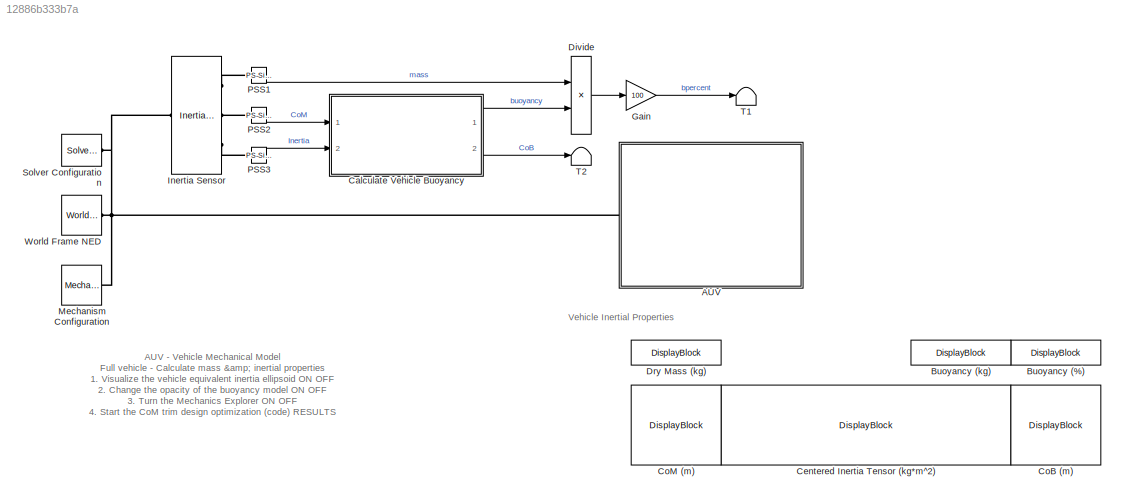
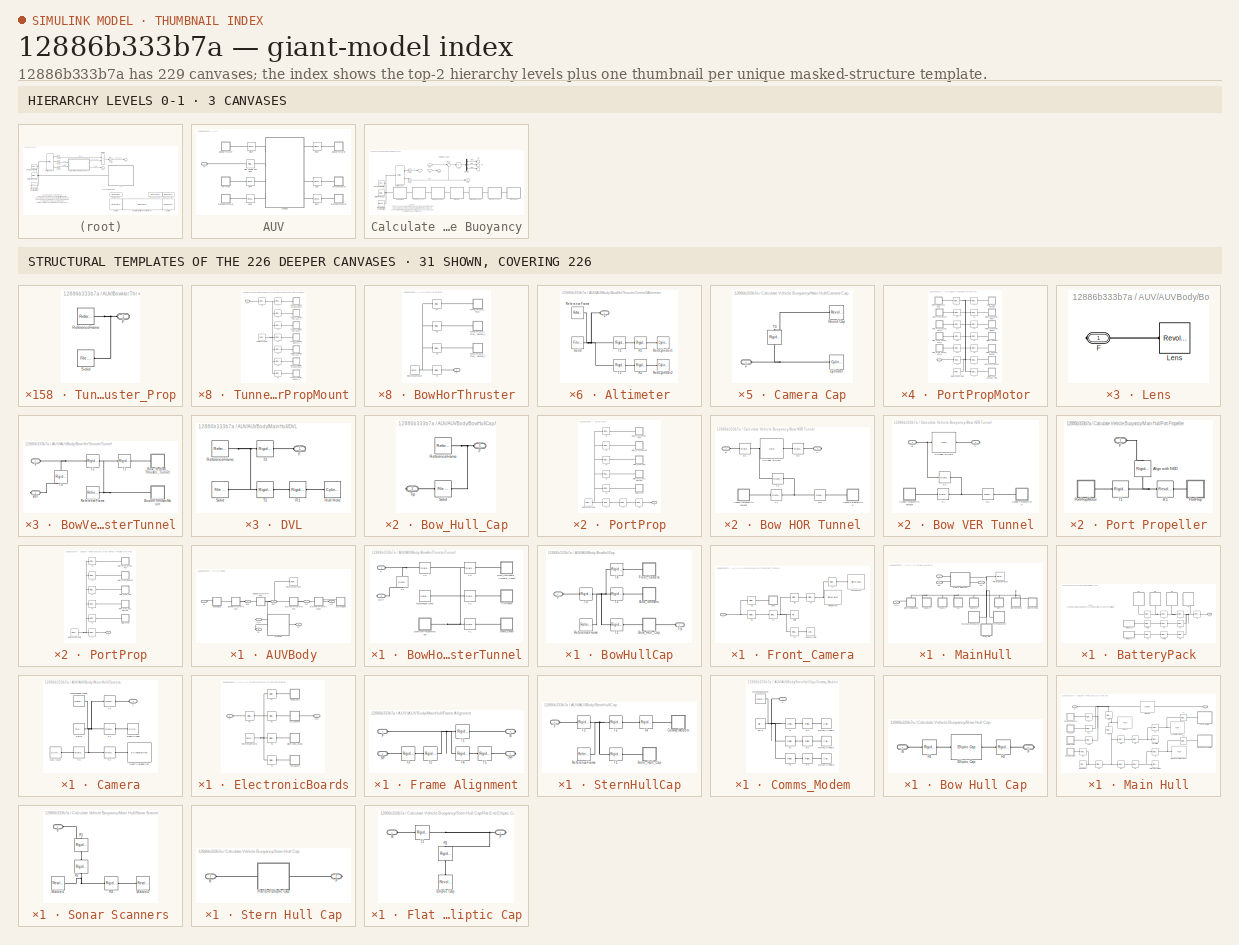
[diagram: thumbnail index - top-2 hierarchy levels (3 canvases) + 31 structural-template representatives of the remaining 226 canvases]
MODEL slx_12886b333b7a
KIND model
CONFIG AbsTol = auto
CONFIG EnableMultiTasking = on
CONFIG FixedStep = auto
CONFIG MaxStep = auto
CONFIG MinStep = auto
CONFIG PreLoadFcn = AUV_VehicleParameters;\nxtrim = 0;\nytrim = 0;\nxtrim_mass = 0;\nytrim_mass = 0;
CONFIG RelTol = 1e-5
CONFIG SampleTimeConstraint = Unconstrained
CONFIG Solver = ode23t
CONFIG SolverName = ode23t
CONFIG StartTime = 0.0
CONFIG StopTime = 0.001
WORKSPACE source: external: MATLAB File  (data not in archive)
BLOCK [SubSystem] AUV
  Ports = [0, 0, 0, 0, 0, 1]
  RequestExecContextInheritance = off
BLOCK [SubSystem] AUV/AUVBody
  Ports = [0, 0, 0, 0, 0, 4, 4]
  RequestExecContextInheritance = off
BLOCK [PMIOPort] AUV/AUVBody/BHT
  Side = Left
BLOCK [PMIOPort] AUV/AUVBody/BVT
  Port = 2
  Side = Right
BLOCK [SubSystem] AUV/AUVBody/BowHorThrusterTunnel
  PortSchema = {"entries":[{"content":{"sides":[{"content":{"connectorIds":[]},"type":"ConnectorPlacement.EquallySpacedRectSide","uuid":"4ed08382-faad-44b6-b48b-55aec1852bc8"},{"content":{"connectorIds":["RConn1"],"side":"RIGHT"},"type":"ConnectorPlacement.EquallySpacedRectSide","uuid":"f82da02f-1c57-4ab6-ab88-6cf954e3e010"},{"content":{"connectorIds":["LConn1"],"side":"TOP"},"type":"ConnectorPlacement.EquallySp...<+247ch>
  Ports = [0, 0, 0, 0, 0, 1, 1]
  RequestExecContextInheritance = off
BLOCK [SubSystem] AUV/AUVBody/BowHorThrusterTunnel/Altimeter
  Ports = [0, 0, 0, 0, 0, 1]
  RequestExecContextInheritance = off
BLOCK [PMIOPort] AUV/AUVBody/BowHorThrusterTunnel/Altimeter/F
  Side = Left
BLOCK [Reference] AUV/AUVBody/BowHorThrusterTunnel/Altimeter/R1  REF=sm_lib/Frames and
Transforms/Rigid
Transform
  Ports = [0, 0, 0, 0, 0, 1, 1]
  SourceBlock = sm_lib/Frames and\nTransforms/Rigid\nTransform
  SourceProductBaseCode = MS
  SourceType = Rigid\nTransform
BLOCK [Reference] AUV/AUVBody/BowHorThrusterTunnel/Altimeter/R2  REF=sm_lib/Frames and
Transforms/Rigid
Transform
  Ports = [0, 0, 0, 0, 0, 1, 1]
  SourceBlock = sm_lib/Frames and\nTransforms/Rigid\nTransform
  SourceProductBaseCode = MS
  SourceType = Rigid\nTransform
BLOCK [Reference] AUV/AUVBody/BowHorThrusterTunnel/Altimeter/RedCylinder1  REF=sm_lib/Body Elements/Cylindrical Solid
  Ports = [0, 0, 0, 0, 0, 0, 1]
  SourceBlock = sm_lib/Body Elements/Cylindrical Solid
  SourceProductBaseCode = MS
  SourceType = Cylindrical Solid
BLOCK [Reference] AUV/AUVBody/BowHorThrusterTunnel/Altimeter/RedCylinder2  REF=sm_lib/Body Elements/Cylindrical Solid
  Ports = [0, 0, 0, 0, 0, 0, 1]
  SourceBlock = sm_lib/Body Elements/Cylindrical Solid
  SourceProductBaseCode = MS
  SourceType = Cylindrical Solid
BLOCK [Reference] AUV/AUVBody/BowHorThrusterTunnel/Altimeter/ReferenceFrame  REF=sm_lib/Frames and
Transforms/Reference
Frame
  Ports = [0, 0, 0, 0, 0, 0, 1]
  SourceBlock = sm_lib/Frames and\nTransforms/Reference\nFrame
  SourceProductBaseCode = MS
  SourceType = Reference\nFrame
BLOCK [Reference] AUV/AUVBody/BowHorThrusterTunnel/Altimeter/Solid  REF=sm_lib/Body Elements/File Solid
  Ports = [0, 0, 0, 0, 0, 0, 1]
  SourceBlock = sm_lib/Body Elements/File Solid
  SourceProductBaseCode = MS
  SourceType = File Solid
BLOCK [Reference] AUV/AUVBody/BowHorThrusterTunnel/Altimeter/T1  REF=sm_lib/Frames and
Transforms/Rigid
Transform
  Ports = [0, 0, 0, 0, 0, 1, 1]
  SourceBlock = sm_lib/Frames and\nTransforms/Rigid\nTransform
  SourceProductBaseCode = MS
  SourceType = Rigid\nTransform
BLOCK [Reference] AUV/AUVBody/BowHorThrusterTunnel/Altimeter/T2  REF=sm_lib/Frames and
Transforms/Rigid
Transform
  Ports = [0, 0, 0, 0, 0, 1, 1]
  SourceBlock = sm_lib/Frames and\nTransforms/Rigid\nTransform
  SourceProductBaseCode = MS
  SourceType = Rigid\nTransform
BLOCK [PMIOPort] AUV/AUVBody/BowHorThrusterTunnel/BHT
  Port = 2
  Side = Right
BLOCK [SubSystem] AUV/AUVBody/BowHorThrusterTunnel/BowHorThrusterMount
  Ports = [0, 0, 0, 0, 0, 0, 1]
  RequestExecContextInheritance = off
BLOCK [PMIOPort] AUV/AUVBody/BowHorThrusterTunnel/BowHorThrusterMount/F
  Side = Right
BLOCK [Reference] AUV/AUVBody/BowHorThrusterTunnel/BowHorThrusterMount/ReferenceFrame  REF=sm_lib/Frames and
Transforms/Reference
Frame
  Ports = [0, 0, 0, 0, 0, 0, 1]
  SourceBlock = sm_lib/Frames and\nTransforms/Reference\nFrame
  SourceProductBaseCode = MS
  SourceType = Reference\nFrame
BLOCK [Reference] AUV/AUVBody/BowHorThrusterTunnel/BowHorThrusterMount/T1  REF=sm_lib/Frames and
Transforms/Rigid
Transform
  Ports = [0, 0, 0, 0, 0, 1, 1]
  SourceBlock = sm_lib/Frames and\nTransforms/Rigid\nTransform
  SourceProductBaseCode = MS
  SourceType = Rigid\nTransform
BLOCK [Reference] AUV/AUVBody/BowHorThrusterTunnel/BowHorThrusterMount/T2  REF=sm_lib/Frames and
Transforms/Rigid
Transform
  Ports = [0, 0, 0, 0, 0, 1, 1]
  SourceBlock = sm_lib/Frames and\nTransforms/Rigid\nTransform
  SourceProductBaseCode = MS
  SourceType = Rigid\nTransform
BLOCK [Reference] AUV/AUVBody/BowHorThrusterTunnel/BowHorThrusterMount/T3  REF=sm_lib/Frames and
Transforms/Rigid
Transform
  Ports = [0, 0, 0, 0, 0, 1, 1]
  SourceBlock = sm_lib/Frames and\nTransforms/Rigid\nTransform
  SourceProductBaseCode = MS
  SourceType = Rigid\nTransform
BLOCK [Reference] AUV/AUVBody/BowHorThrusterTunnel/BowHorThrusterMount/T4  REF=sm_lib/Frames and
Transforms/Rigid
Transform
  Ports = [0, 0, 0, 0, 0, 1, 1]
  SourceBlock = sm_lib/Frames and\nTransforms/Rigid\nTransform
  SourceProductBaseCode = MS
  SourceType = Rigid\nTransform
BLOCK [Reference] AUV/AUVBody/BowHorThrusterTunnel/BowHorThrusterMount/T5  REF=sm_lib/Frames and
Transforms/Rigid
Transform
  Ports = [0, 0, 0, 0, 0, 1, 1]
  SourceBlock = sm_lib/Frames and\nTransforms/Rigid\nTransform
  SourceProductBaseCode = MS
  SourceType = Rigid\nTransform
BLOCK [Reference] AUV/AUVBody/BowHorThrusterTunnel/BowHorThrusterMount/T6  REF=sm_lib/Frames and
Transforms/Rigid
Transform
  Ports = [0, 0, 0, 0, 0, 1, 1]
  SourceBlock = sm_lib/Frames and\nTransforms/Rigid\nTransform
  SourceProductBaseCode = MS
  SourceType = Rigid\nTransform
BLOCK [Reference] AUV/AUVBody/BowHorThrusterTunnel/BowHorThrusterMount/T7  REF=sm_lib/Frames and
Transforms/Rigid
Transform
  Ports = [0, 0, 0, 0, 0, 1, 1]
  SourceBlock = sm_lib/Frames and\nTransforms/Rigid\nTransform
  SourceProductBaseCode = MS
  SourceType = Rigid\nTransform
BLOCK [Reference] AUV/AUVBody/BowHorThrusterTunnel/BowHorThrusterMount/T8  REF=sm_lib/Frames and
Transforms/Rigid
Transform
  Ports = [0, 0, 0, 0, 0, 1, 1]
  SourceBlock = sm_lib/Frames and\nTransforms/Rigid\nTransform
  SourceProductBaseCode = MS
  SourceType = Rigid\nTransform
BLOCK [SubSystem] AUV/AUVBody/BowHorThrusterTunnel/BowHorThrusterMount/Tunnel_Thruster_Prop_Hub_1
  Ports = [0, 0, 0, 0, 0, 1]
  RequestExecContextInheritance = off
BLOCK [PMIOPort] AUV/AUVBody/BowHorThrusterTunnel/BowHorThrusterMount/Tunnel_Thruster_Prop_Hub_1/F
  Side = Left
BLOCK [Reference] AUV/AUVBody/BowHorThrusterTunnel/BowHorThrusterMount/Tunnel_Thruster_Prop_Hub_1/ReferenceFrame  REF=sm_lib/Frames and
Transforms/Reference
Frame
  Ports = [0, 0, 0, 0, 0, 0, 1]
  SourceBlock = sm_lib/Frames and\nTransforms/Reference\nFrame
  SourceProductBaseCode = MS
  SourceType = Reference\nFrame
BLOCK [Reference] AUV/AUVBody/BowHorThrusterTunnel/BowHorThrusterMount/Tunnel_Thruster_Prop_Hub_1/Solid  REF=sm_lib/Body Elements/File Solid
  Ports = [0, 0, 0, 0, 0, 0, 1]
  SourceBlock = sm_lib/Body Elements/File Solid
  SourceProductBaseCode = MS
  SourceType = File Solid
BLOCK [SubSystem] AUV/AUVBody/BowHorThrusterTunnel/BowHorThrusterMount/Tunnel_Thruster_Prop_Hub_2
  Ports = [0, 0, 0, 0, 0, 1]
  RequestExecContextInheritance = off
BLOCK [PMIOPort] AUV/AUVBody/BowHorThrusterTunnel/BowHorThrusterMount/Tunnel_Thruster_Prop_Hub_2/F
  Side = Left
BLOCK [Reference] AUV/AUVBody/BowHorThrusterTunnel/BowHorThrusterMount/Tunnel_Thruster_Prop_Hub_2/ReferenceFrame  REF=sm_lib/Frames and
Transforms/Reference
Frame
  Ports = [0, 0, 0, 0, 0, 0, 1]
  SourceBlock = sm_lib/Frames and\nTransforms/Reference\nFrame
  SourceProductBaseCode = MS
  SourceType = Reference\nFrame
BLOCK [Reference] AUV/AUVBody/BowHorThrusterTunnel/BowHorThrusterMount/Tunnel_Thruster_Prop_Hub_2/Solid  REF=sm_lib/Body Elements/File Solid
  Ports = [0, 0, 0, 0, 0, 0, 1]
  SourceBlock = sm_lib/Body Elements/File Solid
  SourceProductBaseCode = MS
  SourceType = File Solid
BLOCK [SubSystem] AUV/AUVBody/BowHorThrusterTunnel/BowHorThrusterMount/Tunnel_Thruster_Prop_Mount
  Ports = [0, 0, 0, 0, 0, 1]
  RequestExecContextInheritance = off
BLOCK [PMIOPort] AUV/AUVBody/BowHorThrusterTunnel/BowHorThrusterMount/Tunnel_Thruster_Prop_Mount/F
  Side = Left
BLOCK [Reference] AUV/AUVBody/BowHorThrusterTunnel/BowHorThrusterMount/Tunnel_Thruster_Prop_Mount/ReferenceFrame  REF=sm_lib/Frames and
Transforms/Reference
Frame
  Ports = [0, 0, 0, 0, 0, 0, 1]
  SourceBlock = sm_lib/Frames and\nTransforms/Reference\nFrame
  SourceProductBaseCode = MS
  SourceType = Reference\nFrame
BLOCK [Reference] AUV/AUVBody/BowHorThrusterTunnel/BowHorThrusterMount/Tunnel_Thruster_Prop_Mount/Solid  REF=sm_lib/Body Elements/File Solid
  Ports = [0, 0, 0, 0, 0, 0, 1]
  SourceBlock = sm_lib/Body Elements/File Solid
  SourceProductBaseCode = MS
  SourceType = File Solid
BLOCK [SubSystem] AUV/AUVBody/BowHorThrusterTunnel/BowHorThrusterMount/Tunnel_Thruster_Shoulder_Bolt_1
  Ports = [0, 0, 0, 0, 0, 1]
  RequestExecContextInheritance = off
BLOCK [PMIOPort] AUV/AUVBody/BowHorThrusterTunnel/BowHorThrusterMount/Tunnel_Thruster_Shoulder_Bolt_1/F
  Side = Left
BLOCK [Reference] AUV/AUVBody/BowHorThrusterTunnel/BowHorThrusterMount/Tunnel_Thruster_Shoulder_Bolt_1/ReferenceFrame  REF=sm_lib/Frames and
Transforms/Reference
Frame
  Ports = [0, 0, 0, 0, 0, 0, 1]
  SourceBlock = sm_lib/Frames and\nTransforms/Reference\nFrame
  SourceProductBaseCode = MS
  SourceType = Reference\nFrame
BLOCK [Reference] AUV/AUVBody/BowHorThrusterTunnel/BowHorThrusterMount/Tunnel_Thruster_Shoulder_Bolt_1/Solid  REF=sm_lib/Body Elements/File Solid
  Ports = [0, 0, 0, 0, 0, 0, 1]
  SourceBlock = sm_lib/Body Elements/File Solid
  SourceProductBaseCode = MS
  SourceType = File Solid
BLOCK [SubSystem] AUV/AUVBody/BowHorThrusterTunnel/BowHorThrusterMount/Tunnel_Thruster_Shoulder_Bolt_2
  Ports = [0, 0, 0, 0, 0, 1]
  RequestExecContextInheritance = off
BLOCK [PMIOPort] AUV/AUVBody/BowHorThrusterTunnel/BowHorThrusterMount/Tunnel_Thruster_Shoulder_Bolt_2/F
  Side = Left
BLOCK [Reference] AUV/AUVBody/BowHorThrusterTunnel/BowHorThrusterMount/Tunnel_Thruster_Shoulder_Bolt_2/ReferenceFrame  REF=sm_lib/Frames and
Transforms/Reference
Frame
  Ports = [0, 0, 0, 0, 0, 0, 1]
  SourceBlock = sm_lib/Frames and\nTransforms/Reference\nFrame
  SourceProductBaseCode = MS
  SourceType = Reference\nFrame
BLOCK [Reference] AUV/AUVBody/BowHorThrusterTunnel/BowHorThrusterMount/Tunnel_Thruster_Shoulder_Bolt_2/Solid  REF=sm_lib/Body Elements/File Solid
  Ports = [0, 0, 0, 0, 0, 0, 1]
  SourceBlock = sm_lib/Body Elements/File Solid
  SourceProductBaseCode = MS
  SourceType = File Solid
BLOCK [SubSystem] AUV/AUVBody/BowHorThrusterTunnel/BowHorThrusterMount/Tunnel_Thruster_Washer_1
  Ports = [0, 0, 0, 0, 0, 1]
  RequestExecContextInheritance = off
BLOCK [PMIOPort] AUV/AUVBody/BowHorThrusterTunnel/BowHorThrusterMount/Tunnel_Thruster_Washer_1/F
  Side = Left
BLOCK [Reference] AUV/AUVBody/BowHorThrusterTunnel/BowHorThrusterMount/Tunnel_Thruster_Washer_1/ReferenceFrame  REF=sm_lib/Frames and
Transforms/Reference
Frame
  Ports = [0, 0, 0, 0, 0, 0, 1]
  SourceBlock = sm_lib/Frames and\nTransforms/Reference\nFrame
  SourceProductBaseCode = MS
  SourceType = Reference\nFrame
BLOCK [Reference] AUV/AUVBody/BowHorThrusterTunnel/BowHorThrusterMount/Tunnel_Thruster_Washer_1/Solid  REF=sm_lib/Body Elements/File Solid
  Ports = [0, 0, 0, 0, 0, 0, 1]
  SourceBlock = sm_lib/Body Elements/File Solid
  SourceProductBaseCode = MS
  SourceType = File Solid
BLOCK [SubSystem] AUV/AUVBody/BowHorThrusterTunnel/BowHorThrusterMount/Tunnel_Thruster_Washer_2
  Ports = [0, 0, 0, 0, 0, 1]
  RequestExecContextInheritance = off
BLOCK [PMIOPort] AUV/AUVBody/BowHorThrusterTunnel/BowHorThrusterMount/Tunnel_Thruster_Washer_2/F
  Side = Left
BLOCK [Reference] AUV/AUVBody/BowHorThrusterTunnel/BowHorThrusterMount/Tunnel_Thruster_Washer_2/ReferenceFrame  REF=sm_lib/Frames and
Transforms/Reference
Frame
  Ports = [0, 0, 0, 0, 0, 0, 1]
  SourceBlock = sm_lib/Frames and\nTransforms/Reference\nFrame
  SourceProductBaseCode = MS
  SourceType = Reference\nFrame
BLOCK [Reference] AUV/AUVBody/BowHorThrusterTunnel/BowHorThrusterMount/Tunnel_Thruster_Washer_2/Solid  REF=sm_lib/Body Elements/File Solid
  Ports = [0, 0, 0, 0, 0, 0, 1]
  SourceBlock = sm_lib/Body Elements/File Solid
  SourceProductBaseCode = MS
  SourceType = File Solid
BLOCK [SubSystem] AUV/AUVBody/BowHorThrusterTunnel/Bow_Horizontal_Thruster_Tunnel
  Ports = [0, 0, 0, 0, 0, 1]
  RequestExecContextInheritance = off
BLOCK [PMIOPort] AUV/AUVBody/BowHorThrusterTunnel/Bow_Horizontal_Thruster_Tunnel/F
  Side = Left
BLOCK [Reference] AUV/AUVBody/BowHorThrusterTunnel/Bow_Horizontal_Thruster_Tunnel/ReferenceFrame  REF=sm_lib/Frames and
Transforms/Reference
Frame
  Ports = [0, 0, 0, 0, 0, 0, 1]
  SourceBlock = sm_lib/Frames and\nTransforms/Reference\nFrame
  SourceProductBaseCode = MS
  SourceType = Reference\nFrame
BLOCK [Reference] AUV/AUVBody/BowHorThrusterTunnel/Bow_Horizontal_Thruster_Tunnel/Solid  REF=sm_lib/Body Elements/File Solid
  Ports = [0, 0, 0, 0, 0, 0, 1]
  SourceBlock = sm_lib/Body Elements/File Solid
  SourceProductBaseCode = MS
  SourceType = File Solid
BLOCK [SubSystem] AUV/AUVBody/BowHorThrusterTunnel/Depth_Sensor
  Ports = [0, 0, 0, 0, 0, 1]
  RequestExecContextInheritance = off
BLOCK [PMIOPort] AUV/AUVBody/BowHorThrusterTunnel/Depth_Sensor/F
  Side = Left
BLOCK [Reference] AUV/AUVBody/BowHorThrusterTunnel/Depth_Sensor/R1  REF=sm_lib/Frames and
Transforms/Rigid
Transform
  Ports = [0, 0, 0, 0, 0, 1, 1]
  SourceBlock = sm_lib/Frames and\nTransforms/Rigid\nTransform
  SourceProductBaseCode = MS
  SourceType = Rigid\nTransform
BLOCK [Reference] AUV/AUVBody/BowHorThrusterTunnel/Depth_Sensor/R2  REF=sm_lib/Frames and
Transforms/Rigid
Transform
  Ports = [0, 0, 0, 0, 0, 1, 1]
  SourceBlock = sm_lib/Frames and\nTransforms/Rigid\nTransform
  SourceProductBaseCode = MS
  SourceType = Rigid\nTransform
BLOCK [Reference] AUV/AUVBody/BowHorThrusterTunnel/Depth_Sensor/ReferenceFrame  REF=sm_lib/Frames and
Transforms/Reference
Frame
  Ports = [0, 0, 0, 0, 0, 0, 1]
  SourceBlock = sm_lib/Frames and\nTransforms/Reference\nFrame
  SourceProductBaseCode = MS
  SourceType = Reference\nFrame
BLOCK [Reference] AUV/AUVBody/BowHorThrusterTunnel/Depth_Sensor/Solid  REF=sm_lib/Body Elements/File Solid
  Ports = [0, 0, 0, 0, 0, 0, 1]
  SourceBlock = sm_lib/Body Elements/File Solid
  SourceProductBaseCode = MS
  SourceType = File Solid
BLOCK [Reference] AUV/AUVBody/BowHorThrusterTunnel/Depth_Sensor/T1  REF=sm_lib/Frames and
Transforms/Rigid
Transform
  Ports = [0, 0, 0, 0, 0, 1, 1]
  SourceBlock = sm_lib/Frames and\nTransforms/Rigid\nTransform
  SourceProductBaseCode = MS
  SourceType = Rigid\nTransform
BLOCK [Reference] AUV/AUVBody/BowHorThrusterTunnel/Depth_Sensor/T2  REF=sm_lib/Frames and
Transforms/Rigid
Transform
  Ports = [0, 0, 0, 0, 0, 1, 1]
  SourceBlock = sm_lib/Frames and\nTransforms/Rigid\nTransform
  SourceProductBaseCode = MS
  SourceType = Rigid\nTransform
BLOCK [Reference] AUV/AUVBody/BowHorThrusterTunnel/Depth_Sensor/WhiteCylinder1  REF=sm_lib/Body Elements/Cylindrical Solid
  Ports = [0, 0, 0, 0, 0, 0, 1]
  SourceBlock = sm_lib/Body Elements/Cylindrical Solid
  SourceProductBaseCode = MS
  SourceType = Cylindrical Solid
BLOCK [Reference] AUV/AUVBody/BowHorThrusterTunnel/Depth_Sensor/WhiteCylinder2  REF=sm_lib/Body Elements/Cylindrical Solid
  Ports = [0, 0, 0, 0, 0, 0, 1]
  SourceBlock = sm_lib/Body Elements/Cylindrical Solid
  SourceProductBaseCode = MS
  SourceType = Cylindrical Solid
BLOCK [PMIOPort] AUV/AUVBody/BowHorThrusterTunnel/F
  Side = Left
BLOCK [Reference] AUV/AUVBody/BowHorThrusterTunnel/ReferenceFrame  REF=sm_lib/Frames and
Transforms/Reference
Frame
  Ports = [0, 0, 0, 0, 0, 0, 1]
  SourceBlock = sm_lib/Frames and\nTransforms/Reference\nFrame
  SourceProductBaseCode = MS
  SourceType = Reference\nFrame
BLOCK [Reference] AUV/AUVBody/BowHorThrusterTunnel/T1  REF=sm_lib/Frames and
Transforms/Rigid
Transform
  Ports = [0, 0, 0, 0, 0, 1, 1]
  SourceBlock = sm_lib/Frames and\nTransforms/Rigid\nTransform
  SourceProductBaseCode = MS
  SourceType = Rigid\nTransform
BLOCK [Reference] AUV/AUVBody/BowHorThrusterTunnel/T2  REF=sm_lib/Frames and
Transforms/Rigid
Transform
  Ports = [0, 0, 0, 0, 0, 1, 1]
  SourceBlock = sm_lib/Frames and\nTransforms/Rigid\nTransform
  SourceProductBaseCode = MS
  SourceType = Rigid\nTransform
BLOCK [Reference] AUV/AUVBody/BowHorThrusterTunnel/T3  REF=sm_lib/Frames and
Transforms/Rigid
Transform
  Ports = [0, 0, 0, 0, 0, 1, 1]
  SourceBlock = sm_lib/Frames and\nTransforms/Rigid\nTransform
  SourceProductBaseCode = MS
  SourceType = Rigid\nTransform
BLOCK [Reference] AUV/AUVBody/BowHorThrusterTunnel/T4  REF=sm_lib/Frames and
Transforms/Rigid
Transform
  Ports = [0, 0, 0, 0, 0, 1, 1]
  SourceBlock = sm_lib/Frames and\nTransforms/Rigid\nTransform
  SourceProductBaseCode = MS
  SourceType = Rigid\nTransform
BLOCK [Reference] AUV/AUVBody/BowHorThrusterTunnel/T5  REF=sm_lib/Frames and
Transforms/Rigid
Transform
  NameLocation = left
  Ports = [0, 0, 0, 0, 0, 1, 1]
  SourceBlock = sm_lib/Frames and\nTransforms/Rigid\nTransform
  SourceProductBaseCode = MS
  SourceType = Rigid\nTransform
BLOCK [SubSystem] AUV/AUVBody/BowHullCap
  PortSchema = {"entries":[{"content":{"sides":[{"content":{"connectorIds":["LConn1"]},"type":"ConnectorPlacement.EquallySpacedRectSide","uuid":"ee174d83-7ec9-4f78-977a-5ac618f84910"},{"content":{"connectorIds":[],"side":"RIGHT"},"type":"ConnectorPlacement.EquallySpacedRectSide","uuid":"b1f8772f-a994-4bc2-984b-3dde78400d8f"},{"content":{"connectorIds":["LConn2"],"side":"TOP"},"type":"ConnectorPlacement.EquallySp...<+247ch>
  Ports = [0, 0, 0, 0, 0, 2]
  RequestExecContextInheritance = off
BLOCK [SubSystem] AUV/AUVBody/BowHullCap/Bow_Hull_Cap
  Ports = [0, 0, 0, 0, 0, 1, 1]
  RequestExecContextInheritance = off
BLOCK [PMIOPort] AUV/AUVBody/BowHullCap/Bow_Hull_Cap/F
  Side = Left
BLOCK [Reference] AUV/AUVBody/BowHullCap/Bow_Hull_Cap/ReferenceFrame  REF=sm_lib/Frames and
Transforms/Reference
Frame
  Ports = [0, 0, 0, 0, 0, 0, 1]
  SourceBlock = sm_lib/Frames and\nTransforms/Reference\nFrame
  SourceProductBaseCode = MS
  SourceType = Reference\nFrame
BLOCK [Reference] AUV/AUVBody/BowHullCap/Bow_Hull_Cap/Solid  REF=sm_lib/Body Elements/File Solid
  Ports = [0, 0, 0, 0, 0, 1, 1]
  SourceBlock = sm_lib/Body Elements/File Solid
  SourceProductBaseCode = MS
  SourceType = File Solid
BLOCK [PMIOPort] AUV/AUVBody/BowHullCap/Bow_Hull_Cap/Tip
  Port = 2
  Side = Right
BLOCK [SubSystem] AUV/AUVBody/BowHullCap/Bow_Sensors
  Ports = [0, 0, 0, 0, 0, 1]
  RequestExecContextInheritance = off
BLOCK [PMIOPort] AUV/AUVBody/BowHullCap/Bow_Sensors/F
  Side = Left
BLOCK [Reference] AUV/AUVBody/BowHullCap/Bow_Sensors/ReferenceFrame  REF=sm_lib/Frames and
Transforms/Reference
Frame
  Ports = [0, 0, 0, 0, 0, 0, 1]
  SourceBlock = sm_lib/Frames and\nTransforms/Reference\nFrame
  SourceProductBaseCode = MS
  SourceType = Reference\nFrame
BLOCK [Reference] AUV/AUVBody/BowHullCap/Bow_Sensors/Solid  REF=sm_lib/Body Elements/File Solid
  Ports = [0, 0, 0, 0, 0, 0, 1]
  SourceBlock = sm_lib/Body Elements/File Solid
  SourceProductBaseCode = MS
  SourceType = File Solid
BLOCK [PMIOPort] AUV/AUVBody/BowHullCap/F
  Port = 2
  Side = Left
BLOCK [SubSystem] AUV/AUVBody/BowHullCap/Front_Camera
  Ports = [0, 0, 0, 0, 0, 1]
  RequestExecContextInheritance = off
BLOCK [Reference] AUV/AUVBody/BowHullCap/Front_Camera/Camera Hole  REF=sm_lib/Body Elements/Cylindrical Solid
  Ports = [0, 0, 0, 0, 0, 0, 1]
  SourceBlock = sm_lib/Body Elements/Cylindrical Solid
  SourceProductBaseCode = MS
  SourceType = Cylindrical Solid
BLOCK [PMIOPort] AUV/AUVBody/BowHullCap/Front_Camera/F
  Side = Left
BLOCK [Reference] AUV/AUVBody/BowHullCap/Front_Camera/GrayButton  REF=AUVCustomPrimitives_Lib/Filleted Brick
  Ports = [0, 0, 0, 0, 0, 0, 1]
  SourceBlock = AUVCustomPrimitives_Lib/Filleted Brick
  SourceType = Filleted Brick
BLOCK [SubSystem] AUV/AUVBody/BowHullCap/Front_Camera/Lens
  Ports = [0, 0, 0, 0, 0, 0, 1]
  RequestExecContextInheritance = off
BLOCK [PMIOPort] AUV/AUVBody/BowHullCap/Front_Camera/Lens/F
  Side = Right
BLOCK [Reference] AUV/AUVBody/BowHullCap/Front_Camera/Lens/Lens  REF=sm_lib/Body Elements/Revolved Solid
  Ports = [0, 0, 0, 0, 0, 0, 1]
  SourceBlock = sm_lib/Body Elements/Revolved Solid
  SourceProductBaseCode = MS
  SourceType = Revolved Solid
BLOCK [Reference] AUV/AUVBody/BowHullCap/Front_Camera/R1  REF=sm_lib/Frames and
Transforms/Rigid
Transform
  Ports = [0, 0, 0, 0, 0, 1, 1]
  SourceBlock = sm_lib/Frames and\nTransforms/Rigid\nTransform
  SourceProductBaseCode = MS
  SourceType = Rigid\nTransform
BLOCK [Reference] AUV/AUVBody/BowHullCap/Front_Camera/R2  REF=sm_lib/Frames and
Transforms/Rigid
Transform
  Ports = [0, 0, 0, 0, 0, 1, 1]
  SourceBlock = sm_lib/Frames and\nTransforms/Rigid\nTransform
  SourceProductBaseCode = MS
  SourceType = Rigid\nTransform
BLOCK [Reference] AUV/AUVBody/BowHullCap/Front_Camera/RedButton  REF=AUVCustomPrimitives_Lib/Filleted Brick
  Ports = [0, 0, 0, 0, 0, 0, 1]
  SourceBlock = AUVCustomPrimitives_Lib/Filleted Brick
  SourceType = Filleted Brick
BLOCK [Reference] AUV/AUVBody/BowHullCap/Front_Camera/Solid  REF=sm_lib/Body Elements/File Solid
  Ports = [0, 0, 0, 0, 0, 0, 1]
  SourceBlock = sm_lib/Body Elements/File Solid
  SourceProductBaseCode = MS
  SourceType = File Solid
BLOCK [Reference] AUV/AUVBody/BowHullCap/Front_Camera/T1  REF=sm_lib/Frames and
Transforms/Rigid
Transform
  Ports = [0, 0, 0, 0, 0, 1, 1]
  SourceBlock = sm_lib/Frames and\nTransforms/Rigid\nTransform
  SourceProductBaseCode = MS
  SourceType = Rigid\nTransform
BLOCK [Reference] AUV/AUVBody/BowHullCap/Front_Camera/T2  REF=sm_lib/Frames and
Transforms/Rigid
Transform
  Ports = [0, 0, 0, 0, 0, 1, 1]
  SourceBlock = sm_lib/Frames and\nTransforms/Rigid\nTransform
  SourceProductBaseCode = MS
  SourceType = Rigid\nTransform
BLOCK [Reference] AUV/AUVBody/BowHullCap/Front_Camera/T3  REF=sm_lib/Frames and
Transforms/Rigid
Transform
  Ports = [0, 0, 0, 0, 0, 1, 1]
  SourceBlock = sm_lib/Frames and\nTransforms/Rigid\nTransform
  SourceProductBaseCode = MS
  SourceType = Rigid\nTransform
BLOCK [Reference] AUV/AUVBody/BowHullCap/Front_Camera/T4  REF=sm_lib/Frames and
Transforms/Rigid
Transform
  Ports = [0, 0, 0, 0, 0, 1, 1]
  SourceBlock = sm_lib/Frames and\nTransforms/Rigid\nTransform
  SourceProductBaseCode = MS
  SourceType = Rigid\nTransform
BLOCK [Reference] AUV/AUVBody/BowHullCap/Front_Camera/T5  REF=sm_lib/Frames and
Transforms/Rigid
Transform
  Ports = [0, 0, 0, 0, 0, 1, 1]
  SourceBlock = sm_lib/Frames and\nTransforms/Rigid\nTransform
  SourceProductBaseCode = MS
  SourceType = Rigid\nTransform
BLOCK [Reference] AUV/AUVBody/BowHullCap/ReferenceFrame  REF=sm_lib/Frames and
Transforms/Reference
Frame
  Ports = [0, 0, 0, 0, 0, 0, 1]
  SourceBlock = sm_lib/Frames and\nTransforms/Reference\nFrame
  SourceProductBaseCode = MS
  SourceType = Reference\nFrame
BLOCK [Reference] AUV/AUVBody/BowHullCap/T1  REF=sm_lib/Frames and
Transforms/Rigid
Transform
  Ports = [0, 0, 0, 0, 0, 1, 1]
  SourceBlock = sm_lib/Frames and\nTransforms/Rigid\nTransform
  SourceProductBaseCode = MS
  SourceType = Rigid\nTransform
BLOCK [Reference] AUV/AUVBody/BowHullCap/T2  REF=sm_lib/Frames and
Transforms/Rigid
Transform
  Ports = [0, 0, 0, 0, 0, 1, 1]
  SourceBlock = sm_lib/Frames and\nTransforms/Rigid\nTransform
  SourceProductBaseCode = MS
  SourceType = Rigid\nTransform
BLOCK [Reference] AUV/AUVBody/BowHullCap/T3  REF=sm_lib/Frames and
Transforms/Rigid
Transform
  Ports = [0, 0, 0, 0, 0, 1, 1]
  SourceBlock = sm_lib/Frames and\nTransforms/Rigid\nTransform
  SourceProductBaseCode = MS
  SourceType = Rigid\nTransform
BLOCK [Reference] AUV/AUVBody/BowHullCap/T4  REF=sm_lib/Frames and
Transforms/Rigid
Transform
  Ports = [0, 0, 0, 0, 0, 1, 1]
  SourceBlock = sm_lib/Frames and\nTransforms/Rigid\nTransform
  SourceProductBaseCode = MS
  SourceType = Rigid\nTransform
BLOCK [PMIOPort] AUV/AUVBody/BowHullCap/Tip
  Side = Left
BLOCK [SubSystem] AUV/AUVBody/BowVerThrusterTunnel
  PortSchema = {"entries":[{"content":{"sides":[{"content":{"connectorIds":[]},"type":"ConnectorPlacement.EquallySpacedRectSide","uuid":"1a213aad-fe79-4629-9576-af927b73c724"},{"content":{"connectorIds":["RConn1"],"side":"RIGHT"},"type":"ConnectorPlacement.EquallySpacedRectSide","uuid":"bc8c7819-b1a4-4404-9606-1fc6a621b846"},{"content":{"connectorIds":["LConn1"],"side":"TOP"},"type":"ConnectorPlacement.EquallySp...<+247ch>  <repeated x3 — deduplicated; at blocks: BowVerThrusterTunnel, SternHorThrusterTunnel, SternVerThrusterTunnel>
  Ports = [0, 0, 0, 0, 0, 1, 1]
  RequestExecContextInheritance = off
BLOCK [PMIOPort] AUV/AUVBody/BowVerThrusterTunnel/BVT
  Port = 2
  Side = Right
BLOCK [SubSystem] AUV/AUVBody/BowVerThrusterTunnel/BowVerThrusterMount
  Ports = [0, 0, 0, 0, 0, 1]
  RequestExecContextInheritance = off
BLOCK [PMIOPort] AUV/AUVBody/BowVerThrusterTunnel/BowVerThrusterMount/F
  Side = Left
BLOCK [Reference] AUV/AUVBody/BowVerThrusterTunnel/BowVerThrusterMount/ReferenceFrame  REF=sm_lib/Frames and
Transforms/Reference
Frame
  Ports = [0, 0, 0, 0, 0, 0, 1]
  SourceBlock = sm_lib/Frames and\nTransforms/Reference\nFrame
  SourceProductBaseCode = MS
  SourceType = Reference\nFrame
BLOCK [Reference] AUV/AUVBody/BowVerThrusterTunnel/BowVerThrusterMount/T1  REF=sm_lib/Frames and
Transforms/Rigid
Transform
  Ports = [0, 0, 0, 0, 0, 1, 1]
  SourceBlock = sm_lib/Frames and\nTransforms/Rigid\nTransform
  SourceProductBaseCode = MS
  SourceType = Rigid\nTransform
BLOCK [Reference] AUV/AUVBody/BowVerThrusterTunnel/BowVerThrusterMount/T2  REF=sm_lib/Frames and
Transforms/Rigid
Transform
  Ports = [0, 0, 0, 0, 0, 1, 1]
  SourceBlock = sm_lib/Frames and\nTransforms/Rigid\nTransform
  SourceProductBaseCode = MS
  SourceType = Rigid\nTransform
BLOCK [Reference] AUV/AUVBody/BowVerThrusterTunnel/BowVerThrusterMount/T3  REF=sm_lib/Frames and
Transforms/Rigid
Transform
  Ports = [0, 0, 0, 0, 0, 1, 1]
  SourceBlock = sm_lib/Frames and\nTransforms/Rigid\nTransform
  SourceProductBaseCode = MS
  SourceType = Rigid\nTransform
BLOCK [Reference] AUV/AUVBody/BowVerThrusterTunnel/BowVerThrusterMount/T4  REF=sm_lib/Frames and
Transforms/Rigid
Transform
  Ports = [0, 0, 0, 0, 0, 1, 1]
  SourceBlock = sm_lib/Frames and\nTransforms/Rigid\nTransform
  SourceProductBaseCode = MS
  SourceType = Rigid\nTransform
BLOCK [Reference] AUV/AUVBody/BowVerThrusterTunnel/BowVerThrusterMount/T5  REF=sm_lib/Frames and
Transforms/Rigid
Transform
  Ports = [0, 0, 0, 0, 0, 1, 1]
  SourceBlock = sm_lib/Frames and\nTransforms/Rigid\nTransform
  SourceProductBaseCode = MS
  SourceType = Rigid\nTransform
BLOCK [Reference] AUV/AUVBody/BowVerThrusterTunnel/BowVerThrusterMount/T6  REF=sm_lib/Frames and
Transforms/Rigid
Transform
  Ports = [0, 0, 0, 0, 0, 1, 1]
  SourceBlock = sm_lib/Frames and\nTransforms/Rigid\nTransform
  SourceProductBaseCode = MS
  SourceType = Rigid\nTransform
BLOCK [Reference] AUV/AUVBody/BowVerThrusterTunnel/BowVerThrusterMount/T7  REF=sm_lib/Frames and
Transforms/Rigid
Transform
  Ports = [0, 0, 0, 0, 0, 1, 1]
  SourceBlock = sm_lib/Frames and\nTransforms/Rigid\nTransform
  SourceProductBaseCode = MS
  SourceType = Rigid\nTransform
BLOCK [Reference] AUV/AUVBody/BowVerThrusterTunnel/BowVerThrusterMount/T8  REF=sm_lib/Frames and
Transforms/Rigid
Transform
  Ports = [0, 0, 0, 0, 0, 1, 1]
  SourceBlock = sm_lib/Frames and\nTransforms/Rigid\nTransform
  SourceProductBaseCode = MS
  SourceType = Rigid\nTransform
BLOCK [SubSystem] AUV/AUVBody/BowVerThrusterTunnel/BowVerThrusterMount/Tunnel_Thruster_Prop_Hub_1
  Ports = [0, 0, 0, 0, 0, 1]
  RequestExecContextInheritance = off
BLOCK [PMIOPort] AUV/AUVBody/BowVerThrusterTunnel/BowVerThrusterMount/Tunnel_Thruster_Prop_Hub_1/F
  Side = Left
BLOCK [Reference] AUV/AUVBody/BowVerThrusterTunnel/BowVerThrusterMount/Tunnel_Thruster_Prop_Hub_1/ReferenceFrame  REF=sm_lib/Frames and
Transforms/Reference
Frame
  Ports = [0, 0, 0, 0, 0, 0, 1]
  SourceBlock = sm_lib/Frames and\nTransforms/Reference\nFrame
  SourceProductBaseCode = MS
  SourceType = Reference\nFrame
BLOCK [Reference] AUV/AUVBody/BowVerThrusterTunnel/BowVerThrusterMount/Tunnel_Thruster_Prop_Hub_1/Solid  REF=sm_lib/Body Elements/File Solid
  Ports = [0, 0, 0, 0, 0, 0, 1]
  SourceBlock = sm_lib/Body Elements/File Solid
  SourceProductBaseCode = MS
  SourceType = File Solid
BLOCK [SubSystem] AUV/AUVBody/BowVerThrusterTunnel/BowVerThrusterMount/Tunnel_Thruster_Prop_Hub_2
  Ports = [0, 0, 0, 0, 0, 1]
  RequestExecContextInheritance = off
BLOCK [PMIOPort] AUV/AUVBody/BowVerThrusterTunnel/BowVerThrusterMount/Tunnel_Thruster_Prop_Hub_2/F
  Side = Left
BLOCK [Reference] AUV/AUVBody/BowVerThrusterTunnel/BowVerThrusterMount/Tunnel_Thruster_Prop_Hub_2/ReferenceFrame  REF=sm_lib/Frames and
Transforms/Reference
Frame
  Ports = [0, 0, 0, 0, 0, 0, 1]
  SourceBlock = sm_lib/Frames and\nTransforms/Reference\nFrame
  SourceProductBaseCode = MS
  SourceType = Reference\nFrame
BLOCK [Reference] AUV/AUVBody/BowVerThrusterTunnel/BowVerThrusterMount/Tunnel_Thruster_Prop_Hub_2/Solid  REF=sm_lib/Body Elements/File Solid
  Ports = [0, 0, 0, 0, 0, 0, 1]
  SourceBlock = sm_lib/Body Elements/File Solid
  SourceProductBaseCode = MS
  SourceType = File Solid
BLOCK [SubSystem] AUV/AUVBody/BowVerThrusterTunnel/BowVerThrusterMount/Tunnel_Thruster_Prop_Mount
  Ports = [0, 0, 0, 0, 0, 1]
  RequestExecContextInheritance = off
BLOCK [PMIOPort] AUV/AUVBody/BowVerThrusterTunnel/BowVerThrusterMount/Tunnel_Thruster_Prop_Mount/F
  Side = Left
BLOCK [Reference] AUV/AUVBody/BowVerThrusterTunnel/BowVerThrusterMount/Tunnel_Thruster_Prop_Mount/ReferenceFrame  REF=sm_lib/Frames and
Transforms/Reference
Frame
  Ports = [0, 0, 0, 0, 0, 0, 1]
  SourceBlock = sm_lib/Frames and\nTransforms/Reference\nFrame
  SourceProductBaseCode = MS
  SourceType = Reference\nFrame
BLOCK [Reference] AUV/AUVBody/BowVerThrusterTunnel/BowVerThrusterMount/Tunnel_Thruster_Prop_Mount/Solid  REF=sm_lib/Body Elements/File Solid
  Ports = [0, 0, 0, 0, 0, 0, 1]
  SourceBlock = sm_lib/Body Elements/File Solid
  SourceProductBaseCode = MS
  SourceType = File Solid
BLOCK [SubSystem] AUV/AUVBody/BowVerThrusterTunnel/BowVerThrusterMount/Tunnel_Thruster_Shoulder_Bolt_1
  Ports = [0, 0, 0, 0, 0, 1]
  RequestExecContextInheritance = off
BLOCK [PMIOPort] AUV/AUVBody/BowVerThrusterTunnel/BowVerThrusterMount/Tunnel_Thruster_Shoulder_Bolt_1/F
  Side = Left
BLOCK [Reference] AUV/AUVBody/BowVerThrusterTunnel/BowVerThrusterMount/Tunnel_Thruster_Shoulder_Bolt_1/ReferenceFrame  REF=sm_lib/Frames and
Transforms/Reference
Frame
  Ports = [0, 0, 0, 0, 0, 0, 1]
  SourceBlock = sm_lib/Frames and\nTransforms/Reference\nFrame
  SourceProductBaseCode = MS
  SourceType = Reference\nFrame
BLOCK [Reference] AUV/AUVBody/BowVerThrusterTunnel/BowVerThrusterMount/Tunnel_Thruster_Shoulder_Bolt_1/Solid  REF=sm_lib/Body Elements/File Solid
  Ports = [0, 0, 0, 0, 0, 0, 1]
  SourceBlock = sm_lib/Body Elements/File Solid
  SourceProductBaseCode = MS
  SourceType = File Solid
BLOCK [SubSystem] AUV/AUVBody/BowVerThrusterTunnel/BowVerThrusterMount/Tunnel_Thruster_Shoulder_Bolt_2
  Ports = [0, 0, 0, 0, 0, 1]
  RequestExecContextInheritance = off
BLOCK [PMIOPort] AUV/AUVBody/BowVerThrusterTunnel/BowVerThrusterMount/Tunnel_Thruster_Shoulder_Bolt_2/F
  Side = Left
BLOCK [Reference] AUV/AUVBody/BowVerThrusterTunnel/BowVerThrusterMount/Tunnel_Thruster_Shoulder_Bolt_2/ReferenceFrame  REF=sm_lib/Frames and
Transforms/Reference
Frame
  Ports = [0, 0, 0, 0, 0, 0, 1]
  SourceBlock = sm_lib/Frames and\nTransforms/Reference\nFrame
  SourceProductBaseCode = MS
  SourceType = Reference\nFrame
BLOCK [Reference] AUV/AUVBody/BowVerThrusterTunnel/BowVerThrusterMount/Tunnel_Thruster_Shoulder_Bolt_2/Solid  REF=sm_lib/Body Elements/File Solid
  Ports = [0, 0, 0, 0, 0, 0, 1]
  SourceBlock = sm_lib/Body Elements/File Solid
  SourceProductBaseCode = MS
  SourceType = File Solid
BLOCK [SubSystem] AUV/AUVBody/BowVerThrusterTunnel/BowVerThrusterMount/Tunnel_Thruster_Washer_1
  Ports = [0, 0, 0, 0, 0, 1]
  RequestExecContextInheritance = off
BLOCK [PMIOPort] AUV/AUVBody/BowVerThrusterTunnel/BowVerThrusterMount/Tunnel_Thruster_Washer_1/F
  Side = Left
BLOCK [Reference] AUV/AUVBody/BowVerThrusterTunnel/BowVerThrusterMount/Tunnel_Thruster_Washer_1/ReferenceFrame  REF=sm_lib/Frames and
Transforms/Reference
Frame
  Ports = [0, 0, 0, 0, 0, 0, 1]
  SourceBlock = sm_lib/Frames and\nTransforms/Reference\nFrame
  SourceProductBaseCode = MS
  SourceType = Reference\nFrame
BLOCK [Reference] AUV/AUVBody/BowVerThrusterTunnel/BowVerThrusterMount/Tunnel_Thruster_Washer_1/Solid  REF=sm_lib/Body Elements/File Solid
  Ports = [0, 0, 0, 0, 0, 0, 1]
  SourceBlock = sm_lib/Body Elements/File Solid
  SourceProductBaseCode = MS
  SourceType = File Solid
BLOCK [SubSystem] AUV/AUVBody/BowVerThrusterTunnel/BowVerThrusterMount/Tunnel_Thruster_Washer_2
  Ports = [0, 0, 0, 0, 0, 1]
  RequestExecContextInheritance = off
BLOCK [PMIOPort] AUV/AUVBody/BowVerThrusterTunnel/BowVerThrusterMount/Tunnel_Thruster_Washer_2/F
  Side = Left
BLOCK [Reference] AUV/AUVBody/BowVerThrusterTunnel/BowVerThrusterMount/Tunnel_Thruster_Washer_2/ReferenceFrame  REF=sm_lib/Frames and
Transforms/Reference
Frame
  Ports = [0, 0, 0, 0, 0, 0, 1]
  SourceBlock = sm_lib/Frames and\nTransforms/Reference\nFrame
  SourceProductBaseCode = MS
  SourceType = Reference\nFrame
BLOCK [Reference] AUV/AUVBody/BowVerThrusterTunnel/BowVerThrusterMount/Tunnel_Thruster_Washer_2/Solid  REF=sm_lib/Body Elements/File Solid
  Ports = [0, 0, 0, 0, 0, 0, 1]
  SourceBlock = sm_lib/Body Elements/File Solid
  SourceProductBaseCode = MS
  SourceType = File Solid
BLOCK [SubSystem] AUV/AUVBody/BowVerThrusterTunnel/Bow_Vertical_Thruster_Tunnel
  Ports = [0, 0, 0, 0, 0, 1]
  RequestExecContextInheritance = off
BLOCK [PMIOPort] AUV/AUVBody/BowVerThrusterTunnel/Bow_Vertical_Thruster_Tunnel/F
  Side = Left
BLOCK [Reference] AUV/AUVBody/BowVerThrusterTunnel/Bow_Vertical_Thruster_Tunnel/ReferenceFrame  REF=sm_lib/Frames and
Transforms/Reference
Frame
  Ports = [0, 0, 0, 0, 0, 0, 1]
  SourceBlock = sm_lib/Frames and\nTransforms/Reference\nFrame
  SourceProductBaseCode = MS
  SourceType = Reference\nFrame
BLOCK [Reference] AUV/AUVBody/BowVerThrusterTunnel/Bow_Vertical_Thruster_Tunnel/Solid  REF=sm_lib/Body Elements/File Solid
  Ports = [0, 0, 0, 0, 0, 0, 1]
  SourceBlock = sm_lib/Body Elements/File Solid
  SourceProductBaseCode = MS
  SourceType = File Solid
BLOCK [PMIOPort] AUV/AUVBody/BowVerThrusterTunnel/F
  Side = Left
BLOCK [Reference] AUV/AUVBody/BowVerThrusterTunnel/ReferenceFrame  REF=sm_lib/Frames and
Transforms/Reference
Frame
  Ports = [0, 0, 0, 0, 0, 0, 1]
  SourceBlock = sm_lib/Frames and\nTransforms/Reference\nFrame
  SourceProductBaseCode = MS
  SourceType = Reference\nFrame
BLOCK [Reference] AUV/AUVBody/BowVerThrusterTunnel/T1  REF=sm_lib/Frames and
Transforms/Rigid
Transform
  Ports = [0, 0, 0, 0, 0, 1, 1]
  SourceBlock = sm_lib/Frames and\nTransforms/Rigid\nTransform
  SourceProductBaseCode = MS
  SourceType = Rigid\nTransform
BLOCK [Reference] AUV/AUVBody/BowVerThrusterTunnel/T2  REF=sm_lib/Frames and
Transforms/Rigid
Transform
  Ports = [0, 0, 0, 0, 0, 1, 1]
  SourceBlock = sm_lib/Frames and\nTransforms/Rigid\nTransform
  SourceProductBaseCode = MS
  SourceType = Rigid\nTransform
BLOCK [Reference] AUV/AUVBody/BowVerThrusterTunnel/T3  REF=sm_lib/Frames and
Transforms/Rigid
Transform
  NameLocation = left
  Ports = [0, 0, 0, 0, 0, 1, 1]
  SourceBlock = sm_lib/Frames and\nTransforms/Rigid\nTransform
  SourceProductBaseCode = MS
  SourceType = Rigid\nTransform
BLOCK [PMIOPort] AUV/AUVBody/IMU
  Port = 4
  Side = Right
BLOCK [SubSystem] AUV/AUVBody/MainHull
  PortSchema = {"entries":[{"content":{"sides":[{"content":{"connectorIds":["LConn1","LConn2"]},"type":"ConnectorPlacement.EquallySpacedRectSide","uuid":"76cfb896-16da-4ec2-9221-4dfc6f13d712"},{"content":{"connectorIds":["RConn1"],"side":"RIGHT"},"type":"ConnectorPlacement.EquallySpacedRectSide","uuid":"9107ed06-22d1-41c2-9864-d0faf2c3be22"},{"content":{"connectorIds":["LConn3"],"side":"TOP"},"type":"ConnectorPl...<+264ch>
  Ports = [0, 0, 0, 0, 0, 3, 1]
  RequestExecContextInheritance = off
BLOCK [SubSystem] AUV/AUVBody/MainHull/BatteryPack
  PortSchema = {"entries":[{"content":{"sides":[{"content":{"connectorIds":[]},"type":"ConnectorPlacement.EquallySpacedRectSide","uuid":"08cbad15-e4ac-4b0d-9d81-f3b34fc7f743"},{"content":{"connectorIds":[],"side":"RIGHT"},"type":"ConnectorPlacement.EquallySpacedRectSide","uuid":"1f8a3215-6c81-436c-adad-74cf46332e17"},{"content":{"connectorIds":["LConn1"],"side":"TOP"},"type":"ConnectorPlacement.EquallySpacedRect...<+239ch>
  Ports = [0, 0, 0, 0, 0, 1]
  RequestExecContextInheritance = off
BLOCK [SubSystem] AUV/AUVBody/MainHull/BatteryPack/B1
  NameLocation = right
  Ports = [0, 0, 0, 0, 0, 0, 1]
  RequestExecContextInheritance = off
BLOCK [PMIOPort] AUV/AUVBody/MainHull/BatteryPack/B1/CM
  Side = Right
BLOCK [Reference] AUV/AUVBody/MainHull/BatteryPack/B1/Green Connector  REF=sm_lib/Body Elements/Brick Solid
  Ports = [0, 0, 0, 0, 0, 0, 1]
  SourceBlock = sm_lib/Body Elements/Brick Solid
  SourceProductBaseCode = MS
  SourceType = Brick Solid
BLOCK [Reference] AUV/AUVBody/MainHull/BatteryPack/B1/Main Body  REF=sm_lib/Body Elements/Brick Solid
  Ports = [0, 0, 0, 0, 0, 0, 1]
  SourceBlock = sm_lib/Body Elements/Brick Solid
  SourceProductBaseCode = MS
  SourceType = Brick Solid
BLOCK [Reference] AUV/AUVBody/MainHull/BatteryPack/B1/R1  REF=sm_lib/Frames and
Transforms/Rigid
Transform
  NameLocation = right
  Ports = [0, 0, 0, 0, 0, 1, 1]
  SourceBlock = sm_lib/Frames and\nTransforms/Rigid\nTransform
  SourceProductBaseCode = MS
  SourceType = Rigid\nTransform
BLOCK [Reference] AUV/AUVBody/MainHull/BatteryPack/B1/Red Connector  REF=sm_lib/Body Elements/Brick Solid
  Ports = [0, 0, 0, 0, 0, 0, 1]
  SourceBlock = sm_lib/Body Elements/Brick Solid
  SourceProductBaseCode = MS
  SourceType = Brick Solid
BLOCK [Reference] AUV/AUVBody/MainHull/BatteryPack/B1/T1  REF=sm_lib/Frames and
Transforms/Rigid
Transform
  NameLocation = right
  Ports = [0, 0, 0, 0, 0, 1, 1]
  SourceBlock = sm_lib/Frames and\nTransforms/Rigid\nTransform
  SourceProductBaseCode = MS
  SourceType = Rigid\nTransform
BLOCK [Reference] AUV/AUVBody/MainHull/BatteryPack/B1/T2  REF=sm_lib/Frames and
Transforms/Rigid
Transform
  NameLocation = right
  Ports = [0, 0, 0, 0, 0, 1, 1]
  SourceBlock = sm_lib/Frames and\nTransforms/Rigid\nTransform
  SourceProductBaseCode = MS
  SourceType = Rigid\nTransform
BLOCK [Reference] AUV/AUVBody/MainHull/BatteryPack/B1/T3  REF=sm_lib/Frames and
Transforms/Rigid
Transform
  Ports = [0, 0, 0, 0, 0, 1, 1]
  SourceBlock = sm_lib/Frames and\nTransforms/Rigid\nTransform
  SourceProductBaseCode = MS
  SourceType = Rigid\nTransform
BLOCK [Reference] AUV/AUVBody/MainHull/BatteryPack/B1/Top Cap  REF=sm_lib/Body Elements/Brick Solid
  Ports = [0, 0, 0, 0, 0, 0, 1]
  SourceBlock = sm_lib/Body Elements/Brick Solid
  SourceProductBaseCode = MS
  SourceType = Brick Solid
BLOCK [SubSystem] AUV/AUVBody/MainHull/BatteryPack/B2
  NameLocation = right
  Ports = [0, 0, 0, 0, 0, 0, 1]
  RequestExecContextInheritance = off
BLOCK [PMIOPort] AUV/AUVBody/MainHull/BatteryPack/B2/CM
  Side = Right
BLOCK [Reference] AUV/AUVBody/MainHull/BatteryPack/B2/Green Connector  REF=sm_lib/Body Elements/Brick Solid
  Ports = [0, 0, 0, 0, 0, 0, 1]
  SourceBlock = sm_lib/Body Elements/Brick Solid
  SourceProductBaseCode = MS
  SourceType = Brick Solid
BLOCK [Reference] AUV/AUVBody/MainHull/BatteryPack/B2/Main Body  REF=sm_lib/Body Elements/Brick Solid
  Ports = [0, 0, 0, 0, 0, 0, 1]
  SourceBlock = sm_lib/Body Elements/Brick Solid
  SourceProductBaseCode = MS
  SourceType = Brick Solid
BLOCK [Reference] AUV/AUVBody/MainHull/BatteryPack/B2/R1  REF=sm_lib/Frames and
Transforms/Rigid
Transform
  NameLocation = right
  Ports = [0, 0, 0, 0, 0, 1, 1]
  SourceBlock = sm_lib/Frames and\nTransforms/Rigid\nTransform
  SourceProductBaseCode = MS
  SourceType = Rigid\nTransform
BLOCK [Reference] AUV/AUVBody/MainHull/BatteryPack/B2/Red Connector  REF=sm_lib/Body Elements/Brick Solid
  Ports = [0, 0, 0, 0, 0, 0, 1]
  SourceBlock = sm_lib/Body Elements/Brick Solid
  SourceProductBaseCode = MS
  SourceType = Brick Solid
BLOCK [Reference] AUV/AUVBody/MainHull/BatteryPack/B2/T1  REF=sm_lib/Frames and
Transforms/Rigid
Transform
  NameLocation = right
  Ports = [0, 0, 0, 0, 0, 1, 1]
  SourceBlock = sm_lib/Frames and\nTransforms/Rigid\nTransform
  SourceProductBaseCode = MS
  SourceType = Rigid\nTransform
BLOCK [Reference] AUV/AUVBody/MainHull/BatteryPack/B2/T2  REF=sm_lib/Frames and
Transforms/Rigid
Transform
  NameLocation = right
  Ports = [0, 0, 0, 0, 0, 1, 1]
  SourceBlock = sm_lib/Frames and\nTransforms/Rigid\nTransform
  SourceProductBaseCode = MS
  SourceType = Rigid\nTransform
BLOCK [Reference] AUV/AUVBody/MainHull/BatteryPack/B2/T3  REF=sm_lib/Frames and
Transforms/Rigid
Transform
  Ports = [0, 0, 0, 0, 0, 1, 1]
  SourceBlock = sm_lib/Frames and\nTransforms/Rigid\nTransform
  SourceProductBaseCode = MS
  SourceType = Rigid\nTransform
BLOCK [Reference] AUV/AUVBody/MainHull/BatteryPack/B2/Top Cap  REF=sm_lib/Body Elements/Brick Solid
  Ports = [0, 0, 0, 0, 0, 0, 1]
  SourceBlock = sm_lib/Body Elements/Brick Solid
  SourceProductBaseCode = MS
  SourceType = Brick Solid
BLOCK [SubSystem] AUV/AUVBody/MainHull/BatteryPack/B3
  NameLocation = right
  Ports = [0, 0, 0, 0, 0, 0, 1]
  RequestExecContextInheritance = off
BLOCK [PMIOPort] AUV/AUVBody/MainHull/BatteryPack/B3/CM
  Side = Right
BLOCK [Reference] AUV/AUVBody/MainHull/BatteryPack/B3/Green Connector  REF=sm_lib/Body Elements/Brick Solid
  Ports = [0, 0, 0, 0, 0, 0, 1]
  SourceBlock = sm_lib/Body Elements/Brick Solid
  SourceProductBaseCode = MS
  SourceType = Brick Solid
BLOCK [Reference] AUV/AUVBody/MainHull/BatteryPack/B3/Main Body  REF=sm_lib/Body Elements/Brick Solid
  Ports = [0, 0, 0, 0, 0, 0, 1]
  SourceBlock = sm_lib/Body Elements/Brick Solid
  SourceProductBaseCode = MS
  SourceType = Brick Solid
BLOCK [Reference] AUV/AUVBody/MainHull/BatteryPack/B3/R1  REF=sm_lib/Frames and
Transforms/Rigid
Transform
  NameLocation = right
  Ports = [0, 0, 0, 0, 0, 1, 1]
  SourceBlock = sm_lib/Frames and\nTransforms/Rigid\nTransform
  SourceProductBaseCode = MS
  SourceType = Rigid\nTransform
BLOCK [Reference] AUV/AUVBody/MainHull/BatteryPack/B3/Red Connector  REF=sm_lib/Body Elements/Brick Solid
  Ports = [0, 0, 0, 0, 0, 0, 1]
  SourceBlock = sm_lib/Body Elements/Brick Solid
  SourceProductBaseCode = MS
  SourceType = Brick Solid
BLOCK [Reference] AUV/AUVBody/MainHull/BatteryPack/B3/T1  REF=sm_lib/Frames and
Transforms/Rigid
Transform
  NameLocation = right
  Ports = [0, 0, 0, 0, 0, 1, 1]
  SourceBlock = sm_lib/Frames and\nTransforms/Rigid\nTransform
  SourceProductBaseCode = MS
  SourceType = Rigid\nTransform
BLOCK [Reference] AUV/AUVBody/MainHull/BatteryPack/B3/T2  REF=sm_lib/Frames and
Transforms/Rigid
Transform
  NameLocation = right
  Ports = [0, 0, 0, 0, 0, 1, 1]
  SourceBlock = sm_lib/Frames and\nTransforms/Rigid\nTransform
  SourceProductBaseCode = MS
  SourceType = Rigid\nTransform
BLOCK [Reference] AUV/AUVBody/MainHull/BatteryPack/B3/T3  REF=sm_lib/Frames and
Transforms/Rigid
Transform
  Ports = [0, 0, 0, 0, 0, 1, 1]
  SourceBlock = sm_lib/Frames and\nTransforms/Rigid\nTransform
  SourceProductBaseCode = MS
  SourceType = Rigid\nTransform
BLOCK [Reference] AUV/AUVBody/MainHull/BatteryPack/B3/Top Cap  REF=sm_lib/Body Elements/Brick Solid
  Ports = [0, 0, 0, 0, 0, 0, 1]
  SourceBlock = sm_lib/Body Elements/Brick Solid
  SourceProductBaseCode = MS
  SourceType = Brick Solid
BLOCK [SubSystem] AUV/AUVBody/MainHull/BatteryPack/B4
  NameLocation = right
  Ports = [0, 0, 0, 0, 0, 0, 1]
  RequestExecContextInheritance = off
BLOCK [PMIOPort] AUV/AUVBody/MainHull/BatteryPack/B4/CM
  Side = Right
BLOCK [Reference] AUV/AUVBody/MainHull/BatteryPack/B4/Green Connector  REF=sm_lib/Body Elements/Brick Solid
  Ports = [0, 0, 0, 0, 0, 0, 1]
  SourceBlock = sm_lib/Body Elements/Brick Solid
  SourceProductBaseCode = MS
  SourceType = Brick Solid
BLOCK [Reference] AUV/AUVBody/MainHull/BatteryPack/B4/Main Body  REF=sm_lib/Body Elements/Brick Solid
  Ports = [0, 0, 0, 0, 0, 0, 1]
  SourceBlock = sm_lib/Body Elements/Brick Solid
  SourceProductBaseCode = MS
  SourceType = Brick Solid
BLOCK [Reference] AUV/AUVBody/MainHull/BatteryPack/B4/R1  REF=sm_lib/Frames and
Transforms/Rigid
Transform
  NameLocation = right
  Ports = [0, 0, 0, 0, 0, 1, 1]
  SourceBlock = sm_lib/Frames and\nTransforms/Rigid\nTransform
  SourceProductBaseCode = MS
  SourceType = Rigid\nTransform
BLOCK [Reference] AUV/AUVBody/MainHull/BatteryPack/B4/Red Connector  REF=sm_lib/Body Elements/Brick Solid
  Ports = [0, 0, 0, 0, 0, 0, 1]
  SourceBlock = sm_lib/Body Elements/Brick Solid
  SourceProductBaseCode = MS
  SourceType = Brick Solid
BLOCK [Reference] AUV/AUVBody/MainHull/BatteryPack/B4/T1  REF=sm_lib/Frames and
Transforms/Rigid
Transform
  NameLocation = right
  Ports = [0, 0, 0, 0, 0, 1, 1]
  SourceBlock = sm_lib/Frames and\nTransforms/Rigid\nTransform
  SourceProductBaseCode = MS
  SourceType = Rigid\nTransform
BLOCK [Reference] AUV/AUVBody/MainHull/BatteryPack/B4/T2  REF=sm_lib/Frames and
Transforms/Rigid
Transform
  NameLocation = right
  Ports = [0, 0, 0, 0, 0, 1, 1]
  SourceBlock = sm_lib/Frames and\nTransforms/Rigid\nTransform
  SourceProductBaseCode = MS
  SourceType = Rigid\nTransform
BLOCK [Reference] AUV/AUVBody/MainHull/BatteryPack/B4/T3  REF=sm_lib/Frames and
Transforms/Rigid
Transform
  Ports = [0, 0, 0, 0, 0, 1, 1]
  SourceBlock = sm_lib/Frames and\nTransforms/Rigid\nTransform
  SourceProductBaseCode = MS
  SourceType = Rigid\nTransform
BLOCK [Reference] AUV/AUVBody/MainHull/BatteryPack/B4/Top Cap  REF=sm_lib/Body Elements/Brick Solid
  Ports = [0, 0, 0, 0, 0, 0, 1]
  SourceBlock = sm_lib/Body Elements/Brick Solid
  SourceProductBaseCode = MS
  SourceType = Brick Solid
BLOCK [PMIOPort] AUV/AUVBody/MainHull/BatteryPack/F
  Side = Left
BLOCK [Reference] AUV/AUVBody/MainHull/BatteryPack/R1  REF=sm_lib/Frames and
Transforms/Rigid
Transform
  Ports = [0, 0, 0, 0, 0, 1, 1]
  SourceBlock = sm_lib/Frames and\nTransforms/Rigid\nTransform
  SourceProductBaseCode = MS
  SourceType = Rigid\nTransform
BLOCK [Reference] AUV/AUVBody/MainHull/BatteryPack/R2  REF=sm_lib/Frames and
Transforms/Rigid
Transform
  Ports = [0, 0, 0, 0, 0, 1, 1]
  SourceBlock = sm_lib/Frames and\nTransforms/Rigid\nTransform
  SourceProductBaseCode = MS
  SourceType = Rigid\nTransform
BLOCK [Reference] AUV/AUVBody/MainHull/BatteryPack/T1  REF=sm_lib/Frames and
Transforms/Rigid
Transform
  Ports = [0, 0, 0, 0, 0, 1, 1]
  SourceBlock = sm_lib/Frames and\nTransforms/Rigid\nTransform
  SourceProductBaseCode = MS
  SourceType = Rigid\nTransform
BLOCK [Reference] AUV/AUVBody/MainHull/BatteryPack/T2  REF=sm_lib/Frames and
Transforms/Rigid
Transform
  Ports = [0, 0, 0, 0, 0, 1, 1]
  SourceBlock = sm_lib/Frames and\nTransforms/Rigid\nTransform
  SourceProductBaseCode = MS
  SourceType = Rigid\nTransform
BLOCK [Reference] AUV/AUVBody/MainHull/BatteryPack/T3  REF=sm_lib/Frames and
Transforms/Rigid
Transform
  Ports = [0, 0, 0, 0, 0, 1, 1]
  SourceBlock = sm_lib/Frames and\nTransforms/Rigid\nTransform
  SourceProductBaseCode = MS
  SourceType = Rigid\nTransform
BLOCK [Reference] AUV/AUVBody/MainHull/BatteryPack/T4  REF=sm_lib/Frames and
Transforms/Rigid
Transform
  Ports = [0, 0, 0, 0, 0, 1, 1]
  SourceBlock = sm_lib/Frames and\nTransforms/Rigid\nTransform
  SourceProductBaseCode = MS
  SourceType = Rigid\nTransform
BLOCK [Reference] AUV/AUVBody/MainHull/BatteryPack/T5  REF=sm_lib/Frames and
Transforms/Rigid
Transform
  Ports = [0, 0, 0, 0, 0, 1, 1]
  SourceBlock = sm_lib/Frames and\nTransforms/Rigid\nTransform
  SourceProductBaseCode = MS
  SourceType = Rigid\nTransform
BLOCK [Reference] AUV/AUVBody/MainHull/BatteryPack/T6  REF=sm_lib/Frames and
Transforms/Rigid
Transform
  Ports = [0, 0, 0, 0, 0, 1, 1]
  SourceBlock = sm_lib/Frames and\nTransforms/Rigid\nTransform
  SourceProductBaseCode = MS
  SourceType = Rigid\nTransform
BLOCK [SubSystem] AUV/AUVBody/MainHull/BatteryPack/Trim Mass X
  Ports = [0, 0, 0, 0, 0, 0, 1]
  RequestExecContextInheritance = off
BLOCK [Reference] AUV/AUVBody/MainHull/BatteryPack/Trim Mass X/Extrusion  REF=sm_lib/Body Elements/Extruded Solid
  Ports = [0, 0, 0, 0, 0, 0, 1]
  SourceBlock = sm_lib/Body Elements/Extruded Solid
  SourceProductBaseCode = MS
  SourceType = Extruded Solid
BLOCK [PMIOPort] AUV/AUVBody/MainHull/BatteryPack/Trim Mass X/F
  Side = Right
BLOCK [SubSystem] AUV/AUVBody/MainHull/BatteryPack/Trim Mass Y
  Ports = [0, 0, 0, 0, 0, 0, 1]
  RequestExecContextInheritance = off
BLOCK [Reference] AUV/AUVBody/MainHull/BatteryPack/Trim Mass Y/Extrusion  REF=sm_lib/Body Elements/Extruded Solid
  Ports = [0, 0, 0, 0, 0, 0, 1]
  SourceBlock = sm_lib/Body Elements/Extruded Solid
  SourceProductBaseCode = MS
  SourceType = Extruded Solid
BLOCK [PMIOPort] AUV/AUVBody/MainHull/BatteryPack/Trim Mass Y/F
  Side = Right
BLOCK [Reference] AUV/AUVBody/MainHull/BatteryPack/XTRIM  REF=sm_lib/Frames and
Transforms/Rigid
Transform
  Ports = [0, 0, 0, 0, 0, 1, 1]
  SourceBlock = sm_lib/Frames and\nTransforms/Rigid\nTransform
  SourceProductBaseCode = MS
  SourceType = Rigid\nTransform
BLOCK [Reference] AUV/AUVBody/MainHull/BatteryPack/YTRIM  REF=sm_lib/Frames and
Transforms/Rigid
Transform
  Ports = [0, 0, 0, 0, 0, 1, 1]
  SourceBlock = sm_lib/Frames and\nTransforms/Rigid\nTransform
  SourceProductBaseCode = MS
  SourceType = Rigid\nTransform
BLOCK [SubSystem] AUV/AUVBody/MainHull/BottomStrip
  PortSchema = {"entries":[{"content":{"sides":[{"content":{"connectorIds":[]},"type":"ConnectorPlacement.EquallySpacedRectSide","uuid":"9b8fdd88-1c7e-48be-9cfb-0481a6997d70"},{"content":{"connectorIds":[],"side":"RIGHT"},"type":"ConnectorPlacement.EquallySpacedRectSide","uuid":"09133262-ae09-4a08-942a-feb1f9e4bf66"},{"content":{"connectorIds":["LConn1"],"side":"TOP"},"type":"ConnectorPlacement.EquallySpacedRect...<+239ch>  <repeated x7 — deduplicated; at blocks: BottomStrip, Camera, DVL, GPS, Main_Hull, Sonar1, Sonar2>
  Ports = [0, 0, 0, 0, 0, 1]
  RequestExecContextInheritance = off
BLOCK [PMIOPort] AUV/AUVBody/MainHull/BottomStrip/F
  Side = Left
BLOCK [Reference] AUV/AUVBody/MainHull/BottomStrip/ReferenceFrame  REF=sm_lib/Frames and
Transforms/Reference
Frame
  Ports = [0, 0, 0, 0, 0, 0, 1]
  SourceBlock = sm_lib/Frames and\nTransforms/Reference\nFrame
  SourceProductBaseCode = MS
  SourceType = Reference\nFrame
BLOCK [Reference] AUV/AUVBody/MainHull/BottomStrip/Solid  REF=sm_lib/Body Elements/File Solid
  Ports = [0, 0, 0, 0, 0, 0, 1]
  SourceBlock = sm_lib/Body Elements/File Solid
  SourceProductBaseCode = MS
  SourceType = File Solid
BLOCK [Reference] AUV/AUVBody/MainHull/BottomStrip/T1  REF=sm_lib/Frames and
Transforms/Rigid
Transform
  Ports = [0, 0, 0, 0, 0, 1, 1]
  SourceBlock = sm_lib/Frames and\nTransforms/Rigid\nTransform
  SourceProductBaseCode = MS
  SourceType = Rigid\nTransform
BLOCK [SubSystem] AUV/AUVBody/MainHull/Camera
  Ports = [0, 0, 0, 0, 0, 1]
  RequestExecContextInheritance = off
BLOCK [Reference] AUV/AUVBody/MainHull/Camera/ RedCylinder  REF=sm_lib/Body Elements/Cylindrical Solid
  Ports = [0, 0, 0, 0, 0, 0, 1]
  SourceBlock = sm_lib/Body Elements/Cylindrical Solid
  SourceProductBaseCode = MS
  SourceType = Cylindrical Solid
BLOCK [PMIOPort] AUV/AUVBody/MainHull/Camera/F
  Side = Left
BLOCK [Reference] AUV/AUVBody/MainHull/Camera/Hull Hole  REF=sm_lib/Body Elements/Cylindrical Solid
  Ports = [0, 0, 0, 0, 0, 0, 1]
  SourceBlock = sm_lib/Body Elements/Cylindrical Solid
  SourceProductBaseCode = MS
  SourceType = Cylindrical Solid
BLOCK [Reference] AUV/AUVBody/MainHull/Camera/RedFilletedBrick  REF=AUVCustomPrimitives_Lib/Filleted Brick
  Ports = [0, 0, 0, 0, 0, 0, 1]
  SourceBlock = AUVCustomPrimitives_Lib/Filleted Brick
  SourceType = Filleted Brick
BLOCK [Reference] AUV/AUVBody/MainHull/Camera/ReferenceFrame  REF=sm_lib/Frames and
Transforms/Reference
Frame
  Ports = [0, 0, 0, 0, 0, 0, 1]
  SourceBlock = sm_lib/Frames and\nTransforms/Reference\nFrame
  SourceProductBaseCode = MS
  SourceType = Reference\nFrame
BLOCK [Reference] AUV/AUVBody/MainHull/Camera/Solid  REF=sm_lib/Body Elements/File Solid
  Ports = [0, 0, 0, 0, 0, 0, 1]
  SourceBlock = sm_lib/Body Elements/File Solid
  SourceProductBaseCode = MS
  SourceType = File Solid
BLOCK [Reference] AUV/AUVBody/MainHull/Camera/T1  REF=sm_lib/Frames and
Transforms/Rigid
Transform
  Ports = [0, 0, 0, 0, 0, 1, 1]
  SourceBlock = sm_lib/Frames and\nTransforms/Rigid\nTransform
  SourceProductBaseCode = MS
  SourceType = Rigid\nTransform
BLOCK [Reference] AUV/AUVBody/MainHull/Camera/T2  REF=sm_lib/Frames and
Transforms/Rigid
Transform
  Ports = [0, 0, 0, 0, 0, 1, 1]
  SourceBlock = sm_lib/Frames and\nTransforms/Rigid\nTransform
  SourceProductBaseCode = MS
  SourceType = Rigid\nTransform
BLOCK [Reference] AUV/AUVBody/MainHull/Camera/T3  REF=sm_lib/Frames and
Transforms/Rigid
Transform
  Ports = [0, 0, 0, 0, 0, 1, 1]
  SourceBlock = sm_lib/Frames and\nTransforms/Rigid\nTransform
  SourceProductBaseCode = MS
  SourceType = Rigid\nTransform
BLOCK [Reference] AUV/AUVBody/MainHull/Camera/T4  REF=sm_lib/Frames and
Transforms/Rigid
Transform
  Ports = [0, 0, 0, 0, 0, 1, 1]
  SourceBlock = sm_lib/Frames and\nTransforms/Rigid\nTransform
  SourceProductBaseCode = MS
  SourceType = Rigid\nTransform
BLOCK [SubSystem] AUV/AUVBody/MainHull/DVL
  Ports = [0, 0, 0, 0, 0, 1]
  RequestExecContextInheritance = off
BLOCK [PMIOPort] AUV/AUVBody/MainHull/DVL/F
  Side = Left
BLOCK [Reference] AUV/AUVBody/MainHull/DVL/Hull Hole  REF=sm_lib/Body Elements/Cylindrical Solid
  Ports = [0, 0, 0, 0, 0, 0, 1]
  SourceBlock = sm_lib/Body Elements/Cylindrical Solid
  SourceProductBaseCode = MS
  SourceType = Cylindrical Solid
BLOCK [Reference] AUV/AUVBody/MainHull/DVL/R1  REF=sm_lib/Frames and
Transforms/Rigid
Transform
  Ports = [0, 0, 0, 0, 0, 1, 1]
  SourceBlock = sm_lib/Frames and\nTransforms/Rigid\nTransform
  SourceProductBaseCode = MS
  SourceType = Rigid\nTransform
BLOCK [Reference] AUV/AUVBody/MainHull/DVL/ReferenceFrame  REF=sm_lib/Frames and
Transforms/Reference
Frame
  Ports = [0, 0, 0, 0, 0, 0, 1]
  SourceBlock = sm_lib/Frames and\nTransforms/Reference\nFrame
  SourceProductBaseCode = MS
  SourceType = Reference\nFrame
BLOCK [Reference] AUV/AUVBody/MainHull/DVL/Solid  REF=sm_lib/Body Elements/File Solid
  Ports = [0, 0, 0, 0, 0, 0, 1]
  SourceBlock = sm_lib/Body Elements/File Solid
  SourceProductBaseCode = MS
  SourceType = File Solid
BLOCK [Reference] AUV/AUVBody/MainHull/DVL/T1  REF=sm_lib/Frames and
Transforms/Rigid
Transform
  Ports = [0, 0, 0, 0, 0, 1, 1]
  SourceBlock = sm_lib/Frames and\nTransforms/Rigid\nTransform
  SourceProductBaseCode = MS
  SourceType = Rigid\nTransform
BLOCK [Reference] AUV/AUVBody/MainHull/DVL/T2  REF=sm_lib/Frames and
Transforms/Rigid
Transform
  Ports = [0, 0, 0, 0, 0, 1, 1]
  SourceBlock = sm_lib/Frames and\nTransforms/Rigid\nTransform
  SourceProductBaseCode = MS
  SourceType = Rigid\nTransform
BLOCK [SubSystem] AUV/AUVBody/MainHull/ElectronicBoards
  PortSchema = {"entries":[{"content":{"sides":[{"content":{"connectorIds":["LConn1"]},"type":"ConnectorPlacement.EquallySpacedRectSide","uuid":"ee174d83-7ec9-4f78-977a-5ac618f84910"},{"content":{"connectorIds":[],"side":"RIGHT"},"type":"ConnectorPlacement.EquallySpacedRectSide","uuid":"b1f8772f-a994-4bc2-984b-3dde78400d8f"},{"content":{"connectorIds":["LConn2"],"side":"TOP"},"type":"ConnectorPlacement.EquallySp...<+247ch>
  Ports = [0, 0, 0, 0, 0, 2]
  RequestExecContextInheritance = off
BLOCK [SubSystem] AUV/AUVBody/MainHull/ElectronicBoards/CPU_Board
  Ports = [0, 0, 0, 0, 0, 1]
  RequestExecContextInheritance = off
BLOCK [PMIOPort] AUV/AUVBody/MainHull/ElectronicBoards/CPU_Board/F
  Side = Left
BLOCK [Reference] AUV/AUVBody/MainHull/ElectronicBoards/CPU_Board/ReferenceFrame  REF=sm_lib/Frames and
Transforms/Reference
Frame
  Ports = [0, 0, 0, 0, 0, 0, 1]
  SourceBlock = sm_lib/Frames and\nTransforms/Reference\nFrame
  SourceProductBaseCode = MS
  SourceType = Reference\nFrame
BLOCK [Reference] AUV/AUVBody/MainHull/ElectronicBoards/CPU_Board/Solid  REF=sm_lib/Body Elements/File Solid
  Ports = [0, 0, 0, 0, 0, 0, 1]
  SourceBlock = sm_lib/Body Elements/File Solid
  SourceProductBaseCode = MS
  SourceType = File Solid
BLOCK [SubSystem] AUV/AUVBody/MainHull/ElectronicBoards/Electronics_Stand
  Ports = [0, 0, 0, 0, 0, 1]
  RequestExecContextInheritance = off
BLOCK [PMIOPort] AUV/AUVBody/MainHull/ElectronicBoards/Electronics_Stand/F
  Side = Left
BLOCK [Reference] AUV/AUVBody/MainHull/ElectronicBoards/Electronics_Stand/ReferenceFrame  REF=sm_lib/Frames and
Transforms/Reference
Frame
  Ports = [0, 0, 0, 0, 0, 0, 1]
  SourceBlock = sm_lib/Frames and\nTransforms/Reference\nFrame
  SourceProductBaseCode = MS
  SourceType = Reference\nFrame
BLOCK [Reference] AUV/AUVBody/MainHull/ElectronicBoards/Electronics_Stand/Solid  REF=sm_lib/Body Elements/File Solid
  Ports = [0, 0, 0, 0, 0, 0, 1]
  SourceBlock = sm_lib/Body Elements/File Solid
  SourceProductBaseCode = MS
  SourceType = File Solid
BLOCK [PMIOPort] AUV/AUVBody/MainHull/ElectronicBoards/F
  Port = 2
  Side = Left
BLOCK [PMIOPort] AUV/AUVBody/MainHull/ElectronicBoards/IMU
  Side = Left
BLOCK [SubSystem] AUV/AUVBody/MainHull/ElectronicBoards/IMU_Sensor
  Ports = [0, 0, 0, 0, 0, 1, 1]
  RequestExecContextInheritance = off
BLOCK [PMIOPort] AUV/AUVBody/MainHull/ElectronicBoards/IMU_Sensor/F
  Side = Left
BLOCK [PMIOPort] AUV/AUVBody/MainHull/ElectronicBoards/IMU_Sensor/IMU
  Port = 2
  Side = Right
BLOCK [Reference] AUV/AUVBody/MainHull/ElectronicBoards/IMU_Sensor/ReferenceFrame  REF=sm_lib/Frames and
Transforms/Reference
Frame
  Ports = [0, 0, 0, 0, 0, 0, 1]
  SourceBlock = sm_lib/Frames and\nTransforms/Reference\nFrame
  SourceProductBaseCode = MS
  SourceType = Reference\nFrame
BLOCK [Reference] AUV/AUVBody/MainHull/ElectronicBoards/IMU_Sensor/Solid  REF=sm_lib/Body Elements/File Solid
  Ports = [0, 0, 0, 0, 0, 1, 1]
  SourceBlock = sm_lib/Body Elements/File Solid
  SourceProductBaseCode = MS
  SourceType = File Solid
BLOCK [Reference] AUV/AUVBody/MainHull/ElectronicBoards/ReferenceFrame  REF=sm_lib/Frames and
Transforms/Reference
Frame
  Ports = [0, 0, 0, 0, 0, 0, 1]
  SourceBlock = sm_lib/Frames and\nTransforms/Reference\nFrame
  SourceProductBaseCode = MS
  SourceType = Reference\nFrame
BLOCK [SubSystem] AUV/AUVBody/MainHull/ElectronicBoards/Serial_Card
  Ports = [0, 0, 0, 0, 0, 1]
  RequestExecContextInheritance = off
BLOCK [PMIOPort] AUV/AUVBody/MainHull/ElectronicBoards/Serial_Card/F
  Side = Left
BLOCK [Reference] AUV/AUVBody/MainHull/ElectronicBoards/Serial_Card/ReferenceFrame  REF=sm_lib/Frames and
Transforms/Reference
Frame
  Ports = [0, 0, 0, 0, 0, 0, 1]
  SourceBlock = sm_lib/Frames and\nTransforms/Reference\nFrame
  SourceProductBaseCode = MS
  SourceType = Reference\nFrame
BLOCK [Reference] AUV/AUVBody/MainHull/ElectronicBoards/Serial_Card/Solid  REF=sm_lib/Body Elements/File Solid
  Ports = [0, 0, 0, 0, 0, 0, 1]
  SourceBlock = sm_lib/Body Elements/File Solid
  SourceProductBaseCode = MS
  SourceType = File Solid
BLOCK [Reference] AUV/AUVBody/MainHull/ElectronicBoards/T1  REF=sm_lib/Frames and
Transforms/Rigid
Transform
  Ports = [0, 0, 0, 0, 0, 1, 1]
  SourceBlock = sm_lib/Frames and\nTransforms/Rigid\nTransform
  SourceProductBaseCode = MS
  SourceType = Rigid\nTransform
BLOCK [Reference] AUV/AUVBody/MainHull/ElectronicBoards/T2  REF=sm_lib/Frames and
Transforms/Rigid
Transform
  Ports = [0, 0, 0, 0, 0, 1, 1]
  SourceBlock = sm_lib/Frames and\nTransforms/Rigid\nTransform
  SourceProductBaseCode = MS
  SourceType = Rigid\nTransform
BLOCK [Reference] AUV/AUVBody/MainHull/ElectronicBoards/T3  REF=sm_lib/Frames and
Transforms/Rigid
Transform
  Ports = [0, 0, 0, 0, 0, 1, 1]
  SourceBlock = sm_lib/Frames and\nTransforms/Rigid\nTransform
  SourceProductBaseCode = MS
  SourceType = Rigid\nTransform
BLOCK [Reference] AUV/AUVBody/MainHull/ElectronicBoards/T4  REF=sm_lib/Frames and
Transforms/Rigid
Transform
  Ports = [0, 0, 0, 0, 0, 1, 1]
  SourceBlock = sm_lib/Frames and\nTransforms/Rigid\nTransform
  SourceProductBaseCode = MS
  SourceType = Rigid\nTransform
BLOCK [Reference] AUV/AUVBody/MainHull/ElectronicBoards/T5  REF=sm_lib/Frames and
Transforms/Rigid
Transform
  Ports = [0, 0, 0, 0, 0, 1, 1]
  SourceBlock = sm_lib/Frames and\nTransforms/Rigid\nTransform
  SourceProductBaseCode = MS
  SourceType = Rigid\nTransform
BLOCK [PMIOPort] AUV/AUVBody/MainHull/F
  Port = 3
  Side = Left
BLOCK [SubSystem] AUV/AUVBody/MainHull/Frame Alignment
  Ports = [0, 0, 0, 0, 0, 2, 2]
  RequestExecContextInheritance = off
BLOCK [PMIOPort] AUV/AUVBody/MainHull/Frame Alignment/B
  Port = 2
  Side = Right
BLOCK [PMIOPort] AUV/AUVBody/MainHull/Frame Alignment/F
  Side = Left
BLOCK [PMIOPort] AUV/AUVBody/MainHull/Frame Alignment/PP
  Port = 4
  Side = Right
BLOCK [PMIOPort] AUV/AUVBody/MainHull/Frame Alignment/SP
  Port = 3
  Side = Left
BLOCK [Reference] AUV/AUVBody/MainHull/Frame Alignment/T1  REF=sm_lib/Frames and
Transforms/Rigid
Transform
  Ports = [0, 0, 0, 0, 0, 1, 1]
  SourceBlock = sm_lib/Frames and\nTransforms/Rigid\nTransform
  SourceProductBaseCode = MS
  SourceType = Rigid\nTransform
BLOCK [Reference] AUV/AUVBody/MainHull/Frame Alignment/T2  REF=sm_lib/Frames and
Transforms/Rigid
Transform
  Ports = [0, 0, 0, 0, 0, 1, 1]
  SourceBlock = sm_lib/Frames and\nTransforms/Rigid\nTransform
  SourceProductBaseCode = MS
  SourceType = Rigid\nTransform
BLOCK [Reference] AUV/AUVBody/MainHull/Frame Alignment/T3  REF=sm_lib/Frames and
Transforms/Rigid
Transform
  Ports = [0, 0, 0, 0, 0, 1, 1]
  SourceBlock = sm_lib/Frames and\nTransforms/Rigid\nTransform
  SourceProductBaseCode = MS
  SourceType = Rigid\nTransform
BLOCK [Reference] AUV/AUVBody/MainHull/Frame Alignment/T4  REF=sm_lib/Frames and
Transforms/Rigid
Transform
  Ports = [0, 0, 0, 0, 0, 1, 1]
  SourceBlock = sm_lib/Frames and\nTransforms/Rigid\nTransform
  SourceProductBaseCode = MS
  SourceType = Rigid\nTransform
BLOCK [Reference] AUV/AUVBody/MainHull/Frame Alignment/T5  REF=sm_lib/Frames and
Transforms/Rigid
Transform
  Ports = [0, 0, 0, 0, 0, 1, 1]
  SourceBlock = sm_lib/Frames and\nTransforms/Rigid\nTransform
  SourceProductBaseCode = MS
  SourceType = Rigid\nTransform
BLOCK [SubSystem] AUV/AUVBody/MainHull/GPS
  Ports = [0, 0, 0, 0, 0, 1]
  RequestExecContextInheritance = off
BLOCK [Reference] AUV/AUVBody/MainHull/GPS/ BlueCylinder  REF=sm_lib/Body Elements/Cylindrical Solid
  Ports = [0, 0, 0, 0, 0, 0, 1]
  SourceBlock = sm_lib/Body Elements/Cylindrical Solid
  SourceProductBaseCode = MS
  SourceType = Cylindrical Solid
BLOCK [PMIOPort] AUV/AUVBody/MainHull/GPS/F
  Side = Left
BLOCK [Reference] AUV/AUVBody/MainHull/GPS/R1  REF=sm_lib/Frames and
Transforms/Rigid
Transform
  Ports = [0, 0, 0, 0, 0, 1, 1]
  SourceBlock = sm_lib/Frames and\nTransforms/Rigid\nTransform
  SourceProductBaseCode = MS
  SourceType = Rigid\nTransform
BLOCK [Reference] AUV/AUVBody/MainHull/GPS/ReferenceFrame  REF=sm_lib/Frames and
Transforms/Reference
Frame
  Ports = [0, 0, 0, 0, 0, 0, 1]
  SourceBlock = sm_lib/Frames and\nTransforms/Reference\nFrame
  SourceProductBaseCode = MS
  SourceType = Reference\nFrame
BLOCK [Reference] AUV/AUVBody/MainHull/GPS/Solid  REF=sm_lib/Body Elements/File Solid
  Ports = [0, 0, 0, 0, 0, 0, 1]
  SourceBlock = sm_lib/Body Elements/File Solid
  SourceProductBaseCode = MS
  SourceType = File Solid
BLOCK [Reference] AUV/AUVBody/MainHull/GPS/T1  REF=sm_lib/Frames and
Transforms/Rigid
Transform
  Ports = [0, 0, 0, 0, 0, 1, 1]
  SourceBlock = sm_lib/Frames and\nTransforms/Rigid\nTransform
  SourceProductBaseCode = MS
  SourceType = Rigid\nTransform
BLOCK [Reference] AUV/AUVBody/MainHull/GPS/T2  REF=sm_lib/Frames and
Transforms/Rigid
Transform
  Ports = [0, 0, 0, 0, 0, 1, 1]
  SourceBlock = sm_lib/Frames and\nTransforms/Rigid\nTransform
  SourceProductBaseCode = MS
  SourceType = Rigid\nTransform
BLOCK [PMIOPort] AUV/AUVBody/MainHull/IMU
  Side = Left
BLOCK [SubSystem] AUV/AUVBody/MainHull/Main_Hull
  Ports = [0, 0, 0, 0, 0, 1]
  RequestExecContextInheritance = off
BLOCK [PMIOPort] AUV/AUVBody/MainHull/Main_Hull/F
  Side = Left
BLOCK [Reference] AUV/AUVBody/MainHull/Main_Hull/GraySleeve  REF=AUVCustomPrimitives_Lib/Tube
  Ports = [0, 0, 0, 0, 0, 1, 1]
  SourceBlock = AUVCustomPrimitives_Lib/Tube
  SourceType = Tube
BLOCK [Reference] AUV/AUVBody/MainHull/Main_Hull/R1  REF=sm_lib/Frames and
Transforms/Rigid
Transform
  Ports = [0, 0, 0, 0, 0, 1, 1]
  SourceBlock = sm_lib/Frames and\nTransforms/Rigid\nTransform
  SourceProductBaseCode = MS
  SourceType = Rigid\nTransform
BLOCK [Reference] AUV/AUVBody/MainHull/Main_Hull/ReferenceFrame  REF=sm_lib/Frames and
Transforms/Reference
Frame
  Ports = [0, 0, 0, 0, 0, 0, 1]
  SourceBlock = sm_lib/Frames and\nTransforms/Reference\nFrame
  SourceProductBaseCode = MS
  SourceType = Reference\nFrame
BLOCK [Reference] AUV/AUVBody/MainHull/Main_Hull/Solid  REF=sm_lib/Body Elements/File Solid
  Ports = [0, 0, 0, 0, 0, 0, 1]
  SourceBlock = sm_lib/Body Elements/File Solid
  SourceProductBaseCode = MS
  SourceType = File Solid
BLOCK [Reference] AUV/AUVBody/MainHull/Main_Hull/T1  REF=sm_lib/Frames and
Transforms/Rigid
Transform
  Ports = [0, 0, 0, 0, 0, 1, 1]
  SourceBlock = sm_lib/Frames and\nTransforms/Rigid\nTransform
  SourceProductBaseCode = MS
  SourceType = Rigid\nTransform
BLOCK [Reference] AUV/AUVBody/MainHull/Main_Hull/T2  REF=sm_lib/Frames and
Transforms/Rigid
Transform
  Ports = [0, 0, 0, 0, 0, 1, 1]
  SourceBlock = sm_lib/Frames and\nTransforms/Rigid\nTransform
  SourceProductBaseCode = MS
  SourceType = Rigid\nTransform
BLOCK [PMIOPort] AUV/AUVBody/MainHull/PP
  Port = 4
  Side = Right
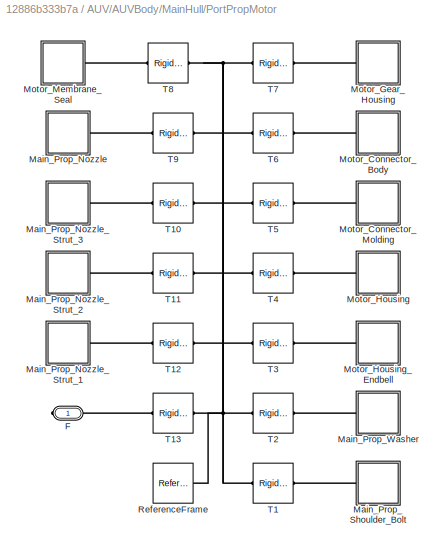
BLOCK [SubSystem] AUV/AUVBody/MainHull/PortPropMotor
  Ports = [0, 0, 0, 0, 0, 0, 1]
  RequestExecContextInheritance = off
BLOCK [PMIOPort] AUV/AUVBody/MainHull/PortPropMotor/F
  Side = Right
BLOCK [SubSystem] AUV/AUVBody/MainHull/PortPropMotor/Main_Prop_Nozzle
  Ports = [0, 0, 0, 0, 0, 1]
  RequestExecContextInheritance = off
BLOCK [PMIOPort] AUV/AUVBody/MainHull/PortPropMotor/Main_Prop_Nozzle/F
  Side = Left
BLOCK [Reference] AUV/AUVBody/MainHull/PortPropMotor/Main_Prop_Nozzle/ReferenceFrame  REF=sm_lib/Frames and
Transforms/Reference
Frame
  Ports = [0, 0, 0, 0, 0, 0, 1]
  SourceBlock = sm_lib/Frames and\nTransforms/Reference\nFrame
  SourceProductBaseCode = MS
  SourceType = Reference\nFrame
BLOCK [Reference] AUV/AUVBody/MainHull/PortPropMotor/Main_Prop_Nozzle/Solid  REF=sm_lib/Body Elements/File Solid
  Ports = [0, 0, 0, 0, 0, 0, 1]
  SourceBlock = sm_lib/Body Elements/File Solid
  SourceProductBaseCode = MS
  SourceType = File Solid
BLOCK [SubSystem] AUV/AUVBody/MainHull/PortPropMotor/Main_Prop_Nozzle_Strut_1
  Ports = [0, 0, 0, 0, 0, 1]
  RequestExecContextInheritance = off
BLOCK [PMIOPort] AUV/AUVBody/MainHull/PortPropMotor/Main_Prop_Nozzle_Strut_1/F
  Side = Left
BLOCK [Reference] AUV/AUVBody/MainHull/PortPropMotor/Main_Prop_Nozzle_Strut_1/ReferenceFrame  REF=sm_lib/Frames and
Transforms/Reference
Frame
  Ports = [0, 0, 0, 0, 0, 0, 1]
  SourceBlock = sm_lib/Frames and\nTransforms/Reference\nFrame
  SourceProductBaseCode = MS
  SourceType = Reference\nFrame
BLOCK [Reference] AUV/AUVBody/MainHull/PortPropMotor/Main_Prop_Nozzle_Strut_1/Solid  REF=sm_lib/Body Elements/File Solid
  Ports = [0, 0, 0, 0, 0, 0, 1]
  SourceBlock = sm_lib/Body Elements/File Solid
  SourceProductBaseCode = MS
  SourceType = File Solid
BLOCK [SubSystem] AUV/AUVBody/MainHull/PortPropMotor/Main_Prop_Nozzle_Strut_2
  Ports = [0, 0, 0, 0, 0, 1]
  RequestExecContextInheritance = off
BLOCK [PMIOPort] AUV/AUVBody/MainHull/PortPropMotor/Main_Prop_Nozzle_Strut_2/F
  Side = Left
BLOCK [Reference] AUV/AUVBody/MainHull/PortPropMotor/Main_Prop_Nozzle_Strut_2/ReferenceFrame  REF=sm_lib/Frames and
Transforms/Reference
Frame
  Ports = [0, 0, 0, 0, 0, 0, 1]
  SourceBlock = sm_lib/Frames and\nTransforms/Reference\nFrame
  SourceProductBaseCode = MS
  SourceType = Reference\nFrame
BLOCK [Reference] AUV/AUVBody/MainHull/PortPropMotor/Main_Prop_Nozzle_Strut_2/Solid  REF=sm_lib/Body Elements/File Solid
  Ports = [0, 0, 0, 0, 0, 0, 1]
  SourceBlock = sm_lib/Body Elements/File Solid
  SourceProductBaseCode = MS
  SourceType = File Solid
BLOCK [SubSystem] AUV/AUVBody/MainHull/PortPropMotor/Main_Prop_Nozzle_Strut_3
  Ports = [0, 0, 0, 0, 0, 1]
  RequestExecContextInheritance = off
BLOCK [PMIOPort] AUV/AUVBody/MainHull/PortPropMotor/Main_Prop_Nozzle_Strut_3/F
  Side = Left
BLOCK [Reference] AUV/AUVBody/MainHull/PortPropMotor/Main_Prop_Nozzle_Strut_3/ReferenceFrame  REF=sm_lib/Frames and
Transforms/Reference
Frame
  Ports = [0, 0, 0, 0, 0, 0, 1]
  SourceBlock = sm_lib/Frames and\nTransforms/Reference\nFrame
  SourceProductBaseCode = MS
  SourceType = Reference\nFrame
BLOCK [Reference] AUV/AUVBody/MainHull/PortPropMotor/Main_Prop_Nozzle_Strut_3/Solid  REF=sm_lib/Body Elements/File Solid
  Ports = [0, 0, 0, 0, 0, 0, 1]
  SourceBlock = sm_lib/Body Elements/File Solid
  SourceProductBaseCode = MS
  SourceType = File Solid
BLOCK [SubSystem] AUV/AUVBody/MainHull/PortPropMotor/Main_Prop_Shoulder_Bolt
  Ports = [0, 0, 0, 0, 0, 1]
  RequestExecContextInheritance = off
BLOCK [PMIOPort] AUV/AUVBody/MainHull/PortPropMotor/Main_Prop_Shoulder_Bolt/F
  Side = Left
BLOCK [Reference] AUV/AUVBody/MainHull/PortPropMotor/Main_Prop_Shoulder_Bolt/ReferenceFrame  REF=sm_lib/Frames and
Transforms/Reference
Frame
  Ports = [0, 0, 0, 0, 0, 0, 1]
  SourceBlock = sm_lib/Frames and\nTransforms/Reference\nFrame
  SourceProductBaseCode = MS
  SourceType = Reference\nFrame
BLOCK [Reference] AUV/AUVBody/MainHull/PortPropMotor/Main_Prop_Shoulder_Bolt/Solid  REF=sm_lib/Body Elements/File Solid
  Ports = [0, 0, 0, 0, 0, 0, 1]
  SourceBlock = sm_lib/Body Elements/File Solid
  SourceProductBaseCode = MS
  SourceType = File Solid
BLOCK [SubSystem] AUV/AUVBody/MainHull/PortPropMotor/Main_Prop_Washer
  Ports = [0, 0, 0, 0, 0, 1]
  RequestExecContextInheritance = off
BLOCK [PMIOPort] AUV/AUVBody/MainHull/PortPropMotor/Main_Prop_Washer/F
  Side = Left
BLOCK [Reference] AUV/AUVBody/MainHull/PortPropMotor/Main_Prop_Washer/ReferenceFrame  REF=sm_lib/Frames and
Transforms/Reference
Frame
  Ports = [0, 0, 0, 0, 0, 0, 1]
  SourceBlock = sm_lib/Frames and\nTransforms/Reference\nFrame
  SourceProductBaseCode = MS
  SourceType = Reference\nFrame
BLOCK [Reference] AUV/AUVBody/MainHull/PortPropMotor/Main_Prop_Washer/Solid  REF=sm_lib/Body Elements/File Solid
  Ports = [0, 0, 0, 0, 0, 0, 1]
  SourceBlock = sm_lib/Body Elements/File Solid
  SourceProductBaseCode = MS
  SourceType = File Solid
BLOCK [SubSystem] AUV/AUVBody/MainHull/PortPropMotor/Motor_Connector_Body
  Ports = [0, 0, 0, 0, 0, 1]
  RequestExecContextInheritance = off
BLOCK [PMIOPort] AUV/AUVBody/MainHull/PortPropMotor/Motor_Connector_Body/F
  Side = Left
BLOCK [Reference] AUV/AUVBody/MainHull/PortPropMotor/Motor_Connector_Body/ReferenceFrame  REF=sm_lib/Frames and
Transforms/Reference
Frame
  Ports = [0, 0, 0, 0, 0, 0, 1]
  SourceBlock = sm_lib/Frames and\nTransforms/Reference\nFrame
  SourceProductBaseCode = MS
  SourceType = Reference\nFrame
BLOCK [Reference] AUV/AUVBody/MainHull/PortPropMotor/Motor_Connector_Body/Solid  REF=sm_lib/Body Elements/File Solid
  Ports = [0, 0, 0, 0, 0, 0, 1]
  SourceBlock = sm_lib/Body Elements/File Solid
  SourceProductBaseCode = MS
  SourceType = File Solid
BLOCK [SubSystem] AUV/AUVBody/MainHull/PortPropMotor/Motor_Connector_Molding
  Ports = [0, 0, 0, 0, 0, 1]
  RequestExecContextInheritance = off
BLOCK [PMIOPort] AUV/AUVBody/MainHull/PortPropMotor/Motor_Connector_Molding/F
  Side = Left
BLOCK [Reference] AUV/AUVBody/MainHull/PortPropMotor/Motor_Connector_Molding/ReferenceFrame  REF=sm_lib/Frames and
Transforms/Reference
Frame
  Ports = [0, 0, 0, 0, 0, 0, 1]
  SourceBlock = sm_lib/Frames and\nTransforms/Reference\nFrame
  SourceProductBaseCode = MS
  SourceType = Reference\nFrame
BLOCK [Reference] AUV/AUVBody/MainHull/PortPropMotor/Motor_Connector_Molding/Solid  REF=sm_lib/Body Elements/File Solid
  Ports = [0, 0, 0, 0, 0, 0, 1]
  SourceBlock = sm_lib/Body Elements/File Solid
  SourceProductBaseCode = MS
  SourceType = File Solid
BLOCK [SubSystem] AUV/AUVBody/MainHull/PortPropMotor/Motor_Gear_Housing
  Ports = [0, 0, 0, 0, 0, 1]
  RequestExecContextInheritance = off
BLOCK [PMIOPort] AUV/AUVBody/MainHull/PortPropMotor/Motor_Gear_Housing/F
  Side = Left
BLOCK [Reference] AUV/AUVBody/MainHull/PortPropMotor/Motor_Gear_Housing/ReferenceFrame  REF=sm_lib/Frames and
Transforms/Reference
Frame
  Ports = [0, 0, 0, 0, 0, 0, 1]
  SourceBlock = sm_lib/Frames and\nTransforms/Reference\nFrame
  SourceProductBaseCode = MS
  SourceType = Reference\nFrame
BLOCK [Reference] AUV/AUVBody/MainHull/PortPropMotor/Motor_Gear_Housing/Solid  REF=sm_lib/Body Elements/File Solid
  Ports = [0, 0, 0, 0, 0, 0, 1]
  SourceBlock = sm_lib/Body Elements/File Solid
  SourceProductBaseCode = MS
  SourceType = File Solid
BLOCK [SubSystem] AUV/AUVBody/MainHull/PortPropMotor/Motor_Housing
  Ports = [0, 0, 0, 0, 0, 1]
  RequestExecContextInheritance = off
BLOCK [PMIOPort] AUV/AUVBody/MainHull/PortPropMotor/Motor_Housing/F
  Side = Left
BLOCK [Reference] AUV/AUVBody/MainHull/PortPropMotor/Motor_Housing/ReferenceFrame  REF=sm_lib/Frames and
Transforms/Reference
Frame
  Ports = [0, 0, 0, 0, 0, 0, 1]
  SourceBlock = sm_lib/Frames and\nTransforms/Reference\nFrame
  SourceProductBaseCode = MS
  SourceType = Reference\nFrame
BLOCK [Reference] AUV/AUVBody/MainHull/PortPropMotor/Motor_Housing/Solid  REF=sm_lib/Body Elements/File Solid
  Ports = [0, 0, 0, 0, 0, 0, 1]
  SourceBlock = sm_lib/Body Elements/File Solid
  SourceProductBaseCode = MS
  SourceType = File Solid
BLOCK [SubSystem] AUV/AUVBody/MainHull/PortPropMotor/Motor_Housing_Endbell
  Ports = [0, 0, 0, 0, 0, 1]
  RequestExecContextInheritance = off
BLOCK [PMIOPort] AUV/AUVBody/MainHull/PortPropMotor/Motor_Housing_Endbell/F
  Side = Left
BLOCK [Reference] AUV/AUVBody/MainHull/PortPropMotor/Motor_Housing_Endbell/ReferenceFrame  REF=sm_lib/Frames and
Transforms/Reference
Frame
  Ports = [0, 0, 0, 0, 0, 0, 1]
  SourceBlock = sm_lib/Frames and\nTransforms/Reference\nFrame
  SourceProductBaseCode = MS
  SourceType = Reference\nFrame
BLOCK [Reference] AUV/AUVBody/MainHull/PortPropMotor/Motor_Housing_Endbell/Solid  REF=sm_lib/Body Elements/File Solid
  Ports = [0, 0, 0, 0, 0, 0, 1]
  SourceBlock = sm_lib/Body Elements/File Solid
  SourceProductBaseCode = MS
  SourceType = File Solid
BLOCK [SubSystem] AUV/AUVBody/MainHull/PortPropMotor/Motor_Membrane_Seal
  Ports = [0, 0, 0, 0, 0, 1]
  RequestExecContextInheritance = off
BLOCK [PMIOPort] AUV/AUVBody/MainHull/PortPropMotor/Motor_Membrane_Seal/F
  Side = Left
BLOCK [Reference] AUV/AUVBody/MainHull/PortPropMotor/Motor_Membrane_Seal/ReferenceFrame  REF=sm_lib/Frames and
Transforms/Reference
Frame
  Ports = [0, 0, 0, 0, 0, 0, 1]
  SourceBlock = sm_lib/Frames and\nTransforms/Reference\nFrame
  SourceProductBaseCode = MS
  SourceType = Reference\nFrame
BLOCK [Reference] AUV/AUVBody/MainHull/PortPropMotor/Motor_Membrane_Seal/Solid  REF=sm_lib/Body Elements/File Solid
  Ports = [0, 0, 0, 0, 0, 0, 1]
  SourceBlock = sm_lib/Body Elements/File Solid
  SourceProductBaseCode = MS
  SourceType = File Solid
BLOCK [Reference] AUV/AUVBody/MainHull/PortPropMotor/ReferenceFrame  REF=sm_lib/Frames and
Transforms/Reference
Frame
  Ports = [0, 0, 0, 0, 0, 0, 1]
  SourceBlock = sm_lib/Frames and\nTransforms/Reference\nFrame
  SourceProductBaseCode = MS
  SourceType = Reference\nFrame
BLOCK [Reference] AUV/AUVBody/MainHull/PortPropMotor/T1  REF=sm_lib/Frames and
Transforms/Rigid
Transform
  Ports = [0, 0, 0, 0, 0, 1, 1]
  SourceBlock = sm_lib/Frames and\nTransforms/Rigid\nTransform
  SourceProductBaseCode = MS
  SourceType = Rigid\nTransform
BLOCK [Reference] AUV/AUVBody/MainHull/PortPropMotor/T10  REF=sm_lib/Frames and
Transforms/Rigid
Transform
  Ports = [0, 0, 0, 0, 0, 1, 1]
  SourceBlock = sm_lib/Frames and\nTransforms/Rigid\nTransform
  SourceProductBaseCode = MS
  SourceType = Rigid\nTransform
BLOCK [Reference] AUV/AUVBody/MainHull/PortPropMotor/T11  REF=sm_lib/Frames and
Transforms/Rigid
Transform
  Ports = [0, 0, 0, 0, 0, 1, 1]
  SourceBlock = sm_lib/Frames and\nTransforms/Rigid\nTransform
  SourceProductBaseCode = MS
  SourceType = Rigid\nTransform
BLOCK [Reference] AUV/AUVBody/MainHull/PortPropMotor/T12  REF=sm_lib/Frames and
Transforms/Rigid
Transform
  Ports = [0, 0, 0, 0, 0, 1, 1]
  SourceBlock = sm_lib/Frames and\nTransforms/Rigid\nTransform
  SourceProductBaseCode = MS
  SourceType = Rigid\nTransform
BLOCK [Reference] AUV/AUVBody/MainHull/PortPropMotor/T13  REF=sm_lib/Frames and
Transforms/Rigid
Transform
  Ports = [0, 0, 0, 0, 0, 1, 1]
  SourceBlock = sm_lib/Frames and\nTransforms/Rigid\nTransform
  SourceProductBaseCode = MS
  SourceType = Rigid\nTransform
BLOCK [Reference] AUV/AUVBody/MainHull/PortPropMotor/T2  REF=sm_lib/Frames and
Transforms/Rigid
Transform
  Ports = [0, 0, 0, 0, 0, 1, 1]
  SourceBlock = sm_lib/Frames and\nTransforms/Rigid\nTransform
  SourceProductBaseCode = MS
  SourceType = Rigid\nTransform
BLOCK [Reference] AUV/AUVBody/MainHull/PortPropMotor/T3  REF=sm_lib/Frames and
Transforms/Rigid
Transform
  Ports = [0, 0, 0, 0, 0, 1, 1]
  SourceBlock = sm_lib/Frames and\nTransforms/Rigid\nTransform
  SourceProductBaseCode = MS
  SourceType = Rigid\nTransform
BLOCK [Reference] AUV/AUVBody/MainHull/PortPropMotor/T4  REF=sm_lib/Frames and
Transforms/Rigid
Transform
  Ports = [0, 0, 0, 0, 0, 1, 1]
  SourceBlock = sm_lib/Frames and\nTransforms/Rigid\nTransform
  SourceProductBaseCode = MS
  SourceType = Rigid\nTransform
BLOCK [Reference] AUV/AUVBody/MainHull/PortPropMotor/T5  REF=sm_lib/Frames and
Transforms/Rigid
Transform
  Ports = [0, 0, 0, 0, 0, 1, 1]
  SourceBlock = sm_lib/Frames and\nTransforms/Rigid\nTransform
  SourceProductBaseCode = MS
  SourceType = Rigid\nTransform
BLOCK [Reference] AUV/AUVBody/MainHull/PortPropMotor/T6  REF=sm_lib/Frames and
Transforms/Rigid
Transform
  Ports = [0, 0, 0, 0, 0, 1, 1]
  SourceBlock = sm_lib/Frames and\nTransforms/Rigid\nTransform
  SourceProductBaseCode = MS
  SourceType = Rigid\nTransform
BLOCK [Reference] AUV/AUVBody/MainHull/PortPropMotor/T7  REF=sm_lib/Frames and
Transforms/Rigid
Transform
  Ports = [0, 0, 0, 0, 0, 1, 1]
  SourceBlock = sm_lib/Frames and\nTransforms/Rigid\nTransform
  SourceProductBaseCode = MS
  SourceType = Rigid\nTransform
BLOCK [Reference] AUV/AUVBody/MainHull/PortPropMotor/T8  REF=sm_lib/Frames and
Transforms/Rigid
Transform
  Ports = [0, 0, 0, 0, 0, 1, 1]
  SourceBlock = sm_lib/Frames and\nTransforms/Rigid\nTransform
  SourceProductBaseCode = MS
  SourceType = Rigid\nTransform
BLOCK [Reference] AUV/AUVBody/MainHull/PortPropMotor/T9  REF=sm_lib/Frames and
Transforms/Rigid
Transform
  Ports = [0, 0, 0, 0, 0, 1, 1]
  SourceBlock = sm_lib/Frames and\nTransforms/Rigid\nTransform
  SourceProductBaseCode = MS
  SourceType = Rigid\nTransform
BLOCK [Reference] AUV/AUVBody/MainHull/ReferenceFrame  REF=sm_lib/Frames and
Transforms/Reference
Frame
  Ports = [0, 0, 0, 0, 0, 0, 1]
  SourceBlock = sm_lib/Frames and\nTransforms/Reference\nFrame
  SourceProductBaseCode = MS
  SourceType = Reference\nFrame
BLOCK [PMIOPort] AUV/AUVBody/MainHull/SP
  Port = 2
  Side = Left
BLOCK [SubSystem] AUV/AUVBody/MainHull/Sonar1
  Ports = [0, 0, 0, 0, 0, 1]
  RequestExecContextInheritance = off
BLOCK [PMIOPort] AUV/AUVBody/MainHull/Sonar1/F
  Side = Left
BLOCK [Reference] AUV/AUVBody/MainHull/Sonar1/ReferenceFrame  REF=sm_lib/Frames and
Transforms/Reference
Frame
  Ports = [0, 0, 0, 0, 0, 0, 1]
  SourceBlock = sm_lib/Frames and\nTransforms/Reference\nFrame
  SourceProductBaseCode = MS
  SourceType = Reference\nFrame
BLOCK [Reference] AUV/AUVBody/MainHull/Sonar1/Solid  REF=sm_lib/Body Elements/File Solid
  Ports = [0, 0, 0, 0, 0, 0, 1]
  SourceBlock = sm_lib/Body Elements/File Solid
  SourceProductBaseCode = MS
  SourceType = File Solid
BLOCK [Reference] AUV/AUVBody/MainHull/Sonar1/T1  REF=sm_lib/Frames and
Transforms/Rigid
Transform
  Ports = [0, 0, 0, 0, 0, 1, 1]
  SourceBlock = sm_lib/Frames and\nTransforms/Rigid\nTransform
  SourceProductBaseCode = MS
  SourceType = Rigid\nTransform
BLOCK [SubSystem] AUV/AUVBody/MainHull/Sonar2
  Ports = [0, 0, 0, 0, 0, 1]
  RequestExecContextInheritance = off
BLOCK [PMIOPort] AUV/AUVBody/MainHull/Sonar2/F
  Side = Left
BLOCK [Reference] AUV/AUVBody/MainHull/Sonar2/ReferenceFrame  REF=sm_lib/Frames and
Transforms/Reference
Frame
  Ports = [0, 0, 0, 0, 0, 0, 1]
  SourceBlock = sm_lib/Frames and\nTransforms/Reference\nFrame
  SourceProductBaseCode = MS
  SourceType = Reference\nFrame
BLOCK [Reference] AUV/AUVBody/MainHull/Sonar2/Solid  REF=sm_lib/Body Elements/File Solid
  Ports = [0, 0, 0, 0, 0, 0, 1]
  SourceBlock = sm_lib/Body Elements/File Solid
  SourceProductBaseCode = MS
  SourceType = File Solid
BLOCK [Reference] AUV/AUVBody/MainHull/Sonar2/T1  REF=sm_lib/Frames and
Transforms/Rigid
Transform
  Ports = [0, 0, 0, 0, 0, 1, 1]
  SourceBlock = sm_lib/Frames and\nTransforms/Rigid\nTransform
  SourceProductBaseCode = MS
  SourceType = Rigid\nTransform
BLOCK [SubSystem] AUV/AUVBody/MainHull/StarboardPropMotor
  Ports = [0, 0, 0, 0, 0, 0, 1]
  RequestExecContextInheritance = off
BLOCK [PMIOPort] AUV/AUVBody/MainHull/StarboardPropMotor/F
  Side = Right
BLOCK [SubSystem] AUV/AUVBody/MainHull/StarboardPropMotor/Main_Prop_Nozzle
  Ports = [0, 0, 0, 0, 0, 1]
  RequestExecContextInheritance = off
BLOCK [PMIOPort] AUV/AUVBody/MainHull/StarboardPropMotor/Main_Prop_Nozzle/F
  Side = Left
BLOCK [Reference] AUV/AUVBody/MainHull/StarboardPropMotor/Main_Prop_Nozzle/ReferenceFrame  REF=sm_lib/Frames and
Transforms/Reference
Frame
  Ports = [0, 0, 0, 0, 0, 0, 1]
  SourceBlock = sm_lib/Frames and\nTransforms/Reference\nFrame
  SourceProductBaseCode = MS
  SourceType = Reference\nFrame
BLOCK [Reference] AUV/AUVBody/MainHull/StarboardPropMotor/Main_Prop_Nozzle/Solid  REF=sm_lib/Body Elements/File Solid
  Ports = [0, 0, 0, 0, 0, 0, 1]
  SourceBlock = sm_lib/Body Elements/File Solid
  SourceProductBaseCode = MS
  SourceType = File Solid
BLOCK [SubSystem] AUV/AUVBody/MainHull/StarboardPropMotor/Main_Prop_Nozzle_Strut_1
  Ports = [0, 0, 0, 0, 0, 1]
  RequestExecContextInheritance = off
BLOCK [PMIOPort] AUV/AUVBody/MainHull/StarboardPropMotor/Main_Prop_Nozzle_Strut_1/F
  Side = Left
BLOCK [Reference] AUV/AUVBody/MainHull/StarboardPropMotor/Main_Prop_Nozzle_Strut_1/ReferenceFrame  REF=sm_lib/Frames and
Transforms/Reference
Frame
  Ports = [0, 0, 0, 0, 0, 0, 1]
  SourceBlock = sm_lib/Frames and\nTransforms/Reference\nFrame
  SourceProductBaseCode = MS
  SourceType = Reference\nFrame
BLOCK [Reference] AUV/AUVBody/MainHull/StarboardPropMotor/Main_Prop_Nozzle_Strut_1/Solid  REF=sm_lib/Body Elements/File Solid
  Ports = [0, 0, 0, 0, 0, 0, 1]
  SourceBlock = sm_lib/Body Elements/File Solid
  SourceProductBaseCode = MS
  SourceType = File Solid
BLOCK [SubSystem] AUV/AUVBody/MainHull/StarboardPropMotor/Main_Prop_Nozzle_Strut_2
  Ports = [0, 0, 0, 0, 0, 1]
  RequestExecContextInheritance = off
BLOCK [PMIOPort] AUV/AUVBody/MainHull/StarboardPropMotor/Main_Prop_Nozzle_Strut_2/F
  Side = Left
BLOCK [Reference] AUV/AUVBody/MainHull/StarboardPropMotor/Main_Prop_Nozzle_Strut_2/ReferenceFrame  REF=sm_lib/Frames and
Transforms/Reference
Frame
  Ports = [0, 0, 0, 0, 0, 0, 1]
  SourceBlock = sm_lib/Frames and\nTransforms/Reference\nFrame
  SourceProductBaseCode = MS
  SourceType = Reference\nFrame
BLOCK [Reference] AUV/AUVBody/MainHull/StarboardPropMotor/Main_Prop_Nozzle_Strut_2/Solid  REF=sm_lib/Body Elements/File Solid
  Ports = [0, 0, 0, 0, 0, 0, 1]
  SourceBlock = sm_lib/Body Elements/File Solid
  SourceProductBaseCode = MS
  SourceType = File Solid
BLOCK [SubSystem] AUV/AUVBody/MainHull/StarboardPropMotor/Main_Prop_Nozzle_Strut_3
  Ports = [0, 0, 0, 0, 0, 1]
  RequestExecContextInheritance = off
BLOCK [PMIOPort] AUV/AUVBody/MainHull/StarboardPropMotor/Main_Prop_Nozzle_Strut_3/F
  Side = Left
BLOCK [Reference] AUV/AUVBody/MainHull/StarboardPropMotor/Main_Prop_Nozzle_Strut_3/ReferenceFrame  REF=sm_lib/Frames and
Transforms/Reference
Frame
  Ports = [0, 0, 0, 0, 0, 0, 1]
  SourceBlock = sm_lib/Frames and\nTransforms/Reference\nFrame
  SourceProductBaseCode = MS
  SourceType = Reference\nFrame
BLOCK [Reference] AUV/AUVBody/MainHull/StarboardPropMotor/Main_Prop_Nozzle_Strut_3/Solid  REF=sm_lib/Body Elements/File Solid
  Ports = [0, 0, 0, 0, 0, 0, 1]
  SourceBlock = sm_lib/Body Elements/File Solid
  SourceProductBaseCode = MS
  SourceType = File Solid
BLOCK [SubSystem] AUV/AUVBody/MainHull/StarboardPropMotor/Main_Prop_Shoulder_Bolt
  Ports = [0, 0, 0, 0, 0, 1]
  RequestExecContextInheritance = off
BLOCK [PMIOPort] AUV/AUVBody/MainHull/StarboardPropMotor/Main_Prop_Shoulder_Bolt/F
  Side = Left
BLOCK [Reference] AUV/AUVBody/MainHull/StarboardPropMotor/Main_Prop_Shoulder_Bolt/ReferenceFrame  REF=sm_lib/Frames and
Transforms/Reference
Frame
  Ports = [0, 0, 0, 0, 0, 0, 1]
  SourceBlock = sm_lib/Frames and\nTransforms/Reference\nFrame
  SourceProductBaseCode = MS
  SourceType = Reference\nFrame
BLOCK [Reference] AUV/AUVBody/MainHull/StarboardPropMotor/Main_Prop_Shoulder_Bolt/Solid  REF=sm_lib/Body Elements/File Solid
  Ports = [0, 0, 0, 0, 0, 0, 1]
  SourceBlock = sm_lib/Body Elements/File Solid
  SourceProductBaseCode = MS
  SourceType = File Solid
BLOCK [SubSystem] AUV/AUVBody/MainHull/StarboardPropMotor/Main_Prop_Washer
  Ports = [0, 0, 0, 0, 0, 1]
  RequestExecContextInheritance = off
BLOCK [PMIOPort] AUV/AUVBody/MainHull/StarboardPropMotor/Main_Prop_Washer/F
  Side = Left
BLOCK [Reference] AUV/AUVBody/MainHull/StarboardPropMotor/Main_Prop_Washer/ReferenceFrame  REF=sm_lib/Frames and
Transforms/Reference
Frame
  Ports = [0, 0, 0, 0, 0, 0, 1]
  SourceBlock = sm_lib/Frames and\nTransforms/Reference\nFrame
  SourceProductBaseCode = MS
  SourceType = Reference\nFrame
BLOCK [Reference] AUV/AUVBody/MainHull/StarboardPropMotor/Main_Prop_Washer/Solid  REF=sm_lib/Body Elements/File Solid
  Ports = [0, 0, 0, 0, 0, 0, 1]
  SourceBlock = sm_lib/Body Elements/File Solid
  SourceProductBaseCode = MS
  SourceType = File Solid
BLOCK [SubSystem] AUV/AUVBody/MainHull/StarboardPropMotor/Motor_Connector_Body
  Ports = [0, 0, 0, 0, 0, 1]
  RequestExecContextInheritance = off
BLOCK [PMIOPort] AUV/AUVBody/MainHull/StarboardPropMotor/Motor_Connector_Body/F
  Side = Left
BLOCK [Reference] AUV/AUVBody/MainHull/StarboardPropMotor/Motor_Connector_Body/ReferenceFrame  REF=sm_lib/Frames and
Transforms/Reference
Frame
  Ports = [0, 0, 0, 0, 0, 0, 1]
  SourceBlock = sm_lib/Frames and\nTransforms/Reference\nFrame
  SourceProductBaseCode = MS
  SourceType = Reference\nFrame
BLOCK [Reference] AUV/AUVBody/MainHull/StarboardPropMotor/Motor_Connector_Body/Solid  REF=sm_lib/Body Elements/File Solid
  Ports = [0, 0, 0, 0, 0, 0, 1]
  SourceBlock = sm_lib/Body Elements/File Solid
  SourceProductBaseCode = MS
  SourceType = File Solid
BLOCK [SubSystem] AUV/AUVBody/MainHull/StarboardPropMotor/Motor_Connector_Molding
  Ports = [0, 0, 0, 0, 0, 1]
  RequestExecContextInheritance = off
BLOCK [PMIOPort] AUV/AUVBody/MainHull/StarboardPropMotor/Motor_Connector_Molding/F
  Side = Left
BLOCK [Reference] AUV/AUVBody/MainHull/StarboardPropMotor/Motor_Connector_Molding/ReferenceFrame  REF=sm_lib/Frames and
Transforms/Reference
Frame
  Ports = [0, 0, 0, 0, 0, 0, 1]
  SourceBlock = sm_lib/Frames and\nTransforms/Reference\nFrame
  SourceProductBaseCode = MS
  SourceType = Reference\nFrame
BLOCK [Reference] AUV/AUVBody/MainHull/StarboardPropMotor/Motor_Connector_Molding/Solid  REF=sm_lib/Body Elements/File Solid
  Ports = [0, 0, 0, 0, 0, 0, 1]
  SourceBlock = sm_lib/Body Elements/File Solid
  SourceProductBaseCode = MS
  SourceType = File Solid
BLOCK [SubSystem] AUV/AUVBody/MainHull/StarboardPropMotor/Motor_Gear_Housing
  Ports = [0, 0, 0, 0, 0, 1]
  RequestExecContextInheritance = off
BLOCK [PMIOPort] AUV/AUVBody/MainHull/StarboardPropMotor/Motor_Gear_Housing/F
  Side = Left
BLOCK [Reference] AUV/AUVBody/MainHull/StarboardPropMotor/Motor_Gear_Housing/ReferenceFrame  REF=sm_lib/Frames and
Transforms/Reference
Frame
  Ports = [0, 0, 0, 0, 0, 0, 1]
  SourceBlock = sm_lib/Frames and\nTransforms/Reference\nFrame
  SourceProductBaseCode = MS
  SourceType = Reference\nFrame
BLOCK [Reference] AUV/AUVBody/MainHull/StarboardPropMotor/Motor_Gear_Housing/Solid  REF=sm_lib/Body Elements/File Solid
  Ports = [0, 0, 0, 0, 0, 0, 1]
  SourceBlock = sm_lib/Body Elements/File Solid
  SourceProductBaseCode = MS
  SourceType = File Solid
BLOCK [SubSystem] AUV/AUVBody/MainHull/StarboardPropMotor/Motor_Housing
  Ports = [0, 0, 0, 0, 0, 1]
  RequestExecContextInheritance = off
BLOCK [PMIOPort] AUV/AUVBody/MainHull/StarboardPropMotor/Motor_Housing/F
  Side = Left
BLOCK [Reference] AUV/AUVBody/MainHull/StarboardPropMotor/Motor_Housing/ReferenceFrame  REF=sm_lib/Frames and
Transforms/Reference
Frame
  Ports = [0, 0, 0, 0, 0, 0, 1]
  SourceBlock = sm_lib/Frames and\nTransforms/Reference\nFrame
  SourceProductBaseCode = MS
  SourceType = Reference\nFrame
BLOCK [Reference] AUV/AUVBody/MainHull/StarboardPropMotor/Motor_Housing/Solid  REF=sm_lib/Body Elements/File Solid
  Ports = [0, 0, 0, 0, 0, 0, 1]
  SourceBlock = sm_lib/Body Elements/File Solid
  SourceProductBaseCode = MS
  SourceType = File Solid
BLOCK [SubSystem] AUV/AUVBody/MainHull/StarboardPropMotor/Motor_Housing_Endbell
  Ports = [0, 0, 0, 0, 0, 1]
  RequestExecContextInheritance = off
BLOCK [PMIOPort] AUV/AUVBody/MainHull/StarboardPropMotor/Motor_Housing_Endbell/F
  Side = Left
BLOCK [Reference] AUV/AUVBody/MainHull/StarboardPropMotor/Motor_Housing_Endbell/ReferenceFrame  REF=sm_lib/Frames and
Transforms/Reference
Frame
  Ports = [0, 0, 0, 0, 0, 0, 1]
  SourceBlock = sm_lib/Frames and\nTransforms/Reference\nFrame
  SourceProductBaseCode = MS
  SourceType = Reference\nFrame
BLOCK [Reference] AUV/AUVBody/MainHull/StarboardPropMotor/Motor_Housing_Endbell/Solid  REF=sm_lib/Body Elements/File Solid
  Ports = [0, 0, 0, 0, 0, 0, 1]
  SourceBlock = sm_lib/Body Elements/File Solid
  SourceProductBaseCode = MS
  SourceType = File Solid
BLOCK [SubSystem] AUV/AUVBody/MainHull/StarboardPropMotor/Motor_Membrane_Seal
  Ports = [0, 0, 0, 0, 0, 1]
  RequestExecContextInheritance = off
BLOCK [PMIOPort] AUV/AUVBody/MainHull/StarboardPropMotor/Motor_Membrane_Seal/F
  Side = Left
BLOCK [Reference] AUV/AUVBody/MainHull/StarboardPropMotor/Motor_Membrane_Seal/ReferenceFrame  REF=sm_lib/Frames and
Transforms/Reference
Frame
  Ports = [0, 0, 0, 0, 0, 0, 1]
  SourceBlock = sm_lib/Frames and\nTransforms/Reference\nFrame
  SourceProductBaseCode = MS
  SourceType = Reference\nFrame
BLOCK [Reference] AUV/AUVBody/MainHull/StarboardPropMotor/Motor_Membrane_Seal/Solid  REF=sm_lib/Body Elements/File Solid
  Ports = [0, 0, 0, 0, 0, 0, 1]
  SourceBlock = sm_lib/Body Elements/File Solid
  SourceProductBaseCode = MS
  SourceType = File Solid
BLOCK [Reference] AUV/AUVBody/MainHull/StarboardPropMotor/ReferenceFrame  REF=sm_lib/Frames and
Transforms/Reference
Frame
  Ports = [0, 0, 0, 0, 0, 0, 1]
  SourceBlock = sm_lib/Frames and\nTransforms/Reference\nFrame
  SourceProductBaseCode = MS
  SourceType = Reference\nFrame
BLOCK [Reference] AUV/AUVBody/MainHull/StarboardPropMotor/T1  REF=sm_lib/Frames and
Transforms/Rigid
Transform
  Ports = [0, 0, 0, 0, 0, 1, 1]
  SourceBlock = sm_lib/Frames and\nTransforms/Rigid\nTransform
  SourceProductBaseCode = MS
  SourceType = Rigid\nTransform
BLOCK [Reference] AUV/AUVBody/MainHull/StarboardPropMotor/T10  REF=sm_lib/Frames and
Transforms/Rigid
Transform
  Ports = [0, 0, 0, 0, 0, 1, 1]
  SourceBlock = sm_lib/Frames and\nTransforms/Rigid\nTransform
  SourceProductBaseCode = MS
  SourceType = Rigid\nTransform
BLOCK [Reference] AUV/AUVBody/MainHull/StarboardPropMotor/T11  REF=sm_lib/Frames and
Transforms/Rigid
Transform
  Ports = [0, 0, 0, 0, 0, 1, 1]
  SourceBlock = sm_lib/Frames and\nTransforms/Rigid\nTransform
  SourceProductBaseCode = MS
  SourceType = Rigid\nTransform
BLOCK [Reference] AUV/AUVBody/MainHull/StarboardPropMotor/T12  REF=sm_lib/Frames and
Transforms/Rigid
Transform
  Ports = [0, 0, 0, 0, 0, 1, 1]
  SourceBlock = sm_lib/Frames and\nTransforms/Rigid\nTransform
  SourceProductBaseCode = MS
  SourceType = Rigid\nTransform
BLOCK [Reference] AUV/AUVBody/MainHull/StarboardPropMotor/T13  REF=sm_lib/Frames and
Transforms/Rigid
Transform
  Ports = [0, 0, 0, 0, 0, 1, 1]
  SourceBlock = sm_lib/Frames and\nTransforms/Rigid\nTransform
  SourceProductBaseCode = MS
  SourceType = Rigid\nTransform
BLOCK [Reference] AUV/AUVBody/MainHull/StarboardPropMotor/T2  REF=sm_lib/Frames and
Transforms/Rigid
Transform
  Ports = [0, 0, 0, 0, 0, 1, 1]
  SourceBlock = sm_lib/Frames and\nTransforms/Rigid\nTransform
  SourceProductBaseCode = MS
  SourceType = Rigid\nTransform
BLOCK [Reference] AUV/AUVBody/MainHull/StarboardPropMotor/T3  REF=sm_lib/Frames and
Transforms/Rigid
Transform
  Ports = [0, 0, 0, 0, 0, 1, 1]
  SourceBlock = sm_lib/Frames and\nTransforms/Rigid\nTransform
  SourceProductBaseCode = MS
  SourceType = Rigid\nTransform
BLOCK [Reference] AUV/AUVBody/MainHull/StarboardPropMotor/T4  REF=sm_lib/Frames and
Transforms/Rigid
Transform
  Ports = [0, 0, 0, 0, 0, 1, 1]
  SourceBlock = sm_lib/Frames and\nTransforms/Rigid\nTransform
  SourceProductBaseCode = MS
  SourceType = Rigid\nTransform
BLOCK [Reference] AUV/AUVBody/MainHull/StarboardPropMotor/T5  REF=sm_lib/Frames and
Transforms/Rigid
Transform
  Ports = [0, 0, 0, 0, 0, 1, 1]
  SourceBlock = sm_lib/Frames and\nTransforms/Rigid\nTransform
  SourceProductBaseCode = MS
  SourceType = Rigid\nTransform
BLOCK [Reference] AUV/AUVBody/MainHull/StarboardPropMotor/T6  REF=sm_lib/Frames and
Transforms/Rigid
Transform
  Ports = [0, 0, 0, 0, 0, 1, 1]
  SourceBlock = sm_lib/Frames and\nTransforms/Rigid\nTransform
  SourceProductBaseCode = MS
  SourceType = Rigid\nTransform
BLOCK [Reference] AUV/AUVBody/MainHull/StarboardPropMotor/T7  REF=sm_lib/Frames and
Transforms/Rigid
Transform
  Ports = [0, 0, 0, 0, 0, 1, 1]
  SourceBlock = sm_lib/Frames and\nTransforms/Rigid\nTransform
  SourceProductBaseCode = MS
  SourceType = Rigid\nTransform
BLOCK [Reference] AUV/AUVBody/MainHull/StarboardPropMotor/T8  REF=sm_lib/Frames and
Transforms/Rigid
Transform
  Ports = [0, 0, 0, 0, 0, 1, 1]
  SourceBlock = sm_lib/Frames and\nTransforms/Rigid\nTransform
  SourceProductBaseCode = MS
  SourceType = Rigid\nTransform
BLOCK [Reference] AUV/AUVBody/MainHull/StarboardPropMotor/T9  REF=sm_lib/Frames and
Transforms/Rigid
Transform
  Ports = [0, 0, 0, 0, 0, 1, 1]
  SourceBlock = sm_lib/Frames and\nTransforms/Rigid\nTransform
  SourceProductBaseCode = MS
  SourceType = Rigid\nTransform
BLOCK [PMIOPort] AUV/AUVBody/PP
  Port = 6
  Side = Left
BLOCK [Reference] AUV/AUVBody/ReferenceFrame  REF=sm_lib/Frames and
Transforms/Reference
Frame
  Ports = [0, 0, 0, 0, 0, 0, 1]
  SourceBlock = sm_lib/Frames and\nTransforms/Reference\nFrame
  SourceProductBaseCode = MS
  SourceType = Reference\nFrame
BLOCK [PMIOPort] AUV/AUVBody/SHT
  Port = 8
  Side = Left
BLOCK [PMIOPort] AUV/AUVBody/SP
  Port = 5
  Side = Right
BLOCK [PMIOPort] AUV/AUVBody/SVT
  Port = 7
  Side = Right
BLOCK [SubSystem] AUV/AUVBody/SternHorThrusterTunnel
  Ports = [0, 0, 0, 0, 0, 1, 1]
  RequestExecContextInheritance = off
BLOCK [PMIOPort] AUV/AUVBody/SternHorThrusterTunnel/F
  Side = Left
BLOCK [Reference] AUV/AUVBody/SternHorThrusterTunnel/ReferenceFrame  REF=sm_lib/Frames and
Transforms/Reference
Frame
  Ports = [0, 0, 0, 0, 0, 0, 1]
  SourceBlock = sm_lib/Frames and\nTransforms/Reference\nFrame
  SourceProductBaseCode = MS
  SourceType = Reference\nFrame
BLOCK [PMIOPort] AUV/AUVBody/SternHorThrusterTunnel/SHT
  Port = 2
  Side = Right
BLOCK [SubSystem] AUV/AUVBody/SternHorThrusterTunnel/SternHorThrusterMount
  Ports = [0, 0, 0, 0, 0, 1]
  RequestExecContextInheritance = off
BLOCK [PMIOPort] AUV/AUVBody/SternHorThrusterTunnel/SternHorThrusterMount/F
  Side = Left
BLOCK [Reference] AUV/AUVBody/SternHorThrusterTunnel/SternHorThrusterMount/ReferenceFrame  REF=sm_lib/Frames and
Transforms/Reference
Frame
  Ports = [0, 0, 0, 0, 0, 0, 1]
  SourceBlock = sm_lib/Frames and\nTransforms/Reference\nFrame
  SourceProductBaseCode = MS
  SourceType = Reference\nFrame
BLOCK [Reference] AUV/AUVBody/SternHorThrusterTunnel/SternHorThrusterMount/T1  REF=sm_lib/Frames and
Transforms/Rigid
Transform
  Ports = [0, 0, 0, 0, 0, 1, 1]
  SourceBlock = sm_lib/Frames and\nTransforms/Rigid\nTransform
  SourceProductBaseCode = MS
  SourceType = Rigid\nTransform
BLOCK [Reference] AUV/AUVBody/SternHorThrusterTunnel/SternHorThrusterMount/T2  REF=sm_lib/Frames and
Transforms/Rigid
Transform
  Ports = [0, 0, 0, 0, 0, 1, 1]
  SourceBlock = sm_lib/Frames and\nTransforms/Rigid\nTransform
  SourceProductBaseCode = MS
  SourceType = Rigid\nTransform
BLOCK [Reference] AUV/AUVBody/SternHorThrusterTunnel/SternHorThrusterMount/T3  REF=sm_lib/Frames and
Transforms/Rigid
Transform
  Ports = [0, 0, 0, 0, 0, 1, 1]
  SourceBlock = sm_lib/Frames and\nTransforms/Rigid\nTransform
  SourceProductBaseCode = MS
  SourceType = Rigid\nTransform
BLOCK [Reference] AUV/AUVBody/SternHorThrusterTunnel/SternHorThrusterMount/T4  REF=sm_lib/Frames and
Transforms/Rigid
Transform
  Ports = [0, 0, 0, 0, 0, 1, 1]
  SourceBlock = sm_lib/Frames and\nTransforms/Rigid\nTransform
  SourceProductBaseCode = MS
  SourceType = Rigid\nTransform
BLOCK [Reference] AUV/AUVBody/SternHorThrusterTunnel/SternHorThrusterMount/T5  REF=sm_lib/Frames and
Transforms/Rigid
Transform
  Ports = [0, 0, 0, 0, 0, 1, 1]
  SourceBlock = sm_lib/Frames and\nTransforms/Rigid\nTransform
  SourceProductBaseCode = MS
  SourceType = Rigid\nTransform
BLOCK [Reference] AUV/AUVBody/SternHorThrusterTunnel/SternHorThrusterMount/T6  REF=sm_lib/Frames and
Transforms/Rigid
Transform
  Ports = [0, 0, 0, 0, 0, 1, 1]
  SourceBlock = sm_lib/Frames and\nTransforms/Rigid\nTransform
  SourceProductBaseCode = MS
  SourceType = Rigid\nTransform
BLOCK [Reference] AUV/AUVBody/SternHorThrusterTunnel/SternHorThrusterMount/T7  REF=sm_lib/Frames and
Transforms/Rigid
Transform
  Ports = [0, 0, 0, 0, 0, 1, 1]
  SourceBlock = sm_lib/Frames and\nTransforms/Rigid\nTransform
  SourceProductBaseCode = MS
  SourceType = Rigid\nTransform
BLOCK [Reference] AUV/AUVBody/SternHorThrusterTunnel/SternHorThrusterMount/T8  REF=sm_lib/Frames and
Transforms/Rigid
Transform
  Ports = [0, 0, 0, 0, 0, 1, 1]
  SourceBlock = sm_lib/Frames and\nTransforms/Rigid\nTransform
  SourceProductBaseCode = MS
  SourceType = Rigid\nTransform
BLOCK [SubSystem] AUV/AUVBody/SternHorThrusterTunnel/SternHorThrusterMount/Tunnel_Thruster_Prop_Hub_1
  Ports = [0, 0, 0, 0, 0, 1]
  RequestExecContextInheritance = off
BLOCK [PMIOPort] AUV/AUVBody/SternHorThrusterTunnel/SternHorThrusterMount/Tunnel_Thruster_Prop_Hub_1/F
  Side = Left
BLOCK [Reference] AUV/AUVBody/SternHorThrusterTunnel/SternHorThrusterMount/Tunnel_Thruster_Prop_Hub_1/ReferenceFrame  REF=sm_lib/Frames and
Transforms/Reference
Frame
  Ports = [0, 0, 0, 0, 0, 0, 1]
  SourceBlock = sm_lib/Frames and\nTransforms/Reference\nFrame
  SourceProductBaseCode = MS
  SourceType = Reference\nFrame
BLOCK [Reference] AUV/AUVBody/SternHorThrusterTunnel/SternHorThrusterMount/Tunnel_Thruster_Prop_Hub_1/Solid  REF=sm_lib/Body Elements/File Solid
  Ports = [0, 0, 0, 0, 0, 0, 1]
  SourceBlock = sm_lib/Body Elements/File Solid
  SourceProductBaseCode = MS
  SourceType = File Solid
BLOCK [SubSystem] AUV/AUVBody/SternHorThrusterTunnel/SternHorThrusterMount/Tunnel_Thruster_Prop_Hub_2
  Ports = [0, 0, 0, 0, 0, 1]
  RequestExecContextInheritance = off
BLOCK [PMIOPort] AUV/AUVBody/SternHorThrusterTunnel/SternHorThrusterMount/Tunnel_Thruster_Prop_Hub_2/F
  Side = Left
BLOCK [Reference] AUV/AUVBody/SternHorThrusterTunnel/SternHorThrusterMount/Tunnel_Thruster_Prop_Hub_2/ReferenceFrame  REF=sm_lib/Frames and
Transforms/Reference
Frame
  Ports = [0, 0, 0, 0, 0, 0, 1]
  SourceBlock = sm_lib/Frames and\nTransforms/Reference\nFrame
  SourceProductBaseCode = MS
  SourceType = Reference\nFrame
BLOCK [Reference] AUV/AUVBody/SternHorThrusterTunnel/SternHorThrusterMount/Tunnel_Thruster_Prop_Hub_2/Solid  REF=sm_lib/Body Elements/File Solid
  Ports = [0, 0, 0, 0, 0, 0, 1]
  SourceBlock = sm_lib/Body Elements/File Solid
  SourceProductBaseCode = MS
  SourceType = File Solid
BLOCK [SubSystem] AUV/AUVBody/SternHorThrusterTunnel/SternHorThrusterMount/Tunnel_Thruster_Prop_Mount
  Ports = [0, 0, 0, 0, 0, 1]
  RequestExecContextInheritance = off
BLOCK [PMIOPort] AUV/AUVBody/SternHorThrusterTunnel/SternHorThrusterMount/Tunnel_Thruster_Prop_Mount/F
  Side = Left
BLOCK [Reference] AUV/AUVBody/SternHorThrusterTunnel/SternHorThrusterMount/Tunnel_Thruster_Prop_Mount/ReferenceFrame  REF=sm_lib/Frames and
Transforms/Reference
Frame
  Ports = [0, 0, 0, 0, 0, 0, 1]
  SourceBlock = sm_lib/Frames and\nTransforms/Reference\nFrame
  SourceProductBaseCode = MS
  SourceType = Reference\nFrame
BLOCK [Reference] AUV/AUVBody/SternHorThrusterTunnel/SternHorThrusterMount/Tunnel_Thruster_Prop_Mount/Solid  REF=sm_lib/Body Elements/File Solid
  Ports = [0, 0, 0, 0, 0, 0, 1]
  SourceBlock = sm_lib/Body Elements/File Solid
  SourceProductBaseCode = MS
  SourceType = File Solid
BLOCK [SubSystem] AUV/AUVBody/SternHorThrusterTunnel/SternHorThrusterMount/Tunnel_Thruster_Shoulder_Bolt_1
  Ports = [0, 0, 0, 0, 0, 1]
  RequestExecContextInheritance = off
BLOCK [PMIOPort] AUV/AUVBody/SternHorThrusterTunnel/SternHorThrusterMount/Tunnel_Thruster_Shoulder_Bolt_1/F
  Side = Left
BLOCK [Reference] AUV/AUVBody/SternHorThrusterTunnel/SternHorThrusterMount/Tunnel_Thruster_Shoulder_Bolt_1/ReferenceFrame  REF=sm_lib/Frames and
Transforms/Reference
Frame
  Ports = [0, 0, 0, 0, 0, 0, 1]
  SourceBlock = sm_lib/Frames and\nTransforms/Reference\nFrame
  SourceProductBaseCode = MS
  SourceType = Reference\nFrame
BLOCK [Reference] AUV/AUVBody/SternHorThrusterTunnel/SternHorThrusterMount/Tunnel_Thruster_Shoulder_Bolt_1/Solid  REF=sm_lib/Body Elements/File Solid
  Ports = [0, 0, 0, 0, 0, 0, 1]
  SourceBlock = sm_lib/Body Elements/File Solid
  SourceProductBaseCode = MS
  SourceType = File Solid
BLOCK [SubSystem] AUV/AUVBody/SternHorThrusterTunnel/SternHorThrusterMount/Tunnel_Thruster_Shoulder_Bolt_2
  Ports = [0, 0, 0, 0, 0, 1]
  RequestExecContextInheritance = off
BLOCK [PMIOPort] AUV/AUVBody/SternHorThrusterTunnel/SternHorThrusterMount/Tunnel_Thruster_Shoulder_Bolt_2/F
  Side = Left
BLOCK [Reference] AUV/AUVBody/SternHorThrusterTunnel/SternHorThrusterMount/Tunnel_Thruster_Shoulder_Bolt_2/ReferenceFrame  REF=sm_lib/Frames and
Transforms/Reference
Frame
  Ports = [0, 0, 0, 0, 0, 0, 1]
  SourceBlock = sm_lib/Frames and\nTransforms/Reference\nFrame
  SourceProductBaseCode = MS
  SourceType = Reference\nFrame
BLOCK [Reference] AUV/AUVBody/SternHorThrusterTunnel/SternHorThrusterMount/Tunnel_Thruster_Shoulder_Bolt_2/Solid  REF=sm_lib/Body Elements/File Solid
  Ports = [0, 0, 0, 0, 0, 0, 1]
  SourceBlock = sm_lib/Body Elements/File Solid
  SourceProductBaseCode = MS
  SourceType = File Solid
BLOCK [SubSystem] AUV/AUVBody/SternHorThrusterTunnel/SternHorThrusterMount/Tunnel_Thruster_Washer_1
  Ports = [0, 0, 0, 0, 0, 1]
  RequestExecContextInheritance = off
BLOCK [PMIOPort] AUV/AUVBody/SternHorThrusterTunnel/SternHorThrusterMount/Tunnel_Thruster_Washer_1/F
  Side = Left
BLOCK [Reference] AUV/AUVBody/SternHorThrusterTunnel/SternHorThrusterMount/Tunnel_Thruster_Washer_1/ReferenceFrame  REF=sm_lib/Frames and
Transforms/Reference
Frame
  Ports = [0, 0, 0, 0, 0, 0, 1]
  SourceBlock = sm_lib/Frames and\nTransforms/Reference\nFrame
  SourceProductBaseCode = MS
  SourceType = Reference\nFrame
BLOCK [Reference] AUV/AUVBody/SternHorThrusterTunnel/SternHorThrusterMount/Tunnel_Thruster_Washer_1/Solid  REF=sm_lib/Body Elements/File Solid
  Ports = [0, 0, 0, 0, 0, 0, 1]
  SourceBlock = sm_lib/Body Elements/File Solid
  SourceProductBaseCode = MS
  SourceType = File Solid
BLOCK [SubSystem] AUV/AUVBody/SternHorThrusterTunnel/SternHorThrusterMount/Tunnel_Thruster_Washer_2
  Ports = [0, 0, 0, 0, 0, 1]
  RequestExecContextInheritance = off
BLOCK [PMIOPort] AUV/AUVBody/SternHorThrusterTunnel/SternHorThrusterMount/Tunnel_Thruster_Washer_2/F
  Side = Left
BLOCK [Reference] AUV/AUVBody/SternHorThrusterTunnel/SternHorThrusterMount/Tunnel_Thruster_Washer_2/ReferenceFrame  REF=sm_lib/Frames and
Transforms/Reference
Frame
  Ports = [0, 0, 0, 0, 0, 0, 1]
  SourceBlock = sm_lib/Frames and\nTransforms/Reference\nFrame
  SourceProductBaseCode = MS
  SourceType = Reference\nFrame
BLOCK [Reference] AUV/AUVBody/SternHorThrusterTunnel/SternHorThrusterMount/Tunnel_Thruster_Washer_2/Solid  REF=sm_lib/Body Elements/File Solid
  Ports = [0, 0, 0, 0, 0, 0, 1]
  SourceBlock = sm_lib/Body Elements/File Solid
  SourceProductBaseCode = MS
  SourceType = File Solid
BLOCK [SubSystem] AUV/AUVBody/SternHorThrusterTunnel/Stern_Horizontal_Thruster_Tunnel
  Ports = [0, 0, 0, 0, 0, 1]
  RequestExecContextInheritance = off
BLOCK [PMIOPort] AUV/AUVBody/SternHorThrusterTunnel/Stern_Horizontal_Thruster_Tunnel/F
  Side = Left
BLOCK [Reference] AUV/AUVBody/SternHorThrusterTunnel/Stern_Horizontal_Thruster_Tunnel/ReferenceFrame  REF=sm_lib/Frames and
Transforms/Reference
Frame
  Ports = [0, 0, 0, 0, 0, 0, 1]
  SourceBlock = sm_lib/Frames and\nTransforms/Reference\nFrame
  SourceProductBaseCode = MS
  SourceType = Reference\nFrame
BLOCK [Reference] AUV/AUVBody/SternHorThrusterTunnel/Stern_Horizontal_Thruster_Tunnel/Solid  REF=sm_lib/Body Elements/File Solid
  Ports = [0, 0, 0, 0, 0, 0, 1]
  SourceBlock = sm_lib/Body Elements/File Solid
  SourceProductBaseCode = MS
  SourceType = File Solid
BLOCK [Reference] AUV/AUVBody/SternHorThrusterTunnel/T1  REF=sm_lib/Frames and
Transforms/Rigid
Transform
  Ports = [0, 0, 0, 0, 0, 1, 1]
  SourceBlock = sm_lib/Frames and\nTransforms/Rigid\nTransform
  SourceProductBaseCode = MS
  SourceType = Rigid\nTransform
BLOCK [Reference] AUV/AUVBody/SternHorThrusterTunnel/T2  REF=sm_lib/Frames and
Transforms/Rigid
Transform
  Ports = [0, 0, 0, 0, 0, 1, 1]
  SourceBlock = sm_lib/Frames and\nTransforms/Rigid\nTransform
  SourceProductBaseCode = MS
  SourceType = Rigid\nTransform
BLOCK [Reference] AUV/AUVBody/SternHorThrusterTunnel/T3  REF=sm_lib/Frames and
Transforms/Rigid
Transform
  NameLocation = left
  Ports = [0, 0, 0, 0, 0, 1, 1]
  SourceBlock = sm_lib/Frames and\nTransforms/Rigid\nTransform
  SourceProductBaseCode = MS
  SourceType = Rigid\nTransform
BLOCK [SubSystem] AUV/AUVBody/SternHullCap
  PortSchema = {"entries":[{"content":{"sides":[{"content":{"connectorIds":[]},"type":"ConnectorPlacement.EquallySpacedRectSide","uuid":"4ed08382-faad-44b6-b48b-55aec1852bc8"},{"content":{"connectorIds":[],"side":"RIGHT"},"type":"ConnectorPlacement.EquallySpacedRectSide","uuid":"f82da02f-1c57-4ab6-ab88-6cf954e3e010"},{"content":{"connectorIds":["LConn1"],"side":"TOP"},"type":"ConnectorPlacement.EquallySpacedRect...<+239ch>
  Ports = [0, 0, 0, 0, 0, 1]
  RequestExecContextInheritance = off
BLOCK [SubSystem] AUV/AUVBody/SternHullCap/Comms_Modem
  Ports = [0, 0, 0, 0, 0, 1]
  RequestExecContextInheritance = off
BLOCK [PMIOPort] AUV/AUVBody/SternHullCap/Comms_Modem/F
  Side = Left
BLOCK [Reference] AUV/AUVBody/SternHullCap/Comms_Modem/R1  REF=sm_lib/Frames and
Transforms/Rigid
Transform
  Ports = [0, 0, 0, 0, 0, 1, 1]
  SourceBlock = sm_lib/Frames and\nTransforms/Rigid\nTransform
  SourceProductBaseCode = MS
  SourceType = Rigid\nTransform
BLOCK [Reference] AUV/AUVBody/SternHullCap/Comms_Modem/R2  REF=sm_lib/Frames and
Transforms/Rigid
Transform
  Ports = [0, 0, 0, 0, 0, 1, 1]
  SourceBlock = sm_lib/Frames and\nTransforms/Rigid\nTransform
  SourceProductBaseCode = MS
  SourceType = Rigid\nTransform
BLOCK [Reference] AUV/AUVBody/SternHullCap/Comms_Modem/R3  REF=sm_lib/Frames and
Transforms/Rigid
Transform
  Ports = [0, 0, 0, 0, 0, 1, 1]
  SourceBlock = sm_lib/Frames and\nTransforms/Rigid\nTransform
  SourceProductBaseCode = MS
  SourceType = Rigid\nTransform
BLOCK [Reference] AUV/AUVBody/SternHullCap/Comms_Modem/ReferenceFrame  REF=sm_lib/Frames and
Transforms/Reference
Frame
  Ports = [0, 0, 0, 0, 0, 0, 1]
  SourceBlock = sm_lib/Frames and\nTransforms/Reference\nFrame
  SourceProductBaseCode = MS
  SourceType = Reference\nFrame
BLOCK [Reference] AUV/AUVBody/SternHullCap/Comms_Modem/Solid  REF=sm_lib/Body Elements/File Solid
  Ports = [0, 0, 0, 0, 0, 0, 1]
  SourceBlock = sm_lib/Body Elements/File Solid
  SourceProductBaseCode = MS
  SourceType = File Solid
BLOCK [Reference] AUV/AUVBody/SternHullCap/Comms_Modem/T1  REF=sm_lib/Frames and
Transforms/Rigid
Transform
  Ports = [0, 0, 0, 0, 0, 1, 1]
  SourceBlock = sm_lib/Frames and\nTransforms/Rigid\nTransform
  SourceProductBaseCode = MS
  SourceType = Rigid\nTransform
BLOCK [Reference] AUV/AUVBody/SternHullCap/Comms_Modem/T2  REF=sm_lib/Frames and
Transforms/Rigid
Transform
  Ports = [0, 0, 0, 0, 0, 1, 1]
  SourceBlock = sm_lib/Frames and\nTransforms/Rigid\nTransform
  SourceProductBaseCode = MS
  SourceType = Rigid\nTransform
BLOCK [Reference] AUV/AUVBody/SternHullCap/Comms_Modem/T3  REF=sm_lib/Frames and
Transforms/Rigid
Transform
  Ports = [0, 0, 0, 0, 0, 1, 1]
  SourceBlock = sm_lib/Frames and\nTransforms/Rigid\nTransform
  SourceProductBaseCode = MS
  SourceType = Rigid\nTransform
BLOCK [Reference] AUV/AUVBody/SternHullCap/Comms_Modem/WhiteCylinder1  REF=sm_lib/Body Elements/Cylindrical Solid
  Ports = [0, 0, 0, 0, 0, 0, 1]
  SourceBlock = sm_lib/Body Elements/Cylindrical Solid
  SourceProductBaseCode = MS
  SourceType = Cylindrical Solid
BLOCK [Reference] AUV/AUVBody/SternHullCap/Comms_Modem/WhiteCylinder2  REF=sm_lib/Body Elements/Cylindrical Solid
  Ports = [0, 0, 0, 0, 0, 0, 1]
  SourceBlock = sm_lib/Body Elements/Cylindrical Solid
  SourceProductBaseCode = MS
  SourceType = Cylindrical Solid
BLOCK [Reference] AUV/AUVBody/SternHullCap/Comms_Modem/WhiteCylinder3  REF=sm_lib/Body Elements/Cylindrical Solid
  Ports = [0, 0, 0, 0, 0, 0, 1]
  SourceBlock = sm_lib/Body Elements/Cylindrical Solid
  SourceProductBaseCode = MS
  SourceType = Cylindrical Solid
BLOCK [PMIOPort] AUV/AUVBody/SternHullCap/F
  Side = Left
BLOCK [Reference] AUV/AUVBody/SternHullCap/ReferenceFrame  REF=sm_lib/Frames and
Transforms/Reference
Frame
  Ports = [0, 0, 0, 0, 0, 0, 1]
  SourceBlock = sm_lib/Frames and\nTransforms/Reference\nFrame
  SourceProductBaseCode = MS
  SourceType = Reference\nFrame
BLOCK [SubSystem] AUV/AUVBody/SternHullCap/Stern_Hull_Cap
  Ports = [0, 0, 0, 0, 0, 1]
  RequestExecContextInheritance = off
BLOCK [PMIOPort] AUV/AUVBody/SternHullCap/Stern_Hull_Cap/F
  Side = Left
BLOCK [Reference] AUV/AUVBody/SternHullCap/Stern_Hull_Cap/ReferenceFrame  REF=sm_lib/Frames and
Transforms/Reference
Frame
  Ports = [0, 0, 0, 0, 0, 0, 1]
  SourceBlock = sm_lib/Frames and\nTransforms/Reference\nFrame
  SourceProductBaseCode = MS
  SourceType = Reference\nFrame
BLOCK [Reference] AUV/AUVBody/SternHullCap/Stern_Hull_Cap/Solid  REF=sm_lib/Body Elements/File Solid
  Ports = [0, 0, 0, 0, 0, 0, 1]
  SourceBlock = sm_lib/Body Elements/File Solid
  SourceProductBaseCode = MS
  SourceType = File Solid
BLOCK [Reference] AUV/AUVBody/SternHullCap/T1  REF=sm_lib/Frames and
Transforms/Rigid
Transform
  Ports = [0, 0, 0, 0, 0, 1, 1]
  SourceBlock = sm_lib/Frames and\nTransforms/Rigid\nTransform
  SourceProductBaseCode = MS
  SourceType = Rigid\nTransform
BLOCK [Reference] AUV/AUVBody/SternHullCap/T2  REF=sm_lib/Frames and
Transforms/Rigid
Transform
  Ports = [0, 0, 0, 0, 0, 1, 1]
  SourceBlock = sm_lib/Frames and\nTransforms/Rigid\nTransform
  SourceProductBaseCode = MS
  SourceType = Rigid\nTransform
BLOCK [Reference] AUV/AUVBody/SternHullCap/T3  REF=sm_lib/Frames and
Transforms/Rigid
Transform
  Ports = [0, 0, 0, 0, 0, 1, 1]
  SourceBlock = sm_lib/Frames and\nTransforms/Rigid\nTransform
  SourceProductBaseCode = MS
  SourceType = Rigid\nTransform
BLOCK [Reference] AUV/AUVBody/SternHullCap/T4  REF=sm_lib/Frames and
Transforms/Rigid
Transform
  Ports = [0, 0, 0, 0, 0, 1, 1]
  SourceBlock = sm_lib/Frames and\nTransforms/Rigid\nTransform
  SourceProductBaseCode = MS
  SourceType = Rigid\nTransform
BLOCK [SubSystem] AUV/AUVBody/SternVerThrusterTunnel
  Ports = [0, 0, 0, 0, 0, 1, 1]
  RequestExecContextInheritance = off
BLOCK [PMIOPort] AUV/AUVBody/SternVerThrusterTunnel/F
  Side = Left
BLOCK [Reference] AUV/AUVBody/SternVerThrusterTunnel/ReferenceFrame  REF=sm_lib/Frames and
Transforms/Reference
Frame
  Ports = [0, 0, 0, 0, 0, 0, 1]
  SourceBlock = sm_lib/Frames and\nTransforms/Reference\nFrame
  SourceProductBaseCode = MS
  SourceType = Reference\nFrame
BLOCK [PMIOPort] AUV/AUVBody/SternVerThrusterTunnel/SVT
  Port = 2
  Side = Right
BLOCK [SubSystem] AUV/AUVBody/SternVerThrusterTunnel/SternVerThrusterMount
  Ports = [0, 0, 0, 0, 0, 1]
  RequestExecContextInheritance = off
BLOCK [PMIOPort] AUV/AUVBody/SternVerThrusterTunnel/SternVerThrusterMount/F
  Side = Left
BLOCK [Reference] AUV/AUVBody/SternVerThrusterTunnel/SternVerThrusterMount/ReferenceFrame  REF=sm_lib/Frames and
Transforms/Reference
Frame
  Ports = [0, 0, 0, 0, 0, 0, 1]
  SourceBlock = sm_lib/Frames and\nTransforms/Reference\nFrame
  SourceProductBaseCode = MS
  SourceType = Reference\nFrame
BLOCK [Reference] AUV/AUVBody/SternVerThrusterTunnel/SternVerThrusterMount/T1  REF=sm_lib/Frames and
Transforms/Rigid
Transform
  Ports = [0, 0, 0, 0, 0, 1, 1]
  SourceBlock = sm_lib/Frames and\nTransforms/Rigid\nTransform
  SourceProductBaseCode = MS
  SourceType = Rigid\nTransform
BLOCK [Reference] AUV/AUVBody/SternVerThrusterTunnel/SternVerThrusterMount/T2  REF=sm_lib/Frames and
Transforms/Rigid
Transform
  Ports = [0, 0, 0, 0, 0, 1, 1]
  SourceBlock = sm_lib/Frames and\nTransforms/Rigid\nTransform
  SourceProductBaseCode = MS
  SourceType = Rigid\nTransform
BLOCK [Reference] AUV/AUVBody/SternVerThrusterTunnel/SternVerThrusterMount/T3  REF=sm_lib/Frames and
Transforms/Rigid
Transform
  Ports = [0, 0, 0, 0, 0, 1, 1]
  SourceBlock = sm_lib/Frames and\nTransforms/Rigid\nTransform
  SourceProductBaseCode = MS
  SourceType = Rigid\nTransform
BLOCK [Reference] AUV/AUVBody/SternVerThrusterTunnel/SternVerThrusterMount/T4  REF=sm_lib/Frames and
Transforms/Rigid
Transform
  Ports = [0, 0, 0, 0, 0, 1, 1]
  SourceBlock = sm_lib/Frames and\nTransforms/Rigid\nTransform
  SourceProductBaseCode = MS
  SourceType = Rigid\nTransform
BLOCK [Reference] AUV/AUVBody/SternVerThrusterTunnel/SternVerThrusterMount/T5  REF=sm_lib/Frames and
Transforms/Rigid
Transform
  Ports = [0, 0, 0, 0, 0, 1, 1]
  SourceBlock = sm_lib/Frames and\nTransforms/Rigid\nTransform
  SourceProductBaseCode = MS
  SourceType = Rigid\nTransform
BLOCK [Reference] AUV/AUVBody/SternVerThrusterTunnel/SternVerThrusterMount/T6  REF=sm_lib/Frames and
Transforms/Rigid
Transform
  Ports = [0, 0, 0, 0, 0, 1, 1]
  SourceBlock = sm_lib/Frames and\nTransforms/Rigid\nTransform
  SourceProductBaseCode = MS
  SourceType = Rigid\nTransform
BLOCK [Reference] AUV/AUVBody/SternVerThrusterTunnel/SternVerThrusterMount/T7  REF=sm_lib/Frames and
Transforms/Rigid
Transform
  Ports = [0, 0, 0, 0, 0, 1, 1]
  SourceBlock = sm_lib/Frames and\nTransforms/Rigid\nTransform
  SourceProductBaseCode = MS
  SourceType = Rigid\nTransform
BLOCK [Reference] AUV/AUVBody/SternVerThrusterTunnel/SternVerThrusterMount/T8  REF=sm_lib/Frames and
Transforms/Rigid
Transform
  Ports = [0, 0, 0, 0, 0, 1, 1]
  SourceBlock = sm_lib/Frames and\nTransforms/Rigid\nTransform
  SourceProductBaseCode = MS
  SourceType = Rigid\nTransform
BLOCK [SubSystem] AUV/AUVBody/SternVerThrusterTunnel/SternVerThrusterMount/Tunnel_Thruster_Prop_Hub_1
  Ports = [0, 0, 0, 0, 0, 1]
  RequestExecContextInheritance = off
BLOCK [PMIOPort] AUV/AUVBody/SternVerThrusterTunnel/SternVerThrusterMount/Tunnel_Thruster_Prop_Hub_1/F
  Side = Left
BLOCK [Reference] AUV/AUVBody/SternVerThrusterTunnel/SternVerThrusterMount/Tunnel_Thruster_Prop_Hub_1/ReferenceFrame  REF=sm_lib/Frames and
Transforms/Reference
Frame
  Ports = [0, 0, 0, 0, 0, 0, 1]
  SourceBlock = sm_lib/Frames and\nTransforms/Reference\nFrame
  SourceProductBaseCode = MS
  SourceType = Reference\nFrame
BLOCK [Reference] AUV/AUVBody/SternVerThrusterTunnel/SternVerThrusterMount/Tunnel_Thruster_Prop_Hub_1/Solid  REF=sm_lib/Body Elements/File Solid
  Ports = [0, 0, 0, 0, 0, 0, 1]
  SourceBlock = sm_lib/Body Elements/File Solid
  SourceProductBaseCode = MS
  SourceType = File Solid
BLOCK [SubSystem] AUV/AUVBody/SternVerThrusterTunnel/SternVerThrusterMount/Tunnel_Thruster_Prop_Hub_2
  Ports = [0, 0, 0, 0, 0, 1]
  RequestExecContextInheritance = off
BLOCK [PMIOPort] AUV/AUVBody/SternVerThrusterTunnel/SternVerThrusterMount/Tunnel_Thruster_Prop_Hub_2/F
  Side = Left
BLOCK [Reference] AUV/AUVBody/SternVerThrusterTunnel/SternVerThrusterMount/Tunnel_Thruster_Prop_Hub_2/ReferenceFrame  REF=sm_lib/Frames and
Transforms/Reference
Frame
  Ports = [0, 0, 0, 0, 0, 0, 1]
  SourceBlock = sm_lib/Frames and\nTransforms/Reference\nFrame
  SourceProductBaseCode = MS
  SourceType = Reference\nFrame
BLOCK [Reference] AUV/AUVBody/SternVerThrusterTunnel/SternVerThrusterMount/Tunnel_Thruster_Prop_Hub_2/Solid  REF=sm_lib/Body Elements/File Solid
  Ports = [0, 0, 0, 0, 0, 0, 1]
  SourceBlock = sm_lib/Body Elements/File Solid
  SourceProductBaseCode = MS
  SourceType = File Solid
BLOCK [SubSystem] AUV/AUVBody/SternVerThrusterTunnel/SternVerThrusterMount/Tunnel_Thruster_Prop_Mount
  Ports = [0, 0, 0, 0, 0, 1]
  RequestExecContextInheritance = off
BLOCK [PMIOPort] AUV/AUVBody/SternVerThrusterTunnel/SternVerThrusterMount/Tunnel_Thruster_Prop_Mount/F
  Side = Left
BLOCK [Reference] AUV/AUVBody/SternVerThrusterTunnel/SternVerThrusterMount/Tunnel_Thruster_Prop_Mount/ReferenceFrame  REF=sm_lib/Frames and
Transforms/Reference
Frame
  Ports = [0, 0, 0, 0, 0, 0, 1]
  SourceBlock = sm_lib/Frames and\nTransforms/Reference\nFrame
  SourceProductBaseCode = MS
  SourceType = Reference\nFrame
BLOCK [Reference] AUV/AUVBody/SternVerThrusterTunnel/SternVerThrusterMount/Tunnel_Thruster_Prop_Mount/Solid  REF=sm_lib/Body Elements/File Solid
  Ports = [0, 0, 0, 0, 0, 0, 1]
  SourceBlock = sm_lib/Body Elements/File Solid
  SourceProductBaseCode = MS
  SourceType = File Solid
BLOCK [SubSystem] AUV/AUVBody/SternVerThrusterTunnel/SternVerThrusterMount/Tunnel_Thruster_Shoulder_Bolt_1
  Ports = [0, 0, 0, 0, 0, 1]
  RequestExecContextInheritance = off
BLOCK [PMIOPort] AUV/AUVBody/SternVerThrusterTunnel/SternVerThrusterMount/Tunnel_Thruster_Shoulder_Bolt_1/F
  Side = Left
BLOCK [Reference] AUV/AUVBody/SternVerThrusterTunnel/SternVerThrusterMount/Tunnel_Thruster_Shoulder_Bolt_1/ReferenceFrame  REF=sm_lib/Frames and
Transforms/Reference
Frame
  Ports = [0, 0, 0, 0, 0, 0, 1]
  SourceBlock = sm_lib/Frames and\nTransforms/Reference\nFrame
  SourceProductBaseCode = MS
  SourceType = Reference\nFrame
BLOCK [Reference] AUV/AUVBody/SternVerThrusterTunnel/SternVerThrusterMount/Tunnel_Thruster_Shoulder_Bolt_1/Solid  REF=sm_lib/Body Elements/File Solid
  Ports = [0, 0, 0, 0, 0, 0, 1]
  SourceBlock = sm_lib/Body Elements/File Solid
  SourceProductBaseCode = MS
  SourceType = File Solid
BLOCK [SubSystem] AUV/AUVBody/SternVerThrusterTunnel/SternVerThrusterMount/Tunnel_Thruster_Shoulder_Bolt_2
  Ports = [0, 0, 0, 0, 0, 1]
  RequestExecContextInheritance = off
BLOCK [PMIOPort] AUV/AUVBody/SternVerThrusterTunnel/SternVerThrusterMount/Tunnel_Thruster_Shoulder_Bolt_2/F
  Side = Left
BLOCK [Reference] AUV/AUVBody/SternVerThrusterTunnel/SternVerThrusterMount/Tunnel_Thruster_Shoulder_Bolt_2/ReferenceFrame  REF=sm_lib/Frames and
Transforms/Reference
Frame
  Ports = [0, 0, 0, 0, 0, 0, 1]
  SourceBlock = sm_lib/Frames and\nTransforms/Reference\nFrame
  SourceProductBaseCode = MS
  SourceType = Reference\nFrame
BLOCK [Reference] AUV/AUVBody/SternVerThrusterTunnel/SternVerThrusterMount/Tunnel_Thruster_Shoulder_Bolt_2/Solid  REF=sm_lib/Body Elements/File Solid
  Ports = [0, 0, 0, 0, 0, 0, 1]
  SourceBlock = sm_lib/Body Elements/File Solid
  SourceProductBaseCode = MS
  SourceType = File Solid
BLOCK [SubSystem] AUV/AUVBody/SternVerThrusterTunnel/SternVerThrusterMount/Tunnel_Thruster_Washer_1
  Ports = [0, 0, 0, 0, 0, 1]
  RequestExecContextInheritance = off
BLOCK [PMIOPort] AUV/AUVBody/SternVerThrusterTunnel/SternVerThrusterMount/Tunnel_Thruster_Washer_1/F
  Side = Left
BLOCK [Reference] AUV/AUVBody/SternVerThrusterTunnel/SternVerThrusterMount/Tunnel_Thruster_Washer_1/ReferenceFrame  REF=sm_lib/Frames and
Transforms/Reference
Frame
  Ports = [0, 0, 0, 0, 0, 0, 1]
  SourceBlock = sm_lib/Frames and\nTransforms/Reference\nFrame
  SourceProductBaseCode = MS
  SourceType = Reference\nFrame
BLOCK [Reference] AUV/AUVBody/SternVerThrusterTunnel/SternVerThrusterMount/Tunnel_Thruster_Washer_1/Solid  REF=sm_lib/Body Elements/File Solid
  Ports = [0, 0, 0, 0, 0, 0, 1]
  SourceBlock = sm_lib/Body Elements/File Solid
  SourceProductBaseCode = MS
  SourceType = File Solid
BLOCK [SubSystem] AUV/AUVBody/SternVerThrusterTunnel/SternVerThrusterMount/Tunnel_Thruster_Washer_2
  Ports = [0, 0, 0, 0, 0, 1]
  RequestExecContextInheritance = off
BLOCK [PMIOPort] AUV/AUVBody/SternVerThrusterTunnel/SternVerThrusterMount/Tunnel_Thruster_Washer_2/F
  Side = Left
BLOCK [Reference] AUV/AUVBody/SternVerThrusterTunnel/SternVerThrusterMount/Tunnel_Thruster_Washer_2/ReferenceFrame  REF=sm_lib/Frames and
Transforms/Reference
Frame
  Ports = [0, 0, 0, 0, 0, 0, 1]
  SourceBlock = sm_lib/Frames and\nTransforms/Reference\nFrame
  SourceProductBaseCode = MS
  SourceType = Reference\nFrame
BLOCK [Reference] AUV/AUVBody/SternVerThrusterTunnel/SternVerThrusterMount/Tunnel_Thruster_Washer_2/Solid  REF=sm_lib/Body Elements/File Solid
  Ports = [0, 0, 0, 0, 0, 0, 1]
  SourceBlock = sm_lib/Body Elements/File Solid
  SourceProductBaseCode = MS
  SourceType = File Solid
BLOCK [SubSystem] AUV/AUVBody/SternVerThrusterTunnel/Stern_Vertical_Thruster_Tunnel
  Ports = [0, 0, 0, 0, 0, 1]
  RequestExecContextInheritance = off
BLOCK [PMIOPort] AUV/AUVBody/SternVerThrusterTunnel/Stern_Vertical_Thruster_Tunnel/F
  Side = Left
BLOCK [Reference] AUV/AUVBody/SternVerThrusterTunnel/Stern_Vertical_Thruster_Tunnel/ReferenceFrame  REF=sm_lib/Frames and
Transforms/Reference
Frame
  Ports = [0, 0, 0, 0, 0, 0, 1]
  SourceBlock = sm_lib/Frames and\nTransforms/Reference\nFrame
  SourceProductBaseCode = MS
  SourceType = Reference\nFrame
BLOCK [Reference] AUV/AUVBody/SternVerThrusterTunnel/Stern_Vertical_Thruster_Tunnel/Solid  REF=sm_lib/Body Elements/File Solid
  Ports = [0, 0, 0, 0, 0, 0, 1]
  SourceBlock = sm_lib/Body Elements/File Solid
  SourceProductBaseCode = MS
  SourceType = File Solid
BLOCK [Reference] AUV/AUVBody/SternVerThrusterTunnel/T1  REF=sm_lib/Frames and
Transforms/Rigid
Transform
  Ports = [0, 0, 0, 0, 0, 1, 1]
  SourceBlock = sm_lib/Frames and\nTransforms/Rigid\nTransform
  SourceProductBaseCode = MS
  SourceType = Rigid\nTransform
BLOCK [Reference] AUV/AUVBody/SternVerThrusterTunnel/T2  REF=sm_lib/Frames and
Transforms/Rigid
Transform
  Ports = [0, 0, 0, 0, 0, 1, 1]
  SourceBlock = sm_lib/Frames and\nTransforms/Rigid\nTransform
  SourceProductBaseCode = MS
  SourceType = Rigid\nTransform
BLOCK [Reference] AUV/AUVBody/SternVerThrusterTunnel/T3  REF=sm_lib/Frames and
Transforms/Rigid
Transform
  NameLocation = left
  Ports = [0, 0, 0, 0, 0, 1, 1]
  SourceBlock = sm_lib/Frames and\nTransforms/Rigid\nTransform
  SourceProductBaseCode = MS
  SourceType = Rigid\nTransform
BLOCK [PMIOPort] AUV/AUVBody/W
  Port = 3
  Side = Left
BLOCK [Reference] AUV/Align Vehicle with NED  REF=sm_lib/Frames and
Transforms/Rigid
Transform
  Ports = [0, 0, 0, 0, 0, 1, 1]
  SourceBlock = sm_lib/Frames and\nTransforms/Rigid\nTransform
  SourceProductBaseCode = MS
  SourceType = Rigid\nTransform
BLOCK [SubSystem] AUV/BowHorThruster
  Ports = [0, 0, 0, 0, 0, 1]
  RequestExecContextInheritance = off
BLOCK [PMIOPort] AUV/BowHorThruster/F
  Side = Left
BLOCK [Reference] AUV/BowHorThruster/ReferenceFrame  REF=sm_lib/Frames and
Transforms/Reference
Frame
  Ports = [0, 0, 0, 0, 0, 0, 1]
  SourceBlock = sm_lib/Frames and\nTransforms/Reference\nFrame
  SourceProductBaseCode = MS
  SourceType = Reference\nFrame
BLOCK [Reference] AUV/BowHorThruster/T1  REF=sm_lib/Frames and
Transforms/Rigid
Transform
  Ports = [0, 0, 0, 0, 0, 1, 1]
  SourceBlock = sm_lib/Frames and\nTransforms/Rigid\nTransform
  SourceProductBaseCode = MS
  SourceType = Rigid\nTransform
BLOCK [Reference] AUV/BowHorThruster/T2  REF=sm_lib/Frames and
Transforms/Rigid
Transform
  Ports = [0, 0, 0, 0, 0, 1, 1]
  SourceBlock = sm_lib/Frames and\nTransforms/Rigid\nTransform
  SourceProductBaseCode = MS
  SourceType = Rigid\nTransform
BLOCK [Reference] AUV/BowHorThruster/T3  REF=sm_lib/Frames and
Transforms/Rigid
Transform
  Ports = [0, 0, 0, 0, 0, 1, 1]
  SourceBlock = sm_lib/Frames and\nTransforms/Rigid\nTransform
  SourceProductBaseCode = MS
  SourceType = Rigid\nTransform
BLOCK [Reference] AUV/BowHorThruster/T4  REF=sm_lib/Frames and
Transforms/Rigid
Transform
  Ports = [0, 0, 0, 0, 0, 1, 1]
  SourceBlock = sm_lib/Frames and\nTransforms/Rigid\nTransform
  SourceProductBaseCode = MS
  SourceType = Rigid\nTransform
BLOCK [SubSystem] AUV/BowHorThruster/Tunnel_Thruster_Prop
  Ports = [0, 0, 0, 0, 0, 1]
  RequestExecContextInheritance = off
BLOCK [PMIOPort] AUV/BowHorThruster/Tunnel_Thruster_Prop/F
  Side = Left
BLOCK [Reference] AUV/BowHorThruster/Tunnel_Thruster_Prop/ReferenceFrame  REF=sm_lib/Frames and
Transforms/Reference
Frame
  Ports = [0, 0, 0, 0, 0, 0, 1]
  SourceBlock = sm_lib/Frames and\nTransforms/Reference\nFrame
  SourceProductBaseCode = MS
  SourceType = Reference\nFrame
BLOCK [Reference] AUV/BowHorThruster/Tunnel_Thruster_Prop/Solid  REF=sm_lib/Body Elements/File Solid
  Ports = [0, 0, 0, 0, 0, 0, 1]
  SourceBlock = sm_lib/Body Elements/File Solid
  SourceProductBaseCode = MS
  SourceType = File Solid
BLOCK [SubSystem] AUV/BowHorThruster/Tunnel_Thruster_Prop_Hub_Bearing_1
  Ports = [0, 0, 0, 0, 0, 1]
  RequestExecContextInheritance = off
BLOCK [PMIOPort] AUV/BowHorThruster/Tunnel_Thruster_Prop_Hub_Bearing_1/F
  Side = Left
BLOCK [Reference] AUV/BowHorThruster/Tunnel_Thruster_Prop_Hub_Bearing_1/ReferenceFrame  REF=sm_lib/Frames and
Transforms/Reference
Frame
  Ports = [0, 0, 0, 0, 0, 0, 1]
  SourceBlock = sm_lib/Frames and\nTransforms/Reference\nFrame
  SourceProductBaseCode = MS
  SourceType = Reference\nFrame
BLOCK [Reference] AUV/BowHorThruster/Tunnel_Thruster_Prop_Hub_Bearing_1/Solid  REF=sm_lib/Body Elements/File Solid
  Ports = [0, 0, 0, 0, 0, 0, 1]
  SourceBlock = sm_lib/Body Elements/File Solid
  SourceProductBaseCode = MS
  SourceType = File Solid
BLOCK [SubSystem] AUV/BowHorThruster/Tunnel_Thruster_Prop_Hub_Bearing_2
  Ports = [0, 0, 0, 0, 0, 1]
  RequestExecContextInheritance = off
BLOCK [PMIOPort] AUV/BowHorThruster/Tunnel_Thruster_Prop_Hub_Bearing_2/F
  Side = Left
BLOCK [Reference] AUV/BowHorThruster/Tunnel_Thruster_Prop_Hub_Bearing_2/ReferenceFrame  REF=sm_lib/Frames and
Transforms/Reference
Frame
  Ports = [0, 0, 0, 0, 0, 0, 1]
  SourceBlock = sm_lib/Frames and\nTransforms/Reference\nFrame
  SourceProductBaseCode = MS
  SourceType = Reference\nFrame
BLOCK [Reference] AUV/BowHorThruster/Tunnel_Thruster_Prop_Hub_Bearing_2/Solid  REF=sm_lib/Body Elements/File Solid
  Ports = [0, 0, 0, 0, 0, 0, 1]
  SourceBlock = sm_lib/Body Elements/File Solid
  SourceProductBaseCode = MS
  SourceType = File Solid
BLOCK [SubSystem] AUV/BowVerThruster
  Ports = [0, 0, 0, 0, 0, 1]
  RequestExecContextInheritance = off
BLOCK [PMIOPort] AUV/BowVerThruster/F
  Side = Left
BLOCK [Reference] AUV/BowVerThruster/ReferenceFrame  REF=sm_lib/Frames and
Transforms/Reference
Frame
  Ports = [0, 0, 0, 0, 0, 0, 1]
  SourceBlock = sm_lib/Frames and\nTransforms/Reference\nFrame
  SourceProductBaseCode = MS
  SourceType = Reference\nFrame
BLOCK [Reference] AUV/BowVerThruster/T1  REF=sm_lib/Frames and
Transforms/Rigid
Transform
  Ports = [0, 0, 0, 0, 0, 1, 1]
  SourceBlock = sm_lib/Frames and\nTransforms/Rigid\nTransform
  SourceProductBaseCode = MS
  SourceType = Rigid\nTransform
BLOCK [Reference] AUV/BowVerThruster/T2  REF=sm_lib/Frames and
Transforms/Rigid
Transform
  Ports = [0, 0, 0, 0, 0, 1, 1]
  SourceBlock = sm_lib/Frames and\nTransforms/Rigid\nTransform
  SourceProductBaseCode = MS
  SourceType = Rigid\nTransform
BLOCK [Reference] AUV/BowVerThruster/T3  REF=sm_lib/Frames and
Transforms/Rigid
Transform
  Ports = [0, 0, 0, 0, 0, 1, 1]
  SourceBlock = sm_lib/Frames and\nTransforms/Rigid\nTransform
  SourceProductBaseCode = MS
  SourceType = Rigid\nTransform
BLOCK [Reference] AUV/BowVerThruster/T4  REF=sm_lib/Frames and
Transforms/Rigid
Transform
  Ports = [0, 0, 0, 0, 0, 1, 1]
  SourceBlock = sm_lib/Frames and\nTransforms/Rigid\nTransform
  SourceProductBaseCode = MS
  SourceType = Rigid\nTransform
BLOCK [SubSystem] AUV/BowVerThruster/Tunnel_Thruster_Prop
  Ports = [0, 0, 0, 0, 0, 1]
  RequestExecContextInheritance = off
BLOCK [PMIOPort] AUV/BowVerThruster/Tunnel_Thruster_Prop/F
  Side = Left
BLOCK [Reference] AUV/BowVerThruster/Tunnel_Thruster_Prop/ReferenceFrame  REF=sm_lib/Frames and
Transforms/Reference
Frame
  Ports = [0, 0, 0, 0, 0, 0, 1]
  SourceBlock = sm_lib/Frames and\nTransforms/Reference\nFrame
  SourceProductBaseCode = MS
  SourceType = Reference\nFrame
BLOCK [Reference] AUV/BowVerThruster/Tunnel_Thruster_Prop/Solid  REF=sm_lib/Body Elements/File Solid
  Ports = [0, 0, 0, 0, 0, 0, 1]
  SourceBlock = sm_lib/Body Elements/File Solid
  SourceProductBaseCode = MS
  SourceType = File Solid
BLOCK [SubSystem] AUV/BowVerThruster/Tunnel_Thruster_Prop_Hub_Bearing_1
  Ports = [0, 0, 0, 0, 0, 1]
  RequestExecContextInheritance = off
BLOCK [PMIOPort] AUV/BowVerThruster/Tunnel_Thruster_Prop_Hub_Bearing_1/F
  Side = Left
BLOCK [Reference] AUV/BowVerThruster/Tunnel_Thruster_Prop_Hub_Bearing_1/ReferenceFrame  REF=sm_lib/Frames and
Transforms/Reference
Frame
  Ports = [0, 0, 0, 0, 0, 0, 1]
  SourceBlock = sm_lib/Frames and\nTransforms/Reference\nFrame
  SourceProductBaseCode = MS
  SourceType = Reference\nFrame
BLOCK [Reference] AUV/BowVerThruster/Tunnel_Thruster_Prop_Hub_Bearing_1/Solid  REF=sm_lib/Body Elements/File Solid
  Ports = [0, 0, 0, 0, 0, 0, 1]
  SourceBlock = sm_lib/Body Elements/File Solid
  SourceProductBaseCode = MS
  SourceType = File Solid
BLOCK [SubSystem] AUV/BowVerThruster/Tunnel_Thruster_Prop_Hub_Bearing_2
  Ports = [0, 0, 0, 0, 0, 1]
  RequestExecContextInheritance = off
BLOCK [PMIOPort] AUV/BowVerThruster/Tunnel_Thruster_Prop_Hub_Bearing_2/F
  Side = Left
BLOCK [Reference] AUV/BowVerThruster/Tunnel_Thruster_Prop_Hub_Bearing_2/ReferenceFrame  REF=sm_lib/Frames and
Transforms/Reference
Frame
  Ports = [0, 0, 0, 0, 0, 0, 1]
  SourceBlock = sm_lib/Frames and\nTransforms/Reference\nFrame
  SourceProductBaseCode = MS
  SourceType = Reference\nFrame
BLOCK [Reference] AUV/BowVerThruster/Tunnel_Thruster_Prop_Hub_Bearing_2/Solid  REF=sm_lib/Body Elements/File Solid
  Ports = [0, 0, 0, 0, 0, 0, 1]
  SourceBlock = sm_lib/Body Elements/File Solid
  SourceProductBaseCode = MS
  SourceType = File Solid
BLOCK [SubSystem] AUV/PortProp
  Ports = [0, 0, 0, 0, 0, 1]
  RequestExecContextInheritance = off
BLOCK [PMIOPort] AUV/PortProp/F
  Side = Left
BLOCK [SubSystem] AUV/PortProp/Main_Prop
  Ports = [0, 0, 0, 0, 0, 1]
  RequestExecContextInheritance = off
BLOCK [PMIOPort] AUV/PortProp/Main_Prop/F
  Side = Left
BLOCK [Reference] AUV/PortProp/Main_Prop/ReferenceFrame  REF=sm_lib/Frames and
Transforms/Reference
Frame
  Ports = [0, 0, 0, 0, 0, 0, 1]
  SourceBlock = sm_lib/Frames and\nTransforms/Reference\nFrame
  SourceProductBaseCode = MS
  SourceType = Reference\nFrame
BLOCK [Reference] AUV/PortProp/Main_Prop/Solid  REF=sm_lib/Body Elements/File Solid
  Ports = [0, 0, 0, 0, 0, 0, 1]
  SourceBlock = sm_lib/Body Elements/File Solid
  SourceProductBaseCode = MS
  SourceType = File Solid
BLOCK [SubSystem] AUV/PortProp/Main_Prop_Bearing
  Ports = [0, 0, 0, 0, 0, 1]
  RequestExecContextInheritance = off
BLOCK [PMIOPort] AUV/PortProp/Main_Prop_Bearing/F
  Side = Left
BLOCK [Reference] AUV/PortProp/Main_Prop_Bearing/ReferenceFrame  REF=sm_lib/Frames and
Transforms/Reference
Frame
  Ports = [0, 0, 0, 0, 0, 0, 1]
  SourceBlock = sm_lib/Frames and\nTransforms/Reference\nFrame
  SourceProductBaseCode = MS
  SourceType = Reference\nFrame
BLOCK [Reference] AUV/PortProp/Main_Prop_Bearing/Solid  REF=sm_lib/Body Elements/File Solid
  Ports = [0, 0, 0, 0, 0, 0, 1]
  SourceBlock = sm_lib/Body Elements/File Solid
  SourceProductBaseCode = MS
  SourceType = File Solid
BLOCK [SubSystem] AUV/PortProp/Main_Prop_Driven_Hub
  Ports = [0, 0, 0, 0, 0, 1]
  RequestExecContextInheritance = off
BLOCK [PMIOPort] AUV/PortProp/Main_Prop_Driven_Hub/F
  Side = Left
BLOCK [Reference] AUV/PortProp/Main_Prop_Driven_Hub/ReferenceFrame  REF=sm_lib/Frames and
Transforms/Reference
Frame
  Ports = [0, 0, 0, 0, 0, 0, 1]
  SourceBlock = sm_lib/Frames and\nTransforms/Reference\nFrame
  SourceProductBaseCode = MS
  SourceType = Reference\nFrame
BLOCK [Reference] AUV/PortProp/Main_Prop_Driven_Hub/Solid  REF=sm_lib/Body Elements/File Solid
  Ports = [0, 0, 0, 0, 0, 0, 1]
  SourceBlock = sm_lib/Body Elements/File Solid
  SourceProductBaseCode = MS
  SourceType = File Solid
BLOCK [SubSystem] AUV/PortProp/Main_Prop_Hub
  Ports = [0, 0, 0, 0, 0, 1]
  RequestExecContextInheritance = off
BLOCK [PMIOPort] AUV/PortProp/Main_Prop_Hub/F
  Side = Left
BLOCK [Reference] AUV/PortProp/Main_Prop_Hub/ReferenceFrame  REF=sm_lib/Frames and
Transforms/Reference
Frame
  Ports = [0, 0, 0, 0, 0, 0, 1]
  SourceBlock = sm_lib/Frames and\nTransforms/Reference\nFrame
  SourceProductBaseCode = MS
  SourceType = Reference\nFrame
BLOCK [Reference] AUV/PortProp/Main_Prop_Hub/Solid  REF=sm_lib/Body Elements/File Solid
  Ports = [0, 0, 0, 0, 0, 0, 1]
  SourceBlock = sm_lib/Body Elements/File Solid
  SourceProductBaseCode = MS
  SourceType = File Solid
BLOCK [SubSystem] AUV/PortProp/Main_Prop_Hub_Bearing
  Ports = [0, 0, 0, 0, 0, 1]
  RequestExecContextInheritance = off
BLOCK [PMIOPort] AUV/PortProp/Main_Prop_Hub_Bearing/F
  Side = Left
BLOCK [Reference] AUV/PortProp/Main_Prop_Hub_Bearing/ReferenceFrame  REF=sm_lib/Frames and
Transforms/Reference
Frame
  Ports = [0, 0, 0, 0, 0, 0, 1]
  SourceBlock = sm_lib/Frames and\nTransforms/Reference\nFrame
  SourceProductBaseCode = MS
  SourceType = Reference\nFrame
BLOCK [Reference] AUV/PortProp/Main_Prop_Hub_Bearing/Solid  REF=sm_lib/Body Elements/File Solid
  Ports = [0, 0, 0, 0, 0, 0, 1]
  SourceBlock = sm_lib/Body Elements/File Solid
  SourceProductBaseCode = MS
  SourceType = File Solid
BLOCK [Reference] AUV/PortProp/ReferenceFrame  REF=sm_lib/Frames and
Transforms/Reference
Frame
  Ports = [0, 0, 0, 0, 0, 0, 1]
  SourceBlock = sm_lib/Frames and\nTransforms/Reference\nFrame
  SourceProductBaseCode = MS
  SourceType = Reference\nFrame
BLOCK [Reference] AUV/PortProp/T1  REF=sm_lib/Frames and
Transforms/Rigid
Transform
  Ports = [0, 0, 0, 0, 0, 1, 1]
  SourceBlock = sm_lib/Frames and\nTransforms/Rigid\nTransform
  SourceProductBaseCode = MS
  SourceType = Rigid\nTransform
BLOCK [Reference] AUV/PortProp/T2  REF=sm_lib/Frames and
Transforms/Rigid
Transform
  Ports = [0, 0, 0, 0, 0, 1, 1]
  SourceBlock = sm_lib/Frames and\nTransforms/Rigid\nTransform
  SourceProductBaseCode = MS
  SourceType = Rigid\nTransform
BLOCK [Reference] AUV/PortProp/T3  REF=sm_lib/Frames and
Transforms/Rigid
Transform
  Ports = [0, 0, 0, 0, 0, 1, 1]
  SourceBlock = sm_lib/Frames and\nTransforms/Rigid\nTransform
  SourceProductBaseCode = MS
  SourceType = Rigid\nTransform
BLOCK [Reference] AUV/PortProp/T4  REF=sm_lib/Frames and
Transforms/Rigid
Transform
  Ports = [0, 0, 0, 0, 0, 1, 1]
  SourceBlock = sm_lib/Frames and\nTransforms/Rigid\nTransform
  SourceProductBaseCode = MS
  SourceType = Rigid\nTransform
BLOCK [Reference] AUV/PortProp/T5  REF=sm_lib/Frames and
Transforms/Rigid
Transform
  Ports = [0, 0, 0, 0, 0, 1, 1]
  SourceBlock = sm_lib/Frames and\nTransforms/Rigid\nTransform
  SourceProductBaseCode = MS
  SourceType = Rigid\nTransform
BLOCK [Reference] AUV/PortProp/T6  REF=sm_lib/Frames and
Transforms/Rigid
Transform
  Ports = [0, 0, 0, 0, 0, 1, 1]
  SourceBlock = sm_lib/Frames and\nTransforms/Rigid\nTransform
  SourceProductBaseCode = MS
  SourceType = Rigid\nTransform
BLOCK [Reference] AUV/PortProp/T7  REF=sm_lib/Frames and
Transforms/Rigid
Transform
  Ports = [0, 0, 0, 0, 0, 1, 1]
  SourceBlock = sm_lib/Frames and\nTransforms/Rigid\nTransform
  SourceProductBaseCode = MS
  SourceType = Rigid\nTransform
BLOCK [Reference] AUV/PortProp/T8  REF=sm_lib/Frames and
Transforms/Rigid
Transform
  Ports = [0, 0, 0, 0, 0, 1, 1]
  SourceBlock = sm_lib/Frames and\nTransforms/Rigid\nTransform
  SourceProductBaseCode = MS
  SourceType = Rigid\nTransform
BLOCK [Reference] AUV/RBHT  REF=sm_lib/Joints/Revolute Joint
  Ports = [0, 0, 0, 0, 0, 1, 1]
  SourceBlock = sm_lib/Joints/Revolute Joint
  SourceProductBaseCode = MS
  SourceType = Revolute Joint
BLOCK [Reference] AUV/RBVT  REF=sm_lib/Joints/Revolute Joint
  Ports = [0, 0, 0, 0, 0, 1, 1]
  SourceBlock = sm_lib/Joints/Revolute Joint
  SourceProductBaseCode = MS
  SourceType = Revolute Joint
BLOCK [Reference] AUV/RPP  REF=sm_lib/Joints/Revolute Joint
  Ports = [0, 0, 0, 0, 0, 1, 1]
  SourceBlock = sm_lib/Joints/Revolute Joint
  SourceProductBaseCode = MS
  SourceType = Revolute Joint
BLOCK [Reference] AUV/RSHT  REF=sm_lib/Joints/Revolute Joint
  Ports = [0, 0, 0, 0, 0, 1, 1]
  SourceBlock = sm_lib/Joints/Revolute Joint
  SourceProductBaseCode = MS
  SourceType = Revolute Joint
BLOCK [Reference] AUV/RSP  REF=sm_lib/Joints/Revolute Joint
  Ports = [0, 0, 0, 0, 0, 1, 1]
  SourceBlock = sm_lib/Joints/Revolute Joint
  SourceProductBaseCode = MS
  SourceType = Revolute Joint
BLOCK [Reference] AUV/RSVT  REF=sm_lib/Joints/Revolute Joint
  Ports = [0, 0, 0, 0, 0, 1, 1]
  SourceBlock = sm_lib/Joints/Revolute Joint
  SourceProductBaseCode = MS
  SourceType = Revolute Joint
BLOCK [SubSystem] AUV/StarboardProp
  Ports = [0, 0, 0, 0, 0, 1]
  RequestExecContextInheritance = off
BLOCK [PMIOPort] AUV/StarboardProp/F
  Side = Left
BLOCK [SubSystem] AUV/StarboardProp/Main_Prop
  Ports = [0, 0, 0, 0, 0, 1]
  RequestExecContextInheritance = off
BLOCK [PMIOPort] AUV/StarboardProp/Main_Prop/F
  Side = Left
BLOCK [Reference] AUV/StarboardProp/Main_Prop/ReferenceFrame  REF=sm_lib/Frames and
Transforms/Reference
Frame
  Ports = [0, 0, 0, 0, 0, 0, 1]
  SourceBlock = sm_lib/Frames and\nTransforms/Reference\nFrame
  SourceProductBaseCode = MS
  SourceType = Reference\nFrame
BLOCK [Reference] AUV/StarboardProp/Main_Prop/Solid  REF=sm_lib/Body Elements/File Solid
  Ports = [0, 0, 0, 0, 0, 0, 1]
  SourceBlock = sm_lib/Body Elements/File Solid
  SourceProductBaseCode = MS
  SourceType = File Solid
BLOCK [SubSystem] AUV/StarboardProp/Main_Prop_Bearing
  Ports = [0, 0, 0, 0, 0, 1]
  RequestExecContextInheritance = off
BLOCK [PMIOPort] AUV/StarboardProp/Main_Prop_Bearing/F
  Side = Left
BLOCK [Reference] AUV/StarboardProp/Main_Prop_Bearing/ReferenceFrame  REF=sm_lib/Frames and
Transforms/Reference
Frame
  Ports = [0, 0, 0, 0, 0, 0, 1]
  SourceBlock = sm_lib/Frames and\nTransforms/Reference\nFrame
  SourceProductBaseCode = MS
  SourceType = Reference\nFrame
BLOCK [Reference] AUV/StarboardProp/Main_Prop_Bearing/Solid  REF=sm_lib/Body Elements/File Solid
  Ports = [0, 0, 0, 0, 0, 0, 1]
  SourceBlock = sm_lib/Body Elements/File Solid
  SourceProductBaseCode = MS
  SourceType = File Solid
BLOCK [SubSystem] AUV/StarboardProp/Main_Prop_Driven_Hub
  Ports = [0, 0, 0, 0, 0, 1]
  RequestExecContextInheritance = off
BLOCK [PMIOPort] AUV/StarboardProp/Main_Prop_Driven_Hub/F
  Side = Left
BLOCK [Reference] AUV/StarboardProp/Main_Prop_Driven_Hub/ReferenceFrame  REF=sm_lib/Frames and
Transforms/Reference
Frame
  Ports = [0, 0, 0, 0, 0, 0, 1]
  SourceBlock = sm_lib/Frames and\nTransforms/Reference\nFrame
  SourceProductBaseCode = MS
  SourceType = Reference\nFrame
BLOCK [Reference] AUV/StarboardProp/Main_Prop_Driven_Hub/Solid  REF=sm_lib/Body Elements/File Solid
  Ports = [0, 0, 0, 0, 0, 0, 1]
  SourceBlock = sm_lib/Body Elements/File Solid
  SourceProductBaseCode = MS
  SourceType = File Solid
BLOCK [SubSystem] AUV/StarboardProp/Main_Prop_Hub
  Ports = [0, 0, 0, 0, 0, 1]
  RequestExecContextInheritance = off
BLOCK [PMIOPort] AUV/StarboardProp/Main_Prop_Hub/F
  Side = Left
BLOCK [Reference] AUV/StarboardProp/Main_Prop_Hub/ReferenceFrame  REF=sm_lib/Frames and
Transforms/Reference
Frame
  Ports = [0, 0, 0, 0, 0, 0, 1]
  SourceBlock = sm_lib/Frames and\nTransforms/Reference\nFrame
  SourceProductBaseCode = MS
  SourceType = Reference\nFrame
BLOCK [Reference] AUV/StarboardProp/Main_Prop_Hub/Solid  REF=sm_lib/Body Elements/File Solid
  Ports = [0, 0, 0, 0, 0, 0, 1]
  SourceBlock = sm_lib/Body Elements/File Solid
  SourceProductBaseCode = MS
  SourceType = File Solid
BLOCK [SubSystem] AUV/StarboardProp/Main_Prop_Hub_Bearing
  Ports = [0, 0, 0, 0, 0, 1]
  RequestExecContextInheritance = off
BLOCK [PMIOPort] AUV/StarboardProp/Main_Prop_Hub_Bearing/F
  Side = Left
BLOCK [Reference] AUV/StarboardProp/Main_Prop_Hub_Bearing/ReferenceFrame  REF=sm_lib/Frames and
Transforms/Reference
Frame
  Ports = [0, 0, 0, 0, 0, 0, 1]
  SourceBlock = sm_lib/Frames and\nTransforms/Reference\nFrame
  SourceProductBaseCode = MS
  SourceType = Reference\nFrame
BLOCK [Reference] AUV/StarboardProp/Main_Prop_Hub_Bearing/Solid  REF=sm_lib/Body Elements/File Solid
  Ports = [0, 0, 0, 0, 0, 0, 1]
  SourceBlock = sm_lib/Body Elements/File Solid
  SourceProductBaseCode = MS
  SourceType = File Solid
BLOCK [Reference] AUV/StarboardProp/ReferenceFrame  REF=sm_lib/Frames and
Transforms/Reference
Frame
  Ports = [0, 0, 0, 0, 0, 0, 1]
  SourceBlock = sm_lib/Frames and\nTransforms/Reference\nFrame
  SourceProductBaseCode = MS
  SourceType = Reference\nFrame
BLOCK [Reference] AUV/StarboardProp/T1  REF=sm_lib/Frames and
Transforms/Rigid
Transform
  Ports = [0, 0, 0, 0, 0, 1, 1]
  SourceBlock = sm_lib/Frames and\nTransforms/Rigid\nTransform
  SourceProductBaseCode = MS
  SourceType = Rigid\nTransform
BLOCK [Reference] AUV/StarboardProp/T2  REF=sm_lib/Frames and
Transforms/Rigid
Transform
  Ports = [0, 0, 0, 0, 0, 1, 1]
  SourceBlock = sm_lib/Frames and\nTransforms/Rigid\nTransform
  SourceProductBaseCode = MS
  SourceType = Rigid\nTransform
BLOCK [Reference] AUV/StarboardProp/T3  REF=sm_lib/Frames and
Transforms/Rigid
Transform
  Ports = [0, 0, 0, 0, 0, 1, 1]
  SourceBlock = sm_lib/Frames and\nTransforms/Rigid\nTransform
  SourceProductBaseCode = MS
  SourceType = Rigid\nTransform
BLOCK [Reference] AUV/StarboardProp/T4  REF=sm_lib/Frames and
Transforms/Rigid
Transform
  Ports = [0, 0, 0, 0, 0, 1, 1]
  SourceBlock = sm_lib/Frames and\nTransforms/Rigid\nTransform
  SourceProductBaseCode = MS
  SourceType = Rigid\nTransform
BLOCK [Reference] AUV/StarboardProp/T5  REF=sm_lib/Frames and
Transforms/Rigid
Transform
  Ports = [0, 0, 0, 0, 0, 1, 1]
  SourceBlock = sm_lib/Frames and\nTransforms/Rigid\nTransform
  SourceProductBaseCode = MS
  SourceType = Rigid\nTransform
BLOCK [Reference] AUV/StarboardProp/T6  REF=sm_lib/Frames and
Transforms/Rigid
Transform
  Ports = [0, 0, 0, 0, 0, 1, 1]
  SourceBlock = sm_lib/Frames and\nTransforms/Rigid\nTransform
  SourceProductBaseCode = MS
  SourceType = Rigid\nTransform
BLOCK [Reference] AUV/StarboardProp/T7  REF=sm_lib/Frames and
Transforms/Rigid
Transform
  Ports = [0, 0, 0, 0, 0, 1, 1]
  SourceBlock = sm_lib/Frames and\nTransforms/Rigid\nTransform
  SourceProductBaseCode = MS
  SourceType = Rigid\nTransform
BLOCK [Reference] AUV/StarboardProp/T8  REF=sm_lib/Frames and
Transforms/Rigid
Transform
  Ports = [0, 0, 0, 0, 0, 1, 1]
  SourceBlock = sm_lib/Frames and\nTransforms/Rigid\nTransform
  SourceProductBaseCode = MS
  SourceType = Rigid\nTransform
BLOCK [SubSystem] AUV/SternHorThruster
  Ports = [0, 0, 0, 0, 0, 1]
  RequestExecContextInheritance = off
BLOCK [PMIOPort] AUV/SternHorThruster/F
  Side = Left
BLOCK [Reference] AUV/SternHorThruster/ReferenceFrame  REF=sm_lib/Frames and
Transforms/Reference
Frame
  Ports = [0, 0, 0, 0, 0, 0, 1]
  SourceBlock = sm_lib/Frames and\nTransforms/Reference\nFrame
  SourceProductBaseCode = MS
  SourceType = Reference\nFrame
BLOCK [Reference] AUV/SternHorThruster/T1  REF=sm_lib/Frames and
Transforms/Rigid
Transform
  Ports = [0, 0, 0, 0, 0, 1, 1]
  SourceBlock = sm_lib/Frames and\nTransforms/Rigid\nTransform
  SourceProductBaseCode = MS
  SourceType = Rigid\nTransform
BLOCK [Reference] AUV/SternHorThruster/T2  REF=sm_lib/Frames and
Transforms/Rigid
Transform
  Ports = [0, 0, 0, 0, 0, 1, 1]
  SourceBlock = sm_lib/Frames and\nTransforms/Rigid\nTransform
  SourceProductBaseCode = MS
  SourceType = Rigid\nTransform
BLOCK [Reference] AUV/SternHorThruster/T3  REF=sm_lib/Frames and
Transforms/Rigid
Transform
  Ports = [0, 0, 0, 0, 0, 1, 1]
  SourceBlock = sm_lib/Frames and\nTransforms/Rigid\nTransform
  SourceProductBaseCode = MS
  SourceType = Rigid\nTransform
BLOCK [Reference] AUV/SternHorThruster/T4  REF=sm_lib/Frames and
Transforms/Rigid
Transform
  Ports = [0, 0, 0, 0, 0, 1, 1]
  SourceBlock = sm_lib/Frames and\nTransforms/Rigid\nTransform
  SourceProductBaseCode = MS
  SourceType = Rigid\nTransform
BLOCK [SubSystem] AUV/SternHorThruster/Tunnel_Thruster_Prop
  Ports = [0, 0, 0, 0, 0, 1]
  RequestExecContextInheritance = off
BLOCK [PMIOPort] AUV/SternHorThruster/Tunnel_Thruster_Prop/F
  Side = Left
BLOCK [Reference] AUV/SternHorThruster/Tunnel_Thruster_Prop/ReferenceFrame  REF=sm_lib/Frames and
Transforms/Reference
Frame
  Ports = [0, 0, 0, 0, 0, 0, 1]
  SourceBlock = sm_lib/Frames and\nTransforms/Reference\nFrame
  SourceProductBaseCode = MS
  SourceType = Reference\nFrame
BLOCK [Reference] AUV/SternHorThruster/Tunnel_Thruster_Prop/Solid  REF=sm_lib/Body Elements/File Solid
  Ports = [0, 0, 0, 0, 0, 0, 1]
  SourceBlock = sm_lib/Body Elements/File Solid
  SourceProductBaseCode = MS
  SourceType = File Solid
BLOCK [SubSystem] AUV/SternHorThruster/Tunnel_Thruster_Prop_Hub_Bearing_1
  Ports = [0, 0, 0, 0, 0, 1]
  RequestExecContextInheritance = off
BLOCK [PMIOPort] AUV/SternHorThruster/Tunnel_Thruster_Prop_Hub_Bearing_1/F
  Side = Left
BLOCK [Reference] AUV/SternHorThruster/Tunnel_Thruster_Prop_Hub_Bearing_1/ReferenceFrame  REF=sm_lib/Frames and
Transforms/Reference
Frame
  Ports = [0, 0, 0, 0, 0, 0, 1]
  SourceBlock = sm_lib/Frames and\nTransforms/Reference\nFrame
  SourceProductBaseCode = MS
  SourceType = Reference\nFrame
BLOCK [Reference] AUV/SternHorThruster/Tunnel_Thruster_Prop_Hub_Bearing_1/Solid  REF=sm_lib/Body Elements/File Solid
  Ports = [0, 0, 0, 0, 0, 0, 1]
  SourceBlock = sm_lib/Body Elements/File Solid
  SourceProductBaseCode = MS
  SourceType = File Solid
BLOCK [SubSystem] AUV/SternHorThruster/Tunnel_Thruster_Prop_Hub_Bearing_2
  Ports = [0, 0, 0, 0, 0, 1]
  RequestExecContextInheritance = off
BLOCK [PMIOPort] AUV/SternHorThruster/Tunnel_Thruster_Prop_Hub_Bearing_2/F
  Side = Left
BLOCK [Reference] AUV/SternHorThruster/Tunnel_Thruster_Prop_Hub_Bearing_2/ReferenceFrame  REF=sm_lib/Frames and
Transforms/Reference
Frame
  Ports = [0, 0, 0, 0, 0, 0, 1]
  SourceBlock = sm_lib/Frames and\nTransforms/Reference\nFrame
  SourceProductBaseCode = MS
  SourceType = Reference\nFrame
BLOCK [Reference] AUV/SternHorThruster/Tunnel_Thruster_Prop_Hub_Bearing_2/Solid  REF=sm_lib/Body Elements/File Solid
  Ports = [0, 0, 0, 0, 0, 0, 1]
  SourceBlock = sm_lib/Body Elements/File Solid
  SourceProductBaseCode = MS
  SourceType = File Solid
BLOCK [SubSystem] AUV/SternVerThruster
  Ports = [0, 0, 0, 0, 0, 1]
  RequestExecContextInheritance = off
BLOCK [PMIOPort] AUV/SternVerThruster/F
  Side = Left
BLOCK [Reference] AUV/SternVerThruster/ReferenceFrame  REF=sm_lib/Frames and
Transforms/Reference
Frame
  Ports = [0, 0, 0, 0, 0, 0, 1]
  SourceBlock = sm_lib/Frames and\nTransforms/Reference\nFrame
  SourceProductBaseCode = MS
  SourceType = Reference\nFrame
BLOCK [Reference] AUV/SternVerThruster/T1  REF=sm_lib/Frames and
Transforms/Rigid
Transform
  Ports = [0, 0, 0, 0, 0, 1, 1]
  SourceBlock = sm_lib/Frames and\nTransforms/Rigid\nTransform
  SourceProductBaseCode = MS
  SourceType = Rigid\nTransform
BLOCK [Reference] AUV/SternVerThruster/T2  REF=sm_lib/Frames and
Transforms/Rigid
Transform
  Ports = [0, 0, 0, 0, 0, 1, 1]
  SourceBlock = sm_lib/Frames and\nTransforms/Rigid\nTransform
  SourceProductBaseCode = MS
  SourceType = Rigid\nTransform
BLOCK [Reference] AUV/SternVerThruster/T3  REF=sm_lib/Frames and
Transforms/Rigid
Transform
  Ports = [0, 0, 0, 0, 0, 1, 1]
  SourceBlock = sm_lib/Frames and\nTransforms/Rigid\nTransform
  SourceProductBaseCode = MS
  SourceType = Rigid\nTransform
BLOCK [Reference] AUV/SternVerThruster/T4  REF=sm_lib/Frames and
Transforms/Rigid
Transform
  Ports = [0, 0, 0, 0, 0, 1, 1]
  SourceBlock = sm_lib/Frames and\nTransforms/Rigid\nTransform
  SourceProductBaseCode = MS
  SourceType = Rigid\nTransform
BLOCK [SubSystem] AUV/SternVerThruster/Tunnel_Thruster_Prop
  Ports = [0, 0, 0, 0, 0, 1]
  RequestExecContextInheritance = off
BLOCK [PMIOPort] AUV/SternVerThruster/Tunnel_Thruster_Prop/F
  Side = Left
BLOCK [Reference] AUV/SternVerThruster/Tunnel_Thruster_Prop/ReferenceFrame  REF=sm_lib/Frames and
Transforms/Reference
Frame
  Ports = [0, 0, 0, 0, 0, 0, 1]
  SourceBlock = sm_lib/Frames and\nTransforms/Reference\nFrame
  SourceProductBaseCode = MS
  SourceType = Reference\nFrame
BLOCK [Reference] AUV/SternVerThruster/Tunnel_Thruster_Prop/Solid  REF=sm_lib/Body Elements/File Solid
  Ports = [0, 0, 0, 0, 0, 0, 1]
  SourceBlock = sm_lib/Body Elements/File Solid
  SourceProductBaseCode = MS
  SourceType = File Solid
BLOCK [SubSystem] AUV/SternVerThruster/Tunnel_Thruster_Prop_Hub_Bearing_1
  Ports = [0, 0, 0, 0, 0, 1]
  RequestExecContextInheritance = off
BLOCK [PMIOPort] AUV/SternVerThruster/Tunnel_Thruster_Prop_Hub_Bearing_1/F
  Side = Left
BLOCK [Reference] AUV/SternVerThruster/Tunnel_Thruster_Prop_Hub_Bearing_1/ReferenceFrame  REF=sm_lib/Frames and
Transforms/Reference
Frame
  Ports = [0, 0, 0, 0, 0, 0, 1]
  SourceBlock = sm_lib/Frames and\nTransforms/Reference\nFrame
  SourceProductBaseCode = MS
  SourceType = Reference\nFrame
BLOCK [Reference] AUV/SternVerThruster/Tunnel_Thruster_Prop_Hub_Bearing_1/Solid  REF=sm_lib/Body Elements/File Solid
  Ports = [0, 0, 0, 0, 0, 0, 1]
  SourceBlock = sm_lib/Body Elements/File Solid
  SourceProductBaseCode = MS
  SourceType = File Solid
BLOCK [SubSystem] AUV/SternVerThruster/Tunnel_Thruster_Prop_Hub_Bearing_2
  Ports = [0, 0, 0, 0, 0, 1]
  RequestExecContextInheritance = off
BLOCK [PMIOPort] AUV/SternVerThruster/Tunnel_Thruster_Prop_Hub_Bearing_2/F
  Side = Left
BLOCK [Reference] AUV/SternVerThruster/Tunnel_Thruster_Prop_Hub_Bearing_2/ReferenceFrame  REF=sm_lib/Frames and
Transforms/Reference
Frame
  Ports = [0, 0, 0, 0, 0, 0, 1]
  SourceBlock = sm_lib/Frames and\nTransforms/Reference\nFrame
  SourceProductBaseCode = MS
  SourceType = Reference\nFrame
BLOCK [Reference] AUV/SternVerThruster/Tunnel_Thruster_Prop_Hub_Bearing_2/Solid  REF=sm_lib/Body Elements/File Solid
  Ports = [0, 0, 0, 0, 0, 0, 1]
  SourceBlock = sm_lib/Body Elements/File Solid
  SourceProductBaseCode = MS
  SourceType = File Solid
BLOCK [PMIOPort] AUV/W
  Side = Left
BLOCK [DisplayBlock] Buoyancy (%)
  Format = short
  LabelPosition = Hide
  Transparency = 1
BLOCK [DisplayBlock] Buoyancy (kg)
  Format = short
  LabelPosition = Hide
  Transparency = 1
BLOCK [SubSystem] Calculate Vehicle Buoyancy
  Ports = [2, 2]
  RequestExecContextInheritance = off
BLOCK [Abs] Calculate Vehicle Buoyancy/Abs
  SaturateOnIntegerOverflow = off
BLOCK [SubSystem] Calculate Vehicle Buoyancy/Bow HOR Tunnel
  Ports = [0, 0, 0, 0, 0, 1, 1]
  RequestExecContextInheritance = off
BLOCK [PMIOPort] Calculate Vehicle Buoyancy/Bow HOR Tunnel/B
  Port = 2
  Side = Left
BLOCK [Reference] Calculate Vehicle Buoyancy/Bow HOR Tunnel/Cylinder w//Hole  REF=AUVCustomPrimitives_Lib/Cylinder w//Hole
  Ports = [0, 0, 0, 0, 0, 1, 1]
  SourceBlock = AUVCustomPrimitives_Lib/Cylinder w//Hole
  SourceType = Cylinder with Hole
BLOCK [PMIOPort] Calculate Vehicle Buoyancy/Bow HOR Tunnel/F
  Side = Right
BLOCK [Reference] Calculate Vehicle Buoyancy/Bow HOR Tunnel/R1  REF=sm_lib/Frames and
Transforms/Rigid
Transform
  Ports = [0, 0, 0, 0, 0, 1, 1]
  SourceBlock = sm_lib/Frames and\nTransforms/Rigid\nTransform
  SourceProductBaseCode = MS
  SourceType = Rigid\nTransform
BLOCK [Reference] Calculate Vehicle Buoyancy/Bow HOR Tunnel/R2  REF=sm_lib/Frames and
Transforms/Rigid
Transform
  Ports = [0, 0, 0, 0, 0, 1, 1]
  SourceBlock = sm_lib/Frames and\nTransforms/Rigid\nTransform
  SourceProductBaseCode = MS
  SourceType = Rigid\nTransform
BLOCK [Reference] Calculate Vehicle Buoyancy/Bow HOR Tunnel/R3  REF=sm_lib/Joints/Revolute Joint
  Ports = [0, 0, 0, 0, 0, 1, 1]
  SourceBlock = sm_lib/Joints/Revolute Joint
  SourceProductBaseCode = MS
  SourceType = Revolute Joint
BLOCK [Reference] Calculate Vehicle Buoyancy/Bow HOR Tunnel/T1  REF=sm_lib/Frames and
Transforms/Rigid
Transform
  Ports = [0, 0, 0, 0, 0, 1, 1]
  SourceBlock = sm_lib/Frames and\nTransforms/Rigid\nTransform
  SourceProductBaseCode = MS
  SourceType = Rigid\nTransform
BLOCK [Reference] Calculate Vehicle Buoyancy/Bow HOR Tunnel/T2  REF=sm_lib/Frames and
Transforms/Rigid
Transform
  Ports = [0, 0, 0, 0, 0, 1, 1]
  SourceBlock = sm_lib/Frames and\nTransforms/Rigid\nTransform
  SourceProductBaseCode = MS
  SourceType = Rigid\nTransform
BLOCK [SubSystem] Calculate Vehicle Buoyancy/Bow HOR Tunnel/TunnelThrusterProp
  Ports = [0, 0, 0, 0, 0, 1]
  RequestExecContextInheritance = off
BLOCK [PMIOPort] Calculate Vehicle Buoyancy/Bow HOR Tunnel/TunnelThrusterProp/F
  Side = Left
BLOCK [Reference] Calculate Vehicle Buoyancy/Bow HOR Tunnel/TunnelThrusterProp/ReferenceFrame  REF=sm_lib/Frames and
Transforms/Reference
Frame
  Ports = [0, 0, 0, 0, 0, 0, 1]
  SourceBlock = sm_lib/Frames and\nTransforms/Reference\nFrame
  SourceProductBaseCode = MS
  SourceType = Reference\nFrame
BLOCK [Reference] Calculate Vehicle Buoyancy/Bow HOR Tunnel/TunnelThrusterProp/T1  REF=sm_lib/Frames and
Transforms/Rigid
Transform
  Ports = [0, 0, 0, 0, 0, 1, 1]
  SourceBlock = sm_lib/Frames and\nTransforms/Rigid\nTransform
  SourceProductBaseCode = MS
  SourceType = Rigid\nTransform
BLOCK [Reference] Calculate Vehicle Buoyancy/Bow HOR Tunnel/TunnelThrusterProp/T2  REF=sm_lib/Frames and
Transforms/Rigid
Transform
  Ports = [0, 0, 0, 0, 0, 1, 1]
  SourceBlock = sm_lib/Frames and\nTransforms/Rigid\nTransform
  SourceProductBaseCode = MS
  SourceType = Rigid\nTransform
BLOCK [Reference] Calculate Vehicle Buoyancy/Bow HOR Tunnel/TunnelThrusterProp/T3  REF=sm_lib/Frames and
Transforms/Rigid
Transform
  Ports = [0, 0, 0, 0, 0, 1, 1]
  SourceBlock = sm_lib/Frames and\nTransforms/Rigid\nTransform
  SourceProductBaseCode = MS
  SourceType = Rigid\nTransform
BLOCK [Reference] Calculate Vehicle Buoyancy/Bow HOR Tunnel/TunnelThrusterProp/T4  REF=sm_lib/Frames and
Transforms/Rigid
Transform
  Ports = [0, 0, 0, 0, 0, 1, 1]
  SourceBlock = sm_lib/Frames and\nTransforms/Rigid\nTransform
  SourceProductBaseCode = MS
  SourceType = Rigid\nTransform
BLOCK [SubSystem] Calculate Vehicle Buoyancy/Bow HOR Tunnel/TunnelThrusterProp/Tunnel_Thruster_Prop
  Ports = [0, 0, 0, 0, 0, 1]
  RequestExecContextInheritance = off
BLOCK [PMIOPort] Calculate Vehicle Buoyancy/Bow HOR Tunnel/TunnelThrusterProp/Tunnel_Thruster_Prop/F
  Side = Left
BLOCK [Reference] Calculate Vehicle Buoyancy/Bow HOR Tunnel/TunnelThrusterProp/Tunnel_Thruster_Prop/ReferenceFrame  REF=sm_lib/Frames and
Transforms/Reference
Frame
  Ports = [0, 0, 0, 0, 0, 0, 1]
  SourceBlock = sm_lib/Frames and\nTransforms/Reference\nFrame
  SourceProductBaseCode = MS
  SourceType = Reference\nFrame
BLOCK [Reference] Calculate Vehicle Buoyancy/Bow HOR Tunnel/TunnelThrusterProp/Tunnel_Thruster_Prop/Solid  REF=sm_lib/Body Elements/File Solid
  Ports = [0, 0, 0, 0, 0, 0, 1]
  SourceBlock = sm_lib/Body Elements/File Solid
  SourceProductBaseCode = MS
  SourceType = File Solid
BLOCK [SubSystem] Calculate Vehicle Buoyancy/Bow HOR Tunnel/TunnelThrusterProp/Tunnel_Thruster_Prop_Hub_Bearing_1
  Ports = [0, 0, 0, 0, 0, 1]
  RequestExecContextInheritance = off
BLOCK [PMIOPort] Calculate Vehicle Buoyancy/Bow HOR Tunnel/TunnelThrusterProp/Tunnel_Thruster_Prop_Hub_Bearing_1/F
  Side = Left
BLOCK [Reference] Calculate Vehicle Buoyancy/Bow HOR Tunnel/TunnelThrusterProp/Tunnel_Thruster_Prop_Hub_Bearing_1/ReferenceFrame  REF=sm_lib/Frames and
Transforms/Reference
Frame
  Ports = [0, 0, 0, 0, 0, 0, 1]
  SourceBlock = sm_lib/Frames and\nTransforms/Reference\nFrame
  SourceProductBaseCode = MS
  SourceType = Reference\nFrame
BLOCK [Reference] Calculate Vehicle Buoyancy/Bow HOR Tunnel/TunnelThrusterProp/Tunnel_Thruster_Prop_Hub_Bearing_1/Solid  REF=sm_lib/Body Elements/File Solid
  Ports = [0, 0, 0, 0, 0, 0, 1]
  SourceBlock = sm_lib/Body Elements/File Solid
  SourceProductBaseCode = MS
  SourceType = File Solid
BLOCK [SubSystem] Calculate Vehicle Buoyancy/Bow HOR Tunnel/TunnelThrusterProp/Tunnel_Thruster_Prop_Hub_Bearing_2
  Ports = [0, 0, 0, 0, 0, 1]
  RequestExecContextInheritance = off
BLOCK [PMIOPort] Calculate Vehicle Buoyancy/Bow HOR Tunnel/TunnelThrusterProp/Tunnel_Thruster_Prop_Hub_Bearing_2/F
  Side = Left
BLOCK [Reference] Calculate Vehicle Buoyancy/Bow HOR Tunnel/TunnelThrusterProp/Tunnel_Thruster_Prop_Hub_Bearing_2/ReferenceFrame  REF=sm_lib/Frames and
Transforms/Reference
Frame
  Ports = [0, 0, 0, 0, 0, 0, 1]
  SourceBlock = sm_lib/Frames and\nTransforms/Reference\nFrame
  SourceProductBaseCode = MS
  SourceType = Reference\nFrame
BLOCK [Reference] Calculate Vehicle Buoyancy/Bow HOR Tunnel/TunnelThrusterProp/Tunnel_Thruster_Prop_Hub_Bearing_2/Solid  REF=sm_lib/Body Elements/File Solid
  Ports = [0, 0, 0, 0, 0, 0, 1]
  SourceBlock = sm_lib/Body Elements/File Solid
  SourceProductBaseCode = MS
  SourceType = File Solid
BLOCK [SubSystem] Calculate Vehicle Buoyancy/Bow HOR Tunnel/TunnelThrusterPropMount
  Ports = [0, 0, 0, 0, 0, 1]
  RequestExecContextInheritance = off
BLOCK [PMIOPort] Calculate Vehicle Buoyancy/Bow HOR Tunnel/TunnelThrusterPropMount/F
  Side = Left
BLOCK [Reference] Calculate Vehicle Buoyancy/Bow HOR Tunnel/TunnelThrusterPropMount/ReferenceFrame  REF=sm_lib/Frames and
Transforms/Reference
Frame
  Ports = [0, 0, 0, 0, 0, 0, 1]
  SourceBlock = sm_lib/Frames and\nTransforms/Reference\nFrame
  SourceProductBaseCode = MS
  SourceType = Reference\nFrame
BLOCK [Reference] Calculate Vehicle Buoyancy/Bow HOR Tunnel/TunnelThrusterPropMount/T1  REF=sm_lib/Frames and
Transforms/Rigid
Transform
  Ports = [0, 0, 0, 0, 0, 1, 1]
  SourceBlock = sm_lib/Frames and\nTransforms/Rigid\nTransform
  SourceProductBaseCode = MS
  SourceType = Rigid\nTransform
BLOCK [Reference] Calculate Vehicle Buoyancy/Bow HOR Tunnel/TunnelThrusterPropMount/T2  REF=sm_lib/Frames and
Transforms/Rigid
Transform
  Ports = [0, 0, 0, 0, 0, 1, 1]
  SourceBlock = sm_lib/Frames and\nTransforms/Rigid\nTransform
  SourceProductBaseCode = MS
  SourceType = Rigid\nTransform
BLOCK [Reference] Calculate Vehicle Buoyancy/Bow HOR Tunnel/TunnelThrusterPropMount/T3  REF=sm_lib/Frames and
Transforms/Rigid
Transform
  Ports = [0, 0, 0, 0, 0, 1, 1]
  SourceBlock = sm_lib/Frames and\nTransforms/Rigid\nTransform
  SourceProductBaseCode = MS
  SourceType = Rigid\nTransform
BLOCK [Reference] Calculate Vehicle Buoyancy/Bow HOR Tunnel/TunnelThrusterPropMount/T4  REF=sm_lib/Frames and
Transforms/Rigid
Transform
  Ports = [0, 0, 0, 0, 0, 1, 1]
  SourceBlock = sm_lib/Frames and\nTransforms/Rigid\nTransform
  SourceProductBaseCode = MS
  SourceType = Rigid\nTransform
BLOCK [Reference] Calculate Vehicle Buoyancy/Bow HOR Tunnel/TunnelThrusterPropMount/T5  REF=sm_lib/Frames and
Transforms/Rigid
Transform
  Ports = [0, 0, 0, 0, 0, 1, 1]
  SourceBlock = sm_lib/Frames and\nTransforms/Rigid\nTransform
  SourceProductBaseCode = MS
  SourceType = Rigid\nTransform
BLOCK [Reference] Calculate Vehicle Buoyancy/Bow HOR Tunnel/TunnelThrusterPropMount/T6  REF=sm_lib/Frames and
Transforms/Rigid
Transform
  Ports = [0, 0, 0, 0, 0, 1, 1]
  SourceBlock = sm_lib/Frames and\nTransforms/Rigid\nTransform
  SourceProductBaseCode = MS
  SourceType = Rigid\nTransform
BLOCK [Reference] Calculate Vehicle Buoyancy/Bow HOR Tunnel/TunnelThrusterPropMount/T7  REF=sm_lib/Frames and
Transforms/Rigid
Transform
  Ports = [0, 0, 0, 0, 0, 1, 1]
  SourceBlock = sm_lib/Frames and\nTransforms/Rigid\nTransform
  SourceProductBaseCode = MS
  SourceType = Rigid\nTransform
BLOCK [Reference] Calculate Vehicle Buoyancy/Bow HOR Tunnel/TunnelThrusterPropMount/T8  REF=sm_lib/Frames and
Transforms/Rigid
Transform
  Ports = [0, 0, 0, 0, 0, 1, 1]
  SourceBlock = sm_lib/Frames and\nTransforms/Rigid\nTransform
  SourceProductBaseCode = MS
  SourceType = Rigid\nTransform
BLOCK [SubSystem] Calculate Vehicle Buoyancy/Bow HOR Tunnel/TunnelThrusterPropMount/Tunnel_Thruster_Prop_Hub_1
  Ports = [0, 0, 0, 0, 0, 1]
  RequestExecContextInheritance = off
BLOCK [PMIOPort] Calculate Vehicle Buoyancy/Bow HOR Tunnel/TunnelThrusterPropMount/Tunnel_Thruster_Prop_Hub_1/F
  Side = Left
BLOCK [Reference] Calculate Vehicle Buoyancy/Bow HOR Tunnel/TunnelThrusterPropMount/Tunnel_Thruster_Prop_Hub_1/ReferenceFrame  REF=sm_lib/Frames and
Transforms/Reference
Frame
  Ports = [0, 0, 0, 0, 0, 0, 1]
  SourceBlock = sm_lib/Frames and\nTransforms/Reference\nFrame
  SourceProductBaseCode = MS
  SourceType = Reference\nFrame
BLOCK [Reference] Calculate Vehicle Buoyancy/Bow HOR Tunnel/TunnelThrusterPropMount/Tunnel_Thruster_Prop_Hub_1/Solid  REF=sm_lib/Body Elements/File Solid
  Ports = [0, 0, 0, 0, 0, 0, 1]
  SourceBlock = sm_lib/Body Elements/File Solid
  SourceProductBaseCode = MS
  SourceType = File Solid
BLOCK [SubSystem] Calculate Vehicle Buoyancy/Bow HOR Tunnel/TunnelThrusterPropMount/Tunnel_Thruster_Prop_Hub_2
  Ports = [0, 0, 0, 0, 0, 1]
  RequestExecContextInheritance = off
BLOCK [PMIOPort] Calculate Vehicle Buoyancy/Bow HOR Tunnel/TunnelThrusterPropMount/Tunnel_Thruster_Prop_Hub_2/F
  Side = Left
BLOCK [Reference] Calculate Vehicle Buoyancy/Bow HOR Tunnel/TunnelThrusterPropMount/Tunnel_Thruster_Prop_Hub_2/ReferenceFrame  REF=sm_lib/Frames and
Transforms/Reference
Frame
  Ports = [0, 0, 0, 0, 0, 0, 1]
  SourceBlock = sm_lib/Frames and\nTransforms/Reference\nFrame
  SourceProductBaseCode = MS
  SourceType = Reference\nFrame
BLOCK [Reference] Calculate Vehicle Buoyancy/Bow HOR Tunnel/TunnelThrusterPropMount/Tunnel_Thruster_Prop_Hub_2/Solid  REF=sm_lib/Body Elements/File Solid
  Ports = [0, 0, 0, 0, 0, 0, 1]
  SourceBlock = sm_lib/Body Elements/File Solid
  SourceProductBaseCode = MS
  SourceType = File Solid
BLOCK [SubSystem] Calculate Vehicle Buoyancy/Bow HOR Tunnel/TunnelThrusterPropMount/Tunnel_Thruster_Prop_Mount
  Ports = [0, 0, 0, 0, 0, 1]
  RequestExecContextInheritance = off
BLOCK [PMIOPort] Calculate Vehicle Buoyancy/Bow HOR Tunnel/TunnelThrusterPropMount/Tunnel_Thruster_Prop_Mount/F
  Side = Left
BLOCK [Reference] Calculate Vehicle Buoyancy/Bow HOR Tunnel/TunnelThrusterPropMount/Tunnel_Thruster_Prop_Mount/ReferenceFrame  REF=sm_lib/Frames and
Transforms/Reference
Frame
  Ports = [0, 0, 0, 0, 0, 0, 1]
  SourceBlock = sm_lib/Frames and\nTransforms/Reference\nFrame
  SourceProductBaseCode = MS
  SourceType = Reference\nFrame
BLOCK [Reference] Calculate Vehicle Buoyancy/Bow HOR Tunnel/TunnelThrusterPropMount/Tunnel_Thruster_Prop_Mount/Solid  REF=sm_lib/Body Elements/File Solid
  Ports = [0, 0, 0, 0, 0, 0, 1]
  SourceBlock = sm_lib/Body Elements/File Solid
  SourceProductBaseCode = MS
  SourceType = File Solid
BLOCK [SubSystem] Calculate Vehicle Buoyancy/Bow HOR Tunnel/TunnelThrusterPropMount/Tunnel_Thruster_Shoulder_Bolt_1
  Ports = [0, 0, 0, 0, 0, 1]
  RequestExecContextInheritance = off
BLOCK [PMIOPort] Calculate Vehicle Buoyancy/Bow HOR Tunnel/TunnelThrusterPropMount/Tunnel_Thruster_Shoulder_Bolt_1/F
  Side = Left
BLOCK [Reference] Calculate Vehicle Buoyancy/Bow HOR Tunnel/TunnelThrusterPropMount/Tunnel_Thruster_Shoulder_Bolt_1/ReferenceFrame  REF=sm_lib/Frames and
Transforms/Reference
Frame
  Ports = [0, 0, 0, 0, 0, 0, 1]
  SourceBlock = sm_lib/Frames and\nTransforms/Reference\nFrame
  SourceProductBaseCode = MS
  SourceType = Reference\nFrame
BLOCK [Reference] Calculate Vehicle Buoyancy/Bow HOR Tunnel/TunnelThrusterPropMount/Tunnel_Thruster_Shoulder_Bolt_1/Solid  REF=sm_lib/Body Elements/File Solid
  Ports = [0, 0, 0, 0, 0, 0, 1]
  SourceBlock = sm_lib/Body Elements/File Solid
  SourceProductBaseCode = MS
  SourceType = File Solid
BLOCK [SubSystem] Calculate Vehicle Buoyancy/Bow HOR Tunnel/TunnelThrusterPropMount/Tunnel_Thruster_Shoulder_Bolt_2
  Ports = [0, 0, 0, 0, 0, 1]
  RequestExecContextInheritance = off
BLOCK [PMIOPort] Calculate Vehicle Buoyancy/Bow HOR Tunnel/TunnelThrusterPropMount/Tunnel_Thruster_Shoulder_Bolt_2/F
  Side = Left
BLOCK [Reference] Calculate Vehicle Buoyancy/Bow HOR Tunnel/TunnelThrusterPropMount/Tunnel_Thruster_Shoulder_Bolt_2/ReferenceFrame  REF=sm_lib/Frames and
Transforms/Reference
Frame
  Ports = [0, 0, 0, 0, 0, 0, 1]
  SourceBlock = sm_lib/Frames and\nTransforms/Reference\nFrame
  SourceProductBaseCode = MS
  SourceType = Reference\nFrame
BLOCK [Reference] Calculate Vehicle Buoyancy/Bow HOR Tunnel/TunnelThrusterPropMount/Tunnel_Thruster_Shoulder_Bolt_2/Solid  REF=sm_lib/Body Elements/File Solid
  Ports = [0, 0, 0, 0, 0, 0, 1]
  SourceBlock = sm_lib/Body Elements/File Solid
  SourceProductBaseCode = MS
  SourceType = File Solid
BLOCK [SubSystem] Calculate Vehicle Buoyancy/Bow HOR Tunnel/TunnelThrusterPropMount/Tunnel_Thruster_Washer_1
  Ports = [0, 0, 0, 0, 0, 1]
  RequestExecContextInheritance = off
BLOCK [PMIOPort] Calculate Vehicle Buoyancy/Bow HOR Tunnel/TunnelThrusterPropMount/Tunnel_Thruster_Washer_1/F
  Side = Left
BLOCK [Reference] Calculate Vehicle Buoyancy/Bow HOR Tunnel/TunnelThrusterPropMount/Tunnel_Thruster_Washer_1/ReferenceFrame  REF=sm_lib/Frames and
Transforms/Reference
Frame
  Ports = [0, 0, 0, 0, 0, 0, 1]
  SourceBlock = sm_lib/Frames and\nTransforms/Reference\nFrame
  SourceProductBaseCode = MS
  SourceType = Reference\nFrame
BLOCK [Reference] Calculate Vehicle Buoyancy/Bow HOR Tunnel/TunnelThrusterPropMount/Tunnel_Thruster_Washer_1/Solid  REF=sm_lib/Body Elements/File Solid
  Ports = [0, 0, 0, 0, 0, 0, 1]
  SourceBlock = sm_lib/Body Elements/File Solid
  SourceProductBaseCode = MS
  SourceType = File Solid
BLOCK [SubSystem] Calculate Vehicle Buoyancy/Bow HOR Tunnel/TunnelThrusterPropMount/Tunnel_Thruster_Washer_2
  Ports = [0, 0, 0, 0, 0, 1]
  RequestExecContextInheritance = off
BLOCK [PMIOPort] Calculate Vehicle Buoyancy/Bow HOR Tunnel/TunnelThrusterPropMount/Tunnel_Thruster_Washer_2/F
  Side = Left
BLOCK [Reference] Calculate Vehicle Buoyancy/Bow HOR Tunnel/TunnelThrusterPropMount/Tunnel_Thruster_Washer_2/ReferenceFrame  REF=sm_lib/Frames and
Transforms/Reference
Frame
  Ports = [0, 0, 0, 0, 0, 0, 1]
  SourceBlock = sm_lib/Frames and\nTransforms/Reference\nFrame
  SourceProductBaseCode = MS
  SourceType = Reference\nFrame
BLOCK [Reference] Calculate Vehicle Buoyancy/Bow HOR Tunnel/TunnelThrusterPropMount/Tunnel_Thruster_Washer_2/Solid  REF=sm_lib/Body Elements/File Solid
  Ports = [0, 0, 0, 0, 0, 0, 1]
  SourceBlock = sm_lib/Body Elements/File Solid
  SourceProductBaseCode = MS
  SourceType = File Solid
BLOCK [SubSystem] Calculate Vehicle Buoyancy/Bow Hull Cap
  Ports = [0, 0, 0, 0, 0, 1, 1]
  RequestExecContextInheritance = off
BLOCK [PMIOPort] Calculate Vehicle Buoyancy/Bow Hull Cap/B
  Side = Left
BLOCK [Reference] Calculate Vehicle Buoyancy/Bow Hull Cap/Elliptic Cap  REF=AUVCustomPrimitives_Lib/Elliptic Cap
  Ports = [0, 0, 0, 0, 0, 1, 1]
  SourceBlock = AUVCustomPrimitives_Lib/Elliptic Cap
  SourceType = Elliptic Cap
BLOCK [PMIOPort] Calculate Vehicle Buoyancy/Bow Hull Cap/F
  Port = 2
  Side = Right
BLOCK [Reference] Calculate Vehicle Buoyancy/Bow Hull Cap/R1  REF=sm_lib/Frames and
Transforms/Rigid
Transform
  Ports = [0, 0, 0, 0, 0, 1, 1]
  SourceBlock = sm_lib/Frames and\nTransforms/Rigid\nTransform
  SourceProductBaseCode = MS
  SourceType = Rigid\nTransform
BLOCK [Reference] Calculate Vehicle Buoyancy/Bow Hull Cap/R2  REF=sm_lib/Frames and
Transforms/Rigid
Transform
  Ports = [0, 0, 0, 0, 0, 1, 1]
  SourceBlock = sm_lib/Frames and\nTransforms/Rigid\nTransform
  SourceProductBaseCode = MS
  SourceType = Rigid\nTransform
BLOCK [SubSystem] Calculate Vehicle Buoyancy/Bow VER Tunnel
  Ports = [0, 0, 0, 0, 0, 1, 1]
  RequestExecContextInheritance = off
BLOCK [PMIOPort] Calculate Vehicle Buoyancy/Bow VER Tunnel/B
  Side = Left
BLOCK [Reference] Calculate Vehicle Buoyancy/Bow VER Tunnel/Cylinder w//Hole  REF=AUVCustomPrimitives_Lib/Cylinder w//Hole
  Ports = [0, 0, 0, 0, 0, 1, 1]
  SourceBlock = AUVCustomPrimitives_Lib/Cylinder w//Hole
  SourceType = Cylinder with Hole
BLOCK [PMIOPort] Calculate Vehicle Buoyancy/Bow VER Tunnel/F
  Port = 2
  Side = Right
BLOCK [Reference] Calculate Vehicle Buoyancy/Bow VER Tunnel/R1  REF=sm_lib/Joints/Revolute Joint
  Ports = [0, 0, 0, 0, 0, 1, 1]
  SourceBlock = sm_lib/Joints/Revolute Joint
  SourceProductBaseCode = MS
  SourceType = Revolute Joint
BLOCK [Reference] Calculate Vehicle Buoyancy/Bow VER Tunnel/T1  REF=sm_lib/Frames and
Transforms/Rigid
Transform
  Ports = [0, 0, 0, 0, 0, 1, 1]
  SourceBlock = sm_lib/Frames and\nTransforms/Rigid\nTransform
  SourceProductBaseCode = MS
  SourceType = Rigid\nTransform
BLOCK [Reference] Calculate Vehicle Buoyancy/Bow VER Tunnel/T2  REF=sm_lib/Frames and
Transforms/Rigid
Transform
  Ports = [0, 0, 0, 0, 0, 1, 1]
  SourceBlock = sm_lib/Frames and\nTransforms/Rigid\nTransform
  SourceProductBaseCode = MS
  SourceType = Rigid\nTransform
BLOCK [SubSystem] Calculate Vehicle Buoyancy/Bow VER Tunnel/TunnelThrusterProp
  Ports = [0, 0, 0, 0, 0, 1]
  RequestExecContextInheritance = off
BLOCK [PMIOPort] Calculate Vehicle Buoyancy/Bow VER Tunnel/TunnelThrusterProp/F
  Side = Left
BLOCK [Reference] Calculate Vehicle Buoyancy/Bow VER Tunnel/TunnelThrusterProp/ReferenceFrame  REF=sm_lib/Frames and
Transforms/Reference
Frame
  Ports = [0, 0, 0, 0, 0, 0, 1]
  SourceBlock = sm_lib/Frames and\nTransforms/Reference\nFrame
  SourceProductBaseCode = MS
  SourceType = Reference\nFrame
BLOCK [Reference] Calculate Vehicle Buoyancy/Bow VER Tunnel/TunnelThrusterProp/T1  REF=sm_lib/Frames and
Transforms/Rigid
Transform
  Ports = [0, 0, 0, 0, 0, 1, 1]
  SourceBlock = sm_lib/Frames and\nTransforms/Rigid\nTransform
  SourceProductBaseCode = MS
  SourceType = Rigid\nTransform
BLOCK [Reference] Calculate Vehicle Buoyancy/Bow VER Tunnel/TunnelThrusterProp/T2  REF=sm_lib/Frames and
Transforms/Rigid
Transform
  Ports = [0, 0, 0, 0, 0, 1, 1]
  SourceBlock = sm_lib/Frames and\nTransforms/Rigid\nTransform
  SourceProductBaseCode = MS
  SourceType = Rigid\nTransform
BLOCK [Reference] Calculate Vehicle Buoyancy/Bow VER Tunnel/TunnelThrusterProp/T3  REF=sm_lib/Frames and
Transforms/Rigid
Transform
  Ports = [0, 0, 0, 0, 0, 1, 1]
  SourceBlock = sm_lib/Frames and\nTransforms/Rigid\nTransform
  SourceProductBaseCode = MS
  SourceType = Rigid\nTransform
BLOCK [Reference] Calculate Vehicle Buoyancy/Bow VER Tunnel/TunnelThrusterProp/T4  REF=sm_lib/Frames and
Transforms/Rigid
Transform
  Ports = [0, 0, 0, 0, 0, 1, 1]
  SourceBlock = sm_lib/Frames and\nTransforms/Rigid\nTransform
  SourceProductBaseCode = MS
  SourceType = Rigid\nTransform
BLOCK [SubSystem] Calculate Vehicle Buoyancy/Bow VER Tunnel/TunnelThrusterProp/Tunnel_Thruster_Prop
  Ports = [0, 0, 0, 0, 0, 1]
  RequestExecContextInheritance = off
BLOCK [PMIOPort] Calculate Vehicle Buoyancy/Bow VER Tunnel/TunnelThrusterProp/Tunnel_Thruster_Prop/F
  Side = Left
BLOCK [Reference] Calculate Vehicle Buoyancy/Bow VER Tunnel/TunnelThrusterProp/Tunnel_Thruster_Prop/ReferenceFrame  REF=sm_lib/Frames and
Transforms/Reference
Frame
  Ports = [0, 0, 0, 0, 0, 0, 1]
  SourceBlock = sm_lib/Frames and\nTransforms/Reference\nFrame
  SourceProductBaseCode = MS
  SourceType = Reference\nFrame
BLOCK [Reference] Calculate Vehicle Buoyancy/Bow VER Tunnel/TunnelThrusterProp/Tunnel_Thruster_Prop/Solid  REF=sm_lib/Body Elements/File Solid
  Ports = [0, 0, 0, 0, 0, 0, 1]
  SourceBlock = sm_lib/Body Elements/File Solid
  SourceProductBaseCode = MS
  SourceType = File Solid
BLOCK [SubSystem] Calculate Vehicle Buoyancy/Bow VER Tunnel/TunnelThrusterProp/Tunnel_Thruster_Prop_Hub_Bearing_1
  Ports = [0, 0, 0, 0, 0, 1]
  RequestExecContextInheritance = off
BLOCK [PMIOPort] Calculate Vehicle Buoyancy/Bow VER Tunnel/TunnelThrusterProp/Tunnel_Thruster_Prop_Hub_Bearing_1/F
  Side = Left
BLOCK [Reference] Calculate Vehicle Buoyancy/Bow VER Tunnel/TunnelThrusterProp/Tunnel_Thruster_Prop_Hub_Bearing_1/ReferenceFrame  REF=sm_lib/Frames and
Transforms/Reference
Frame
  Ports = [0, 0, 0, 0, 0, 0, 1]
  SourceBlock = sm_lib/Frames and\nTransforms/Reference\nFrame
  SourceProductBaseCode = MS
  SourceType = Reference\nFrame
BLOCK [Reference] Calculate Vehicle Buoyancy/Bow VER Tunnel/TunnelThrusterProp/Tunnel_Thruster_Prop_Hub_Bearing_1/Solid  REF=sm_lib/Body Elements/File Solid
  Ports = [0, 0, 0, 0, 0, 0, 1]
  SourceBlock = sm_lib/Body Elements/File Solid
  SourceProductBaseCode = MS
  SourceType = File Solid
BLOCK [SubSystem] Calculate Vehicle Buoyancy/Bow VER Tunnel/TunnelThrusterProp/Tunnel_Thruster_Prop_Hub_Bearing_2
  Ports = [0, 0, 0, 0, 0, 1]
  RequestExecContextInheritance = off
BLOCK [PMIOPort] Calculate Vehicle Buoyancy/Bow VER Tunnel/TunnelThrusterProp/Tunnel_Thruster_Prop_Hub_Bearing_2/F
  Side = Left
BLOCK [Reference] Calculate Vehicle Buoyancy/Bow VER Tunnel/TunnelThrusterProp/Tunnel_Thruster_Prop_Hub_Bearing_2/ReferenceFrame  REF=sm_lib/Frames and
Transforms/Reference
Frame
  Ports = [0, 0, 0, 0, 0, 0, 1]
  SourceBlock = sm_lib/Frames and\nTransforms/Reference\nFrame
  SourceProductBaseCode = MS
  SourceType = Reference\nFrame
BLOCK [Reference] Calculate Vehicle Buoyancy/Bow VER Tunnel/TunnelThrusterProp/Tunnel_Thruster_Prop_Hub_Bearing_2/Solid  REF=sm_lib/Body Elements/File Solid
  Ports = [0, 0, 0, 0, 0, 0, 1]
  SourceBlock = sm_lib/Body Elements/File Solid
  SourceProductBaseCode = MS
  SourceType = File Solid
BLOCK [SubSystem] Calculate Vehicle Buoyancy/Bow VER Tunnel/TunnelThrusterPropMount
  Ports = [0, 0, 0, 0, 0, 1]
  RequestExecContextInheritance = off
BLOCK [PMIOPort] Calculate Vehicle Buoyancy/Bow VER Tunnel/TunnelThrusterPropMount/F
  Side = Left
BLOCK [Reference] Calculate Vehicle Buoyancy/Bow VER Tunnel/TunnelThrusterPropMount/ReferenceFrame  REF=sm_lib/Frames and
Transforms/Reference
Frame
  Ports = [0, 0, 0, 0, 0, 0, 1]
  SourceBlock = sm_lib/Frames and\nTransforms/Reference\nFrame
  SourceProductBaseCode = MS
  SourceType = Reference\nFrame
BLOCK [Reference] Calculate Vehicle Buoyancy/Bow VER Tunnel/TunnelThrusterPropMount/T1  REF=sm_lib/Frames and
Transforms/Rigid
Transform
  Ports = [0, 0, 0, 0, 0, 1, 1]
  SourceBlock = sm_lib/Frames and\nTransforms/Rigid\nTransform
  SourceProductBaseCode = MS
  SourceType = Rigid\nTransform
BLOCK [Reference] Calculate Vehicle Buoyancy/Bow VER Tunnel/TunnelThrusterPropMount/T2  REF=sm_lib/Frames and
Transforms/Rigid
Transform
  Ports = [0, 0, 0, 0, 0, 1, 1]
  SourceBlock = sm_lib/Frames and\nTransforms/Rigid\nTransform
  SourceProductBaseCode = MS
  SourceType = Rigid\nTransform
BLOCK [Reference] Calculate Vehicle Buoyancy/Bow VER Tunnel/TunnelThrusterPropMount/T3  REF=sm_lib/Frames and
Transforms/Rigid
Transform
  Ports = [0, 0, 0, 0, 0, 1, 1]
  SourceBlock = sm_lib/Frames and\nTransforms/Rigid\nTransform
  SourceProductBaseCode = MS
  SourceType = Rigid\nTransform
BLOCK [Reference] Calculate Vehicle Buoyancy/Bow VER Tunnel/TunnelThrusterPropMount/T4  REF=sm_lib/Frames and
Transforms/Rigid
Transform
  Ports = [0, 0, 0, 0, 0, 1, 1]
  SourceBlock = sm_lib/Frames and\nTransforms/Rigid\nTransform
  SourceProductBaseCode = MS
  SourceType = Rigid\nTransform
BLOCK [Reference] Calculate Vehicle Buoyancy/Bow VER Tunnel/TunnelThrusterPropMount/T5  REF=sm_lib/Frames and
Transforms/Rigid
Transform
  Ports = [0, 0, 0, 0, 0, 1, 1]
  SourceBlock = sm_lib/Frames and\nTransforms/Rigid\nTransform
  SourceProductBaseCode = MS
  SourceType = Rigid\nTransform
BLOCK [Reference] Calculate Vehicle Buoyancy/Bow VER Tunnel/TunnelThrusterPropMount/T6  REF=sm_lib/Frames and
Transforms/Rigid
Transform
  Ports = [0, 0, 0, 0, 0, 1, 1]
  SourceBlock = sm_lib/Frames and\nTransforms/Rigid\nTransform
  SourceProductBaseCode = MS
  SourceType = Rigid\nTransform
BLOCK [Reference] Calculate Vehicle Buoyancy/Bow VER Tunnel/TunnelThrusterPropMount/T7  REF=sm_lib/Frames and
Transforms/Rigid
Transform
  Ports = [0, 0, 0, 0, 0, 1, 1]
  SourceBlock = sm_lib/Frames and\nTransforms/Rigid\nTransform
  SourceProductBaseCode = MS
  SourceType = Rigid\nTransform
BLOCK [Reference] Calculate Vehicle Buoyancy/Bow VER Tunnel/TunnelThrusterPropMount/T8  REF=sm_lib/Frames and
Transforms/Rigid
Transform
  Ports = [0, 0, 0, 0, 0, 1, 1]
  SourceBlock = sm_lib/Frames and\nTransforms/Rigid\nTransform
  SourceProductBaseCode = MS
  SourceType = Rigid\nTransform
BLOCK [SubSystem] Calculate Vehicle Buoyancy/Bow VER Tunnel/TunnelThrusterPropMount/Tunnel_Thruster_Prop_Hub_1
  Ports = [0, 0, 0, 0, 0, 1]
  RequestExecContextInheritance = off
BLOCK [PMIOPort] Calculate Vehicle Buoyancy/Bow VER Tunnel/TunnelThrusterPropMount/Tunnel_Thruster_Prop_Hub_1/F
  Side = Left
BLOCK [Reference] Calculate Vehicle Buoyancy/Bow VER Tunnel/TunnelThrusterPropMount/Tunnel_Thruster_Prop_Hub_1/ReferenceFrame  REF=sm_lib/Frames and
Transforms/Reference
Frame
  Ports = [0, 0, 0, 0, 0, 0, 1]
  SourceBlock = sm_lib/Frames and\nTransforms/Reference\nFrame
  SourceProductBaseCode = MS
  SourceType = Reference\nFrame
BLOCK [Reference] Calculate Vehicle Buoyancy/Bow VER Tunnel/TunnelThrusterPropMount/Tunnel_Thruster_Prop_Hub_1/Solid  REF=sm_lib/Body Elements/File Solid
  Ports = [0, 0, 0, 0, 0, 0, 1]
  SourceBlock = sm_lib/Body Elements/File Solid
  SourceProductBaseCode = MS
  SourceType = File Solid
BLOCK [SubSystem] Calculate Vehicle Buoyancy/Bow VER Tunnel/TunnelThrusterPropMount/Tunnel_Thruster_Prop_Hub_2
  Ports = [0, 0, 0, 0, 0, 1]
  RequestExecContextInheritance = off
BLOCK [PMIOPort] Calculate Vehicle Buoyancy/Bow VER Tunnel/TunnelThrusterPropMount/Tunnel_Thruster_Prop_Hub_2/F
  Side = Left
BLOCK [Reference] Calculate Vehicle Buoyancy/Bow VER Tunnel/TunnelThrusterPropMount/Tunnel_Thruster_Prop_Hub_2/ReferenceFrame  REF=sm_lib/Frames and
Transforms/Reference
Frame
  Ports = [0, 0, 0, 0, 0, 0, 1]
  SourceBlock = sm_lib/Frames and\nTransforms/Reference\nFrame
  SourceProductBaseCode = MS
  SourceType = Reference\nFrame
BLOCK [Reference] Calculate Vehicle Buoyancy/Bow VER Tunnel/TunnelThrusterPropMount/Tunnel_Thruster_Prop_Hub_2/Solid  REF=sm_lib/Body Elements/File Solid
  Ports = [0, 0, 0, 0, 0, 0, 1]
  SourceBlock = sm_lib/Body Elements/File Solid
  SourceProductBaseCode = MS
  SourceType = File Solid
BLOCK [SubSystem] Calculate Vehicle Buoyancy/Bow VER Tunnel/TunnelThrusterPropMount/Tunnel_Thruster_Prop_Mount
  Ports = [0, 0, 0, 0, 0, 1]
  RequestExecContextInheritance = off
BLOCK [PMIOPort] Calculate Vehicle Buoyancy/Bow VER Tunnel/TunnelThrusterPropMount/Tunnel_Thruster_Prop_Mount/F
  Side = Left
BLOCK [Reference] Calculate Vehicle Buoyancy/Bow VER Tunnel/TunnelThrusterPropMount/Tunnel_Thruster_Prop_Mount/ReferenceFrame  REF=sm_lib/Frames and
Transforms/Reference
Frame
  Ports = [0, 0, 0, 0, 0, 0, 1]
  SourceBlock = sm_lib/Frames and\nTransforms/Reference\nFrame
  SourceProductBaseCode = MS
  SourceType = Reference\nFrame
BLOCK [Reference] Calculate Vehicle Buoyancy/Bow VER Tunnel/TunnelThrusterPropMount/Tunnel_Thruster_Prop_Mount/Solid  REF=sm_lib/Body Elements/File Solid
  Ports = [0, 0, 0, 0, 0, 0, 1]
  SourceBlock = sm_lib/Body Elements/File Solid
  SourceProductBaseCode = MS
  SourceType = File Solid
BLOCK [SubSystem] Calculate Vehicle Buoyancy/Bow VER Tunnel/TunnelThrusterPropMount/Tunnel_Thruster_Shoulder_Bolt_1
  Ports = [0, 0, 0, 0, 0, 1]
  RequestExecContextInheritance = off
BLOCK [PMIOPort] Calculate Vehicle Buoyancy/Bow VER Tunnel/TunnelThrusterPropMount/Tunnel_Thruster_Shoulder_Bolt_1/F
  Side = Left
BLOCK [Reference] Calculate Vehicle Buoyancy/Bow VER Tunnel/TunnelThrusterPropMount/Tunnel_Thruster_Shoulder_Bolt_1/ReferenceFrame  REF=sm_lib/Frames and
Transforms/Reference
Frame
  Ports = [0, 0, 0, 0, 0, 0, 1]
  SourceBlock = sm_lib/Frames and\nTransforms/Reference\nFrame
  SourceProductBaseCode = MS
  SourceType = Reference\nFrame
BLOCK [Reference] Calculate Vehicle Buoyancy/Bow VER Tunnel/TunnelThrusterPropMount/Tunnel_Thruster_Shoulder_Bolt_1/Solid  REF=sm_lib/Body Elements/File Solid
  Ports = [0, 0, 0, 0, 0, 0, 1]
  SourceBlock = sm_lib/Body Elements/File Solid
  SourceProductBaseCode = MS
  SourceType = File Solid
BLOCK [SubSystem] Calculate Vehicle Buoyancy/Bow VER Tunnel/TunnelThrusterPropMount/Tunnel_Thruster_Shoulder_Bolt_2
  Ports = [0, 0, 0, 0, 0, 1]
  RequestExecContextInheritance = off
BLOCK [PMIOPort] Calculate Vehicle Buoyancy/Bow VER Tunnel/TunnelThrusterPropMount/Tunnel_Thruster_Shoulder_Bolt_2/F
  Side = Left
BLOCK [Reference] Calculate Vehicle Buoyancy/Bow VER Tunnel/TunnelThrusterPropMount/Tunnel_Thruster_Shoulder_Bolt_2/ReferenceFrame  REF=sm_lib/Frames and
Transforms/Reference
Frame
  Ports = [0, 0, 0, 0, 0, 0, 1]
  SourceBlock = sm_lib/Frames and\nTransforms/Reference\nFrame
  SourceProductBaseCode = MS
  SourceType = Reference\nFrame
BLOCK [Reference] Calculate Vehicle Buoyancy/Bow VER Tunnel/TunnelThrusterPropMount/Tunnel_Thruster_Shoulder_Bolt_2/Solid  REF=sm_lib/Body Elements/File Solid
  Ports = [0, 0, 0, 0, 0, 0, 1]
  SourceBlock = sm_lib/Body Elements/File Solid
  SourceProductBaseCode = MS
  SourceType = File Solid
BLOCK [SubSystem] Calculate Vehicle Buoyancy/Bow VER Tunnel/TunnelThrusterPropMount/Tunnel_Thruster_Washer_1
  Ports = [0, 0, 0, 0, 0, 1]
  RequestExecContextInheritance = off
BLOCK [PMIOPort] Calculate Vehicle Buoyancy/Bow VER Tunnel/TunnelThrusterPropMount/Tunnel_Thruster_Washer_1/F
  Side = Left
BLOCK [Reference] Calculate Vehicle Buoyancy/Bow VER Tunnel/TunnelThrusterPropMount/Tunnel_Thruster_Washer_1/ReferenceFrame  REF=sm_lib/Frames and
Transforms/Reference
Frame
  Ports = [0, 0, 0, 0, 0, 0, 1]
  SourceBlock = sm_lib/Frames and\nTransforms/Reference\nFrame
  SourceProductBaseCode = MS
  SourceType = Reference\nFrame
BLOCK [Reference] Calculate Vehicle Buoyancy/Bow VER Tunnel/TunnelThrusterPropMount/Tunnel_Thruster_Washer_1/Solid  REF=sm_lib/Body Elements/File Solid
  Ports = [0, 0, 0, 0, 0, 0, 1]
  SourceBlock = sm_lib/Body Elements/File Solid
  SourceProductBaseCode = MS
  SourceType = File Solid
BLOCK [SubSystem] Calculate Vehicle Buoyancy/Bow VER Tunnel/TunnelThrusterPropMount/Tunnel_Thruster_Washer_2
  Ports = [0, 0, 0, 0, 0, 1]
  RequestExecContextInheritance = off
BLOCK [PMIOPort] Calculate Vehicle Buoyancy/Bow VER Tunnel/TunnelThrusterPropMount/Tunnel_Thruster_Washer_2/F
  Side = Left
BLOCK [Reference] Calculate Vehicle Buoyancy/Bow VER Tunnel/TunnelThrusterPropMount/Tunnel_Thruster_Washer_2/ReferenceFrame  REF=sm_lib/Frames and
Transforms/Reference
Frame
  Ports = [0, 0, 0, 0, 0, 0, 1]
  SourceBlock = sm_lib/Frames and\nTransforms/Reference\nFrame
  SourceProductBaseCode = MS
  SourceType = Reference\nFrame
BLOCK [Reference] Calculate Vehicle Buoyancy/Bow VER Tunnel/TunnelThrusterPropMount/Tunnel_Thruster_Washer_2/Solid  REF=sm_lib/Body Elements/File Solid
  Ports = [0, 0, 0, 0, 0, 0, 1]
  SourceBlock = sm_lib/Body Elements/File Solid
  SourceProductBaseCode = MS
  SourceType = File Solid
BLOCK [Outport] Calculate Vehicle Buoyancy/CoB
  Port = 2
BLOCK [Inport] Calculate Vehicle Buoyancy/CoM
BLOCK [Demux] Calculate Vehicle Buoyancy/Demux
  Outputs = 3
  Ports = [1, 3]
BLOCK [Inport] Calculate Vehicle Buoyancy/Ic
  Port = 2
BLOCK [Reference] Calculate Vehicle Buoyancy/Inertia Sensor  REF=sm_lib/Body Elements/Inertia Sensor
  Ports = [0, 0, 0, 0, 0, 1, 2]
  SourceBlock = sm_lib/Body Elements/Inertia Sensor
  SourceProductBaseCode = MS
  SourceType = Inertia Sensor
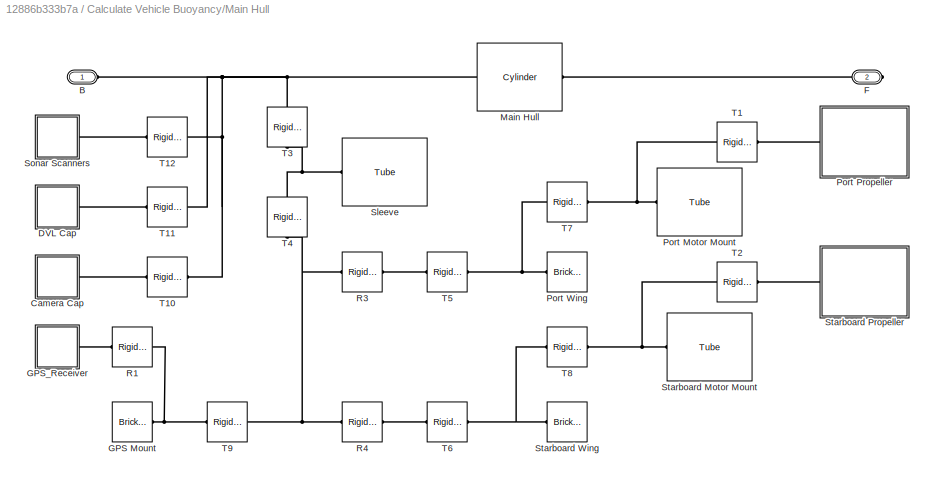
BLOCK [SubSystem] Calculate Vehicle Buoyancy/Main Hull
  Ports = [0, 0, 0, 0, 0, 1, 1]
  RequestExecContextInheritance = off
BLOCK [PMIOPort] Calculate Vehicle Buoyancy/Main Hull/B
  Side = Left
BLOCK [SubSystem] Calculate Vehicle Buoyancy/Main Hull/Camera Cap
  Ports = [0, 0, 0, 0, 0, 1]
  RequestExecContextInheritance = off
BLOCK [Reference] Calculate Vehicle Buoyancy/Main Hull/Camera Cap/Cylinder  REF=sm_lib/Body Elements/Cylindrical Solid
  Ports = [0, 0, 0, 0, 0, 0, 1]
  SourceBlock = sm_lib/Body Elements/Cylindrical Solid
  SourceProductBaseCode = MS
  SourceType = Cylindrical Solid
BLOCK [PMIOPort] Calculate Vehicle Buoyancy/Main Hull/Camera Cap/F
  Side = Left
BLOCK [Reference] Calculate Vehicle Buoyancy/Main Hull/Camera Cap/Round Cap  REF=sm_lib/Body Elements/Revolved Solid
  Ports = [0, 0, 0, 0, 0, 0, 1]
  SourceBlock = sm_lib/Body Elements/Revolved Solid
  SourceProductBaseCode = MS
  SourceType = Revolved Solid
BLOCK [Reference] Calculate Vehicle Buoyancy/Main Hull/Camera Cap/T3  REF=sm_lib/Frames and
Transforms/Rigid
Transform
  NameLocation = right
  Ports = [0, 0, 0, 0, 0, 1, 1]
  SourceBlock = sm_lib/Frames and\nTransforms/Rigid\nTransform
  SourceProductBaseCode = MS
  SourceType = Rigid\nTransform
BLOCK [SubSystem] Calculate Vehicle Buoyancy/Main Hull/DVL Cap
  Ports = [0, 0, 0, 0, 0, 1]
  RequestExecContextInheritance = off
BLOCK [Reference] Calculate Vehicle Buoyancy/Main Hull/DVL Cap/Cylinder  REF=sm_lib/Body Elements/Cylindrical Solid
  Ports = [0, 0, 0, 0, 0, 0, 1]
  SourceBlock = sm_lib/Body Elements/Cylindrical Solid
  SourceProductBaseCode = MS
  SourceType = Cylindrical Solid
BLOCK [PMIOPort] Calculate Vehicle Buoyancy/Main Hull/DVL Cap/F
  Side = Left
BLOCK [Reference] Calculate Vehicle Buoyancy/Main Hull/DVL Cap/Round Cap  REF=sm_lib/Body Elements/Revolved Solid
  Ports = [0, 0, 0, 0, 0, 0, 1]
  SourceBlock = sm_lib/Body Elements/Revolved Solid
  SourceProductBaseCode = MS
  SourceType = Revolved Solid
BLOCK [Reference] Calculate Vehicle Buoyancy/Main Hull/DVL Cap/T3  REF=sm_lib/Frames and
Transforms/Rigid
Transform
  NameLocation = right
  Ports = [0, 0, 0, 0, 0, 1, 1]
  SourceBlock = sm_lib/Frames and\nTransforms/Rigid\nTransform
  SourceProductBaseCode = MS
  SourceType = Rigid\nTransform
BLOCK [PMIOPort] Calculate Vehicle Buoyancy/Main Hull/F
  Port = 2
  Side = Right
BLOCK [Reference] Calculate Vehicle Buoyancy/Main Hull/GPS Mount  REF=sm_lib/Body Elements/Brick Solid
  Ports = [0, 0, 0, 0, 0, 0, 1]
  SourceBlock = sm_lib/Body Elements/Brick Solid
  SourceProductBaseCode = MS
  SourceType = Brick Solid
BLOCK [SubSystem] Calculate Vehicle Buoyancy/Main Hull/GPS_Receiver
  Ports = [0, 0, 0, 0, 0, 1]
  RequestExecContextInheritance = off
BLOCK [PMIOPort] Calculate Vehicle Buoyancy/Main Hull/GPS_Receiver/F
  Side = Left
BLOCK [Reference] Calculate Vehicle Buoyancy/Main Hull/GPS_Receiver/ReferenceFrame  REF=sm_lib/Frames and
Transforms/Reference
Frame
  Ports = [0, 0, 0, 0, 0, 0, 1]
  SourceBlock = sm_lib/Frames and\nTransforms/Reference\nFrame
  SourceProductBaseCode = MS
  SourceType = Reference\nFrame
BLOCK [Reference] Calculate Vehicle Buoyancy/Main Hull/GPS_Receiver/Solid  REF=sm_lib/Body Elements/File Solid
  Ports = [0, 0, 0, 0, 0, 0, 1]
  SourceBlock = sm_lib/Body Elements/File Solid
  SourceProductBaseCode = MS
  SourceType = File Solid
BLOCK [Reference] Calculate Vehicle Buoyancy/Main Hull/Main Hull  REF=AUVCustomPrimitives_Lib/Cylinder
  Ports = [0, 0, 0, 0, 0, 1, 1]
  SourceBlock = AUVCustomPrimitives_Lib/Cylinder
  SourceType = Cylinder
BLOCK [Reference] Calculate Vehicle Buoyancy/Main Hull/Port Motor Mount  REF=AUVCustomPrimitives_Lib/Tube
  Ports = [0, 0, 0, 0, 0, 1, 1]
  SourceBlock = AUVCustomPrimitives_Lib/Tube
  SourceType = Tube
BLOCK [SubSystem] Calculate Vehicle Buoyancy/Main Hull/Port Propeller
  Ports = [0, 0, 0, 0, 0, 1]
  RequestExecContextInheritance = off
BLOCK [Reference] Calculate Vehicle Buoyancy/Main Hull/Port Propeller/Align with NED  REF=sm_lib/Frames and
Transforms/Rigid
Transform
  NameLocation = left
  Ports = [0, 0, 0, 0, 0, 1, 1]
  SourceBlock = sm_lib/Frames and\nTransforms/Rigid\nTransform
  SourceProductBaseCode = MS
  SourceType = Rigid\nTransform
BLOCK [PMIOPort] Calculate Vehicle Buoyancy/Main Hull/Port Propeller/F
  Side = Left
BLOCK [SubSystem] Calculate Vehicle Buoyancy/Main Hull/Port Propeller/PortProp
  Ports = [0, 0, 0, 0, 0, 1]
  RequestExecContextInheritance = off
BLOCK [PMIOPort] Calculate Vehicle Buoyancy/Main Hull/Port Propeller/PortProp/F
  Side = Left
BLOCK [SubSystem] Calculate Vehicle Buoyancy/Main Hull/Port Propeller/PortProp/Main_Prop
  Ports = [0, 0, 0, 0, 0, 1]
  RequestExecContextInheritance = off
BLOCK [PMIOPort] Calculate Vehicle Buoyancy/Main Hull/Port Propeller/PortProp/Main_Prop/F
  Side = Left
BLOCK [Reference] Calculate Vehicle Buoyancy/Main Hull/Port Propeller/PortProp/Main_Prop/ReferenceFrame  REF=sm_lib/Frames and
Transforms/Reference
Frame
  Ports = [0, 0, 0, 0, 0, 0, 1]
  SourceBlock = sm_lib/Frames and\nTransforms/Reference\nFrame
  SourceProductBaseCode = MS
  SourceType = Reference\nFrame
BLOCK [Reference] Calculate Vehicle Buoyancy/Main Hull/Port Propeller/PortProp/Main_Prop/Solid  REF=sm_lib/Body Elements/File Solid
  Ports = [0, 0, 0, 0, 0, 0, 1]
  SourceBlock = sm_lib/Body Elements/File Solid
  SourceProductBaseCode = MS
  SourceType = File Solid
BLOCK [SubSystem] Calculate Vehicle Buoyancy/Main Hull/Port Propeller/PortProp/Main_Prop_Bearing
  Ports = [0, 0, 0, 0, 0, 1]
  RequestExecContextInheritance = off
BLOCK [PMIOPort] Calculate Vehicle Buoyancy/Main Hull/Port Propeller/PortProp/Main_Prop_Bearing/F
  Side = Left
BLOCK [Reference] Calculate Vehicle Buoyancy/Main Hull/Port Propeller/PortProp/Main_Prop_Bearing/ReferenceFrame  REF=sm_lib/Frames and
Transforms/Reference
Frame
  Ports = [0, 0, 0, 0, 0, 0, 1]
  SourceBlock = sm_lib/Frames and\nTransforms/Reference\nFrame
  SourceProductBaseCode = MS
  SourceType = Reference\nFrame
BLOCK [Reference] Calculate Vehicle Buoyancy/Main Hull/Port Propeller/PortProp/Main_Prop_Bearing/Solid  REF=sm_lib/Body Elements/File Solid
  Ports = [0, 0, 0, 0, 0, 0, 1]
  SourceBlock = sm_lib/Body Elements/File Solid
  SourceProductBaseCode = MS
  SourceType = File Solid
BLOCK [SubSystem] Calculate Vehicle Buoyancy/Main Hull/Port Propeller/PortProp/Main_Prop_Driven_Hub
  Ports = [0, 0, 0, 0, 0, 1]
  RequestExecContextInheritance = off
BLOCK [PMIOPort] Calculate Vehicle Buoyancy/Main Hull/Port Propeller/PortProp/Main_Prop_Driven_Hub/F
  Side = Left
BLOCK [Reference] Calculate Vehicle Buoyancy/Main Hull/Port Propeller/PortProp/Main_Prop_Driven_Hub/ReferenceFrame  REF=sm_lib/Frames and
Transforms/Reference
Frame
  Ports = [0, 0, 0, 0, 0, 0, 1]
  SourceBlock = sm_lib/Frames and\nTransforms/Reference\nFrame
  SourceProductBaseCode = MS
  SourceType = Reference\nFrame
BLOCK [Reference] Calculate Vehicle Buoyancy/Main Hull/Port Propeller/PortProp/Main_Prop_Driven_Hub/Solid  REF=sm_lib/Body Elements/File Solid
  Ports = [0, 0, 0, 0, 0, 0, 1]
  SourceBlock = sm_lib/Body Elements/File Solid
  SourceProductBaseCode = MS
  SourceType = File Solid
BLOCK [SubSystem] Calculate Vehicle Buoyancy/Main Hull/Port Propeller/PortProp/Main_Prop_Hub
  Ports = [0, 0, 0, 0, 0, 1]
  RequestExecContextInheritance = off
BLOCK [PMIOPort] Calculate Vehicle Buoyancy/Main Hull/Port Propeller/PortProp/Main_Prop_Hub/F
  Side = Left
BLOCK [Reference] Calculate Vehicle Buoyancy/Main Hull/Port Propeller/PortProp/Main_Prop_Hub/ReferenceFrame  REF=sm_lib/Frames and
Transforms/Reference
Frame
  Ports = [0, 0, 0, 0, 0, 0, 1]
  SourceBlock = sm_lib/Frames and\nTransforms/Reference\nFrame
  SourceProductBaseCode = MS
  SourceType = Reference\nFrame
BLOCK [Reference] Calculate Vehicle Buoyancy/Main Hull/Port Propeller/PortProp/Main_Prop_Hub/Solid  REF=sm_lib/Body Elements/File Solid
  Ports = [0, 0, 0, 0, 0, 0, 1]
  SourceBlock = sm_lib/Body Elements/File Solid
  SourceProductBaseCode = MS
  SourceType = File Solid
BLOCK [SubSystem] Calculate Vehicle Buoyancy/Main Hull/Port Propeller/PortProp/Main_Prop_Hub_Bearing
  Ports = [0, 0, 0, 0, 0, 1]
  RequestExecContextInheritance = off
BLOCK [PMIOPort] Calculate Vehicle Buoyancy/Main Hull/Port Propeller/PortProp/Main_Prop_Hub_Bearing/F
  Side = Left
BLOCK [Reference] Calculate Vehicle Buoyancy/Main Hull/Port Propeller/PortProp/Main_Prop_Hub_Bearing/ReferenceFrame  REF=sm_lib/Frames and
Transforms/Reference
Frame
  Ports = [0, 0, 0, 0, 0, 0, 1]
  SourceBlock = sm_lib/Frames and\nTransforms/Reference\nFrame
  SourceProductBaseCode = MS
  SourceType = Reference\nFrame
BLOCK [Reference] Calculate Vehicle Buoyancy/Main Hull/Port Propeller/PortProp/Main_Prop_Hub_Bearing/Solid  REF=sm_lib/Body Elements/File Solid
  Ports = [0, 0, 0, 0, 0, 0, 1]
  SourceBlock = sm_lib/Body Elements/File Solid
  SourceProductBaseCode = MS
  SourceType = File Solid
BLOCK [Reference] Calculate Vehicle Buoyancy/Main Hull/Port Propeller/PortProp/ReferenceFrame  REF=sm_lib/Frames and
Transforms/Reference
Frame
  Ports = [0, 0, 0, 0, 0, 0, 1]
  SourceBlock = sm_lib/Frames and\nTransforms/Reference\nFrame
  SourceProductBaseCode = MS
  SourceType = Reference\nFrame
BLOCK [Reference] Calculate Vehicle Buoyancy/Main Hull/Port Propeller/PortProp/T1  REF=sm_lib/Frames and
Transforms/Rigid
Transform
  Ports = [0, 0, 0, 0, 0, 1, 1]
  SourceBlock = sm_lib/Frames and\nTransforms/Rigid\nTransform
  SourceProductBaseCode = MS
  SourceType = Rigid\nTransform
BLOCK [Reference] Calculate Vehicle Buoyancy/Main Hull/Port Propeller/PortProp/T2  REF=sm_lib/Frames and
Transforms/Rigid
Transform
  Ports = [0, 0, 0, 0, 0, 1, 1]
  SourceBlock = sm_lib/Frames and\nTransforms/Rigid\nTransform
  SourceProductBaseCode = MS
  SourceType = Rigid\nTransform
BLOCK [Reference] Calculate Vehicle Buoyancy/Main Hull/Port Propeller/PortProp/T3  REF=sm_lib/Frames and
Transforms/Rigid
Transform
  Ports = [0, 0, 0, 0, 0, 1, 1]
  SourceBlock = sm_lib/Frames and\nTransforms/Rigid\nTransform
  SourceProductBaseCode = MS
  SourceType = Rigid\nTransform
BLOCK [Reference] Calculate Vehicle Buoyancy/Main Hull/Port Propeller/PortProp/T4  REF=sm_lib/Frames and
Transforms/Rigid
Transform
  Ports = [0, 0, 0, 0, 0, 1, 1]
  SourceBlock = sm_lib/Frames and\nTransforms/Rigid\nTransform
  SourceProductBaseCode = MS
  SourceType = Rigid\nTransform
BLOCK [Reference] Calculate Vehicle Buoyancy/Main Hull/Port Propeller/PortProp/T5  REF=sm_lib/Frames and
Transforms/Rigid
Transform
  Ports = [0, 0, 0, 0, 0, 1, 1]
  SourceBlock = sm_lib/Frames and\nTransforms/Rigid\nTransform
  SourceProductBaseCode = MS
  SourceType = Rigid\nTransform
BLOCK [Reference] Calculate Vehicle Buoyancy/Main Hull/Port Propeller/PortProp/T6  REF=sm_lib/Frames and
Transforms/Rigid
Transform
  Ports = [0, 0, 0, 0, 0, 1, 1]
  SourceBlock = sm_lib/Frames and\nTransforms/Rigid\nTransform
  SourceProductBaseCode = MS
  SourceType = Rigid\nTransform
BLOCK [SubSystem] Calculate Vehicle Buoyancy/Main Hull/Port Propeller/PortPropMotor
  Ports = [0, 0, 0, 0, 0, 0, 1]
  RequestExecContextInheritance = off
BLOCK [PMIOPort] Calculate Vehicle Buoyancy/Main Hull/Port Propeller/PortPropMotor/F
  Side = Right
BLOCK [SubSystem] Calculate Vehicle Buoyancy/Main Hull/Port Propeller/PortPropMotor/Main_Prop_Nozzle
  Ports = [0, 0, 0, 0, 0, 1]
  RequestExecContextInheritance = off
BLOCK [PMIOPort] Calculate Vehicle Buoyancy/Main Hull/Port Propeller/PortPropMotor/Main_Prop_Nozzle/F
  Side = Left
BLOCK [Reference] Calculate Vehicle Buoyancy/Main Hull/Port Propeller/PortPropMotor/Main_Prop_Nozzle/ReferenceFrame  REF=sm_lib/Frames and
Transforms/Reference
Frame
  Ports = [0, 0, 0, 0, 0, 0, 1]
  SourceBlock = sm_lib/Frames and\nTransforms/Reference\nFrame
  SourceProductBaseCode = MS
  SourceType = Reference\nFrame
BLOCK [Reference] Calculate Vehicle Buoyancy/Main Hull/Port Propeller/PortPropMotor/Main_Prop_Nozzle/Solid  REF=sm_lib/Body Elements/File Solid
  Ports = [0, 0, 0, 0, 0, 0, 1]
  SourceBlock = sm_lib/Body Elements/File Solid
  SourceProductBaseCode = MS
  SourceType = File Solid
BLOCK [SubSystem] Calculate Vehicle Buoyancy/Main Hull/Port Propeller/PortPropMotor/Main_Prop_Nozzle_Strut_1
  Ports = [0, 0, 0, 0, 0, 1]
  RequestExecContextInheritance = off
BLOCK [PMIOPort] Calculate Vehicle Buoyancy/Main Hull/Port Propeller/PortPropMotor/Main_Prop_Nozzle_Strut_1/F
  Side = Left
BLOCK [Reference] Calculate Vehicle Buoyancy/Main Hull/Port Propeller/PortPropMotor/Main_Prop_Nozzle_Strut_1/ReferenceFrame  REF=sm_lib/Frames and
Transforms/Reference
Frame
  Ports = [0, 0, 0, 0, 0, 0, 1]
  SourceBlock = sm_lib/Frames and\nTransforms/Reference\nFrame
  SourceProductBaseCode = MS
  SourceType = Reference\nFrame
BLOCK [Reference] Calculate Vehicle Buoyancy/Main Hull/Port Propeller/PortPropMotor/Main_Prop_Nozzle_Strut_1/Solid  REF=sm_lib/Body Elements/File Solid
  Ports = [0, 0, 0, 0, 0, 0, 1]
  SourceBlock = sm_lib/Body Elements/File Solid
  SourceProductBaseCode = MS
  SourceType = File Solid
BLOCK [SubSystem] Calculate Vehicle Buoyancy/Main Hull/Port Propeller/PortPropMotor/Main_Prop_Nozzle_Strut_2
  Ports = [0, 0, 0, 0, 0, 1]
  RequestExecContextInheritance = off
BLOCK [PMIOPort] Calculate Vehicle Buoyancy/Main Hull/Port Propeller/PortPropMotor/Main_Prop_Nozzle_Strut_2/F
  Side = Left
BLOCK [Reference] Calculate Vehicle Buoyancy/Main Hull/Port Propeller/PortPropMotor/Main_Prop_Nozzle_Strut_2/ReferenceFrame  REF=sm_lib/Frames and
Transforms/Reference
Frame
  Ports = [0, 0, 0, 0, 0, 0, 1]
  SourceBlock = sm_lib/Frames and\nTransforms/Reference\nFrame
  SourceProductBaseCode = MS
  SourceType = Reference\nFrame
BLOCK [Reference] Calculate Vehicle Buoyancy/Main Hull/Port Propeller/PortPropMotor/Main_Prop_Nozzle_Strut_2/Solid  REF=sm_lib/Body Elements/File Solid
  Ports = [0, 0, 0, 0, 0, 0, 1]
  SourceBlock = sm_lib/Body Elements/File Solid
  SourceProductBaseCode = MS
  SourceType = File Solid
BLOCK [SubSystem] Calculate Vehicle Buoyancy/Main Hull/Port Propeller/PortPropMotor/Main_Prop_Nozzle_Strut_3
  Ports = [0, 0, 0, 0, 0, 1]
  RequestExecContextInheritance = off
BLOCK [PMIOPort] Calculate Vehicle Buoyancy/Main Hull/Port Propeller/PortPropMotor/Main_Prop_Nozzle_Strut_3/F
  Side = Left
BLOCK [Reference] Calculate Vehicle Buoyancy/Main Hull/Port Propeller/PortPropMotor/Main_Prop_Nozzle_Strut_3/ReferenceFrame  REF=sm_lib/Frames and
Transforms/Reference
Frame
  Ports = [0, 0, 0, 0, 0, 0, 1]
  SourceBlock = sm_lib/Frames and\nTransforms/Reference\nFrame
  SourceProductBaseCode = MS
  SourceType = Reference\nFrame
BLOCK [Reference] Calculate Vehicle Buoyancy/Main Hull/Port Propeller/PortPropMotor/Main_Prop_Nozzle_Strut_3/Solid  REF=sm_lib/Body Elements/File Solid
  Ports = [0, 0, 0, 0, 0, 0, 1]
  SourceBlock = sm_lib/Body Elements/File Solid
  SourceProductBaseCode = MS
  SourceType = File Solid
BLOCK [SubSystem] Calculate Vehicle Buoyancy/Main Hull/Port Propeller/PortPropMotor/Main_Prop_Shoulder_Bolt
  Ports = [0, 0, 0, 0, 0, 1]
  RequestExecContextInheritance = off
BLOCK [PMIOPort] Calculate Vehicle Buoyancy/Main Hull/Port Propeller/PortPropMotor/Main_Prop_Shoulder_Bolt/F
  Side = Left
BLOCK [Reference] Calculate Vehicle Buoyancy/Main Hull/Port Propeller/PortPropMotor/Main_Prop_Shoulder_Bolt/ReferenceFrame  REF=sm_lib/Frames and
Transforms/Reference
Frame
  Ports = [0, 0, 0, 0, 0, 0, 1]
  SourceBlock = sm_lib/Frames and\nTransforms/Reference\nFrame
  SourceProductBaseCode = MS
  SourceType = Reference\nFrame
BLOCK [Reference] Calculate Vehicle Buoyancy/Main Hull/Port Propeller/PortPropMotor/Main_Prop_Shoulder_Bolt/Solid  REF=sm_lib/Body Elements/File Solid
  Ports = [0, 0, 0, 0, 0, 0, 1]
  SourceBlock = sm_lib/Body Elements/File Solid
  SourceProductBaseCode = MS
  SourceType = File Solid
BLOCK [SubSystem] Calculate Vehicle Buoyancy/Main Hull/Port Propeller/PortPropMotor/Main_Prop_Washer
  Ports = [0, 0, 0, 0, 0, 1]
  RequestExecContextInheritance = off
BLOCK [PMIOPort] Calculate Vehicle Buoyancy/Main Hull/Port Propeller/PortPropMotor/Main_Prop_Washer/F
  Side = Left
BLOCK [Reference] Calculate Vehicle Buoyancy/Main Hull/Port Propeller/PortPropMotor/Main_Prop_Washer/ReferenceFrame  REF=sm_lib/Frames and
Transforms/Reference
Frame
  Ports = [0, 0, 0, 0, 0, 0, 1]
  SourceBlock = sm_lib/Frames and\nTransforms/Reference\nFrame
  SourceProductBaseCode = MS
  SourceType = Reference\nFrame
BLOCK [Reference] Calculate Vehicle Buoyancy/Main Hull/Port Propeller/PortPropMotor/Main_Prop_Washer/Solid  REF=sm_lib/Body Elements/File Solid
  Ports = [0, 0, 0, 0, 0, 0, 1]
  SourceBlock = sm_lib/Body Elements/File Solid
  SourceProductBaseCode = MS
  SourceType = File Solid
BLOCK [SubSystem] Calculate Vehicle Buoyancy/Main Hull/Port Propeller/PortPropMotor/Motor_Connector_Body
  Ports = [0, 0, 0, 0, 0, 1]
  RequestExecContextInheritance = off
BLOCK [PMIOPort] Calculate Vehicle Buoyancy/Main Hull/Port Propeller/PortPropMotor/Motor_Connector_Body/F
  Side = Left
BLOCK [Reference] Calculate Vehicle Buoyancy/Main Hull/Port Propeller/PortPropMotor/Motor_Connector_Body/ReferenceFrame  REF=sm_lib/Frames and
Transforms/Reference
Frame
  Ports = [0, 0, 0, 0, 0, 0, 1]
  SourceBlock = sm_lib/Frames and\nTransforms/Reference\nFrame
  SourceProductBaseCode = MS
  SourceType = Reference\nFrame
BLOCK [Reference] Calculate Vehicle Buoyancy/Main Hull/Port Propeller/PortPropMotor/Motor_Connector_Body/Solid  REF=sm_lib/Body Elements/File Solid
  Ports = [0, 0, 0, 0, 0, 0, 1]
  SourceBlock = sm_lib/Body Elements/File Solid
  SourceProductBaseCode = MS
  SourceType = File Solid
BLOCK [SubSystem] Calculate Vehicle Buoyancy/Main Hull/Port Propeller/PortPropMotor/Motor_Connector_Molding
  Ports = [0, 0, 0, 0, 0, 1]
  RequestExecContextInheritance = off
BLOCK [PMIOPort] Calculate Vehicle Buoyancy/Main Hull/Port Propeller/PortPropMotor/Motor_Connector_Molding/F
  Side = Left
BLOCK [Reference] Calculate Vehicle Buoyancy/Main Hull/Port Propeller/PortPropMotor/Motor_Connector_Molding/ReferenceFrame  REF=sm_lib/Frames and
Transforms/Reference
Frame
  Ports = [0, 0, 0, 0, 0, 0, 1]
  SourceBlock = sm_lib/Frames and\nTransforms/Reference\nFrame
  SourceProductBaseCode = MS
  SourceType = Reference\nFrame
BLOCK [Reference] Calculate Vehicle Buoyancy/Main Hull/Port Propeller/PortPropMotor/Motor_Connector_Molding/Solid  REF=sm_lib/Body Elements/File Solid
  Ports = [0, 0, 0, 0, 0, 0, 1]
  SourceBlock = sm_lib/Body Elements/File Solid
  SourceProductBaseCode = MS
  SourceType = File Solid
BLOCK [SubSystem] Calculate Vehicle Buoyancy/Main Hull/Port Propeller/PortPropMotor/Motor_Gear_Housing
  Ports = [0, 0, 0, 0, 0, 1]
  RequestExecContextInheritance = off
BLOCK [PMIOPort] Calculate Vehicle Buoyancy/Main Hull/Port Propeller/PortPropMotor/Motor_Gear_Housing/F
  Side = Left
BLOCK [Reference] Calculate Vehicle Buoyancy/Main Hull/Port Propeller/PortPropMotor/Motor_Gear_Housing/ReferenceFrame  REF=sm_lib/Frames and
Transforms/Reference
Frame
  Ports = [0, 0, 0, 0, 0, 0, 1]
  SourceBlock = sm_lib/Frames and\nTransforms/Reference\nFrame
  SourceProductBaseCode = MS
  SourceType = Reference\nFrame
BLOCK [Reference] Calculate Vehicle Buoyancy/Main Hull/Port Propeller/PortPropMotor/Motor_Gear_Housing/Solid  REF=sm_lib/Body Elements/File Solid
  Ports = [0, 0, 0, 0, 0, 0, 1]
  SourceBlock = sm_lib/Body Elements/File Solid
  SourceProductBaseCode = MS
  SourceType = File Solid
BLOCK [SubSystem] Calculate Vehicle Buoyancy/Main Hull/Port Propeller/PortPropMotor/Motor_Housing
  Ports = [0, 0, 0, 0, 0, 1]
  RequestExecContextInheritance = off
BLOCK [PMIOPort] Calculate Vehicle Buoyancy/Main Hull/Port Propeller/PortPropMotor/Motor_Housing/F
  Side = Left
BLOCK [Reference] Calculate Vehicle Buoyancy/Main Hull/Port Propeller/PortPropMotor/Motor_Housing/ReferenceFrame  REF=sm_lib/Frames and
Transforms/Reference
Frame
  Ports = [0, 0, 0, 0, 0, 0, 1]
  SourceBlock = sm_lib/Frames and\nTransforms/Reference\nFrame
  SourceProductBaseCode = MS
  SourceType = Reference\nFrame
BLOCK [Reference] Calculate Vehicle Buoyancy/Main Hull/Port Propeller/PortPropMotor/Motor_Housing/Solid  REF=sm_lib/Body Elements/File Solid
  Ports = [0, 0, 0, 0, 0, 0, 1]
  SourceBlock = sm_lib/Body Elements/File Solid
  SourceProductBaseCode = MS
  SourceType = File Solid
BLOCK [SubSystem] Calculate Vehicle Buoyancy/Main Hull/Port Propeller/PortPropMotor/Motor_Housing_Endbell
  Ports = [0, 0, 0, 0, 0, 1]
  RequestExecContextInheritance = off
BLOCK [PMIOPort] Calculate Vehicle Buoyancy/Main Hull/Port Propeller/PortPropMotor/Motor_Housing_Endbell/F
  Side = Left
BLOCK [Reference] Calculate Vehicle Buoyancy/Main Hull/Port Propeller/PortPropMotor/Motor_Housing_Endbell/ReferenceFrame  REF=sm_lib/Frames and
Transforms/Reference
Frame
  Ports = [0, 0, 0, 0, 0, 0, 1]
  SourceBlock = sm_lib/Frames and\nTransforms/Reference\nFrame
  SourceProductBaseCode = MS
  SourceType = Reference\nFrame
BLOCK [Reference] Calculate Vehicle Buoyancy/Main Hull/Port Propeller/PortPropMotor/Motor_Housing_Endbell/Solid  REF=sm_lib/Body Elements/File Solid
  Ports = [0, 0, 0, 0, 0, 0, 1]
  SourceBlock = sm_lib/Body Elements/File Solid
  SourceProductBaseCode = MS
  SourceType = File Solid
BLOCK [SubSystem] Calculate Vehicle Buoyancy/Main Hull/Port Propeller/PortPropMotor/Motor_Membrane_Seal
  Ports = [0, 0, 0, 0, 0, 1]
  RequestExecContextInheritance = off
BLOCK [PMIOPort] Calculate Vehicle Buoyancy/Main Hull/Port Propeller/PortPropMotor/Motor_Membrane_Seal/F
  Side = Left
BLOCK [Reference] Calculate Vehicle Buoyancy/Main Hull/Port Propeller/PortPropMotor/Motor_Membrane_Seal/ReferenceFrame  REF=sm_lib/Frames and
Transforms/Reference
Frame
  Ports = [0, 0, 0, 0, 0, 0, 1]
  SourceBlock = sm_lib/Frames and\nTransforms/Reference\nFrame
  SourceProductBaseCode = MS
  SourceType = Reference\nFrame
BLOCK [Reference] Calculate Vehicle Buoyancy/Main Hull/Port Propeller/PortPropMotor/Motor_Membrane_Seal/Solid  REF=sm_lib/Body Elements/File Solid
  Ports = [0, 0, 0, 0, 0, 0, 1]
  SourceBlock = sm_lib/Body Elements/File Solid
  SourceProductBaseCode = MS
  SourceType = File Solid
BLOCK [Reference] Calculate Vehicle Buoyancy/Main Hull/Port Propeller/PortPropMotor/ReferenceFrame  REF=sm_lib/Frames and
Transforms/Reference
Frame
  Ports = [0, 0, 0, 0, 0, 0, 1]
  SourceBlock = sm_lib/Frames and\nTransforms/Reference\nFrame
  SourceProductBaseCode = MS
  SourceType = Reference\nFrame
BLOCK [Reference] Calculate Vehicle Buoyancy/Main Hull/Port Propeller/PortPropMotor/T1  REF=sm_lib/Frames and
Transforms/Rigid
Transform
  Ports = [0, 0, 0, 0, 0, 1, 1]
  SourceBlock = sm_lib/Frames and\nTransforms/Rigid\nTransform
  SourceProductBaseCode = MS
  SourceType = Rigid\nTransform
BLOCK [Reference] Calculate Vehicle Buoyancy/Main Hull/Port Propeller/PortPropMotor/T10  REF=sm_lib/Frames and
Transforms/Rigid
Transform
  Ports = [0, 0, 0, 0, 0, 1, 1]
  SourceBlock = sm_lib/Frames and\nTransforms/Rigid\nTransform
  SourceProductBaseCode = MS
  SourceType = Rigid\nTransform
BLOCK [Reference] Calculate Vehicle Buoyancy/Main Hull/Port Propeller/PortPropMotor/T11  REF=sm_lib/Frames and
Transforms/Rigid
Transform
  Ports = [0, 0, 0, 0, 0, 1, 1]
  SourceBlock = sm_lib/Frames and\nTransforms/Rigid\nTransform
  SourceProductBaseCode = MS
  SourceType = Rigid\nTransform
BLOCK [Reference] Calculate Vehicle Buoyancy/Main Hull/Port Propeller/PortPropMotor/T12  REF=sm_lib/Frames and
Transforms/Rigid
Transform
  Ports = [0, 0, 0, 0, 0, 1, 1]
  SourceBlock = sm_lib/Frames and\nTransforms/Rigid\nTransform
  SourceProductBaseCode = MS
  SourceType = Rigid\nTransform
BLOCK [Reference] Calculate Vehicle Buoyancy/Main Hull/Port Propeller/PortPropMotor/T13  REF=sm_lib/Frames and
Transforms/Rigid
Transform
  Ports = [0, 0, 0, 0, 0, 1, 1]
  SourceBlock = sm_lib/Frames and\nTransforms/Rigid\nTransform
  SourceProductBaseCode = MS
  SourceType = Rigid\nTransform
BLOCK [Reference] Calculate Vehicle Buoyancy/Main Hull/Port Propeller/PortPropMotor/T2  REF=sm_lib/Frames and
Transforms/Rigid
Transform
  Ports = [0, 0, 0, 0, 0, 1, 1]
  SourceBlock = sm_lib/Frames and\nTransforms/Rigid\nTransform
  SourceProductBaseCode = MS
  SourceType = Rigid\nTransform
BLOCK [Reference] Calculate Vehicle Buoyancy/Main Hull/Port Propeller/PortPropMotor/T3  REF=sm_lib/Frames and
Transforms/Rigid
Transform
  Ports = [0, 0, 0, 0, 0, 1, 1]
  SourceBlock = sm_lib/Frames and\nTransforms/Rigid\nTransform
  SourceProductBaseCode = MS
  SourceType = Rigid\nTransform
BLOCK [Reference] Calculate Vehicle Buoyancy/Main Hull/Port Propeller/PortPropMotor/T4  REF=sm_lib/Frames and
Transforms/Rigid
Transform
  Ports = [0, 0, 0, 0, 0, 1, 1]
  SourceBlock = sm_lib/Frames and\nTransforms/Rigid\nTransform
  SourceProductBaseCode = MS
  SourceType = Rigid\nTransform
BLOCK [Reference] Calculate Vehicle Buoyancy/Main Hull/Port Propeller/PortPropMotor/T5  REF=sm_lib/Frames and
Transforms/Rigid
Transform
  Ports = [0, 0, 0, 0, 0, 1, 1]
  SourceBlock = sm_lib/Frames and\nTransforms/Rigid\nTransform
  SourceProductBaseCode = MS
  SourceType = Rigid\nTransform
BLOCK [Reference] Calculate Vehicle Buoyancy/Main Hull/Port Propeller/PortPropMotor/T6  REF=sm_lib/Frames and
Transforms/Rigid
Transform
  Ports = [0, 0, 0, 0, 0, 1, 1]
  SourceBlock = sm_lib/Frames and\nTransforms/Rigid\nTransform
  SourceProductBaseCode = MS
  SourceType = Rigid\nTransform
BLOCK [Reference] Calculate Vehicle Buoyancy/Main Hull/Port Propeller/PortPropMotor/T7  REF=sm_lib/Frames and
Transforms/Rigid
Transform
  Ports = [0, 0, 0, 0, 0, 1, 1]
  SourceBlock = sm_lib/Frames and\nTransforms/Rigid\nTransform
  SourceProductBaseCode = MS
  SourceType = Rigid\nTransform
BLOCK [Reference] Calculate Vehicle Buoyancy/Main Hull/Port Propeller/PortPropMotor/T8  REF=sm_lib/Frames and
Transforms/Rigid
Transform
  Ports = [0, 0, 0, 0, 0, 1, 1]
  SourceBlock = sm_lib/Frames and\nTransforms/Rigid\nTransform
  SourceProductBaseCode = MS
  SourceType = Rigid\nTransform
BLOCK [Reference] Calculate Vehicle Buoyancy/Main Hull/Port Propeller/PortPropMotor/T9  REF=sm_lib/Frames and
Transforms/Rigid
Transform
  Ports = [0, 0, 0, 0, 0, 1, 1]
  SourceBlock = sm_lib/Frames and\nTransforms/Rigid\nTransform
  SourceProductBaseCode = MS
  SourceType = Rigid\nTransform
BLOCK [Reference] Calculate Vehicle Buoyancy/Main Hull/Port Propeller/R1  REF=sm_lib/Joints/Revolute Joint
  Ports = [0, 0, 0, 0, 0, 1, 1]
  SourceBlock = sm_lib/Joints/Revolute Joint
  SourceProductBaseCode = MS
  SourceType = Revolute Joint
BLOCK [Reference] Calculate Vehicle Buoyancy/Main Hull/Port Propeller/T1  REF=sm_lib/Frames and
Transforms/Rigid
Transform
  Ports = [0, 0, 0, 0, 0, 1, 1]
  SourceBlock = sm_lib/Frames and\nTransforms/Rigid\nTransform
  SourceProductBaseCode = MS
  SourceType = Rigid\nTransform
BLOCK [Reference] Calculate Vehicle Buoyancy/Main Hull/Port Wing  REF=sm_lib/Body Elements/Brick Solid
  Ports = [0, 0, 0, 0, 0, 0, 1]
  SourceBlock = sm_lib/Body Elements/Brick Solid
  SourceProductBaseCode = MS
  SourceType = Brick Solid
BLOCK [Reference] Calculate Vehicle Buoyancy/Main Hull/R1  REF=sm_lib/Frames and
Transforms/Rigid
Transform
  Ports = [0, 0, 0, 0, 0, 1, 1]
  SourceBlock = sm_lib/Frames and\nTransforms/Rigid\nTransform
  SourceProductBaseCode = MS
  SourceType = Rigid\nTransform
BLOCK [Reference] Calculate Vehicle Buoyancy/Main Hull/R3  REF=sm_lib/Frames and
Transforms/Rigid
Transform
  Ports = [0, 0, 0, 0, 0, 1, 1]
  SourceBlock = sm_lib/Frames and\nTransforms/Rigid\nTransform
  SourceProductBaseCode = MS
  SourceType = Rigid\nTransform
BLOCK [Reference] Calculate Vehicle Buoyancy/Main Hull/R4  REF=sm_lib/Frames and
Transforms/Rigid
Transform
  Ports = [0, 0, 0, 0, 0, 1, 1]
  SourceBlock = sm_lib/Frames and\nTransforms/Rigid\nTransform
  SourceProductBaseCode = MS
  SourceType = Rigid\nTransform
BLOCK [Reference] Calculate Vehicle Buoyancy/Main Hull/Sleeve  REF=AUVCustomPrimitives_Lib/Tube
  Ports = [0, 0, 0, 0, 0, 1, 1]
  SourceBlock = AUVCustomPrimitives_Lib/Tube
  SourceType = Tube
BLOCK [SubSystem] Calculate Vehicle Buoyancy/Main Hull/Sonar Scanners
  Ports = [0, 0, 0, 0, 0, 1]
  RequestExecContextInheritance = off
BLOCK [PMIOPort] Calculate Vehicle Buoyancy/Main Hull/Sonar Scanners/F
  Side = Left
BLOCK [Reference] Calculate Vehicle Buoyancy/Main Hull/Sonar Scanners/Marker1  REF=sm_lib/Body Elements/Revolved Solid
  Ports = [0, 0, 0, 0, 0, 0, 1]
  SourceBlock = sm_lib/Body Elements/Revolved Solid
  SourceProductBaseCode = MS
  SourceType = Revolved Solid
BLOCK [Reference] Calculate Vehicle Buoyancy/Main Hull/Sonar Scanners/Marker2  REF=sm_lib/Body Elements/Revolved Solid
  Ports = [0, 0, 0, 0, 0, 0, 1]
  SourceBlock = sm_lib/Body Elements/Revolved Solid
  SourceProductBaseCode = MS
  SourceType = Revolved Solid
BLOCK [Reference] Calculate Vehicle Buoyancy/Main Hull/Sonar Scanners/R1  REF=sm_lib/Frames and
Transforms/Rigid
Transform
  NameLocation = right
  Ports = [0, 0, 0, 0, 0, 1, 1]
  SourceBlock = sm_lib/Frames and\nTransforms/Rigid\nTransform
  SourceProductBaseCode = MS
  SourceType = Rigid\nTransform
BLOCK [Reference] Calculate Vehicle Buoyancy/Main Hull/Sonar Scanners/R2  REF=sm_lib/Frames and
Transforms/Rigid
Transform
  NameLocation = right
  Ports = [0, 0, 0, 0, 0, 1, 1]
  SourceBlock = sm_lib/Frames and\nTransforms/Rigid\nTransform
  SourceProductBaseCode = MS
  SourceType = Rigid\nTransform
BLOCK [Reference] Calculate Vehicle Buoyancy/Main Hull/Sonar Scanners/R3  REF=sm_lib/Frames and
Transforms/Rigid
Transform
  Ports = [0, 0, 0, 0, 0, 1, 1]
  SourceBlock = sm_lib/Frames and\nTransforms/Rigid\nTransform
  SourceProductBaseCode = MS
  SourceType = Rigid\nTransform
BLOCK [Reference] Calculate Vehicle Buoyancy/Main Hull/Starboard Motor Mount  REF=AUVCustomPrimitives_Lib/Tube
  Ports = [0, 0, 0, 0, 0, 1, 1]
  SourceBlock = AUVCustomPrimitives_Lib/Tube
  SourceType = Tube
BLOCK [SubSystem] Calculate Vehicle Buoyancy/Main Hull/Starboard Propeller
  Ports = [0, 0, 0, 0, 0, 1]
  RequestExecContextInheritance = off
BLOCK [Reference] Calculate Vehicle Buoyancy/Main Hull/Starboard Propeller/Align with NED  REF=sm_lib/Frames and
Transforms/Rigid
Transform
  NameLocation = left
  Ports = [0, 0, 0, 0, 0, 1, 1]
  SourceBlock = sm_lib/Frames and\nTransforms/Rigid\nTransform
  SourceProductBaseCode = MS
  SourceType = Rigid\nTransform
BLOCK [PMIOPort] Calculate Vehicle Buoyancy/Main Hull/Starboard Propeller/F
  Side = Left
BLOCK [Reference] Calculate Vehicle Buoyancy/Main Hull/Starboard Propeller/R1  REF=sm_lib/Joints/Revolute Joint
  Ports = [0, 0, 0, 0, 0, 1, 1]
  SourceBlock = sm_lib/Joints/Revolute Joint
  SourceProductBaseCode = MS
  SourceType = Revolute Joint
BLOCK [SubSystem] Calculate Vehicle Buoyancy/Main Hull/Starboard Propeller/StarboardProp
  Ports = [0, 0, 0, 0, 0, 1]
  RequestExecContextInheritance = off
BLOCK [PMIOPort] Calculate Vehicle Buoyancy/Main Hull/Starboard Propeller/StarboardProp/F
  Side = Left
BLOCK [SubSystem] Calculate Vehicle Buoyancy/Main Hull/Starboard Propeller/StarboardProp/Main_Prop
  Ports = [0, 0, 0, 0, 0, 1]
  RequestExecContextInheritance = off
BLOCK [PMIOPort] Calculate Vehicle Buoyancy/Main Hull/Starboard Propeller/StarboardProp/Main_Prop/F
  Side = Left
BLOCK [Reference] Calculate Vehicle Buoyancy/Main Hull/Starboard Propeller/StarboardProp/Main_Prop/ReferenceFrame  REF=sm_lib/Frames and
Transforms/Reference
Frame
  Ports = [0, 0, 0, 0, 0, 0, 1]
  SourceBlock = sm_lib/Frames and\nTransforms/Reference\nFrame
  SourceProductBaseCode = MS
  SourceType = Reference\nFrame
BLOCK [Reference] Calculate Vehicle Buoyancy/Main Hull/Starboard Propeller/StarboardProp/Main_Prop/Solid  REF=sm_lib/Body Elements/File Solid
  Ports = [0, 0, 0, 0, 0, 0, 1]
  SourceBlock = sm_lib/Body Elements/File Solid
  SourceProductBaseCode = MS
  SourceType = File Solid
BLOCK [SubSystem] Calculate Vehicle Buoyancy/Main Hull/Starboard Propeller/StarboardProp/Main_Prop_Bearing
  Ports = [0, 0, 0, 0, 0, 1]
  RequestExecContextInheritance = off
BLOCK [PMIOPort] Calculate Vehicle Buoyancy/Main Hull/Starboard Propeller/StarboardProp/Main_Prop_Bearing/F
  Side = Left
BLOCK [Reference] Calculate Vehicle Buoyancy/Main Hull/Starboard Propeller/StarboardProp/Main_Prop_Bearing/ReferenceFrame  REF=sm_lib/Frames and
Transforms/Reference
Frame
  Ports = [0, 0, 0, 0, 0, 0, 1]
  SourceBlock = sm_lib/Frames and\nTransforms/Reference\nFrame
  SourceProductBaseCode = MS
  SourceType = Reference\nFrame
BLOCK [Reference] Calculate Vehicle Buoyancy/Main Hull/Starboard Propeller/StarboardProp/Main_Prop_Bearing/Solid  REF=sm_lib/Body Elements/File Solid
  Ports = [0, 0, 0, 0, 0, 0, 1]
  SourceBlock = sm_lib/Body Elements/File Solid
  SourceProductBaseCode = MS
  SourceType = File Solid
BLOCK [SubSystem] Calculate Vehicle Buoyancy/Main Hull/Starboard Propeller/StarboardProp/Main_Prop_Driven_Hub
  Ports = [0, 0, 0, 0, 0, 1]
  RequestExecContextInheritance = off
BLOCK [PMIOPort] Calculate Vehicle Buoyancy/Main Hull/Starboard Propeller/StarboardProp/Main_Prop_Driven_Hub/F
  Side = Left
BLOCK [Reference] Calculate Vehicle Buoyancy/Main Hull/Starboard Propeller/StarboardProp/Main_Prop_Driven_Hub/ReferenceFrame  REF=sm_lib/Frames and
Transforms/Reference
Frame
  Ports = [0, 0, 0, 0, 0, 0, 1]
  SourceBlock = sm_lib/Frames and\nTransforms/Reference\nFrame
  SourceProductBaseCode = MS
  SourceType = Reference\nFrame
BLOCK [Reference] Calculate Vehicle Buoyancy/Main Hull/Starboard Propeller/StarboardProp/Main_Prop_Driven_Hub/Solid  REF=sm_lib/Body Elements/File Solid
  Ports = [0, 0, 0, 0, 0, 0, 1]
  SourceBlock = sm_lib/Body Elements/File Solid
  SourceProductBaseCode = MS
  SourceType = File Solid
BLOCK [SubSystem] Calculate Vehicle Buoyancy/Main Hull/Starboard Propeller/StarboardProp/Main_Prop_Hub
  Ports = [0, 0, 0, 0, 0, 1]
  RequestExecContextInheritance = off
BLOCK [PMIOPort] Calculate Vehicle Buoyancy/Main Hull/Starboard Propeller/StarboardProp/Main_Prop_Hub/F
  Side = Left
BLOCK [Reference] Calculate Vehicle Buoyancy/Main Hull/Starboard Propeller/StarboardProp/Main_Prop_Hub/ReferenceFrame  REF=sm_lib/Frames and
Transforms/Reference
Frame
  Ports = [0, 0, 0, 0, 0, 0, 1]
  SourceBlock = sm_lib/Frames and\nTransforms/Reference\nFrame
  SourceProductBaseCode = MS
  SourceType = Reference\nFrame
BLOCK [Reference] Calculate Vehicle Buoyancy/Main Hull/Starboard Propeller/StarboardProp/Main_Prop_Hub/Solid  REF=sm_lib/Body Elements/File Solid
  Ports = [0, 0, 0, 0, 0, 0, 1]
  SourceBlock = sm_lib/Body Elements/File Solid
  SourceProductBaseCode = MS
  SourceType = File Solid
BLOCK [SubSystem] Calculate Vehicle Buoyancy/Main Hull/Starboard Propeller/StarboardProp/Main_Prop_Hub_Bearing
  Ports = [0, 0, 0, 0, 0, 1]
  RequestExecContextInheritance = off
BLOCK [PMIOPort] Calculate Vehicle Buoyancy/Main Hull/Starboard Propeller/StarboardProp/Main_Prop_Hub_Bearing/F
  Side = Left
BLOCK [Reference] Calculate Vehicle Buoyancy/Main Hull/Starboard Propeller/StarboardProp/Main_Prop_Hub_Bearing/ReferenceFrame  REF=sm_lib/Frames and
Transforms/Reference
Frame
  Ports = [0, 0, 0, 0, 0, 0, 1]
  SourceBlock = sm_lib/Frames and\nTransforms/Reference\nFrame
  SourceProductBaseCode = MS
  SourceType = Reference\nFrame
BLOCK [Reference] Calculate Vehicle Buoyancy/Main Hull/Starboard Propeller/StarboardProp/Main_Prop_Hub_Bearing/Solid  REF=sm_lib/Body Elements/File Solid
  Ports = [0, 0, 0, 0, 0, 0, 1]
  SourceBlock = sm_lib/Body Elements/File Solid
  SourceProductBaseCode = MS
  SourceType = File Solid
BLOCK [Reference] Calculate Vehicle Buoyancy/Main Hull/Starboard Propeller/StarboardProp/ReferenceFrame  REF=sm_lib/Frames and
Transforms/Reference
Frame
  Ports = [0, 0, 0, 0, 0, 0, 1]
  SourceBlock = sm_lib/Frames and\nTransforms/Reference\nFrame
  SourceProductBaseCode = MS
  SourceType = Reference\nFrame
BLOCK [Reference] Calculate Vehicle Buoyancy/Main Hull/Starboard Propeller/StarboardProp/T1  REF=sm_lib/Frames and
Transforms/Rigid
Transform
  Ports = [0, 0, 0, 0, 0, 1, 1]
  SourceBlock = sm_lib/Frames and\nTransforms/Rigid\nTransform
  SourceProductBaseCode = MS
  SourceType = Rigid\nTransform
BLOCK [Reference] Calculate Vehicle Buoyancy/Main Hull/Starboard Propeller/StarboardProp/T2  REF=sm_lib/Frames and
Transforms/Rigid
Transform
  Ports = [0, 0, 0, 0, 0, 1, 1]
  SourceBlock = sm_lib/Frames and\nTransforms/Rigid\nTransform
  SourceProductBaseCode = MS
  SourceType = Rigid\nTransform
BLOCK [Reference] Calculate Vehicle Buoyancy/Main Hull/Starboard Propeller/StarboardProp/T3  REF=sm_lib/Frames and
Transforms/Rigid
Transform
  Ports = [0, 0, 0, 0, 0, 1, 1]
  SourceBlock = sm_lib/Frames and\nTransforms/Rigid\nTransform
  SourceProductBaseCode = MS
  SourceType = Rigid\nTransform
BLOCK [Reference] Calculate Vehicle Buoyancy/Main Hull/Starboard Propeller/StarboardProp/T4  REF=sm_lib/Frames and
Transforms/Rigid
Transform
  Ports = [0, 0, 0, 0, 0, 1, 1]
  SourceBlock = sm_lib/Frames and\nTransforms/Rigid\nTransform
  SourceProductBaseCode = MS
  SourceType = Rigid\nTransform
BLOCK [Reference] Calculate Vehicle Buoyancy/Main Hull/Starboard Propeller/StarboardProp/T5  REF=sm_lib/Frames and
Transforms/Rigid
Transform
  Ports = [0, 0, 0, 0, 0, 1, 1]
  SourceBlock = sm_lib/Frames and\nTransforms/Rigid\nTransform
  SourceProductBaseCode = MS
  SourceType = Rigid\nTransform
BLOCK [Reference] Calculate Vehicle Buoyancy/Main Hull/Starboard Propeller/StarboardProp/T6  REF=sm_lib/Frames and
Transforms/Rigid
Transform
  Ports = [0, 0, 0, 0, 0, 1, 1]
  SourceBlock = sm_lib/Frames and\nTransforms/Rigid\nTransform
  SourceProductBaseCode = MS
  SourceType = Rigid\nTransform
BLOCK [SubSystem] Calculate Vehicle Buoyancy/Main Hull/Starboard Propeller/StarboardPropMotor
  Ports = [0, 0, 0, 0, 0, 0, 1]
  RequestExecContextInheritance = off
BLOCK [PMIOPort] Calculate Vehicle Buoyancy/Main Hull/Starboard Propeller/StarboardPropMotor/F
  Side = Right
BLOCK [SubSystem] Calculate Vehicle Buoyancy/Main Hull/Starboard Propeller/StarboardPropMotor/Main_Prop_Nozzle
  Ports = [0, 0, 0, 0, 0, 1]
  RequestExecContextInheritance = off
BLOCK [PMIOPort] Calculate Vehicle Buoyancy/Main Hull/Starboard Propeller/StarboardPropMotor/Main_Prop_Nozzle/F
  Side = Left
BLOCK [Reference] Calculate Vehicle Buoyancy/Main Hull/Starboard Propeller/StarboardPropMotor/Main_Prop_Nozzle/ReferenceFrame  REF=sm_lib/Frames and
Transforms/Reference
Frame
  Ports = [0, 0, 0, 0, 0, 0, 1]
  SourceBlock = sm_lib/Frames and\nTransforms/Reference\nFrame
  SourceProductBaseCode = MS
  SourceType = Reference\nFrame
BLOCK [Reference] Calculate Vehicle Buoyancy/Main Hull/Starboard Propeller/StarboardPropMotor/Main_Prop_Nozzle/Solid  REF=sm_lib/Body Elements/File Solid
  Ports = [0, 0, 0, 0, 0, 0, 1]
  SourceBlock = sm_lib/Body Elements/File Solid
  SourceProductBaseCode = MS
  SourceType = File Solid
BLOCK [SubSystem] Calculate Vehicle Buoyancy/Main Hull/Starboard Propeller/StarboardPropMotor/Main_Prop_Nozzle_Strut_1
  Ports = [0, 0, 0, 0, 0, 1]
  RequestExecContextInheritance = off
BLOCK [PMIOPort] Calculate Vehicle Buoyancy/Main Hull/Starboard Propeller/StarboardPropMotor/Main_Prop_Nozzle_Strut_1/F
  Side = Left
BLOCK [Reference] Calculate Vehicle Buoyancy/Main Hull/Starboard Propeller/StarboardPropMotor/Main_Prop_Nozzle_Strut_1/ReferenceFrame  REF=sm_lib/Frames and
Transforms/Reference
Frame
  Ports = [0, 0, 0, 0, 0, 0, 1]
  SourceBlock = sm_lib/Frames and\nTransforms/Reference\nFrame
  SourceProductBaseCode = MS
  SourceType = Reference\nFrame
BLOCK [Reference] Calculate Vehicle Buoyancy/Main Hull/Starboard Propeller/StarboardPropMotor/Main_Prop_Nozzle_Strut_1/Solid  REF=sm_lib/Body Elements/File Solid
  Ports = [0, 0, 0, 0, 0, 0, 1]
  SourceBlock = sm_lib/Body Elements/File Solid
  SourceProductBaseCode = MS
  SourceType = File Solid
BLOCK [SubSystem] Calculate Vehicle Buoyancy/Main Hull/Starboard Propeller/StarboardPropMotor/Main_Prop_Nozzle_Strut_2
  Ports = [0, 0, 0, 0, 0, 1]
  RequestExecContextInheritance = off
BLOCK [PMIOPort] Calculate Vehicle Buoyancy/Main Hull/Starboard Propeller/StarboardPropMotor/Main_Prop_Nozzle_Strut_2/F
  Side = Left
BLOCK [Reference] Calculate Vehicle Buoyancy/Main Hull/Starboard Propeller/StarboardPropMotor/Main_Prop_Nozzle_Strut_2/ReferenceFrame  REF=sm_lib/Frames and
Transforms/Reference
Frame
  Ports = [0, 0, 0, 0, 0, 0, 1]
  SourceBlock = sm_lib/Frames and\nTransforms/Reference\nFrame
  SourceProductBaseCode = MS
  SourceType = Reference\nFrame
BLOCK [Reference] Calculate Vehicle Buoyancy/Main Hull/Starboard Propeller/StarboardPropMotor/Main_Prop_Nozzle_Strut_2/Solid  REF=sm_lib/Body Elements/File Solid
  Ports = [0, 0, 0, 0, 0, 0, 1]
  SourceBlock = sm_lib/Body Elements/File Solid
  SourceProductBaseCode = MS
  SourceType = File Solid
BLOCK [SubSystem] Calculate Vehicle Buoyancy/Main Hull/Starboard Propeller/StarboardPropMotor/Main_Prop_Nozzle_Strut_3
  Ports = [0, 0, 0, 0, 0, 1]
  RequestExecContextInheritance = off
BLOCK [PMIOPort] Calculate Vehicle Buoyancy/Main Hull/Starboard Propeller/StarboardPropMotor/Main_Prop_Nozzle_Strut_3/F
  Side = Left
BLOCK [Reference] Calculate Vehicle Buoyancy/Main Hull/Starboard Propeller/StarboardPropMotor/Main_Prop_Nozzle_Strut_3/ReferenceFrame  REF=sm_lib/Frames and
Transforms/Reference
Frame
  Ports = [0, 0, 0, 0, 0, 0, 1]
  SourceBlock = sm_lib/Frames and\nTransforms/Reference\nFrame
  SourceProductBaseCode = MS
  SourceType = Reference\nFrame
BLOCK [Reference] Calculate Vehicle Buoyancy/Main Hull/Starboard Propeller/StarboardPropMotor/Main_Prop_Nozzle_Strut_3/Solid  REF=sm_lib/Body Elements/File Solid
  Ports = [0, 0, 0, 0, 0, 0, 1]
  SourceBlock = sm_lib/Body Elements/File Solid
  SourceProductBaseCode = MS
  SourceType = File Solid
BLOCK [SubSystem] Calculate Vehicle Buoyancy/Main Hull/Starboard Propeller/StarboardPropMotor/Main_Prop_Shoulder_Bolt
  Ports = [0, 0, 0, 0, 0, 1]
  RequestExecContextInheritance = off
BLOCK [PMIOPort] Calculate Vehicle Buoyancy/Main Hull/Starboard Propeller/StarboardPropMotor/Main_Prop_Shoulder_Bolt/F
  Side = Left
BLOCK [Reference] Calculate Vehicle Buoyancy/Main Hull/Starboard Propeller/StarboardPropMotor/Main_Prop_Shoulder_Bolt/ReferenceFrame  REF=sm_lib/Frames and
Transforms/Reference
Frame
  Ports = [0, 0, 0, 0, 0, 0, 1]
  SourceBlock = sm_lib/Frames and\nTransforms/Reference\nFrame
  SourceProductBaseCode = MS
  SourceType = Reference\nFrame
BLOCK [Reference] Calculate Vehicle Buoyancy/Main Hull/Starboard Propeller/StarboardPropMotor/Main_Prop_Shoulder_Bolt/Solid  REF=sm_lib/Body Elements/File Solid
  Ports = [0, 0, 0, 0, 0, 0, 1]
  SourceBlock = sm_lib/Body Elements/File Solid
  SourceProductBaseCode = MS
  SourceType = File Solid
BLOCK [SubSystem] Calculate Vehicle Buoyancy/Main Hull/Starboard Propeller/StarboardPropMotor/Main_Prop_Washer
  Ports = [0, 0, 0, 0, 0, 1]
  RequestExecContextInheritance = off
BLOCK [PMIOPort] Calculate Vehicle Buoyancy/Main Hull/Starboard Propeller/StarboardPropMotor/Main_Prop_Washer/F
  Side = Left
BLOCK [Reference] Calculate Vehicle Buoyancy/Main Hull/Starboard Propeller/StarboardPropMotor/Main_Prop_Washer/ReferenceFrame  REF=sm_lib/Frames and
Transforms/Reference
Frame
  Ports = [0, 0, 0, 0, 0, 0, 1]
  SourceBlock = sm_lib/Frames and\nTransforms/Reference\nFrame
  SourceProductBaseCode = MS
  SourceType = Reference\nFrame
BLOCK [Reference] Calculate Vehicle Buoyancy/Main Hull/Starboard Propeller/StarboardPropMotor/Main_Prop_Washer/Solid  REF=sm_lib/Body Elements/File Solid
  Ports = [0, 0, 0, 0, 0, 0, 1]
  SourceBlock = sm_lib/Body Elements/File Solid
  SourceProductBaseCode = MS
  SourceType = File Solid
BLOCK [SubSystem] Calculate Vehicle Buoyancy/Main Hull/Starboard Propeller/StarboardPropMotor/Motor_Connector_Body
  Ports = [0, 0, 0, 0, 0, 1]
  RequestExecContextInheritance = off
BLOCK [PMIOPort] Calculate Vehicle Buoyancy/Main Hull/Starboard Propeller/StarboardPropMotor/Motor_Connector_Body/F
  Side = Left
BLOCK [Reference] Calculate Vehicle Buoyancy/Main Hull/Starboard Propeller/StarboardPropMotor/Motor_Connector_Body/ReferenceFrame  REF=sm_lib/Frames and
Transforms/Reference
Frame
  Ports = [0, 0, 0, 0, 0, 0, 1]
  SourceBlock = sm_lib/Frames and\nTransforms/Reference\nFrame
  SourceProductBaseCode = MS
  SourceType = Reference\nFrame
BLOCK [Reference] Calculate Vehicle Buoyancy/Main Hull/Starboard Propeller/StarboardPropMotor/Motor_Connector_Body/Solid  REF=sm_lib/Body Elements/File Solid
  Ports = [0, 0, 0, 0, 0, 0, 1]
  SourceBlock = sm_lib/Body Elements/File Solid
  SourceProductBaseCode = MS
  SourceType = File Solid
BLOCK [SubSystem] Calculate Vehicle Buoyancy/Main Hull/Starboard Propeller/StarboardPropMotor/Motor_Connector_Molding
  Ports = [0, 0, 0, 0, 0, 1]
  RequestExecContextInheritance = off
BLOCK [PMIOPort] Calculate Vehicle Buoyancy/Main Hull/Starboard Propeller/StarboardPropMotor/Motor_Connector_Molding/F
  Side = Left
BLOCK [Reference] Calculate Vehicle Buoyancy/Main Hull/Starboard Propeller/StarboardPropMotor/Motor_Connector_Molding/ReferenceFrame  REF=sm_lib/Frames and
Transforms/Reference
Frame
  Ports = [0, 0, 0, 0, 0, 0, 1]
  SourceBlock = sm_lib/Frames and\nTransforms/Reference\nFrame
  SourceProductBaseCode = MS
  SourceType = Reference\nFrame
BLOCK [Reference] Calculate Vehicle Buoyancy/Main Hull/Starboard Propeller/StarboardPropMotor/Motor_Connector_Molding/Solid  REF=sm_lib/Body Elements/File Solid
  Ports = [0, 0, 0, 0, 0, 0, 1]
  SourceBlock = sm_lib/Body Elements/File Solid
  SourceProductBaseCode = MS
  SourceType = File Solid
BLOCK [SubSystem] Calculate Vehicle Buoyancy/Main Hull/Starboard Propeller/StarboardPropMotor/Motor_Gear_Housing
  Ports = [0, 0, 0, 0, 0, 1]
  RequestExecContextInheritance = off
BLOCK [PMIOPort] Calculate Vehicle Buoyancy/Main Hull/Starboard Propeller/StarboardPropMotor/Motor_Gear_Housing/F
  Side = Left
BLOCK [Reference] Calculate Vehicle Buoyancy/Main Hull/Starboard Propeller/StarboardPropMotor/Motor_Gear_Housing/ReferenceFrame  REF=sm_lib/Frames and
Transforms/Reference
Frame
  Ports = [0, 0, 0, 0, 0, 0, 1]
  SourceBlock = sm_lib/Frames and\nTransforms/Reference\nFrame
  SourceProductBaseCode = MS
  SourceType = Reference\nFrame
BLOCK [Reference] Calculate Vehicle Buoyancy/Main Hull/Starboard Propeller/StarboardPropMotor/Motor_Gear_Housing/Solid  REF=sm_lib/Body Elements/File Solid
  Ports = [0, 0, 0, 0, 0, 0, 1]
  SourceBlock = sm_lib/Body Elements/File Solid
  SourceProductBaseCode = MS
  SourceType = File Solid
BLOCK [SubSystem] Calculate Vehicle Buoyancy/Main Hull/Starboard Propeller/StarboardPropMotor/Motor_Housing
  Ports = [0, 0, 0, 0, 0, 1]
  RequestExecContextInheritance = off
BLOCK [PMIOPort] Calculate Vehicle Buoyancy/Main Hull/Starboard Propeller/StarboardPropMotor/Motor_Housing/F
  Side = Left
BLOCK [Reference] Calculate Vehicle Buoyancy/Main Hull/Starboard Propeller/StarboardPropMotor/Motor_Housing/ReferenceFrame  REF=sm_lib/Frames and
Transforms/Reference
Frame
  Ports = [0, 0, 0, 0, 0, 0, 1]
  SourceBlock = sm_lib/Frames and\nTransforms/Reference\nFrame
  SourceProductBaseCode = MS
  SourceType = Reference\nFrame
BLOCK [Reference] Calculate Vehicle Buoyancy/Main Hull/Starboard Propeller/StarboardPropMotor/Motor_Housing/Solid  REF=sm_lib/Body Elements/File Solid
  Ports = [0, 0, 0, 0, 0, 0, 1]
  SourceBlock = sm_lib/Body Elements/File Solid
  SourceProductBaseCode = MS
  SourceType = File Solid
BLOCK [SubSystem] Calculate Vehicle Buoyancy/Main Hull/Starboard Propeller/StarboardPropMotor/Motor_Housing_Endbell
  Ports = [0, 0, 0, 0, 0, 1]
  RequestExecContextInheritance = off
BLOCK [PMIOPort] Calculate Vehicle Buoyancy/Main Hull/Starboard Propeller/StarboardPropMotor/Motor_Housing_Endbell/F
  Side = Left
BLOCK [Reference] Calculate Vehicle Buoyancy/Main Hull/Starboard Propeller/StarboardPropMotor/Motor_Housing_Endbell/ReferenceFrame  REF=sm_lib/Frames and
Transforms/Reference
Frame
  Ports = [0, 0, 0, 0, 0, 0, 1]
  SourceBlock = sm_lib/Frames and\nTransforms/Reference\nFrame
  SourceProductBaseCode = MS
  SourceType = Reference\nFrame
BLOCK [Reference] Calculate Vehicle Buoyancy/Main Hull/Starboard Propeller/StarboardPropMotor/Motor_Housing_Endbell/Solid  REF=sm_lib/Body Elements/File Solid
  Ports = [0, 0, 0, 0, 0, 0, 1]
  SourceBlock = sm_lib/Body Elements/File Solid
  SourceProductBaseCode = MS
  SourceType = File Solid
BLOCK [SubSystem] Calculate Vehicle Buoyancy/Main Hull/Starboard Propeller/StarboardPropMotor/Motor_Membrane_Seal
  Ports = [0, 0, 0, 0, 0, 1]
  RequestExecContextInheritance = off
BLOCK [PMIOPort] Calculate Vehicle Buoyancy/Main Hull/Starboard Propeller/StarboardPropMotor/Motor_Membrane_Seal/F
  Side = Left
BLOCK [Reference] Calculate Vehicle Buoyancy/Main Hull/Starboard Propeller/StarboardPropMotor/Motor_Membrane_Seal/ReferenceFrame  REF=sm_lib/Frames and
Transforms/Reference
Frame
  Ports = [0, 0, 0, 0, 0, 0, 1]
  SourceBlock = sm_lib/Frames and\nTransforms/Reference\nFrame
  SourceProductBaseCode = MS
  SourceType = Reference\nFrame
BLOCK [Reference] Calculate Vehicle Buoyancy/Main Hull/Starboard Propeller/StarboardPropMotor/Motor_Membrane_Seal/Solid  REF=sm_lib/Body Elements/File Solid
  Ports = [0, 0, 0, 0, 0, 0, 1]
  SourceBlock = sm_lib/Body Elements/File Solid
  SourceProductBaseCode = MS
  SourceType = File Solid
BLOCK [Reference] Calculate Vehicle Buoyancy/Main Hull/Starboard Propeller/StarboardPropMotor/ReferenceFrame  REF=sm_lib/Frames and
Transforms/Reference
Frame
  Ports = [0, 0, 0, 0, 0, 0, 1]
  SourceBlock = sm_lib/Frames and\nTransforms/Reference\nFrame
  SourceProductBaseCode = MS
  SourceType = Reference\nFrame
BLOCK [Reference] Calculate Vehicle Buoyancy/Main Hull/Starboard Propeller/StarboardPropMotor/T1  REF=sm_lib/Frames and
Transforms/Rigid
Transform
  Ports = [0, 0, 0, 0, 0, 1, 1]
  SourceBlock = sm_lib/Frames and\nTransforms/Rigid\nTransform
  SourceProductBaseCode = MS
  SourceType = Rigid\nTransform
BLOCK [Reference] Calculate Vehicle Buoyancy/Main Hull/Starboard Propeller/StarboardPropMotor/T10  REF=sm_lib/Frames and
Transforms/Rigid
Transform
  Ports = [0, 0, 0, 0, 0, 1, 1]
  SourceBlock = sm_lib/Frames and\nTransforms/Rigid\nTransform
  SourceProductBaseCode = MS
  SourceType = Rigid\nTransform
BLOCK [Reference] Calculate Vehicle Buoyancy/Main Hull/Starboard Propeller/StarboardPropMotor/T11  REF=sm_lib/Frames and
Transforms/Rigid
Transform
  Ports = [0, 0, 0, 0, 0, 1, 1]
  SourceBlock = sm_lib/Frames and\nTransforms/Rigid\nTransform
  SourceProductBaseCode = MS
  SourceType = Rigid\nTransform
BLOCK [Reference] Calculate Vehicle Buoyancy/Main Hull/Starboard Propeller/StarboardPropMotor/T12  REF=sm_lib/Frames and
Transforms/Rigid
Transform
  Ports = [0, 0, 0, 0, 0, 1, 1]
  SourceBlock = sm_lib/Frames and\nTransforms/Rigid\nTransform
  SourceProductBaseCode = MS
  SourceType = Rigid\nTransform
BLOCK [Reference] Calculate Vehicle Buoyancy/Main Hull/Starboard Propeller/StarboardPropMotor/T13  REF=sm_lib/Frames and
Transforms/Rigid
Transform
  Ports = [0, 0, 0, 0, 0, 1, 1]
  SourceBlock = sm_lib/Frames and\nTransforms/Rigid\nTransform
  SourceProductBaseCode = MS
  SourceType = Rigid\nTransform
BLOCK [Reference] Calculate Vehicle Buoyancy/Main Hull/Starboard Propeller/StarboardPropMotor/T2  REF=sm_lib/Frames and
Transforms/Rigid
Transform
  Ports = [0, 0, 0, 0, 0, 1, 1]
  SourceBlock = sm_lib/Frames and\nTransforms/Rigid\nTransform
  SourceProductBaseCode = MS
  SourceType = Rigid\nTransform
BLOCK [Reference] Calculate Vehicle Buoyancy/Main Hull/Starboard Propeller/StarboardPropMotor/T3  REF=sm_lib/Frames and
Transforms/Rigid
Transform
  Ports = [0, 0, 0, 0, 0, 1, 1]
  SourceBlock = sm_lib/Frames and\nTransforms/Rigid\nTransform
  SourceProductBaseCode = MS
  SourceType = Rigid\nTransform
BLOCK [Reference] Calculate Vehicle Buoyancy/Main Hull/Starboard Propeller/StarboardPropMotor/T4  REF=sm_lib/Frames and
Transforms/Rigid
Transform
  Ports = [0, 0, 0, 0, 0, 1, 1]
  SourceBlock = sm_lib/Frames and\nTransforms/Rigid\nTransform
  SourceProductBaseCode = MS
  SourceType = Rigid\nTransform
BLOCK [Reference] Calculate Vehicle Buoyancy/Main Hull/Starboard Propeller/StarboardPropMotor/T5  REF=sm_lib/Frames and
Transforms/Rigid
Transform
  Ports = [0, 0, 0, 0, 0, 1, 1]
  SourceBlock = sm_lib/Frames and\nTransforms/Rigid\nTransform
  SourceProductBaseCode = MS
  SourceType = Rigid\nTransform
BLOCK [Reference] Calculate Vehicle Buoyancy/Main Hull/Starboard Propeller/StarboardPropMotor/T6  REF=sm_lib/Frames and
Transforms/Rigid
Transform
  Ports = [0, 0, 0, 0, 0, 1, 1]
  SourceBlock = sm_lib/Frames and\nTransforms/Rigid\nTransform
  SourceProductBaseCode = MS
  SourceType = Rigid\nTransform
BLOCK [Reference] Calculate Vehicle Buoyancy/Main Hull/Starboard Propeller/StarboardPropMotor/T7  REF=sm_lib/Frames and
Transforms/Rigid
Transform
  Ports = [0, 0, 0, 0, 0, 1, 1]
  SourceBlock = sm_lib/Frames and\nTransforms/Rigid\nTransform
  SourceProductBaseCode = MS
  SourceType = Rigid\nTransform
BLOCK [Reference] Calculate Vehicle Buoyancy/Main Hull/Starboard Propeller/StarboardPropMotor/T8  REF=sm_lib/Frames and
Transforms/Rigid
Transform
  Ports = [0, 0, 0, 0, 0, 1, 1]
  SourceBlock = sm_lib/Frames and\nTransforms/Rigid\nTransform
  SourceProductBaseCode = MS
  SourceType = Rigid\nTransform
BLOCK [Reference] Calculate Vehicle Buoyancy/Main Hull/Starboard Propeller/StarboardPropMotor/T9  REF=sm_lib/Frames and
Transforms/Rigid
Transform
  Ports = [0, 0, 0, 0, 0, 1, 1]
  SourceBlock = sm_lib/Frames and\nTransforms/Rigid\nTransform
  SourceProductBaseCode = MS
  SourceType = Rigid\nTransform
BLOCK [Reference] Calculate Vehicle Buoyancy/Main Hull/Starboard Propeller/T1  REF=sm_lib/Frames and
Transforms/Rigid
Transform
  Ports = [0, 0, 0, 0, 0, 1, 1]
  SourceBlock = sm_lib/Frames and\nTransforms/Rigid\nTransform
  SourceProductBaseCode = MS
  SourceType = Rigid\nTransform
BLOCK [Reference] Calculate Vehicle Buoyancy/Main Hull/Starboard Wing  REF=sm_lib/Body Elements/Brick Solid
  Ports = [0, 0, 0, 0, 0, 0, 1]
  SourceBlock = sm_lib/Body Elements/Brick Solid
  SourceProductBaseCode = MS
  SourceType = Brick Solid
BLOCK [Reference] Calculate Vehicle Buoyancy/Main Hull/T1  REF=sm_lib/Frames and
Transforms/Rigid
Transform
  Ports = [0, 0, 0, 0, 0, 1, 1]
  SourceBlock = sm_lib/Frames and\nTransforms/Rigid\nTransform
  SourceProductBaseCode = MS
  SourceType = Rigid\nTransform
BLOCK [Reference] Calculate Vehicle Buoyancy/Main Hull/T10  REF=sm_lib/Frames and
Transforms/Rigid
Transform
  Ports = [0, 0, 0, 0, 0, 1, 1]
  SourceBlock = sm_lib/Frames and\nTransforms/Rigid\nTransform
  SourceProductBaseCode = MS
  SourceType = Rigid\nTransform
BLOCK [Reference] Calculate Vehicle Buoyancy/Main Hull/T11  REF=sm_lib/Frames and
Transforms/Rigid
Transform
  Ports = [0, 0, 0, 0, 0, 1, 1]
  SourceBlock = sm_lib/Frames and\nTransforms/Rigid\nTransform
  SourceProductBaseCode = MS
  SourceType = Rigid\nTransform
BLOCK [Reference] Calculate Vehicle Buoyancy/Main Hull/T12  REF=sm_lib/Frames and
Transforms/Rigid
Transform
  Ports = [0, 0, 0, 0, 0, 1, 1]
  SourceBlock = sm_lib/Frames and\nTransforms/Rigid\nTransform
  SourceProductBaseCode = MS
  SourceType = Rigid\nTransform
BLOCK [Reference] Calculate Vehicle Buoyancy/Main Hull/T2  REF=sm_lib/Frames and
Transforms/Rigid
Transform
  Ports = [0, 0, 0, 0, 0, 1, 1]
  SourceBlock = sm_lib/Frames and\nTransforms/Rigid\nTransform
  SourceProductBaseCode = MS
  SourceType = Rigid\nTransform
BLOCK [Reference] Calculate Vehicle Buoyancy/Main Hull/T3  REF=sm_lib/Frames and
Transforms/Rigid
Transform
  NameLocation = left
  Ports = [0, 0, 0, 0, 0, 1, 1]
  SourceBlock = sm_lib/Frames and\nTransforms/Rigid\nTransform
  SourceProductBaseCode = MS
  SourceType = Rigid\nTransform
BLOCK [Reference] Calculate Vehicle Buoyancy/Main Hull/T4  REF=sm_lib/Frames and
Transforms/Rigid
Transform
  NameLocation = left
  Ports = [0, 0, 0, 0, 0, 1, 1]
  SourceBlock = sm_lib/Frames and\nTransforms/Rigid\nTransform
  SourceProductBaseCode = MS
  SourceType = Rigid\nTransform
BLOCK [Reference] Calculate Vehicle Buoyancy/Main Hull/T5  REF=sm_lib/Frames and
Transforms/Rigid
Transform
  Ports = [0, 0, 0, 0, 0, 1, 1]
  SourceBlock = sm_lib/Frames and\nTransforms/Rigid\nTransform
  SourceProductBaseCode = MS
  SourceType = Rigid\nTransform
BLOCK [Reference] Calculate Vehicle Buoyancy/Main Hull/T6  REF=sm_lib/Frames and
Transforms/Rigid
Transform
  Ports = [0, 0, 0, 0, 0, 1, 1]
  SourceBlock = sm_lib/Frames and\nTransforms/Rigid\nTransform
  SourceProductBaseCode = MS
  SourceType = Rigid\nTransform
BLOCK [Reference] Calculate Vehicle Buoyancy/Main Hull/T7  REF=sm_lib/Frames and
Transforms/Rigid
Transform
  Ports = [0, 0, 0, 0, 0, 1, 1]
  SourceBlock = sm_lib/Frames and\nTransforms/Rigid\nTransform
  SourceProductBaseCode = MS
  SourceType = Rigid\nTransform
BLOCK [Reference] Calculate Vehicle Buoyancy/Main Hull/T8  REF=sm_lib/Frames and
Transforms/Rigid
Transform
  Ports = [0, 0, 0, 0, 0, 1, 1]
  SourceBlock = sm_lib/Frames and\nTransforms/Rigid\nTransform
  SourceProductBaseCode = MS
  SourceType = Rigid\nTransform
BLOCK [Reference] Calculate Vehicle Buoyancy/Main Hull/T9  REF=sm_lib/Frames and
Transforms/Rigid
Transform
  Ports = [0, 0, 0, 0, 0, 1, 1]
  SourceBlock = sm_lib/Frames and\nTransforms/Rigid\nTransform
  SourceProductBaseCode = MS
  SourceType = Rigid\nTransform
BLOCK [Reference] Calculate Vehicle Buoyancy/Mechanism Configuration  REF=sm_lib/Utilities/Mechanism
Configuration
  Ports = [0, 0, 0, 0, 0, 0, 1]
  SourceBlock = sm_lib/Utilities/Mechanism\nConfiguration
  SourceProductBaseCode = MS
  SourceType = Mechanism\nConfiguration
BLOCK [Reference] Calculate Vehicle Buoyancy/PSS1  REF=nesl_utility/PS-Simulink
Converter
  Ports = [0, 1, 0, 0, 0, 1]
  SourceBlock = nesl_utility/PS-Simulink\nConverter
  SourceProductBaseCode = SS
  SourceType = PS-Simulink\nConverter
BLOCK [Reference] Calculate Vehicle Buoyancy/PSS2  REF=nesl_utility/PS-Simulink
Converter
  Ports = [0, 1, 0, 0, 0, 1]
  SourceBlock = nesl_utility/PS-Simulink\nConverter
  SourceProductBaseCode = SS
  SourceType = PS-Simulink\nConverter
BLOCK [Reference] Calculate Vehicle Buoyancy/Solver Configuration  REF=nesl_utility/Solver
Configuration
  Ports = [0, 0, 0, 0, 0, 0, 1]
  SourceBlock = nesl_utility/Solver\nConfiguration
  SourceProductBaseCode = MT,SS
  SourceType = Solver\nConfiguration
BLOCK [SubSystem] Calculate Vehicle Buoyancy/Stern HOR Tunnel
  Ports = [0, 0, 0, 0, 0, 1, 1]
  RequestExecContextInheritance = off
BLOCK [PMIOPort] Calculate Vehicle Buoyancy/Stern HOR Tunnel/B
  Port = 2
  Side = Left
BLOCK [Reference] Calculate Vehicle Buoyancy/Stern HOR Tunnel/Cylinder w//Hole  REF=AUVCustomPrimitives_Lib/Cylinder w//Hole
  Ports = [0, 0, 0, 0, 0, 1, 1]
  SourceBlock = AUVCustomPrimitives_Lib/Cylinder w//Hole
  SourceType = Cylinder with Hole
BLOCK [PMIOPort] Calculate Vehicle Buoyancy/Stern HOR Tunnel/F
  Side = Right
BLOCK [Reference] Calculate Vehicle Buoyancy/Stern HOR Tunnel/R1  REF=sm_lib/Frames and
Transforms/Rigid
Transform
  Ports = [0, 0, 0, 0, 0, 1, 1]
  SourceBlock = sm_lib/Frames and\nTransforms/Rigid\nTransform
  SourceProductBaseCode = MS
  SourceType = Rigid\nTransform
BLOCK [Reference] Calculate Vehicle Buoyancy/Stern HOR Tunnel/R2  REF=sm_lib/Frames and
Transforms/Rigid
Transform
  Ports = [0, 0, 0, 0, 0, 1, 1]
  SourceBlock = sm_lib/Frames and\nTransforms/Rigid\nTransform
  SourceProductBaseCode = MS
  SourceType = Rigid\nTransform
BLOCK [Reference] Calculate Vehicle Buoyancy/Stern HOR Tunnel/R3  REF=sm_lib/Joints/Revolute Joint
  Ports = [0, 0, 0, 0, 0, 1, 1]
  SourceBlock = sm_lib/Joints/Revolute Joint
  SourceProductBaseCode = MS
  SourceType = Revolute Joint
BLOCK [Reference] Calculate Vehicle Buoyancy/Stern HOR Tunnel/T1  REF=sm_lib/Frames and
Transforms/Rigid
Transform
  Ports = [0, 0, 0, 0, 0, 1, 1]
  SourceBlock = sm_lib/Frames and\nTransforms/Rigid\nTransform
  SourceProductBaseCode = MS
  SourceType = Rigid\nTransform
BLOCK [Reference] Calculate Vehicle Buoyancy/Stern HOR Tunnel/T2  REF=sm_lib/Frames and
Transforms/Rigid
Transform
  Ports = [0, 0, 0, 0, 0, 1, 1]
  SourceBlock = sm_lib/Frames and\nTransforms/Rigid\nTransform
  SourceProductBaseCode = MS
  SourceType = Rigid\nTransform
BLOCK [SubSystem] Calculate Vehicle Buoyancy/Stern HOR Tunnel/TunnelThrusterProp
  Ports = [0, 0, 0, 0, 0, 1]
  RequestExecContextInheritance = off
BLOCK [PMIOPort] Calculate Vehicle Buoyancy/Stern HOR Tunnel/TunnelThrusterProp/F
  Side = Left
BLOCK [Reference] Calculate Vehicle Buoyancy/Stern HOR Tunnel/TunnelThrusterProp/ReferenceFrame  REF=sm_lib/Frames and
Transforms/Reference
Frame
  Ports = [0, 0, 0, 0, 0, 0, 1]
  SourceBlock = sm_lib/Frames and\nTransforms/Reference\nFrame
  SourceProductBaseCode = MS
  SourceType = Reference\nFrame
BLOCK [Reference] Calculate Vehicle Buoyancy/Stern HOR Tunnel/TunnelThrusterProp/T1  REF=sm_lib/Frames and
Transforms/Rigid
Transform
  Ports = [0, 0, 0, 0, 0, 1, 1]
  SourceBlock = sm_lib/Frames and\nTransforms/Rigid\nTransform
  SourceProductBaseCode = MS
  SourceType = Rigid\nTransform
BLOCK [Reference] Calculate Vehicle Buoyancy/Stern HOR Tunnel/TunnelThrusterProp/T2  REF=sm_lib/Frames and
Transforms/Rigid
Transform
  Ports = [0, 0, 0, 0, 0, 1, 1]
  SourceBlock = sm_lib/Frames and\nTransforms/Rigid\nTransform
  SourceProductBaseCode = MS
  SourceType = Rigid\nTransform
BLOCK [Reference] Calculate Vehicle Buoyancy/Stern HOR Tunnel/TunnelThrusterProp/T3  REF=sm_lib/Frames and
Transforms/Rigid
Transform
  Ports = [0, 0, 0, 0, 0, 1, 1]
  SourceBlock = sm_lib/Frames and\nTransforms/Rigid\nTransform
  SourceProductBaseCode = MS
  SourceType = Rigid\nTransform
BLOCK [Reference] Calculate Vehicle Buoyancy/Stern HOR Tunnel/TunnelThrusterProp/T4  REF=sm_lib/Frames and
Transforms/Rigid
Transform
  Ports = [0, 0, 0, 0, 0, 1, 1]
  SourceBlock = sm_lib/Frames and\nTransforms/Rigid\nTransform
  SourceProductBaseCode = MS
  SourceType = Rigid\nTransform
BLOCK [SubSystem] Calculate Vehicle Buoyancy/Stern HOR Tunnel/TunnelThrusterProp/Tunnel_Thruster_Prop
  Ports = [0, 0, 0, 0, 0, 1]
  RequestExecContextInheritance = off
BLOCK [PMIOPort] Calculate Vehicle Buoyancy/Stern HOR Tunnel/TunnelThrusterProp/Tunnel_Thruster_Prop/F
  Side = Left
BLOCK [Reference] Calculate Vehicle Buoyancy/Stern HOR Tunnel/TunnelThrusterProp/Tunnel_Thruster_Prop/ReferenceFrame  REF=sm_lib/Frames and
Transforms/Reference
Frame
  Ports = [0, 0, 0, 0, 0, 0, 1]
  SourceBlock = sm_lib/Frames and\nTransforms/Reference\nFrame
  SourceProductBaseCode = MS
  SourceType = Reference\nFrame
BLOCK [Reference] Calculate Vehicle Buoyancy/Stern HOR Tunnel/TunnelThrusterProp/Tunnel_Thruster_Prop/Solid  REF=sm_lib/Body Elements/File Solid
  Ports = [0, 0, 0, 0, 0, 0, 1]
  SourceBlock = sm_lib/Body Elements/File Solid
  SourceProductBaseCode = MS
  SourceType = File Solid
BLOCK [SubSystem] Calculate Vehicle Buoyancy/Stern HOR Tunnel/TunnelThrusterProp/Tunnel_Thruster_Prop_Hub_Bearing_1
  Ports = [0, 0, 0, 0, 0, 1]
  RequestExecContextInheritance = off
BLOCK [PMIOPort] Calculate Vehicle Buoyancy/Stern HOR Tunnel/TunnelThrusterProp/Tunnel_Thruster_Prop_Hub_Bearing_1/F
  Side = Left
BLOCK [Reference] Calculate Vehicle Buoyancy/Stern HOR Tunnel/TunnelThrusterProp/Tunnel_Thruster_Prop_Hub_Bearing_1/ReferenceFrame  REF=sm_lib/Frames and
Transforms/Reference
Frame
  Ports = [0, 0, 0, 0, 0, 0, 1]
  SourceBlock = sm_lib/Frames and\nTransforms/Reference\nFrame
  SourceProductBaseCode = MS
  SourceType = Reference\nFrame
BLOCK [Reference] Calculate Vehicle Buoyancy/Stern HOR Tunnel/TunnelThrusterProp/Tunnel_Thruster_Prop_Hub_Bearing_1/Solid  REF=sm_lib/Body Elements/File Solid
  Ports = [0, 0, 0, 0, 0, 0, 1]
  SourceBlock = sm_lib/Body Elements/File Solid
  SourceProductBaseCode = MS
  SourceType = File Solid
BLOCK [SubSystem] Calculate Vehicle Buoyancy/Stern HOR Tunnel/TunnelThrusterProp/Tunnel_Thruster_Prop_Hub_Bearing_2
  Ports = [0, 0, 0, 0, 0, 1]
  RequestExecContextInheritance = off
BLOCK [PMIOPort] Calculate Vehicle Buoyancy/Stern HOR Tunnel/TunnelThrusterProp/Tunnel_Thruster_Prop_Hub_Bearing_2/F
  Side = Left
BLOCK [Reference] Calculate Vehicle Buoyancy/Stern HOR Tunnel/TunnelThrusterProp/Tunnel_Thruster_Prop_Hub_Bearing_2/ReferenceFrame  REF=sm_lib/Frames and
Transforms/Reference
Frame
  Ports = [0, 0, 0, 0, 0, 0, 1]
  SourceBlock = sm_lib/Frames and\nTransforms/Reference\nFrame
  SourceProductBaseCode = MS
  SourceType = Reference\nFrame
BLOCK [Reference] Calculate Vehicle Buoyancy/Stern HOR Tunnel/TunnelThrusterProp/Tunnel_Thruster_Prop_Hub_Bearing_2/Solid  REF=sm_lib/Body Elements/File Solid
  Ports = [0, 0, 0, 0, 0, 0, 1]
  SourceBlock = sm_lib/Body Elements/File Solid
  SourceProductBaseCode = MS
  SourceType = File Solid
BLOCK [SubSystem] Calculate Vehicle Buoyancy/Stern HOR Tunnel/TunnelThrusterPropMount
  Ports = [0, 0, 0, 0, 0, 1]
  RequestExecContextInheritance = off
BLOCK [PMIOPort] Calculate Vehicle Buoyancy/Stern HOR Tunnel/TunnelThrusterPropMount/F
  Side = Left
BLOCK [Reference] Calculate Vehicle Buoyancy/Stern HOR Tunnel/TunnelThrusterPropMount/ReferenceFrame  REF=sm_lib/Frames and
Transforms/Reference
Frame
  Ports = [0, 0, 0, 0, 0, 0, 1]
  SourceBlock = sm_lib/Frames and\nTransforms/Reference\nFrame
  SourceProductBaseCode = MS
  SourceType = Reference\nFrame
BLOCK [Reference] Calculate Vehicle Buoyancy/Stern HOR Tunnel/TunnelThrusterPropMount/T1  REF=sm_lib/Frames and
Transforms/Rigid
Transform
  Ports = [0, 0, 0, 0, 0, 1, 1]
  SourceBlock = sm_lib/Frames and\nTransforms/Rigid\nTransform
  SourceProductBaseCode = MS
  SourceType = Rigid\nTransform
BLOCK [Reference] Calculate Vehicle Buoyancy/Stern HOR Tunnel/TunnelThrusterPropMount/T2  REF=sm_lib/Frames and
Transforms/Rigid
Transform
  Ports = [0, 0, 0, 0, 0, 1, 1]
  SourceBlock = sm_lib/Frames and\nTransforms/Rigid\nTransform
  SourceProductBaseCode = MS
  SourceType = Rigid\nTransform
BLOCK [Reference] Calculate Vehicle Buoyancy/Stern HOR Tunnel/TunnelThrusterPropMount/T3  REF=sm_lib/Frames and
Transforms/Rigid
Transform
  Ports = [0, 0, 0, 0, 0, 1, 1]
  SourceBlock = sm_lib/Frames and\nTransforms/Rigid\nTransform
  SourceProductBaseCode = MS
  SourceType = Rigid\nTransform
BLOCK [Reference] Calculate Vehicle Buoyancy/Stern HOR Tunnel/TunnelThrusterPropMount/T4  REF=sm_lib/Frames and
Transforms/Rigid
Transform
  Ports = [0, 0, 0, 0, 0, 1, 1]
  SourceBlock = sm_lib/Frames and\nTransforms/Rigid\nTransform
  SourceProductBaseCode = MS
  SourceType = Rigid\nTransform
BLOCK [Reference] Calculate Vehicle Buoyancy/Stern HOR Tunnel/TunnelThrusterPropMount/T5  REF=sm_lib/Frames and
Transforms/Rigid
Transform
  Ports = [0, 0, 0, 0, 0, 1, 1]
  SourceBlock = sm_lib/Frames and\nTransforms/Rigid\nTransform
  SourceProductBaseCode = MS
  SourceType = Rigid\nTransform
BLOCK [Reference] Calculate Vehicle Buoyancy/Stern HOR Tunnel/TunnelThrusterPropMount/T6  REF=sm_lib/Frames and
Transforms/Rigid
Transform
  Ports = [0, 0, 0, 0, 0, 1, 1]
  SourceBlock = sm_lib/Frames and\nTransforms/Rigid\nTransform
  SourceProductBaseCode = MS
  SourceType = Rigid\nTransform
BLOCK [Reference] Calculate Vehicle Buoyancy/Stern HOR Tunnel/TunnelThrusterPropMount/T7  REF=sm_lib/Frames and
Transforms/Rigid
Transform
  Ports = [0, 0, 0, 0, 0, 1, 1]
  SourceBlock = sm_lib/Frames and\nTransforms/Rigid\nTransform
  SourceProductBaseCode = MS
  SourceType = Rigid\nTransform
BLOCK [Reference] Calculate Vehicle Buoyancy/Stern HOR Tunnel/TunnelThrusterPropMount/T8  REF=sm_lib/Frames and
Transforms/Rigid
Transform
  Ports = [0, 0, 0, 0, 0, 1, 1]
  SourceBlock = sm_lib/Frames and\nTransforms/Rigid\nTransform
  SourceProductBaseCode = MS
  SourceType = Rigid\nTransform
BLOCK [SubSystem] Calculate Vehicle Buoyancy/Stern HOR Tunnel/TunnelThrusterPropMount/Tunnel_Thruster_Prop_Hub_1
  Ports = [0, 0, 0, 0, 0, 1]
  RequestExecContextInheritance = off
BLOCK [PMIOPort] Calculate Vehicle Buoyancy/Stern HOR Tunnel/TunnelThrusterPropMount/Tunnel_Thruster_Prop_Hub_1/F
  Side = Left
BLOCK [Reference] Calculate Vehicle Buoyancy/Stern HOR Tunnel/TunnelThrusterPropMount/Tunnel_Thruster_Prop_Hub_1/ReferenceFrame  REF=sm_lib/Frames and
Transforms/Reference
Frame
  Ports = [0, 0, 0, 0, 0, 0, 1]
  SourceBlock = sm_lib/Frames and\nTransforms/Reference\nFrame
  SourceProductBaseCode = MS
  SourceType = Reference\nFrame
BLOCK [Reference] Calculate Vehicle Buoyancy/Stern HOR Tunnel/TunnelThrusterPropMount/Tunnel_Thruster_Prop_Hub_1/Solid  REF=sm_lib/Body Elements/File Solid
  Ports = [0, 0, 0, 0, 0, 0, 1]
  SourceBlock = sm_lib/Body Elements/File Solid
  SourceProductBaseCode = MS
  SourceType = File Solid
BLOCK [SubSystem] Calculate Vehicle Buoyancy/Stern HOR Tunnel/TunnelThrusterPropMount/Tunnel_Thruster_Prop_Hub_2
  Ports = [0, 0, 0, 0, 0, 1]
  RequestExecContextInheritance = off
BLOCK [PMIOPort] Calculate Vehicle Buoyancy/Stern HOR Tunnel/TunnelThrusterPropMount/Tunnel_Thruster_Prop_Hub_2/F
  Side = Left
BLOCK [Reference] Calculate Vehicle Buoyancy/Stern HOR Tunnel/TunnelThrusterPropMount/Tunnel_Thruster_Prop_Hub_2/ReferenceFrame  REF=sm_lib/Frames and
Transforms/Reference
Frame
  Ports = [0, 0, 0, 0, 0, 0, 1]
  SourceBlock = sm_lib/Frames and\nTransforms/Reference\nFrame
  SourceProductBaseCode = MS
  SourceType = Reference\nFrame
BLOCK [Reference] Calculate Vehicle Buoyancy/Stern HOR Tunnel/TunnelThrusterPropMount/Tunnel_Thruster_Prop_Hub_2/Solid  REF=sm_lib/Body Elements/File Solid
  Ports = [0, 0, 0, 0, 0, 0, 1]
  SourceBlock = sm_lib/Body Elements/File Solid
  SourceProductBaseCode = MS
  SourceType = File Solid
BLOCK [SubSystem] Calculate Vehicle Buoyancy/Stern HOR Tunnel/TunnelThrusterPropMount/Tunnel_Thruster_Prop_Mount
  Ports = [0, 0, 0, 0, 0, 1]
  RequestExecContextInheritance = off
BLOCK [PMIOPort] Calculate Vehicle Buoyancy/Stern HOR Tunnel/TunnelThrusterPropMount/Tunnel_Thruster_Prop_Mount/F
  Side = Left
BLOCK [Reference] Calculate Vehicle Buoyancy/Stern HOR Tunnel/TunnelThrusterPropMount/Tunnel_Thruster_Prop_Mount/ReferenceFrame  REF=sm_lib/Frames and
Transforms/Reference
Frame
  Ports = [0, 0, 0, 0, 0, 0, 1]
  SourceBlock = sm_lib/Frames and\nTransforms/Reference\nFrame
  SourceProductBaseCode = MS
  SourceType = Reference\nFrame
BLOCK [Reference] Calculate Vehicle Buoyancy/Stern HOR Tunnel/TunnelThrusterPropMount/Tunnel_Thruster_Prop_Mount/Solid  REF=sm_lib/Body Elements/File Solid
  Ports = [0, 0, 0, 0, 0, 0, 1]
  SourceBlock = sm_lib/Body Elements/File Solid
  SourceProductBaseCode = MS
  SourceType = File Solid
BLOCK [SubSystem] Calculate Vehicle Buoyancy/Stern HOR Tunnel/TunnelThrusterPropMount/Tunnel_Thruster_Shoulder_Bolt_1
  Ports = [0, 0, 0, 0, 0, 1]
  RequestExecContextInheritance = off
BLOCK [PMIOPort] Calculate Vehicle Buoyancy/Stern HOR Tunnel/TunnelThrusterPropMount/Tunnel_Thruster_Shoulder_Bolt_1/F
  Side = Left
BLOCK [Reference] Calculate Vehicle Buoyancy/Stern HOR Tunnel/TunnelThrusterPropMount/Tunnel_Thruster_Shoulder_Bolt_1/ReferenceFrame  REF=sm_lib/Frames and
Transforms/Reference
Frame
  Ports = [0, 0, 0, 0, 0, 0, 1]
  SourceBlock = sm_lib/Frames and\nTransforms/Reference\nFrame
  SourceProductBaseCode = MS
  SourceType = Reference\nFrame
BLOCK [Reference] Calculate Vehicle Buoyancy/Stern HOR Tunnel/TunnelThrusterPropMount/Tunnel_Thruster_Shoulder_Bolt_1/Solid  REF=sm_lib/Body Elements/File Solid
  Ports = [0, 0, 0, 0, 0, 0, 1]
  SourceBlock = sm_lib/Body Elements/File Solid
  SourceProductBaseCode = MS
  SourceType = File Solid
BLOCK [SubSystem] Calculate Vehicle Buoyancy/Stern HOR Tunnel/TunnelThrusterPropMount/Tunnel_Thruster_Shoulder_Bolt_2
  Ports = [0, 0, 0, 0, 0, 1]
  RequestExecContextInheritance = off
BLOCK [PMIOPort] Calculate Vehicle Buoyancy/Stern HOR Tunnel/TunnelThrusterPropMount/Tunnel_Thruster_Shoulder_Bolt_2/F
  Side = Left
BLOCK [Reference] Calculate Vehicle Buoyancy/Stern HOR Tunnel/TunnelThrusterPropMount/Tunnel_Thruster_Shoulder_Bolt_2/ReferenceFrame  REF=sm_lib/Frames and
Transforms/Reference
Frame
  Ports = [0, 0, 0, 0, 0, 0, 1]
  SourceBlock = sm_lib/Frames and\nTransforms/Reference\nFrame
  SourceProductBaseCode = MS
  SourceType = Reference\nFrame
BLOCK [Reference] Calculate Vehicle Buoyancy/Stern HOR Tunnel/TunnelThrusterPropMount/Tunnel_Thruster_Shoulder_Bolt_2/Solid  REF=sm_lib/Body Elements/File Solid
  Ports = [0, 0, 0, 0, 0, 0, 1]
  SourceBlock = sm_lib/Body Elements/File Solid
  SourceProductBaseCode = MS
  SourceType = File Solid
BLOCK [SubSystem] Calculate Vehicle Buoyancy/Stern HOR Tunnel/TunnelThrusterPropMount/Tunnel_Thruster_Washer_1
  Ports = [0, 0, 0, 0, 0, 1]
  RequestExecContextInheritance = off
BLOCK [PMIOPort] Calculate Vehicle Buoyancy/Stern HOR Tunnel/TunnelThrusterPropMount/Tunnel_Thruster_Washer_1/F
  Side = Left
BLOCK [Reference] Calculate Vehicle Buoyancy/Stern HOR Tunnel/TunnelThrusterPropMount/Tunnel_Thruster_Washer_1/ReferenceFrame  REF=sm_lib/Frames and
Transforms/Reference
Frame
  Ports = [0, 0, 0, 0, 0, 0, 1]
  SourceBlock = sm_lib/Frames and\nTransforms/Reference\nFrame
  SourceProductBaseCode = MS
  SourceType = Reference\nFrame
BLOCK [Reference] Calculate Vehicle Buoyancy/Stern HOR Tunnel/TunnelThrusterPropMount/Tunnel_Thruster_Washer_1/Solid  REF=sm_lib/Body Elements/File Solid
  Ports = [0, 0, 0, 0, 0, 0, 1]
  SourceBlock = sm_lib/Body Elements/File Solid
  SourceProductBaseCode = MS
  SourceType = File Solid
BLOCK [SubSystem] Calculate Vehicle Buoyancy/Stern HOR Tunnel/TunnelThrusterPropMount/Tunnel_Thruster_Washer_2
  Ports = [0, 0, 0, 0, 0, 1]
  RequestExecContextInheritance = off
BLOCK [PMIOPort] Calculate Vehicle Buoyancy/Stern HOR Tunnel/TunnelThrusterPropMount/Tunnel_Thruster_Washer_2/F
  Side = Left
BLOCK [Reference] Calculate Vehicle Buoyancy/Stern HOR Tunnel/TunnelThrusterPropMount/Tunnel_Thruster_Washer_2/ReferenceFrame  REF=sm_lib/Frames and
Transforms/Reference
Frame
  Ports = [0, 0, 0, 0, 0, 0, 1]
  SourceBlock = sm_lib/Frames and\nTransforms/Reference\nFrame
  SourceProductBaseCode = MS
  SourceType = Reference\nFrame
BLOCK [Reference] Calculate Vehicle Buoyancy/Stern HOR Tunnel/TunnelThrusterPropMount/Tunnel_Thruster_Washer_2/Solid  REF=sm_lib/Body Elements/File Solid
  Ports = [0, 0, 0, 0, 0, 0, 1]
  SourceBlock = sm_lib/Body Elements/File Solid
  SourceProductBaseCode = MS
  SourceType = File Solid
BLOCK [SubSystem] Calculate Vehicle Buoyancy/Stern Hull Cap
  Ports = [0, 0, 0, 0, 0, 1, 1]
  RequestExecContextInheritance = off
BLOCK [PMIOPort] Calculate Vehicle Buoyancy/Stern Hull Cap/B
  Side = Left
BLOCK [PMIOPort] Calculate Vehicle Buoyancy/Stern Hull Cap/F
  Port = 2
  Side = Right
BLOCK [SubSystem] Calculate Vehicle Buoyancy/Stern Hull Cap/Flat End Elliptic Cap
  Ports = [0, 0, 0, 0, 0, 1, 1]
  RequestExecContextInheritance = off
BLOCK [PMIOPort] Calculate Vehicle Buoyancy/Stern Hull Cap/Flat End Elliptic Cap/B
  Side = Left
BLOCK [Reference] Calculate Vehicle Buoyancy/Stern Hull Cap/Flat End Elliptic Cap/Elliptic Cap  REF=sm_lib/Body Elements/Revolved Solid
  NameLocation = right
  Ports = [0, 0, 0, 0, 0, 0, 1]
  SourceBlock = sm_lib/Body Elements/Revolved Solid
  SourceProductBaseCode = MS
  SourceType = Revolved Solid
BLOCK [PMIOPort] Calculate Vehicle Buoyancy/Stern Hull Cap/Flat End Elliptic Cap/F
  Port = 2
  Side = Right
BLOCK [Reference] Calculate Vehicle Buoyancy/Stern Hull Cap/Flat End Elliptic Cap/R1  REF=sm_lib/Frames and
Transforms/Rigid
Transform
  NameLocation = right
  Ports = [0, 0, 0, 0, 0, 1, 1]
  SourceBlock = sm_lib/Frames and\nTransforms/Rigid\nTransform
  SourceProductBaseCode = MS
  SourceType = Rigid\nTransform
BLOCK [Reference] Calculate Vehicle Buoyancy/Stern Hull Cap/Flat End Elliptic Cap/T1  REF=sm_lib/Frames and
Transforms/Rigid
Transform
  Ports = [0, 0, 0, 0, 0, 1, 1]
  SourceBlock = sm_lib/Frames and\nTransforms/Rigid\nTransform
  SourceProductBaseCode = MS
  SourceType = Rigid\nTransform
BLOCK [SubSystem] Calculate Vehicle Buoyancy/Stern VER Tunnel
  Ports = [0, 0, 0, 0, 0, 1, 1]
  RequestExecContextInheritance = off
BLOCK [PMIOPort] Calculate Vehicle Buoyancy/Stern VER Tunnel/B
  Side = Left
BLOCK [Reference] Calculate Vehicle Buoyancy/Stern VER Tunnel/Cylinder w//Hole  REF=AUVCustomPrimitives_Lib/Cylinder w//Hole
  Ports = [0, 0, 0, 0, 0, 1, 1]
  SourceBlock = AUVCustomPrimitives_Lib/Cylinder w//Hole
  SourceType = Cylinder with Hole
BLOCK [PMIOPort] Calculate Vehicle Buoyancy/Stern VER Tunnel/F
  Port = 2
  Side = Right
BLOCK [Reference] Calculate Vehicle Buoyancy/Stern VER Tunnel/R1  REF=sm_lib/Joints/Revolute Joint
  Ports = [0, 0, 0, 0, 0, 1, 1]
  SourceBlock = sm_lib/Joints/Revolute Joint
  SourceProductBaseCode = MS
  SourceType = Revolute Joint
BLOCK [Reference] Calculate Vehicle Buoyancy/Stern VER Tunnel/T1  REF=sm_lib/Frames and
Transforms/Rigid
Transform
  Ports = [0, 0, 0, 0, 0, 1, 1]
  SourceBlock = sm_lib/Frames and\nTransforms/Rigid\nTransform
  SourceProductBaseCode = MS
  SourceType = Rigid\nTransform
BLOCK [Reference] Calculate Vehicle Buoyancy/Stern VER Tunnel/T2  REF=sm_lib/Frames and
Transforms/Rigid
Transform
  Ports = [0, 0, 0, 0, 0, 1, 1]
  SourceBlock = sm_lib/Frames and\nTransforms/Rigid\nTransform
  SourceProductBaseCode = MS
  SourceType = Rigid\nTransform
BLOCK [SubSystem] Calculate Vehicle Buoyancy/Stern VER Tunnel/TunnelThrusterProp
  Ports = [0, 0, 0, 0, 0, 1]
  RequestExecContextInheritance = off
BLOCK [PMIOPort] Calculate Vehicle Buoyancy/Stern VER Tunnel/TunnelThrusterProp/F
  Side = Left
BLOCK [Reference] Calculate Vehicle Buoyancy/Stern VER Tunnel/TunnelThrusterProp/ReferenceFrame  REF=sm_lib/Frames and
Transforms/Reference
Frame
  Ports = [0, 0, 0, 0, 0, 0, 1]
  SourceBlock = sm_lib/Frames and\nTransforms/Reference\nFrame
  SourceProductBaseCode = MS
  SourceType = Reference\nFrame
BLOCK [Reference] Calculate Vehicle Buoyancy/Stern VER Tunnel/TunnelThrusterProp/T1  REF=sm_lib/Frames and
Transforms/Rigid
Transform
  Ports = [0, 0, 0, 0, 0, 1, 1]
  SourceBlock = sm_lib/Frames and\nTransforms/Rigid\nTransform
  SourceProductBaseCode = MS
  SourceType = Rigid\nTransform
BLOCK [Reference] Calculate Vehicle Buoyancy/Stern VER Tunnel/TunnelThrusterProp/T2  REF=sm_lib/Frames and
Transforms/Rigid
Transform
  Ports = [0, 0, 0, 0, 0, 1, 1]
  SourceBlock = sm_lib/Frames and\nTransforms/Rigid\nTransform
  SourceProductBaseCode = MS
  SourceType = Rigid\nTransform
BLOCK [Reference] Calculate Vehicle Buoyancy/Stern VER Tunnel/TunnelThrusterProp/T3  REF=sm_lib/Frames and
Transforms/Rigid
Transform
  Ports = [0, 0, 0, 0, 0, 1, 1]
  SourceBlock = sm_lib/Frames and\nTransforms/Rigid\nTransform
  SourceProductBaseCode = MS
  SourceType = Rigid\nTransform
BLOCK [Reference] Calculate Vehicle Buoyancy/Stern VER Tunnel/TunnelThrusterProp/T4  REF=sm_lib/Frames and
Transforms/Rigid
Transform
  Ports = [0, 0, 0, 0, 0, 1, 1]
  SourceBlock = sm_lib/Frames and\nTransforms/Rigid\nTransform
  SourceProductBaseCode = MS
  SourceType = Rigid\nTransform
BLOCK [SubSystem] Calculate Vehicle Buoyancy/Stern VER Tunnel/TunnelThrusterProp/Tunnel_Thruster_Prop
  Ports = [0, 0, 0, 0, 0, 1]
  RequestExecContextInheritance = off
BLOCK [PMIOPort] Calculate Vehicle Buoyancy/Stern VER Tunnel/TunnelThrusterProp/Tunnel_Thruster_Prop/F
  Side = Left
BLOCK [Reference] Calculate Vehicle Buoyancy/Stern VER Tunnel/TunnelThrusterProp/Tunnel_Thruster_Prop/ReferenceFrame  REF=sm_lib/Frames and
Transforms/Reference
Frame
  Ports = [0, 0, 0, 0, 0, 0, 1]
  SourceBlock = sm_lib/Frames and\nTransforms/Reference\nFrame
  SourceProductBaseCode = MS
  SourceType = Reference\nFrame
BLOCK [Reference] Calculate Vehicle Buoyancy/Stern VER Tunnel/TunnelThrusterProp/Tunnel_Thruster_Prop/Solid  REF=sm_lib/Body Elements/File Solid
  Ports = [0, 0, 0, 0, 0, 0, 1]
  SourceBlock = sm_lib/Body Elements/File Solid
  SourceProductBaseCode = MS
  SourceType = File Solid
BLOCK [SubSystem] Calculate Vehicle Buoyancy/Stern VER Tunnel/TunnelThrusterProp/Tunnel_Thruster_Prop_Hub_Bearing_1
  Ports = [0, 0, 0, 0, 0, 1]
  RequestExecContextInheritance = off
BLOCK [PMIOPort] Calculate Vehicle Buoyancy/Stern VER Tunnel/TunnelThrusterProp/Tunnel_Thruster_Prop_Hub_Bearing_1/F
  Side = Left
BLOCK [Reference] Calculate Vehicle Buoyancy/Stern VER Tunnel/TunnelThrusterProp/Tunnel_Thruster_Prop_Hub_Bearing_1/ReferenceFrame  REF=sm_lib/Frames and
Transforms/Reference
Frame
  Ports = [0, 0, 0, 0, 0, 0, 1]
  SourceBlock = sm_lib/Frames and\nTransforms/Reference\nFrame
  SourceProductBaseCode = MS
  SourceType = Reference\nFrame
BLOCK [Reference] Calculate Vehicle Buoyancy/Stern VER Tunnel/TunnelThrusterProp/Tunnel_Thruster_Prop_Hub_Bearing_1/Solid  REF=sm_lib/Body Elements/File Solid
  Ports = [0, 0, 0, 0, 0, 0, 1]
  SourceBlock = sm_lib/Body Elements/File Solid
  SourceProductBaseCode = MS
  SourceType = File Solid
BLOCK [SubSystem] Calculate Vehicle Buoyancy/Stern VER Tunnel/TunnelThrusterProp/Tunnel_Thruster_Prop_Hub_Bearing_2
  Ports = [0, 0, 0, 0, 0, 1]
  RequestExecContextInheritance = off
BLOCK [PMIOPort] Calculate Vehicle Buoyancy/Stern VER Tunnel/TunnelThrusterProp/Tunnel_Thruster_Prop_Hub_Bearing_2/F
  Side = Left
BLOCK [Reference] Calculate Vehicle Buoyancy/Stern VER Tunnel/TunnelThrusterProp/Tunnel_Thruster_Prop_Hub_Bearing_2/ReferenceFrame  REF=sm_lib/Frames and
Transforms/Reference
Frame
  Ports = [0, 0, 0, 0, 0, 0, 1]
  SourceBlock = sm_lib/Frames and\nTransforms/Reference\nFrame
  SourceProductBaseCode = MS
  SourceType = Reference\nFrame
BLOCK [Reference] Calculate Vehicle Buoyancy/Stern VER Tunnel/TunnelThrusterProp/Tunnel_Thruster_Prop_Hub_Bearing_2/Solid  REF=sm_lib/Body Elements/File Solid
  Ports = [0, 0, 0, 0, 0, 0, 1]
  SourceBlock = sm_lib/Body Elements/File Solid
  SourceProductBaseCode = MS
  SourceType = File Solid
BLOCK [SubSystem] Calculate Vehicle Buoyancy/Stern VER Tunnel/TunnelThrusterPropMount
  Ports = [0, 0, 0, 0, 0, 1]
  RequestExecContextInheritance = off
BLOCK [PMIOPort] Calculate Vehicle Buoyancy/Stern VER Tunnel/TunnelThrusterPropMount/F
  Side = Left
BLOCK [Reference] Calculate Vehicle Buoyancy/Stern VER Tunnel/TunnelThrusterPropMount/ReferenceFrame  REF=sm_lib/Frames and
Transforms/Reference
Frame
  Ports = [0, 0, 0, 0, 0, 0, 1]
  SourceBlock = sm_lib/Frames and\nTransforms/Reference\nFrame
  SourceProductBaseCode = MS
  SourceType = Reference\nFrame
BLOCK [Reference] Calculate Vehicle Buoyancy/Stern VER Tunnel/TunnelThrusterPropMount/T1  REF=sm_lib/Frames and
Transforms/Rigid
Transform
  Ports = [0, 0, 0, 0, 0, 1, 1]
  SourceBlock = sm_lib/Frames and\nTransforms/Rigid\nTransform
  SourceProductBaseCode = MS
  SourceType = Rigid\nTransform
BLOCK [Reference] Calculate Vehicle Buoyancy/Stern VER Tunnel/TunnelThrusterPropMount/T2  REF=sm_lib/Frames and
Transforms/Rigid
Transform
  Ports = [0, 0, 0, 0, 0, 1, 1]
  SourceBlock = sm_lib/Frames and\nTransforms/Rigid\nTransform
  SourceProductBaseCode = MS
  SourceType = Rigid\nTransform
BLOCK [Reference] Calculate Vehicle Buoyancy/Stern VER Tunnel/TunnelThrusterPropMount/T3  REF=sm_lib/Frames and
Transforms/Rigid
Transform
  Ports = [0, 0, 0, 0, 0, 1, 1]
  SourceBlock = sm_lib/Frames and\nTransforms/Rigid\nTransform
  SourceProductBaseCode = MS
  SourceType = Rigid\nTransform
BLOCK [Reference] Calculate Vehicle Buoyancy/Stern VER Tunnel/TunnelThrusterPropMount/T4  REF=sm_lib/Frames and
Transforms/Rigid
Transform
  Ports = [0, 0, 0, 0, 0, 1, 1]
  SourceBlock = sm_lib/Frames and\nTransforms/Rigid\nTransform
  SourceProductBaseCode = MS
  SourceType = Rigid\nTransform
BLOCK [Reference] Calculate Vehicle Buoyancy/Stern VER Tunnel/TunnelThrusterPropMount/T5  REF=sm_lib/Frames and
Transforms/Rigid
Transform
  Ports = [0, 0, 0, 0, 0, 1, 1]
  SourceBlock = sm_lib/Frames and\nTransforms/Rigid\nTransform
  SourceProductBaseCode = MS
  SourceType = Rigid\nTransform
BLOCK [Reference] Calculate Vehicle Buoyancy/Stern VER Tunnel/TunnelThrusterPropMount/T6  REF=sm_lib/Frames and
Transforms/Rigid
Transform
  Ports = [0, 0, 0, 0, 0, 1, 1]
  SourceBlock = sm_lib/Frames and\nTransforms/Rigid\nTransform
  SourceProductBaseCode = MS
  SourceType = Rigid\nTransform
BLOCK [Reference] Calculate Vehicle Buoyancy/Stern VER Tunnel/TunnelThrusterPropMount/T7  REF=sm_lib/Frames and
Transforms/Rigid
Transform
  Ports = [0, 0, 0, 0, 0, 1, 1]
  SourceBlock = sm_lib/Frames and\nTransforms/Rigid\nTransform
  SourceProductBaseCode = MS
  SourceType = Rigid\nTransform
BLOCK [Reference] Calculate Vehicle Buoyancy/Stern VER Tunnel/TunnelThrusterPropMount/T8  REF=sm_lib/Frames and
Transforms/Rigid
Transform
  Ports = [0, 0, 0, 0, 0, 1, 1]
  SourceBlock = sm_lib/Frames and\nTransforms/Rigid\nTransform
  SourceProductBaseCode = MS
  SourceType = Rigid\nTransform
BLOCK [SubSystem] Calculate Vehicle Buoyancy/Stern VER Tunnel/TunnelThrusterPropMount/Tunnel_Thruster_Prop_Hub_1
  Ports = [0, 0, 0, 0, 0, 1]
  RequestExecContextInheritance = off
BLOCK [PMIOPort] Calculate Vehicle Buoyancy/Stern VER Tunnel/TunnelThrusterPropMount/Tunnel_Thruster_Prop_Hub_1/F
  Side = Left
BLOCK [Reference] Calculate Vehicle Buoyancy/Stern VER Tunnel/TunnelThrusterPropMount/Tunnel_Thruster_Prop_Hub_1/ReferenceFrame  REF=sm_lib/Frames and
Transforms/Reference
Frame
  Ports = [0, 0, 0, 0, 0, 0, 1]
  SourceBlock = sm_lib/Frames and\nTransforms/Reference\nFrame
  SourceProductBaseCode = MS
  SourceType = Reference\nFrame
BLOCK [Reference] Calculate Vehicle Buoyancy/Stern VER Tunnel/TunnelThrusterPropMount/Tunnel_Thruster_Prop_Hub_1/Solid  REF=sm_lib/Body Elements/File Solid
  Ports = [0, 0, 0, 0, 0, 0, 1]
  SourceBlock = sm_lib/Body Elements/File Solid
  SourceProductBaseCode = MS
  SourceType = File Solid
BLOCK [SubSystem] Calculate Vehicle Buoyancy/Stern VER Tunnel/TunnelThrusterPropMount/Tunnel_Thruster_Prop_Hub_2
  Ports = [0, 0, 0, 0, 0, 1]
  RequestExecContextInheritance = off
BLOCK [PMIOPort] Calculate Vehicle Buoyancy/Stern VER Tunnel/TunnelThrusterPropMount/Tunnel_Thruster_Prop_Hub_2/F
  Side = Left
BLOCK [Reference] Calculate Vehicle Buoyancy/Stern VER Tunnel/TunnelThrusterPropMount/Tunnel_Thruster_Prop_Hub_2/ReferenceFrame  REF=sm_lib/Frames and
Transforms/Reference
Frame
  Ports = [0, 0, 0, 0, 0, 0, 1]
  SourceBlock = sm_lib/Frames and\nTransforms/Reference\nFrame
  SourceProductBaseCode = MS
  SourceType = Reference\nFrame
BLOCK [Reference] Calculate Vehicle Buoyancy/Stern VER Tunnel/TunnelThrusterPropMount/Tunnel_Thruster_Prop_Hub_2/Solid  REF=sm_lib/Body Elements/File Solid
  Ports = [0, 0, 0, 0, 0, 0, 1]
  SourceBlock = sm_lib/Body Elements/File Solid
  SourceProductBaseCode = MS
  SourceType = File Solid
BLOCK [SubSystem] Calculate Vehicle Buoyancy/Stern VER Tunnel/TunnelThrusterPropMount/Tunnel_Thruster_Prop_Mount
  Ports = [0, 0, 0, 0, 0, 1]
  RequestExecContextInheritance = off
BLOCK [PMIOPort] Calculate Vehicle Buoyancy/Stern VER Tunnel/TunnelThrusterPropMount/Tunnel_Thruster_Prop_Mount/F
  Side = Left
BLOCK [Reference] Calculate Vehicle Buoyancy/Stern VER Tunnel/TunnelThrusterPropMount/Tunnel_Thruster_Prop_Mount/ReferenceFrame  REF=sm_lib/Frames and
Transforms/Reference
Frame
  Ports = [0, 0, 0, 0, 0, 0, 1]
  SourceBlock = sm_lib/Frames and\nTransforms/Reference\nFrame
  SourceProductBaseCode = MS
  SourceType = Reference\nFrame
BLOCK [Reference] Calculate Vehicle Buoyancy/Stern VER Tunnel/TunnelThrusterPropMount/Tunnel_Thruster_Prop_Mount/Solid  REF=sm_lib/Body Elements/File Solid
  Ports = [0, 0, 0, 0, 0, 0, 1]
  SourceBlock = sm_lib/Body Elements/File Solid
  SourceProductBaseCode = MS
  SourceType = File Solid
BLOCK [SubSystem] Calculate Vehicle Buoyancy/Stern VER Tunnel/TunnelThrusterPropMount/Tunnel_Thruster_Shoulder_Bolt_1
  Ports = [0, 0, 0, 0, 0, 1]
  RequestExecContextInheritance = off
BLOCK [PMIOPort] Calculate Vehicle Buoyancy/Stern VER Tunnel/TunnelThrusterPropMount/Tunnel_Thruster_Shoulder_Bolt_1/F
  Side = Left
BLOCK [Reference] Calculate Vehicle Buoyancy/Stern VER Tunnel/TunnelThrusterPropMount/Tunnel_Thruster_Shoulder_Bolt_1/ReferenceFrame  REF=sm_lib/Frames and
Transforms/Reference
Frame
  Ports = [0, 0, 0, 0, 0, 0, 1]
  SourceBlock = sm_lib/Frames and\nTransforms/Reference\nFrame
  SourceProductBaseCode = MS
  SourceType = Reference\nFrame
BLOCK [Reference] Calculate Vehicle Buoyancy/Stern VER Tunnel/TunnelThrusterPropMount/Tunnel_Thruster_Shoulder_Bolt_1/Solid  REF=sm_lib/Body Elements/File Solid
  Ports = [0, 0, 0, 0, 0, 0, 1]
  SourceBlock = sm_lib/Body Elements/File Solid
  SourceProductBaseCode = MS
  SourceType = File Solid
BLOCK [SubSystem] Calculate Vehicle Buoyancy/Stern VER Tunnel/TunnelThrusterPropMount/Tunnel_Thruster_Shoulder_Bolt_2
  Ports = [0, 0, 0, 0, 0, 1]
  RequestExecContextInheritance = off
BLOCK [PMIOPort] Calculate Vehicle Buoyancy/Stern VER Tunnel/TunnelThrusterPropMount/Tunnel_Thruster_Shoulder_Bolt_2/F
  Side = Left
BLOCK [Reference] Calculate Vehicle Buoyancy/Stern VER Tunnel/TunnelThrusterPropMount/Tunnel_Thruster_Shoulder_Bolt_2/ReferenceFrame  REF=sm_lib/Frames and
Transforms/Reference
Frame
  Ports = [0, 0, 0, 0, 0, 0, 1]
  SourceBlock = sm_lib/Frames and\nTransforms/Reference\nFrame
  SourceProductBaseCode = MS
  SourceType = Reference\nFrame
BLOCK [Reference] Calculate Vehicle Buoyancy/Stern VER Tunnel/TunnelThrusterPropMount/Tunnel_Thruster_Shoulder_Bolt_2/Solid  REF=sm_lib/Body Elements/File Solid
  Ports = [0, 0, 0, 0, 0, 0, 1]
  SourceBlock = sm_lib/Body Elements/File Solid
  SourceProductBaseCode = MS
  SourceType = File Solid
BLOCK [SubSystem] Calculate Vehicle Buoyancy/Stern VER Tunnel/TunnelThrusterPropMount/Tunnel_Thruster_Washer_1
  Ports = [0, 0, 0, 0, 0, 1]
  RequestExecContextInheritance = off
BLOCK [PMIOPort] Calculate Vehicle Buoyancy/Stern VER Tunnel/TunnelThrusterPropMount/Tunnel_Thruster_Washer_1/F
  Side = Left
BLOCK [Reference] Calculate Vehicle Buoyancy/Stern VER Tunnel/TunnelThrusterPropMount/Tunnel_Thruster_Washer_1/ReferenceFrame  REF=sm_lib/Frames and
Transforms/Reference
Frame
  Ports = [0, 0, 0, 0, 0, 0, 1]
  SourceBlock = sm_lib/Frames and\nTransforms/Reference\nFrame
  SourceProductBaseCode = MS
  SourceType = Reference\nFrame
BLOCK [Reference] Calculate Vehicle Buoyancy/Stern VER Tunnel/TunnelThrusterPropMount/Tunnel_Thruster_Washer_1/Solid  REF=sm_lib/Body Elements/File Solid
  Ports = [0, 0, 0, 0, 0, 0, 1]
  SourceBlock = sm_lib/Body Elements/File Solid
  SourceProductBaseCode = MS
  SourceType = File Solid
BLOCK [SubSystem] Calculate Vehicle Buoyancy/Stern VER Tunnel/TunnelThrusterPropMount/Tunnel_Thruster_Washer_2
  Ports = [0, 0, 0, 0, 0, 1]
  RequestExecContextInheritance = off
BLOCK [PMIOPort] Calculate Vehicle Buoyancy/Stern VER Tunnel/TunnelThrusterPropMount/Tunnel_Thruster_Washer_2/F
  Side = Left
BLOCK [Reference] Calculate Vehicle Buoyancy/Stern VER Tunnel/TunnelThrusterPropMount/Tunnel_Thruster_Washer_2/ReferenceFrame  REF=sm_lib/Frames and
Transforms/Reference
Frame
  Ports = [0, 0, 0, 0, 0, 0, 1]
  SourceBlock = sm_lib/Frames and\nTransforms/Reference\nFrame
  SourceProductBaseCode = MS
  SourceType = Reference\nFrame
BLOCK [Reference] Calculate Vehicle Buoyancy/Stern VER Tunnel/TunnelThrusterPropMount/Tunnel_Thruster_Washer_2/Solid  REF=sm_lib/Body Elements/File Solid
  Ports = [0, 0, 0, 0, 0, 0, 1]
  SourceBlock = sm_lib/Body Elements/File Solid
  SourceProductBaseCode = MS
  SourceType = File Solid
BLOCK [Sum] Calculate Vehicle Buoyancy/Sum
  Inputs = |-+
  Ports = [2, 1]
BLOCK [Terminator] Calculate Vehicle Buoyancy/T1
BLOCK [Terminator] Calculate Vehicle Buoyancy/T4
BLOCK [Terminator] Calculate Vehicle Buoyancy/T5
BLOCK [Terminator] Calculate Vehicle Buoyancy/T6
BLOCK [Reference] Calculate Vehicle Buoyancy/World Frame NED  REF=sm_lib/Frames and
Transforms/World Frame
  Ports = [0, 0, 0, 0, 0, 0, 1]
  SourceBlock = sm_lib/Frames and\nTransforms/World Frame
  SourceProductBaseCode = MS
  SourceType = World Frame
BLOCK [Outport] Calculate Vehicle Buoyancy/b
BLOCK [DisplayBlock] Centered Inertia Tensor (kg*m^2)
  Format = short
  LabelPosition = Hide
  Transparency = 1
BLOCK [DisplayBlock] CoB (m)
  Format = short
  LabelPosition = Hide
  Transparency = 1
BLOCK [DisplayBlock] CoM (m)
  Format = short
  LabelPosition = Hide
  Transparency = 1
BLOCK [Product] Divide
  Inputs = */
  Ports = [2, 1]
BLOCK [DisplayBlock] Dry Mass (kg)
  Format = short
  LabelPosition = Hide
  Transparency = 1
BLOCK [Gain] Gain
  Gain = 100
BLOCK [Reference] Inertia Sensor  REF=sm_lib/Body Elements/Inertia Sensor
  Ports = [0, 0, 0, 0, 0, 1, 3]
  SourceBlock = sm_lib/Body Elements/Inertia Sensor
  SourceProductBaseCode = MS
  SourceType = Inertia Sensor
BLOCK [Reference] Mechanism Configuration  REF=sm_lib/Utilities/Mechanism
Configuration
  Ports = [0, 0, 0, 0, 0, 0, 1]
  SourceBlock = sm_lib/Utilities/Mechanism\nConfiguration
  SourceProductBaseCode = MS
  SourceType = Mechanism\nConfiguration
BLOCK [Reference] PSS1  REF=nesl_utility/PS-Simulink
Converter
  Ports = [0, 1, 0, 0, 0, 1]
  SourceBlock = nesl_utility/PS-Simulink\nConverter
  SourceProductBaseCode = SS
  SourceType = PS-Simulink\nConverter
BLOCK [Reference] PSS2  REF=nesl_utility/PS-Simulink
Converter
  Ports = [0, 1, 0, 0, 0, 1]
  SourceBlock = nesl_utility/PS-Simulink\nConverter
  SourceProductBaseCode = SS
  SourceType = PS-Simulink\nConverter
BLOCK [Reference] PSS3  REF=nesl_utility/PS-Simulink
Converter
  Ports = [0, 1, 0, 0, 0, 1]
  SourceBlock = nesl_utility/PS-Simulink\nConverter
  SourceProductBaseCode = SS
  SourceType = PS-Simulink\nConverter
BLOCK [Reference] Solver Configuration  REF=nesl_utility/Solver
Configuration
  Ports = [0, 0, 0, 0, 0, 0, 1]
  SourceBlock = nesl_utility/Solver\nConfiguration
  SourceProductBaseCode = MT,SS
  SourceType = Solver\nConfiguration
BLOCK [Terminator] T1
BLOCK [Terminator] T2
BLOCK [Reference] World Frame NED  REF=sm_lib/Frames and
Transforms/World Frame
  Ports = [0, 0, 0, 0, 0, 0, 1]
  SourceBlock = sm_lib/Frames and\nTransforms/World Frame
  SourceProductBaseCode = MS
  SourceType = World Frame
ANNOTATION (root): AUV - Vehicle Mechanical Model Full vehicle - Calculate mass & inertial properties 1. Visualize the vehicle equivalent inertia ellipsoid ON OFF 2. Change the opacity of the buoyancy model ON OFF 3. Turn the Mechanics Explorer ON OFF 4. Start the CoM trim design optimization ( code ) RESULTS 5. Open the 6-DOF model of the full vehicle
ANNOTATION (root): Vehicle Inertial Properties
ANNOTATION AUV/AUVBody/MainHull/BatteryPack: NOTE: Adding two small adjustable masses under the battery pack to be used for trimming the location of the vehicle's CoM.
ANNOTATION Calculate Vehicle Buoyancy: NOTE: This is an AUXILIARY model of the vehicle, composed of solid bodies matched to the size of the vehicle model imported from CAD, and set to calculate the total volume of displaced liquid, buoyancy mass and center of buoyancy for the AUV.
ANNOTATION Calculate Vehicle Buoyancy: Trim Error Calculation
LINE Calculate Vehicle Buoyancy/Abs:1 -> Calculate Vehicle Buoyancy/Demux:1
LINE Calculate Vehicle Buoyancy/CoM:1 -> Calculate Vehicle Buoyancy/Sum:1
LINE Calculate Vehicle Buoyancy/Demux:1 -> Calculate Vehicle Buoyancy/T6:1
LINE Calculate Vehicle Buoyancy/Demux:2 -> Calculate Vehicle Buoyancy/T5:1
LINE Calculate Vehicle Buoyancy/Demux:3 -> Calculate Vehicle Buoyancy/T4:1
LINE Calculate Vehicle Buoyancy/Ic:1 -> Calculate Vehicle Buoyancy/T1:1
LINE Calculate Vehicle Buoyancy/PSS1:1 -> Calculate Vehicle Buoyancy/b:1
NET Calculate Vehicle Buoyancy/PSS2:1 -> Calculate Vehicle Buoyancy/CoB:1, Calculate Vehicle Buoyancy/Sum:2
LINE Calculate Vehicle Buoyancy/Sum:1 -> Calculate Vehicle Buoyancy/Abs:1
LINE Calculate Vehicle Buoyancy:1 -> Divide:2
LINE Calculate Vehicle Buoyancy:2 -> T2:1
LINE Divide:1 -> Gain:1
LINE Gain:1 -> T1:1
LINE PSS1:1 -> Divide:1
LINE PSS2:1 -> Calculate Vehicle Buoyancy:1
LINE PSS3:1 -> Calculate Vehicle Buoyancy:2
PLINE AUV/AUVBody/BHT:RConn1 -- AUV/AUVBody/BowHorThrusterTunnel:RConn1
PLINE AUV/AUVBody/BVT:RConn1 -- AUV/AUVBody/BowVerThrusterTunnel:RConn1
PNET net1: AUV/AUVBody/BowHorThrusterTunnel/Altimeter/F:RConn1 -- AUV/AUVBody/BowHorThrusterTunnel/Altimeter/ReferenceFrame:RConn1 -- AUV/AUVBody/BowHorThrusterTunnel/Altimeter/Solid:RConn1 -- AUV/AUVBody/BowHorThrusterTunnel/Altimeter/T1:LConn1 -- AUV/AUVBody/BowHorThrusterTunnel/Altimeter/T2:LConn1
PLINE AUV/AUVBody/BowHorThrusterTunnel/Altimeter/R1:LConn1 -- AUV/AUVBody/BowHorThrusterTunnel/Altimeter/RedCylinder1:RConn1
PLINE AUV/AUVBody/BowHorThrusterTunnel/Altimeter/R1:RConn1 -- AUV/AUVBody/BowHorThrusterTunnel/Altimeter/T1:RConn1
PLINE AUV/AUVBody/BowHorThrusterTunnel/Altimeter/R2:LConn1 -- AUV/AUVBody/BowHorThrusterTunnel/Altimeter/RedCylinder2:RConn1
PLINE AUV/AUVBody/BowHorThrusterTunnel/Altimeter/R2:RConn1 -- AUV/AUVBody/BowHorThrusterTunnel/Altimeter/T2:RConn1
PLINE AUV/AUVBody/BowHorThrusterTunnel/Altimeter:LConn1 -- AUV/AUVBody/BowHorThrusterTunnel/T2:RConn1
PLINE AUV/AUVBody/BowHorThrusterTunnel/BHT:RConn1 -- AUV/AUVBody/BowHorThrusterTunnel/T5:RConn1
PLINE AUV/AUVBody/BowHorThrusterTunnel/BowHorThrusterMount/F:RConn1 -- AUV/AUVBody/BowHorThrusterTunnel/BowHorThrusterMount/T8:LConn1
PNET net2: AUV/AUVBody/BowHorThrusterTunnel/BowHorThrusterMount/ReferenceFrame:RConn1 -- AUV/AUVBody/BowHorThrusterTunnel/BowHorThrusterMount/T1:LConn1 -- AUV/AUVBody/BowHorThrusterTunnel/BowHorThrusterMount/T2:LConn1 -- AUV/AUVBody/BowHorThrusterTunnel/BowHorThrusterMount/T3:LConn1 -- AUV/AUVBody/BowHorThrusterTunnel/BowHorThrusterMount/T4:LConn1 -- AUV/AUVBody/BowHorThrusterTunnel/BowHorThrusterMount/T5:LConn1 -- AUV/AUVBody/BowHorThrusterTunnel/BowHorThrusterMount/T6:LConn1 -- AUV/AUVBody/BowHorThrusterTunnel/BowHorThrusterMount/T7:LConn1 -- AUV/AUVBody/BowHorThrusterTunnel/BowHorThrusterMount/T8:RConn1
PLINE AUV/AUVBody/BowHorThrusterTunnel/BowHorThrusterMount/T1:RConn1 -- AUV/AUVBody/BowHorThrusterTunnel/BowHorThrusterMount/Tunnel_Thruster_Washer_2:LConn1
PLINE AUV/AUVBody/BowHorThrusterTunnel/BowHorThrusterMount/T2:RConn1 -- AUV/AUVBody/BowHorThrusterTunnel/BowHorThrusterMount/Tunnel_Thruster_Prop_Mount:LConn1
PLINE AUV/AUVBody/BowHorThrusterTunnel/BowHorThrusterMount/T3:RConn1 -- AUV/AUVBody/BowHorThrusterTunnel/BowHorThrusterMount/Tunnel_Thruster_Prop_Hub_1:LConn1
PLINE AUV/AUVBody/BowHorThrusterTunnel/BowHorThrusterMount/T4:RConn1 -- AUV/AUVBody/BowHorThrusterTunnel/BowHorThrusterMount/Tunnel_Thruster_Washer_1:LConn1
PLINE AUV/AUVBody/BowHorThrusterTunnel/BowHorThrusterMount/T5:RConn1 -- AUV/AUVBody/BowHorThrusterTunnel/BowHorThrusterMount/Tunnel_Thruster_Shoulder_Bolt_2:LConn1
PLINE AUV/AUVBody/BowHorThrusterTunnel/BowHorThrusterMount/T6:RConn1 -- AUV/AUVBody/BowHorThrusterTunnel/BowHorThrusterMount/Tunnel_Thruster_Prop_Hub_2:LConn1
PLINE AUV/AUVBody/BowHorThrusterTunnel/BowHorThrusterMount/T7:RConn1 -- AUV/AUVBody/BowHorThrusterTunnel/BowHorThrusterMount/Tunnel_Thruster_Shoulder_Bolt_1:LConn1
PNET net3: AUV/AUVBody/BowHorThrusterTunnel/BowHorThrusterMount/Tunnel_Thruster_Prop_Hub_1/F:RConn1 -- AUV/AUVBody/BowHorThrusterTunnel/BowHorThrusterMount/Tunnel_Thruster_Prop_Hub_1/ReferenceFrame:RConn1 -- AUV/AUVBody/BowHorThrusterTunnel/BowHorThrusterMount/Tunnel_Thruster_Prop_Hub_1/Solid:RConn1
PNET net4: AUV/AUVBody/BowHorThrusterTunnel/BowHorThrusterMount/Tunnel_Thruster_Prop_Hub_2/F:RConn1 -- AUV/AUVBody/BowHorThrusterTunnel/BowHorThrusterMount/Tunnel_Thruster_Prop_Hub_2/ReferenceFrame:RConn1 -- AUV/AUVBody/BowHorThrusterTunnel/BowHorThrusterMount/Tunnel_Thruster_Prop_Hub_2/Solid:RConn1
PNET net5: AUV/AUVBody/BowHorThrusterTunnel/BowHorThrusterMount/Tunnel_Thruster_Prop_Mount/F:RConn1 -- AUV/AUVBody/BowHorThrusterTunnel/BowHorThrusterMount/Tunnel_Thruster_Prop_Mount/ReferenceFrame:RConn1 -- AUV/AUVBody/BowHorThrusterTunnel/BowHorThrusterMount/Tunnel_Thruster_Prop_Mount/Solid:RConn1
PNET net6: AUV/AUVBody/BowHorThrusterTunnel/BowHorThrusterMount/Tunnel_Thruster_Shoulder_Bolt_1/F:RConn1 -- AUV/AUVBody/BowHorThrusterTunnel/BowHorThrusterMount/Tunnel_Thruster_Shoulder_Bolt_1/ReferenceFrame:RConn1 -- AUV/AUVBody/BowHorThrusterTunnel/BowHorThrusterMount/Tunnel_Thruster_Shoulder_Bolt_1/Solid:RConn1
PNET net7: AUV/AUVBody/BowHorThrusterTunnel/BowHorThrusterMount/Tunnel_Thruster_Shoulder_Bolt_2/F:RConn1 -- AUV/AUVBody/BowHorThrusterTunnel/BowHorThrusterMount/Tunnel_Thruster_Shoulder_Bolt_2/ReferenceFrame:RConn1 -- AUV/AUVBody/BowHorThrusterTunnel/BowHorThrusterMount/Tunnel_Thruster_Shoulder_Bolt_2/Solid:RConn1
PNET net8: AUV/AUVBody/BowHorThrusterTunnel/BowHorThrusterMount/Tunnel_Thruster_Washer_1/F:RConn1 -- AUV/AUVBody/BowHorThrusterTunnel/BowHorThrusterMount/Tunnel_Thruster_Washer_1/ReferenceFrame:RConn1 -- AUV/AUVBody/BowHorThrusterTunnel/BowHorThrusterMount/Tunnel_Thruster_Washer_1/Solid:RConn1
PNET net9: AUV/AUVBody/BowHorThrusterTunnel/BowHorThrusterMount/Tunnel_Thruster_Washer_2/F:RConn1 -- AUV/AUVBody/BowHorThrusterTunnel/BowHorThrusterMount/Tunnel_Thruster_Washer_2/ReferenceFrame:RConn1 -- AUV/AUVBody/BowHorThrusterTunnel/BowHorThrusterMount/Tunnel_Thruster_Washer_2/Solid:RConn1
PNET net10: AUV/AUVBody/BowHorThrusterTunnel/BowHorThrusterMount:RConn1 -- AUV/AUVBody/BowHorThrusterTunnel/ReferenceFrame:RConn1 -- AUV/AUVBody/BowHorThrusterTunnel/T1:LConn1 -- AUV/AUVBody/BowHorThrusterTunnel/T2:LConn1 -- AUV/AUVBody/BowHorThrusterTunnel/T3:LConn1 -- AUV/AUVBody/BowHorThrusterTunnel/T4:RConn1
PNET net11: AUV/AUVBody/BowHorThrusterTunnel/Bow_Horizontal_Thruster_Tunnel/F:RConn1 -- AUV/AUVBody/BowHorThrusterTunnel/Bow_Horizontal_Thruster_Tunnel/ReferenceFrame:RConn1 -- AUV/AUVBody/BowHorThrusterTunnel/Bow_Horizontal_Thruster_Tunnel/Solid:RConn1
PLINE AUV/AUVBody/BowHorThrusterTunnel/Bow_Horizontal_Thruster_Tunnel:LConn1 -- AUV/AUVBody/BowHorThrusterTunnel/T3:RConn1
PNET net12: AUV/AUVBody/BowHorThrusterTunnel/Depth_Sensor/F:RConn1 -- AUV/AUVBody/BowHorThrusterTunnel/Depth_Sensor/ReferenceFrame:RConn1 -- AUV/AUVBody/BowHorThrusterTunnel/Depth_Sensor/Solid:RConn1 -- AUV/AUVBody/BowHorThrusterTunnel/Depth_Sensor/T1:LConn1 -- AUV/AUVBody/BowHorThrusterTunnel/Depth_Sensor/T2:LConn1
PLINE AUV/AUVBody/BowHorThrusterTunnel/Depth_Sensor/R1:LConn1 -- AUV/AUVBody/BowHorThrusterTunnel/Depth_Sensor/WhiteCylinder1:RConn1
PLINE AUV/AUVBody/BowHorThrusterTunnel/Depth_Sensor/R1:RConn1 -- AUV/AUVBody/BowHorThrusterTunnel/Depth_Sensor/T1:RConn1
PLINE AUV/AUVBody/BowHorThrusterTunnel/Depth_Sensor/R2:LConn1 -- AUV/AUVBody/BowHorThrusterTunnel/Depth_Sensor/WhiteCylinder2:RConn1
PLINE AUV/AUVBody/BowHorThrusterTunnel/Depth_Sensor/R2:RConn1 -- AUV/AUVBody/BowHorThrusterTunnel/Depth_Sensor/T2:RConn1
PLINE AUV/AUVBody/BowHorThrusterTunnel/Depth_Sensor:LConn1 -- AUV/AUVBody/BowHorThrusterTunnel/T1:RConn1
PNET net13: AUV/AUVBody/BowHorThrusterTunnel/F:RConn1 -- AUV/AUVBody/BowHorThrusterTunnel/T4:LConn1 -- AUV/AUVBody/BowHorThrusterTunnel/T5:LConn1
PNET net14: AUV/AUVBody/BowHorThrusterTunnel:LConn1 -- AUV/AUVBody/BowHullCap:LConn2 -- AUV/AUVBody/BowVerThrusterTunnel:LConn1 -- AUV/AUVBody/MainHull:LConn3 -- AUV/AUVBody/ReferenceFrame:RConn1 -- AUV/AUVBody/SternHorThrusterTunnel:LConn1 -- AUV/AUVBody/SternHullCap:LConn1 -- AUV/AUVBody/SternVerThrusterTunnel:LConn1
PNET net15: AUV/AUVBody/BowHullCap/Bow_Hull_Cap/F:RConn1 -- AUV/AUVBody/BowHullCap/Bow_Hull_Cap/ReferenceFrame:RConn1 -- AUV/AUVBody/BowHullCap/Bow_Hull_Cap/Solid:RConn1
PLINE AUV/AUVBody/BowHullCap/Bow_Hull_Cap/Solid:LConn1 -- AUV/AUVBody/BowHullCap/Bow_Hull_Cap/Tip:RConn1
PLINE AUV/AUVBody/BowHullCap/Bow_Hull_Cap:LConn1 -- AUV/AUVBody/BowHullCap/T1:RConn1
PLINE AUV/AUVBody/BowHullCap/Bow_Hull_Cap:RConn1 -- AUV/AUVBody/BowHullCap/Tip:RConn1
PNET net16: AUV/AUVBody/BowHullCap/Bow_Sensors/F:RConn1 -- AUV/AUVBody/BowHullCap/Bow_Sensors/ReferenceFrame:RConn1 -- AUV/AUVBody/BowHullCap/Bow_Sensors/Solid:RConn1
PLINE AUV/AUVBody/BowHullCap/Bow_Sensors:LConn1 -- AUV/AUVBody/BowHullCap/T2:RConn1
PLINE AUV/AUVBody/BowHullCap/F:RConn1 -- AUV/AUVBody/BowHullCap/T3:LConn1
PLINE AUV/AUVBody/BowHullCap/Front_Camera/Camera Hole:RConn1 -- AUV/AUVBody/BowHullCap/Front_Camera/T5:RConn1
PNET net17: AUV/AUVBody/BowHullCap/Front_Camera/F:RConn1 -- AUV/AUVBody/BowHullCap/Front_Camera/R1:LConn1 -- AUV/AUVBody/BowHullCap/Front_Camera/T3:LConn1
PLINE AUV/AUVBody/BowHullCap/Front_Camera/GrayButton:RConn1 -- AUV/AUVBody/BowHullCap/Front_Camera/T4:RConn1
PLINE AUV/AUVBody/BowHullCap/Front_Camera/Lens/F:RConn1 -- AUV/AUVBody/BowHullCap/Front_Camera/Lens/Lens:RConn1
PLINE AUV/AUVBody/BowHullCap/Front_Camera/Lens:RConn1 -- AUV/AUVBody/BowHullCap/Front_Camera/T3:RConn1
PLINE AUV/AUVBody/BowHullCap/Front_Camera/R1:RConn1 -- AUV/AUVBody/BowHullCap/Front_Camera/T1:RConn1
PNET net18: AUV/AUVBody/BowHullCap/Front_Camera/R2:LConn1 -- AUV/AUVBody/BowHullCap/Front_Camera/Solid:RConn1 -- AUV/AUVBody/BowHullCap/Front_Camera/T1:LConn1 -- AUV/AUVBody/BowHullCap/Front_Camera/T5:LConn1
PLINE AUV/AUVBody/BowHullCap/Front_Camera/R2:RConn1 -- AUV/AUVBody/BowHullCap/Front_Camera/T2:LConn1
PNET net19: AUV/AUVBody/BowHullCap/Front_Camera/RedButton:RConn1 -- AUV/AUVBody/BowHullCap/Front_Camera/T2:RConn1 -- AUV/AUVBody/BowHullCap/Front_Camera/T4:LConn1
PLINE AUV/AUVBody/BowHullCap/Front_Camera:LConn1 -- AUV/AUVBody/BowHullCap/T4:RConn1
PNET net20: AUV/AUVBody/BowHullCap/ReferenceFrame:RConn1 -- AUV/AUVBody/BowHullCap/T1:LConn1 -- AUV/AUVBody/BowHullCap/T2:LConn1 -- AUV/AUVBody/BowHullCap/T3:RConn1 -- AUV/AUVBody/BowHullCap/T4:LConn1
PLINE AUV/AUVBody/BowHullCap:LConn1 -- AUV/AUVBody/W:RConn1
PLINE AUV/AUVBody/BowVerThrusterTunnel/BVT:RConn1 -- AUV/AUVBody/BowVerThrusterTunnel/T3:RConn1
PLINE AUV/AUVBody/BowVerThrusterTunnel/BowVerThrusterMount/F:RConn1 -- AUV/AUVBody/BowVerThrusterTunnel/BowVerThrusterMount/T8:LConn1
PNET net21: AUV/AUVBody/BowVerThrusterTunnel/BowVerThrusterMount/ReferenceFrame:RConn1 -- AUV/AUVBody/BowVerThrusterTunnel/BowVerThrusterMount/T1:LConn1 -- AUV/AUVBody/BowVerThrusterTunnel/BowVerThrusterMount/T2:LConn1 -- AUV/AUVBody/BowVerThrusterTunnel/BowVerThrusterMount/T3:LConn1 -- AUV/AUVBody/BowVerThrusterTunnel/BowVerThrusterMount/T4:LConn1 -- AUV/AUVBody/BowVerThrusterTunnel/BowVerThrusterMount/T5:LConn1 -- AUV/AUVBody/BowVerThrusterTunnel/BowVerThrusterMount/T6:LConn1 -- AUV/AUVBody/BowVerThrusterTunnel/BowVerThrusterMount/T7:LConn1 -- AUV/AUVBody/BowVerThrusterTunnel/BowVerThrusterMount/T8:RConn1
PLINE AUV/AUVBody/BowVerThrusterTunnel/BowVerThrusterMount/T1:RConn1 -- AUV/AUVBody/BowVerThrusterTunnel/BowVerThrusterMount/Tunnel_Thruster_Washer_1:LConn1
PLINE AUV/AUVBody/BowVerThrusterTunnel/BowVerThrusterMount/T2:RConn1 -- AUV/AUVBody/BowVerThrusterTunnel/BowVerThrusterMount/Tunnel_Thruster_Shoulder_Bolt_1:LConn1
PLINE AUV/AUVBody/BowVerThrusterTunnel/BowVerThrusterMount/T3:RConn1 -- AUV/AUVBody/BowVerThrusterTunnel/BowVerThrusterMount/Tunnel_Thruster_Prop_Hub_1:LConn1
PLINE AUV/AUVBody/BowVerThrusterTunnel/BowVerThrusterMount/T4:RConn1 -- AUV/AUVBody/BowVerThrusterTunnel/BowVerThrusterMount/Tunnel_Thruster_Washer_2:LConn1
PLINE AUV/AUVBody/BowVerThrusterTunnel/BowVerThrusterMount/T5:RConn1 -- AUV/AUVBody/BowVerThrusterTunnel/BowVerThrusterMount/Tunnel_Thruster_Prop_Mount:LConn1
PLINE AUV/AUVBody/BowVerThrusterTunnel/BowVerThrusterMount/T6:RConn1 -- AUV/AUVBody/BowVerThrusterTunnel/BowVerThrusterMount/Tunnel_Thruster_Prop_Hub_2:LConn1
PLINE AUV/AUVBody/BowVerThrusterTunnel/BowVerThrusterMount/T7:RConn1 -- AUV/AUVBody/BowVerThrusterTunnel/BowVerThrusterMount/Tunnel_Thruster_Shoulder_Bolt_2:LConn1
PNET net22: AUV/AUVBody/BowVerThrusterTunnel/BowVerThrusterMount/Tunnel_Thruster_Prop_Hub_1/F:RConn1 -- AUV/AUVBody/BowVerThrusterTunnel/BowVerThrusterMount/Tunnel_Thruster_Prop_Hub_1/ReferenceFrame:RConn1 -- AUV/AUVBody/BowVerThrusterTunnel/BowVerThrusterMount/Tunnel_Thruster_Prop_Hub_1/Solid:RConn1
PNET net23: AUV/AUVBody/BowVerThrusterTunnel/BowVerThrusterMount/Tunnel_Thruster_Prop_Hub_2/F:RConn1 -- AUV/AUVBody/BowVerThrusterTunnel/BowVerThrusterMount/Tunnel_Thruster_Prop_Hub_2/ReferenceFrame:RConn1 -- AUV/AUVBody/BowVerThrusterTunnel/BowVerThrusterMount/Tunnel_Thruster_Prop_Hub_2/Solid:RConn1
PNET net24: AUV/AUVBody/BowVerThrusterTunnel/BowVerThrusterMount/Tunnel_Thruster_Prop_Mount/F:RConn1 -- AUV/AUVBody/BowVerThrusterTunnel/BowVerThrusterMount/Tunnel_Thruster_Prop_Mount/ReferenceFrame:RConn1 -- AUV/AUVBody/BowVerThrusterTunnel/BowVerThrusterMount/Tunnel_Thruster_Prop_Mount/Solid:RConn1
PNET net25: AUV/AUVBody/BowVerThrusterTunnel/BowVerThrusterMount/Tunnel_Thruster_Shoulder_Bolt_1/F:RConn1 -- AUV/AUVBody/BowVerThrusterTunnel/BowVerThrusterMount/Tunnel_Thruster_Shoulder_Bolt_1/ReferenceFrame:RConn1 -- AUV/AUVBody/BowVerThrusterTunnel/BowVerThrusterMount/Tunnel_Thruster_Shoulder_Bolt_1/Solid:RConn1
PNET net26: AUV/AUVBody/BowVerThrusterTunnel/BowVerThrusterMount/Tunnel_Thruster_Shoulder_Bolt_2/F:RConn1 -- AUV/AUVBody/BowVerThrusterTunnel/BowVerThrusterMount/Tunnel_Thruster_Shoulder_Bolt_2/ReferenceFrame:RConn1 -- AUV/AUVBody/BowVerThrusterTunnel/BowVerThrusterMount/Tunnel_Thruster_Shoulder_Bolt_2/Solid:RConn1
PNET net27: AUV/AUVBody/BowVerThrusterTunnel/BowVerThrusterMount/Tunnel_Thruster_Washer_1/F:RConn1 -- AUV/AUVBody/BowVerThrusterTunnel/BowVerThrusterMount/Tunnel_Thruster_Washer_1/ReferenceFrame:RConn1 -- AUV/AUVBody/BowVerThrusterTunnel/BowVerThrusterMount/Tunnel_Thruster_Washer_1/Solid:RConn1
PNET net28: AUV/AUVBody/BowVerThrusterTunnel/BowVerThrusterMount/Tunnel_Thruster_Washer_2/F:RConn1 -- AUV/AUVBody/BowVerThrusterTunnel/BowVerThrusterMount/Tunnel_Thruster_Washer_2/ReferenceFrame:RConn1 -- AUV/AUVBody/BowVerThrusterTunnel/BowVerThrusterMount/Tunnel_Thruster_Washer_2/Solid:RConn1
PNET net29: AUV/AUVBody/BowVerThrusterTunnel/BowVerThrusterMount:LConn1 -- AUV/AUVBody/BowVerThrusterTunnel/ReferenceFrame:RConn1 -- AUV/AUVBody/BowVerThrusterTunnel/T1:LConn1 -- AUV/AUVBody/BowVerThrusterTunnel/T2:RConn1
PNET net30: AUV/AUVBody/BowVerThrusterTunnel/Bow_Vertical_Thruster_Tunnel/F:RConn1 -- AUV/AUVBody/BowVerThrusterTunnel/Bow_Vertical_Thruster_Tunnel/ReferenceFrame:RConn1 -- AUV/AUVBody/BowVerThrusterTunnel/Bow_Vertical_Thruster_Tunnel/Solid:RConn1
PLINE AUV/AUVBody/BowVerThrusterTunnel/Bow_Vertical_Thruster_Tunnel:LConn1 -- AUV/AUVBody/BowVerThrusterTunnel/T1:RConn1
PNET net31: AUV/AUVBody/BowVerThrusterTunnel/F:RConn1 -- AUV/AUVBody/BowVerThrusterTunnel/T2:LConn1 -- AUV/AUVBody/BowVerThrusterTunnel/T3:LConn1
PLINE AUV/AUVBody/IMU:RConn1 -- AUV/AUVBody/MainHull:LConn1
PNET net32: AUV/AUVBody/MainHull/BatteryPack/B1/CM:RConn1 -- AUV/AUVBody/MainHull/BatteryPack/B1/Main Body:RConn1 -- AUV/AUVBody/MainHull/BatteryPack/B1/T1:LConn1
PLINE AUV/AUVBody/MainHull/BatteryPack/B1/Green Connector:RConn1 -- AUV/AUVBody/MainHull/BatteryPack/B1/T3:LConn1
PLINE AUV/AUVBody/MainHull/BatteryPack/B1/R1:LConn1 -- AUV/AUVBody/MainHull/BatteryPack/B1/T2:RConn1
PNET net33: AUV/AUVBody/MainHull/BatteryPack/B1/R1:RConn1 -- AUV/AUVBody/MainHull/BatteryPack/B1/Red Connector:RConn1 -- AUV/AUVBody/MainHull/BatteryPack/B1/T3:RConn1
PNET net34: AUV/AUVBody/MainHull/BatteryPack/B1/T1:RConn1 -- AUV/AUVBody/MainHull/BatteryPack/B1/T2:LConn1 -- AUV/AUVBody/MainHull/BatteryPack/B1/Top Cap:RConn1
PNET net35: AUV/AUVBody/MainHull/BatteryPack/B1:RConn1 -- AUV/AUVBody/MainHull/BatteryPack/R1:LConn1 -- AUV/AUVBody/MainHull/BatteryPack/R2:LConn1 -- AUV/AUVBody/MainHull/BatteryPack/T1:LConn1 -- AUV/AUVBody/MainHull/BatteryPack/T6:RConn1
PNET net36: AUV/AUVBody/MainHull/BatteryPack/B2/CM:RConn1 -- AUV/AUVBody/MainHull/BatteryPack/B2/Main Body:RConn1 -- AUV/AUVBody/MainHull/BatteryPack/B2/T1:LConn1
PLINE AUV/AUVBody/MainHull/BatteryPack/B2/Green Connector:RConn1 -- AUV/AUVBody/MainHull/BatteryPack/B2/T3:LConn1
PLINE AUV/AUVBody/MainHull/BatteryPack/B2/R1:LConn1 -- AUV/AUVBody/MainHull/BatteryPack/B2/T2:RConn1
PNET net37: AUV/AUVBody/MainHull/BatteryPack/B2/R1:RConn1 -- AUV/AUVBody/MainHull/BatteryPack/B2/Red Connector:RConn1 -- AUV/AUVBody/MainHull/BatteryPack/B2/T3:RConn1
PNET net38: AUV/AUVBody/MainHull/BatteryPack/B2/T1:RConn1 -- AUV/AUVBody/MainHull/BatteryPack/B2/T2:LConn1 -- AUV/AUVBody/MainHull/BatteryPack/B2/Top Cap:RConn1
PNET net39: AUV/AUVBody/MainHull/BatteryPack/B2:RConn1 -- AUV/AUVBody/MainHull/BatteryPack/T1:RConn1 -- AUV/AUVBody/MainHull/BatteryPack/T2:LConn1
PNET net40: AUV/AUVBody/MainHull/BatteryPack/B3/CM:RConn1 -- AUV/AUVBody/MainHull/BatteryPack/B3/Main Body:RConn1 -- AUV/AUVBody/MainHull/BatteryPack/B3/T1:LConn1
PLINE AUV/AUVBody/MainHull/BatteryPack/B3/Green Connector:RConn1 -- AUV/AUVBody/MainHull/BatteryPack/B3/T3:LConn1
PLINE AUV/AUVBody/MainHull/BatteryPack/B3/R1:LConn1 -- AUV/AUVBody/MainHull/BatteryPack/B3/T2:RConn1
PNET net41: AUV/AUVBody/MainHull/BatteryPack/B3/R1:RConn1 -- AUV/AUVBody/MainHull/BatteryPack/B3/Red Connector:RConn1 -- AUV/AUVBody/MainHull/BatteryPack/B3/T3:RConn1
PNET net42: AUV/AUVBody/MainHull/BatteryPack/B3/T1:RConn1 -- AUV/AUVBody/MainHull/BatteryPack/B3/T2:LConn1 -- AUV/AUVBody/MainHull/BatteryPack/B3/Top Cap:RConn1
PNET net43: AUV/AUVBody/MainHull/BatteryPack/B3:RConn1 -- AUV/AUVBody/MainHull/BatteryPack/T2:RConn1 -- AUV/AUVBody/MainHull/BatteryPack/T3:LConn1
PNET net44: AUV/AUVBody/MainHull/BatteryPack/B4/CM:RConn1 -- AUV/AUVBody/MainHull/BatteryPack/B4/Main Body:RConn1 -- AUV/AUVBody/MainHull/BatteryPack/B4/T1:LConn1
PLINE AUV/AUVBody/MainHull/BatteryPack/B4/Green Connector:RConn1 -- AUV/AUVBody/MainHull/BatteryPack/B4/T3:LConn1
PLINE AUV/AUVBody/MainHull/BatteryPack/B4/R1:LConn1 -- AUV/AUVBody/MainHull/BatteryPack/B4/T2:RConn1
PNET net45: AUV/AUVBody/MainHull/BatteryPack/B4/R1:RConn1 -- AUV/AUVBody/MainHull/BatteryPack/B4/Red Connector:RConn1 -- AUV/AUVBody/MainHull/BatteryPack/B4/T3:RConn1
PNET net46: AUV/AUVBody/MainHull/BatteryPack/B4/T1:RConn1 -- AUV/AUVBody/MainHull/BatteryPack/B4/T2:LConn1 -- AUV/AUVBody/MainHull/BatteryPack/B4/Top Cap:RConn1
PLINE AUV/AUVBody/MainHull/BatteryPack/B4:RConn1 -- AUV/AUVBody/MainHull/BatteryPack/T3:RConn1
PLINE AUV/AUVBody/MainHull/BatteryPack/F:RConn1 -- AUV/AUVBody/MainHull/BatteryPack/T6:LConn1
PLINE AUV/AUVBody/MainHull/BatteryPack/R1:RConn1 -- AUV/AUVBody/MainHull/BatteryPack/T4:LConn1
PLINE AUV/AUVBody/MainHull/BatteryPack/R2:RConn1 -- AUV/AUVBody/MainHull/BatteryPack/YTRIM:LConn1
PLINE AUV/AUVBody/MainHull/BatteryPack/T4:RConn1 -- AUV/AUVBody/MainHull/BatteryPack/XTRIM:LConn1
PLINE AUV/AUVBody/MainHull/BatteryPack/T5:LConn1 -- AUV/AUVBody/MainHull/BatteryPack/YTRIM:RConn1
PLINE AUV/AUVBody/MainHull/BatteryPack/T5:RConn1 -- AUV/AUVBody/MainHull/BatteryPack/Trim Mass Y:RConn1
PLINE AUV/AUVBody/MainHull/BatteryPack/Trim Mass X/Extrusion:RConn1 -- AUV/AUVBody/MainHull/BatteryPack/Trim Mass X/F:RConn1
PLINE AUV/AUVBody/MainHull/BatteryPack/Trim Mass X:RConn1 -- AUV/AUVBody/MainHull/BatteryPack/XTRIM:RConn1
PLINE AUV/AUVBody/MainHull/BatteryPack/Trim Mass Y/Extrusion:RConn1 -- AUV/AUVBody/MainHull/BatteryPack/Trim Mass Y/F:RConn1
PNET net47: AUV/AUVBody/MainHull/BatteryPack:LConn1 -- AUV/AUVBody/MainHull/BottomStrip:LConn1 -- AUV/AUVBody/MainHull/Camera:LConn1 -- AUV/AUVBody/MainHull/DVL:LConn1 -- AUV/AUVBody/MainHull/ElectronicBoards:LConn2 -- AUV/AUVBody/MainHull/Frame Alignment:RConn1 -- AUV/AUVBody/MainHull/GPS:LConn1 -- AUV/AUVBody/MainHull/Main_Hull:LConn1 -- AUV/AUVBody/MainHull/PortPropMotor:RConn1 -- AUV/AUVBody/MainHull/ReferenceFrame:RConn1 -- AUV/AUVBody/MainHull/Sonar1:LConn1 -- AUV/AUVBody/MainHull/Sonar2:LConn1 -- AUV/AUVBody/MainHull/StarboardPropMotor:RConn1
PLINE AUV/AUVBody/MainHull/BottomStrip/F:RConn1 -- AUV/AUVBody/MainHull/BottomStrip/T1:LConn1
PNET net48: AUV/AUVBody/MainHull/BottomStrip/ReferenceFrame:RConn1 -- AUV/AUVBody/MainHull/BottomStrip/Solid:RConn1 -- AUV/AUVBody/MainHull/BottomStrip/T1:RConn1
PLINE AUV/AUVBody/MainHull/Camera/ RedCylinder:RConn1 -- AUV/AUVBody/MainHull/Camera/T1:RConn1
PLINE AUV/AUVBody/MainHull/Camera/F:RConn1 -- AUV/AUVBody/MainHull/Camera/T4:LConn1
PLINE AUV/AUVBody/MainHull/Camera/Hull Hole:RConn1 -- AUV/AUVBody/MainHull/Camera/T3:RConn1
PLINE AUV/AUVBody/MainHull/Camera/RedFilletedBrick:RConn1 -- AUV/AUVBody/MainHull/Camera/T2:RConn1
PNET net49: AUV/AUVBody/MainHull/Camera/ReferenceFrame:RConn1 -- AUV/AUVBody/MainHull/Camera/Solid:RConn1 -- AUV/AUVBody/MainHull/Camera/T1:LConn1 -- AUV/AUVBody/MainHull/Camera/T2:LConn1 -- AUV/AUVBody/MainHull/Camera/T3:LConn1 -- AUV/AUVBody/MainHull/Camera/T4:RConn1
PLINE AUV/AUVBody/MainHull/DVL/F:RConn1 -- AUV/AUVBody/MainHull/DVL/T2:LConn1
PLINE AUV/AUVBody/MainHull/DVL/Hull Hole:RConn1 -- AUV/AUVBody/MainHull/DVL/R1:RConn1
PLINE AUV/AUVBody/MainHull/DVL/R1:LConn1 -- AUV/AUVBody/MainHull/DVL/T1:RConn1
PNET net50: AUV/AUVBody/MainHull/DVL/ReferenceFrame:RConn1 -- AUV/AUVBody/MainHull/DVL/Solid:RConn1 -- AUV/AUVBody/MainHull/DVL/T1:LConn1 -- AUV/AUVBody/MainHull/DVL/T2:RConn1
PNET net51: AUV/AUVBody/MainHull/ElectronicBoards/CPU_Board/F:RConn1 -- AUV/AUVBody/MainHull/ElectronicBoards/CPU_Board/ReferenceFrame:RConn1 -- AUV/AUVBody/MainHull/ElectronicBoards/CPU_Board/Solid:RConn1
PLINE AUV/AUVBody/MainHull/ElectronicBoards/CPU_Board:LConn1 -- AUV/AUVBody/MainHull/ElectronicBoards/T1:RConn1
PNET net52: AUV/AUVBody/MainHull/ElectronicBoards/Electronics_Stand/F:RConn1 -- AUV/AUVBody/MainHull/ElectronicBoards/Electronics_Stand/ReferenceFrame:RConn1 -- AUV/AUVBody/MainHull/ElectronicBoards/Electronics_Stand/Solid:RConn1
PLINE AUV/AUVBody/MainHull/ElectronicBoards/Electronics_Stand:LConn1 -- AUV/AUVBody/MainHull/ElectronicBoards/T2:RConn1
PLINE AUV/AUVBody/MainHull/ElectronicBoards/F:RConn1 -- AUV/AUVBody/MainHull/ElectronicBoards/T5:LConn1
PLINE AUV/AUVBody/MainHull/ElectronicBoards/IMU:RConn1 -- AUV/AUVBody/MainHull/ElectronicBoards/IMU_Sensor:RConn1
PNET net53: AUV/AUVBody/MainHull/ElectronicBoards/IMU_Sensor/F:RConn1 -- AUV/AUVBody/MainHull/ElectronicBoards/IMU_Sensor/ReferenceFrame:RConn1 -- AUV/AUVBody/MainHull/ElectronicBoards/IMU_Sensor/Solid:RConn1
PLINE AUV/AUVBody/MainHull/ElectronicBoards/IMU_Sensor/IMU:RConn1 -- AUV/AUVBody/MainHull/ElectronicBoards/IMU_Sensor/Solid:LConn1
PLINE AUV/AUVBody/MainHull/ElectronicBoards/IMU_Sensor:LConn1 -- AUV/AUVBody/MainHull/ElectronicBoards/T3:RConn1
PNET net54: AUV/AUVBody/MainHull/ElectronicBoards/ReferenceFrame:RConn1 -- AUV/AUVBody/MainHull/ElectronicBoards/T1:LConn1 -- AUV/AUVBody/MainHull/ElectronicBoards/T2:LConn1 -- AUV/AUVBody/MainHull/ElectronicBoards/T3:LConn1 -- AUV/AUVBody/MainHull/ElectronicBoards/T4:LConn1 -- AUV/AUVBody/MainHull/ElectronicBoards/T5:RConn1
PNET net55: AUV/AUVBody/MainHull/ElectronicBoards/Serial_Card/F:RConn1 -- AUV/AUVBody/MainHull/ElectronicBoards/Serial_Card/ReferenceFrame:RConn1 -- AUV/AUVBody/MainHull/ElectronicBoards/Serial_Card/Solid:RConn1
PLINE AUV/AUVBody/MainHull/ElectronicBoards/Serial_Card:LConn1 -- AUV/AUVBody/MainHull/ElectronicBoards/T4:RConn1
PLINE AUV/AUVBody/MainHull/ElectronicBoards:LConn1 -- AUV/AUVBody/MainHull/IMU:RConn1
PLINE AUV/AUVBody/MainHull/F:RConn1 -- AUV/AUVBody/MainHull/Frame Alignment:LConn1
PLINE AUV/AUVBody/MainHull/Frame Alignment/B:RConn1 -- AUV/AUVBody/MainHull/Frame Alignment/T1:RConn1
PNET net56: AUV/AUVBody/MainHull/Frame Alignment/F:RConn1 -- AUV/AUVBody/MainHull/Frame Alignment/T1:LConn1 -- AUV/AUVBody/MainHull/Frame Alignment/T2:LConn1 -- AUV/AUVBody/MainHull/Frame Alignment/T4:LConn1
PLINE AUV/AUVBody/MainHull/Frame Alignment/PP:RConn1 -- AUV/AUVBody/MainHull/Frame Alignment/T5:RConn1
PLINE AUV/AUVBody/MainHull/Frame Alignment/SP:RConn1 -- AUV/AUVBody/MainHull/Frame Alignment/T3:RConn1
PLINE AUV/AUVBody/MainHull/Frame Alignment/T2:RConn1 -- AUV/AUVBody/MainHull/Frame Alignment/T3:LConn1
PLINE AUV/AUVBody/MainHull/Frame Alignment/T4:RConn1 -- AUV/AUVBody/MainHull/Frame Alignment/T5:LConn1
PLINE AUV/AUVBody/MainHull/Frame Alignment:LConn2 -- AUV/AUVBody/MainHull/SP:RConn1
PLINE AUV/AUVBody/MainHull/Frame Alignment:RConn2 -- AUV/AUVBody/MainHull/PP:RConn1
PLINE AUV/AUVBody/MainHull/GPS/ BlueCylinder:RConn1 -- AUV/AUVBody/MainHull/GPS/T1:RConn1
PLINE AUV/AUVBody/MainHull/GPS/F:RConn1 -- AUV/AUVBody/MainHull/GPS/T2:LConn1
PNET net57: AUV/AUVBody/MainHull/GPS/R1:LConn1 -- AUV/AUVBody/MainHull/GPS/ReferenceFrame:RConn1 -- AUV/AUVBody/MainHull/GPS/Solid:RConn1 -- AUV/AUVBody/MainHull/GPS/T2:RConn1
PLINE AUV/AUVBody/MainHull/GPS/R1:RConn1 -- AUV/AUVBody/MainHull/GPS/T1:LConn1
PLINE AUV/AUVBody/MainHull/Main_Hull/F:RConn1 -- AUV/AUVBody/MainHull/Main_Hull/T2:LConn1
PLINE AUV/AUVBody/MainHull/Main_Hull/GraySleeve:LConn1 -- AUV/AUVBody/MainHull/Main_Hull/T1:RConn1
PNET net58: AUV/AUVBody/MainHull/Main_Hull/R1:LConn1 -- AUV/AUVBody/MainHull/Main_Hull/ReferenceFrame:RConn1 -- AUV/AUVBody/MainHull/Main_Hull/Solid:RConn1 -- AUV/AUVBody/MainHull/Main_Hull/T2:RConn1
PLINE AUV/AUVBody/MainHull/Main_Hull/R1:RConn1 -- AUV/AUVBody/MainHull/Main_Hull/T1:LConn1
PLINE AUV/AUVBody/MainHull/PortPropMotor/F:RConn1 -- AUV/AUVBody/MainHull/PortPropMotor/T13:LConn1
PNET net59: AUV/AUVBody/MainHull/PortPropMotor/Main_Prop_Nozzle/F:RConn1 -- AUV/AUVBody/MainHull/PortPropMotor/Main_Prop_Nozzle/ReferenceFrame:RConn1 -- AUV/AUVBody/MainHull/PortPropMotor/Main_Prop_Nozzle/Solid:RConn1
PLINE AUV/AUVBody/MainHull/PortPropMotor/Main_Prop_Nozzle:LConn1 -- AUV/AUVBody/MainHull/PortPropMotor/T9:RConn1
PNET net60: AUV/AUVBody/MainHull/PortPropMotor/Main_Prop_Nozzle_Strut_1/F:RConn1 -- AUV/AUVBody/MainHull/PortPropMotor/Main_Prop_Nozzle_Strut_1/ReferenceFrame:RConn1 -- AUV/AUVBody/MainHull/PortPropMotor/Main_Prop_Nozzle_Strut_1/Solid:RConn1
PLINE AUV/AUVBody/MainHull/PortPropMotor/Main_Prop_Nozzle_Strut_1:LConn1 -- AUV/AUVBody/MainHull/PortPropMotor/T12:RConn1
PNET net61: AUV/AUVBody/MainHull/PortPropMotor/Main_Prop_Nozzle_Strut_2/F:RConn1 -- AUV/AUVBody/MainHull/PortPropMotor/Main_Prop_Nozzle_Strut_2/ReferenceFrame:RConn1 -- AUV/AUVBody/MainHull/PortPropMotor/Main_Prop_Nozzle_Strut_2/Solid:RConn1
PLINE AUV/AUVBody/MainHull/PortPropMotor/Main_Prop_Nozzle_Strut_2:LConn1 -- AUV/AUVBody/MainHull/PortPropMotor/T11:RConn1
PNET net62: AUV/AUVBody/MainHull/PortPropMotor/Main_Prop_Nozzle_Strut_3/F:RConn1 -- AUV/AUVBody/MainHull/PortPropMotor/Main_Prop_Nozzle_Strut_3/ReferenceFrame:RConn1 -- AUV/AUVBody/MainHull/PortPropMotor/Main_Prop_Nozzle_Strut_3/Solid:RConn1
PLINE AUV/AUVBody/MainHull/PortPropMotor/Main_Prop_Nozzle_Strut_3:LConn1 -- AUV/AUVBody/MainHull/PortPropMotor/T10:RConn1
PNET net63: AUV/AUVBody/MainHull/PortPropMotor/Main_Prop_Shoulder_Bolt/F:RConn1 -- AUV/AUVBody/MainHull/PortPropMotor/Main_Prop_Shoulder_Bolt/ReferenceFrame:RConn1 -- AUV/AUVBody/MainHull/PortPropMotor/Main_Prop_Shoulder_Bolt/Solid:RConn1
PLINE AUV/AUVBody/MainHull/PortPropMotor/Main_Prop_Shoulder_Bolt:LConn1 -- AUV/AUVBody/MainHull/PortPropMotor/T1:RConn1
PNET net64: AUV/AUVBody/MainHull/PortPropMotor/Main_Prop_Washer/F:RConn1 -- AUV/AUVBody/MainHull/PortPropMotor/Main_Prop_Washer/ReferenceFrame:RConn1 -- AUV/AUVBody/MainHull/PortPropMotor/Main_Prop_Washer/Solid:RConn1
PLINE AUV/AUVBody/MainHull/PortPropMotor/Main_Prop_Washer:LConn1 -- AUV/AUVBody/MainHull/PortPropMotor/T2:RConn1
PNET net65: AUV/AUVBody/MainHull/PortPropMotor/Motor_Connector_Body/F:RConn1 -- AUV/AUVBody/MainHull/PortPropMotor/Motor_Connector_Body/ReferenceFrame:RConn1 -- AUV/AUVBody/MainHull/PortPropMotor/Motor_Connector_Body/Solid:RConn1
PLINE AUV/AUVBody/MainHull/PortPropMotor/Motor_Connector_Body:LConn1 -- AUV/AUVBody/MainHull/PortPropMotor/T6:RConn1
PNET net66: AUV/AUVBody/MainHull/PortPropMotor/Motor_Connector_Molding/F:RConn1 -- AUV/AUVBody/MainHull/PortPropMotor/Motor_Connector_Molding/ReferenceFrame:RConn1 -- AUV/AUVBody/MainHull/PortPropMotor/Motor_Connector_Molding/Solid:RConn1
PLINE AUV/AUVBody/MainHull/PortPropMotor/Motor_Connector_Molding:LConn1 -- AUV/AUVBody/MainHull/PortPropMotor/T5:RConn1
PNET net67: AUV/AUVBody/MainHull/PortPropMotor/Motor_Gear_Housing/F:RConn1 -- AUV/AUVBody/MainHull/PortPropMotor/Motor_Gear_Housing/ReferenceFrame:RConn1 -- AUV/AUVBody/MainHull/PortPropMotor/Motor_Gear_Housing/Solid:RConn1
PLINE AUV/AUVBody/MainHull/PortPropMotor/Motor_Gear_Housing:LConn1 -- AUV/AUVBody/MainHull/PortPropMotor/T7:RConn1
PNET net68: AUV/AUVBody/MainHull/PortPropMotor/Motor_Housing/F:RConn1 -- AUV/AUVBody/MainHull/PortPropMotor/Motor_Housing/ReferenceFrame:RConn1 -- AUV/AUVBody/MainHull/PortPropMotor/Motor_Housing/Solid:RConn1
PLINE AUV/AUVBody/MainHull/PortPropMotor/Motor_Housing:LConn1 -- AUV/AUVBody/MainHull/PortPropMotor/T4:RConn1
PNET net69: AUV/AUVBody/MainHull/PortPropMotor/Motor_Housing_Endbell/F:RConn1 -- AUV/AUVBody/MainHull/PortPropMotor/Motor_Housing_Endbell/ReferenceFrame:RConn1 -- AUV/AUVBody/MainHull/PortPropMotor/Motor_Housing_Endbell/Solid:RConn1
PLINE AUV/AUVBody/MainHull/PortPropMotor/Motor_Housing_Endbell:LConn1 -- AUV/AUVBody/MainHull/PortPropMotor/T3:RConn1
PNET net70: AUV/AUVBody/MainHull/PortPropMotor/Motor_Membrane_Seal/F:RConn1 -- AUV/AUVBody/MainHull/PortPropMotor/Motor_Membrane_Seal/ReferenceFrame:RConn1 -- AUV/AUVBody/MainHull/PortPropMotor/Motor_Membrane_Seal/Solid:RConn1
PLINE AUV/AUVBody/MainHull/PortPropMotor/Motor_Membrane_Seal:LConn1 -- AUV/AUVBody/MainHull/PortPropMotor/T8:RConn1
PNET net71: AUV/AUVBody/MainHull/PortPropMotor/ReferenceFrame:RConn1 -- AUV/AUVBody/MainHull/PortPropMotor/T10:LConn1 -- AUV/AUVBody/MainHull/PortPropMotor/T11:LConn1 -- AUV/AUVBody/MainHull/PortPropMotor/T12:LConn1 -- AUV/AUVBody/MainHull/PortPropMotor/T13:RConn1 -- AUV/AUVBody/MainHull/PortPropMotor/T1:LConn1 -- AUV/AUVBody/MainHull/PortPropMotor/T2:LConn1 -- AUV/AUVBody/MainHull/PortPropMotor/T3:LConn1 -- AUV/AUVBody/MainHull/PortPropMotor/T4:LConn1 -- AUV/AUVBody/MainHull/PortPropMotor/T5:LConn1 -- AUV/AUVBody/MainHull/PortPropMotor/T6:LConn1 -- AUV/AUVBody/MainHull/PortPropMotor/T7:LConn1 -- AUV/AUVBody/MainHull/PortPropMotor/T8:LConn1 -- AUV/AUVBody/MainHull/PortPropMotor/T9:LConn1
PLINE AUV/AUVBody/MainHull/Sonar1/F:RConn1 -- AUV/AUVBody/MainHull/Sonar1/T1:LConn1
PNET net72: AUV/AUVBody/MainHull/Sonar1/ReferenceFrame:RConn1 -- AUV/AUVBody/MainHull/Sonar1/Solid:RConn1 -- AUV/AUVBody/MainHull/Sonar1/T1:RConn1
PLINE AUV/AUVBody/MainHull/Sonar2/F:RConn1 -- AUV/AUVBody/MainHull/Sonar2/T1:LConn1
PNET net73: AUV/AUVBody/MainHull/Sonar2/ReferenceFrame:RConn1 -- AUV/AUVBody/MainHull/Sonar2/Solid:RConn1 -- AUV/AUVBody/MainHull/Sonar2/T1:RConn1
PLINE AUV/AUVBody/MainHull/StarboardPropMotor/F:RConn1 -- AUV/AUVBody/MainHull/StarboardPropMotor/T13:LConn1
PNET net74: AUV/AUVBody/MainHull/StarboardPropMotor/Main_Prop_Nozzle/F:RConn1 -- AUV/AUVBody/MainHull/StarboardPropMotor/Main_Prop_Nozzle/ReferenceFrame:RConn1 -- AUV/AUVBody/MainHull/StarboardPropMotor/Main_Prop_Nozzle/Solid:RConn1
PLINE AUV/AUVBody/MainHull/StarboardPropMotor/Main_Prop_Nozzle:LConn1 -- AUV/AUVBody/MainHull/StarboardPropMotor/T9:RConn1
PNET net75: AUV/AUVBody/MainHull/StarboardPropMotor/Main_Prop_Nozzle_Strut_1/F:RConn1 -- AUV/AUVBody/MainHull/StarboardPropMotor/Main_Prop_Nozzle_Strut_1/ReferenceFrame:RConn1 -- AUV/AUVBody/MainHull/StarboardPropMotor/Main_Prop_Nozzle_Strut_1/Solid:RConn1
PLINE AUV/AUVBody/MainHull/StarboardPropMotor/Main_Prop_Nozzle_Strut_1:LConn1 -- AUV/AUVBody/MainHull/StarboardPropMotor/T12:RConn1
PNET net76: AUV/AUVBody/MainHull/StarboardPropMotor/Main_Prop_Nozzle_Strut_2/F:RConn1 -- AUV/AUVBody/MainHull/StarboardPropMotor/Main_Prop_Nozzle_Strut_2/ReferenceFrame:RConn1 -- AUV/AUVBody/MainHull/StarboardPropMotor/Main_Prop_Nozzle_Strut_2/Solid:RConn1
PLINE AUV/AUVBody/MainHull/StarboardPropMotor/Main_Prop_Nozzle_Strut_2:LConn1 -- AUV/AUVBody/MainHull/StarboardPropMotor/T11:RConn1
PNET net77: AUV/AUVBody/MainHull/StarboardPropMotor/Main_Prop_Nozzle_Strut_3/F:RConn1 -- AUV/AUVBody/MainHull/StarboardPropMotor/Main_Prop_Nozzle_Strut_3/ReferenceFrame:RConn1 -- AUV/AUVBody/MainHull/StarboardPropMotor/Main_Prop_Nozzle_Strut_3/Solid:RConn1
PLINE AUV/AUVBody/MainHull/StarboardPropMotor/Main_Prop_Nozzle_Strut_3:LConn1 -- AUV/AUVBody/MainHull/StarboardPropMotor/T10:RConn1
PNET net78: AUV/AUVBody/MainHull/StarboardPropMotor/Main_Prop_Shoulder_Bolt/F:RConn1 -- AUV/AUVBody/MainHull/StarboardPropMotor/Main_Prop_Shoulder_Bolt/ReferenceFrame:RConn1 -- AUV/AUVBody/MainHull/StarboardPropMotor/Main_Prop_Shoulder_Bolt/Solid:RConn1
PLINE AUV/AUVBody/MainHull/StarboardPropMotor/Main_Prop_Shoulder_Bolt:LConn1 -- AUV/AUVBody/MainHull/StarboardPropMotor/T1:RConn1
PNET net79: AUV/AUVBody/MainHull/StarboardPropMotor/Main_Prop_Washer/F:RConn1 -- AUV/AUVBody/MainHull/StarboardPropMotor/Main_Prop_Washer/ReferenceFrame:RConn1 -- AUV/AUVBody/MainHull/StarboardPropMotor/Main_Prop_Washer/Solid:RConn1
PLINE AUV/AUVBody/MainHull/StarboardPropMotor/Main_Prop_Washer:LConn1 -- AUV/AUVBody/MainHull/StarboardPropMotor/T2:RConn1
PNET net80: AUV/AUVBody/MainHull/StarboardPropMotor/Motor_Connector_Body/F:RConn1 -- AUV/AUVBody/MainHull/StarboardPropMotor/Motor_Connector_Body/ReferenceFrame:RConn1 -- AUV/AUVBody/MainHull/StarboardPropMotor/Motor_Connector_Body/Solid:RConn1
PLINE AUV/AUVBody/MainHull/StarboardPropMotor/Motor_Connector_Body:LConn1 -- AUV/AUVBody/MainHull/StarboardPropMotor/T6:RConn1
PNET net81: AUV/AUVBody/MainHull/StarboardPropMotor/Motor_Connector_Molding/F:RConn1 -- AUV/AUVBody/MainHull/StarboardPropMotor/Motor_Connector_Molding/ReferenceFrame:RConn1 -- AUV/AUVBody/MainHull/StarboardPropMotor/Motor_Connector_Molding/Solid:RConn1
PLINE AUV/AUVBody/MainHull/StarboardPropMotor/Motor_Connector_Molding:LConn1 -- AUV/AUVBody/MainHull/StarboardPropMotor/T5:RConn1
PNET net82: AUV/AUVBody/MainHull/StarboardPropMotor/Motor_Gear_Housing/F:RConn1 -- AUV/AUVBody/MainHull/StarboardPropMotor/Motor_Gear_Housing/ReferenceFrame:RConn1 -- AUV/AUVBody/MainHull/StarboardPropMotor/Motor_Gear_Housing/Solid:RConn1
PLINE AUV/AUVBody/MainHull/StarboardPropMotor/Motor_Gear_Housing:LConn1 -- AUV/AUVBody/MainHull/StarboardPropMotor/T7:RConn1
PNET net83: AUV/AUVBody/MainHull/StarboardPropMotor/Motor_Housing/F:RConn1 -- AUV/AUVBody/MainHull/StarboardPropMotor/Motor_Housing/ReferenceFrame:RConn1 -- AUV/AUVBody/MainHull/StarboardPropMotor/Motor_Housing/Solid:RConn1
PLINE AUV/AUVBody/MainHull/StarboardPropMotor/Motor_Housing:LConn1 -- AUV/AUVBody/MainHull/StarboardPropMotor/T4:RConn1
PNET net84: AUV/AUVBody/MainHull/StarboardPropMotor/Motor_Housing_Endbell/F:RConn1 -- AUV/AUVBody/MainHull/StarboardPropMotor/Motor_Housing_Endbell/ReferenceFrame:RConn1 -- AUV/AUVBody/MainHull/StarboardPropMotor/Motor_Housing_Endbell/Solid:RConn1
PLINE AUV/AUVBody/MainHull/StarboardPropMotor/Motor_Housing_Endbell:LConn1 -- AUV/AUVBody/MainHull/StarboardPropMotor/T3:RConn1
PNET net85: AUV/AUVBody/MainHull/StarboardPropMotor/Motor_Membrane_Seal/F:RConn1 -- AUV/AUVBody/MainHull/StarboardPropMotor/Motor_Membrane_Seal/ReferenceFrame:RConn1 -- AUV/AUVBody/MainHull/StarboardPropMotor/Motor_Membrane_Seal/Solid:RConn1
PLINE AUV/AUVBody/MainHull/StarboardPropMotor/Motor_Membrane_Seal:LConn1 -- AUV/AUVBody/MainHull/StarboardPropMotor/T8:RConn1
PNET net86: AUV/AUVBody/MainHull/StarboardPropMotor/ReferenceFrame:RConn1 -- AUV/AUVBody/MainHull/StarboardPropMotor/T10:LConn1 -- AUV/AUVBody/MainHull/StarboardPropMotor/T11:LConn1 -- AUV/AUVBody/MainHull/StarboardPropMotor/T12:LConn1 -- AUV/AUVBody/MainHull/StarboardPropMotor/T13:RConn1 -- AUV/AUVBody/MainHull/StarboardPropMotor/T1:LConn1 -- AUV/AUVBody/MainHull/StarboardPropMotor/T2:LConn1 -- AUV/AUVBody/MainHull/StarboardPropMotor/T3:LConn1 -- AUV/AUVBody/MainHull/StarboardPropMotor/T4:LConn1 -- AUV/AUVBody/MainHull/StarboardPropMotor/T5:LConn1 -- AUV/AUVBody/MainHull/StarboardPropMotor/T6:LConn1 -- AUV/AUVBody/MainHull/StarboardPropMotor/T7:LConn1 -- AUV/AUVBody/MainHull/StarboardPropMotor/T8:LConn1 -- AUV/AUVBody/MainHull/StarboardPropMotor/T9:LConn1
PLINE AUV/AUVBody/MainHull:LConn2 -- AUV/AUVBody/SP:RConn1
PLINE AUV/AUVBody/MainHull:RConn1 -- AUV/AUVBody/PP:RConn1
PLINE AUV/AUVBody/SHT:RConn1 -- AUV/AUVBody/SternHorThrusterTunnel:RConn1
PLINE AUV/AUVBody/SVT:RConn1 -- AUV/AUVBody/SternVerThrusterTunnel:RConn1
PNET net87: AUV/AUVBody/SternHorThrusterTunnel/F:RConn1 -- AUV/AUVBody/SternHorThrusterTunnel/T2:LConn1 -- AUV/AUVBody/SternHorThrusterTunnel/T3:LConn1
PNET net88: AUV/AUVBody/SternHorThrusterTunnel/ReferenceFrame:RConn1 -- AUV/AUVBody/SternHorThrusterTunnel/SternHorThrusterMount:LConn1 -- AUV/AUVBody/SternHorThrusterTunnel/T1:LConn1 -- AUV/AUVBody/SternHorThrusterTunnel/T2:RConn1
PLINE AUV/AUVBody/SternHorThrusterTunnel/SHT:RConn1 -- AUV/AUVBody/SternHorThrusterTunnel/T3:RConn1
PLINE AUV/AUVBody/SternHorThrusterTunnel/SternHorThrusterMount/F:RConn1 -- AUV/AUVBody/SternHorThrusterTunnel/SternHorThrusterMount/T8:LConn1
PNET net89: AUV/AUVBody/SternHorThrusterTunnel/SternHorThrusterMount/ReferenceFrame:RConn1 -- AUV/AUVBody/SternHorThrusterTunnel/SternHorThrusterMount/T1:LConn1 -- AUV/AUVBody/SternHorThrusterTunnel/SternHorThrusterMount/T2:LConn1 -- AUV/AUVBody/SternHorThrusterTunnel/SternHorThrusterMount/T3:LConn1 -- AUV/AUVBody/SternHorThrusterTunnel/SternHorThrusterMount/T4:LConn1 -- AUV/AUVBody/SternHorThrusterTunnel/SternHorThrusterMount/T5:LConn1 -- AUV/AUVBody/SternHorThrusterTunnel/SternHorThrusterMount/T6:LConn1 -- AUV/AUVBody/SternHorThrusterTunnel/SternHorThrusterMount/T7:LConn1 -- AUV/AUVBody/SternHorThrusterTunnel/SternHorThrusterMount/T8:RConn1
PLINE AUV/AUVBody/SternHorThrusterTunnel/SternHorThrusterMount/T1:RConn1 -- AUV/AUVBody/SternHorThrusterTunnel/SternHorThrusterMount/Tunnel_Thruster_Prop_Mount:LConn1
PLINE AUV/AUVBody/SternHorThrusterTunnel/SternHorThrusterMount/T2:RConn1 -- AUV/AUVBody/SternHorThrusterTunnel/SternHorThrusterMount/Tunnel_Thruster_Shoulder_Bolt_2:LConn1
PLINE AUV/AUVBody/SternHorThrusterTunnel/SternHorThrusterMount/T3:RConn1 -- AUV/AUVBody/SternHorThrusterTunnel/SternHorThrusterMount/Tunnel_Thruster_Prop_Hub_1:LConn1
PLINE AUV/AUVBody/SternHorThrusterTunnel/SternHorThrusterMount/T4:RConn1 -- AUV/AUVBody/SternHorThrusterTunnel/SternHorThrusterMount/Tunnel_Thruster_Washer_1:LConn1
PLINE AUV/AUVBody/SternHorThrusterTunnel/SternHorThrusterMount/T5:RConn1 -- AUV/AUVBody/SternHorThrusterTunnel/SternHorThrusterMount/Tunnel_Thruster_Shoulder_Bolt_1:LConn1
PLINE AUV/AUVBody/SternHorThrusterTunnel/SternHorThrusterMount/T6:RConn1 -- AUV/AUVBody/SternHorThrusterTunnel/SternHorThrusterMount/Tunnel_Thruster_Washer_2:LConn1
PLINE AUV/AUVBody/SternHorThrusterTunnel/SternHorThrusterMount/T7:RConn1 -- AUV/AUVBody/SternHorThrusterTunnel/SternHorThrusterMount/Tunnel_Thruster_Prop_Hub_2:LConn1
PNET net90: AUV/AUVBody/SternHorThrusterTunnel/SternHorThrusterMount/Tunnel_Thruster_Prop_Hub_1/F:RConn1 -- AUV/AUVBody/SternHorThrusterTunnel/SternHorThrusterMount/Tunnel_Thruster_Prop_Hub_1/ReferenceFrame:RConn1 -- AUV/AUVBody/SternHorThrusterTunnel/SternHorThrusterMount/Tunnel_Thruster_Prop_Hub_1/Solid:RConn1
PNET net91: AUV/AUVBody/SternHorThrusterTunnel/SternHorThrusterMount/Tunnel_Thruster_Prop_Hub_2/F:RConn1 -- AUV/AUVBody/SternHorThrusterTunnel/SternHorThrusterMount/Tunnel_Thruster_Prop_Hub_2/ReferenceFrame:RConn1 -- AUV/AUVBody/SternHorThrusterTunnel/SternHorThrusterMount/Tunnel_Thruster_Prop_Hub_2/Solid:RConn1
PNET net92: AUV/AUVBody/SternHorThrusterTunnel/SternHorThrusterMount/Tunnel_Thruster_Prop_Mount/F:RConn1 -- AUV/AUVBody/SternHorThrusterTunnel/SternHorThrusterMount/Tunnel_Thruster_Prop_Mount/ReferenceFrame:RConn1 -- AUV/AUVBody/SternHorThrusterTunnel/SternHorThrusterMount/Tunnel_Thruster_Prop_Mount/Solid:RConn1
PNET net93: AUV/AUVBody/SternHorThrusterTunnel/SternHorThrusterMount/Tunnel_Thruster_Shoulder_Bolt_1/F:RConn1 -- AUV/AUVBody/SternHorThrusterTunnel/SternHorThrusterMount/Tunnel_Thruster_Shoulder_Bolt_1/ReferenceFrame:RConn1 -- AUV/AUVBody/SternHorThrusterTunnel/SternHorThrusterMount/Tunnel_Thruster_Shoulder_Bolt_1/Solid:RConn1
PNET net94: AUV/AUVBody/SternHorThrusterTunnel/SternHorThrusterMount/Tunnel_Thruster_Shoulder_Bolt_2/F:RConn1 -- AUV/AUVBody/SternHorThrusterTunnel/SternHorThrusterMount/Tunnel_Thruster_Shoulder_Bolt_2/ReferenceFrame:RConn1 -- AUV/AUVBody/SternHorThrusterTunnel/SternHorThrusterMount/Tunnel_Thruster_Shoulder_Bolt_2/Solid:RConn1
PNET net95: AUV/AUVBody/SternHorThrusterTunnel/SternHorThrusterMount/Tunnel_Thruster_Washer_1/F:RConn1 -- AUV/AUVBody/SternHorThrusterTunnel/SternHorThrusterMount/Tunnel_Thruster_Washer_1/ReferenceFrame:RConn1 -- AUV/AUVBody/SternHorThrusterTunnel/SternHorThrusterMount/Tunnel_Thruster_Washer_1/Solid:RConn1
PNET net96: AUV/AUVBody/SternHorThrusterTunnel/SternHorThrusterMount/Tunnel_Thruster_Washer_2/F:RConn1 -- AUV/AUVBody/SternHorThrusterTunnel/SternHorThrusterMount/Tunnel_Thruster_Washer_2/ReferenceFrame:RConn1 -- AUV/AUVBody/SternHorThrusterTunnel/SternHorThrusterMount/Tunnel_Thruster_Washer_2/Solid:RConn1
PNET net97: AUV/AUVBody/SternHorThrusterTunnel/Stern_Horizontal_Thruster_Tunnel/F:RConn1 -- AUV/AUVBody/SternHorThrusterTunnel/Stern_Horizontal_Thruster_Tunnel/ReferenceFrame:RConn1 -- AUV/AUVBody/SternHorThrusterTunnel/Stern_Horizontal_Thruster_Tunnel/Solid:RConn1
PLINE AUV/AUVBody/SternHorThrusterTunnel/Stern_Horizontal_Thruster_Tunnel:LConn1 -- AUV/AUVBody/SternHorThrusterTunnel/T1:RConn1
PNET net98: AUV/AUVBody/SternHullCap/Comms_Modem/F:RConn1 -- AUV/AUVBody/SternHullCap/Comms_Modem/ReferenceFrame:RConn1 -- AUV/AUVBody/SternHullCap/Comms_Modem/Solid:RConn1 -- AUV/AUVBody/SternHullCap/Comms_Modem/T1:LConn1 -- AUV/AUVBody/SternHullCap/Comms_Modem/T2:LConn1 -- AUV/AUVBody/SternHullCap/Comms_Modem/T3:LConn1
PLINE AUV/AUVBody/SternHullCap/Comms_Modem/R1:LConn1 -- AUV/AUVBody/SternHullCap/Comms_Modem/WhiteCylinder1:RConn1
PLINE AUV/AUVBody/SternHullCap/Comms_Modem/R1:RConn1 -- AUV/AUVBody/SternHullCap/Comms_Modem/T1:RConn1
PLINE AUV/AUVBody/SternHullCap/Comms_Modem/R2:LConn1 -- AUV/AUVBody/SternHullCap/Comms_Modem/WhiteCylinder2:RConn1
PLINE AUV/AUVBody/SternHullCap/Comms_Modem/R2:RConn1 -- AUV/AUVBody/SternHullCap/Comms_Modem/T2:RConn1
PLINE AUV/AUVBody/SternHullCap/Comms_Modem/R3:LConn1 -- AUV/AUVBody/SternHullCap/Comms_Modem/WhiteCylinder3:RConn1
PLINE AUV/AUVBody/SternHullCap/Comms_Modem/R3:RConn1 -- AUV/AUVBody/SternHullCap/Comms_Modem/T3:RConn1
PLINE AUV/AUVBody/SternHullCap/Comms_Modem:LConn1 -- AUV/AUVBody/SternHullCap/T4:RConn1
PLINE AUV/AUVBody/SternHullCap/F:RConn1 -- AUV/AUVBody/SternHullCap/T3:LConn1
PNET net99: AUV/AUVBody/SternHullCap/ReferenceFrame:RConn1 -- AUV/AUVBody/SternHullCap/T1:LConn1 -- AUV/AUVBody/SternHullCap/T2:LConn1 -- AUV/AUVBody/SternHullCap/T3:RConn1
PNET net100: AUV/AUVBody/SternHullCap/Stern_Hull_Cap/F:RConn1 -- AUV/AUVBody/SternHullCap/Stern_Hull_Cap/ReferenceFrame:RConn1 -- AUV/AUVBody/SternHullCap/Stern_Hull_Cap/Solid:RConn1
PLINE AUV/AUVBody/SternHullCap/Stern_Hull_Cap:LConn1 -- AUV/AUVBody/SternHullCap/T1:RConn1
PLINE AUV/AUVBody/SternHullCap/T2:RConn1 -- AUV/AUVBody/SternHullCap/T4:LConn1
PNET net101: AUV/AUVBody/SternVerThrusterTunnel/F:RConn1 -- AUV/AUVBody/SternVerThrusterTunnel/T2:LConn1 -- AUV/AUVBody/SternVerThrusterTunnel/T3:LConn1
PNET net102: AUV/AUVBody/SternVerThrusterTunnel/ReferenceFrame:RConn1 -- AUV/AUVBody/SternVerThrusterTunnel/SternVerThrusterMount:LConn1 -- AUV/AUVBody/SternVerThrusterTunnel/T1:LConn1 -- AUV/AUVBody/SternVerThrusterTunnel/T2:RConn1
PLINE AUV/AUVBody/SternVerThrusterTunnel/SVT:RConn1 -- AUV/AUVBody/SternVerThrusterTunnel/T3:RConn1
PLINE AUV/AUVBody/SternVerThrusterTunnel/SternVerThrusterMount/F:RConn1 -- AUV/AUVBody/SternVerThrusterTunnel/SternVerThrusterMount/T8:LConn1
PNET net103: AUV/AUVBody/SternVerThrusterTunnel/SternVerThrusterMount/ReferenceFrame:RConn1 -- AUV/AUVBody/SternVerThrusterTunnel/SternVerThrusterMount/T1:LConn1 -- AUV/AUVBody/SternVerThrusterTunnel/SternVerThrusterMount/T2:LConn1 -- AUV/AUVBody/SternVerThrusterTunnel/SternVerThrusterMount/T3:LConn1 -- AUV/AUVBody/SternVerThrusterTunnel/SternVerThrusterMount/T4:LConn1 -- AUV/AUVBody/SternVerThrusterTunnel/SternVerThrusterMount/T5:LConn1 -- AUV/AUVBody/SternVerThrusterTunnel/SternVerThrusterMount/T6:LConn1 -- AUV/AUVBody/SternVerThrusterTunnel/SternVerThrusterMount/T7:LConn1 -- AUV/AUVBody/SternVerThrusterTunnel/SternVerThrusterMount/T8:RConn1
PLINE AUV/AUVBody/SternVerThrusterTunnel/SternVerThrusterMount/T1:RConn1 -- AUV/AUVBody/SternVerThrusterTunnel/SternVerThrusterMount/Tunnel_Thruster_Washer_1:LConn1
PLINE AUV/AUVBody/SternVerThrusterTunnel/SternVerThrusterMount/T2:RConn1 -- AUV/AUVBody/SternVerThrusterTunnel/SternVerThrusterMount/Tunnel_Thruster_Prop_Hub_2:LConn1
PLINE AUV/AUVBody/SternVerThrusterTunnel/SternVerThrusterMount/T3:RConn1 -- AUV/AUVBody/SternVerThrusterTunnel/SternVerThrusterMount/Tunnel_Thruster_Prop_Hub_1:LConn1
PLINE AUV/AUVBody/SternVerThrusterTunnel/SternVerThrusterMount/T4:RConn1 -- AUV/AUVBody/SternVerThrusterTunnel/SternVerThrusterMount/Tunnel_Thruster_Shoulder_Bolt_1:LConn1
PLINE AUV/AUVBody/SternVerThrusterTunnel/SternVerThrusterMount/T5:RConn1 -- AUV/AUVBody/SternVerThrusterTunnel/SternVerThrusterMount/Tunnel_Thruster_Washer_2:LConn1
PLINE AUV/AUVBody/SternVerThrusterTunnel/SternVerThrusterMount/T6:RConn1 -- AUV/AUVBody/SternVerThrusterTunnel/SternVerThrusterMount/Tunnel_Thruster_Prop_Mount:LConn1
PLINE AUV/AUVBody/SternVerThrusterTunnel/SternVerThrusterMount/T7:RConn1 -- AUV/AUVBody/SternVerThrusterTunnel/SternVerThrusterMount/Tunnel_Thruster_Shoulder_Bolt_2:LConn1
PNET net104: AUV/AUVBody/SternVerThrusterTunnel/SternVerThrusterMount/Tunnel_Thruster_Prop_Hub_1/F:RConn1 -- AUV/AUVBody/SternVerThrusterTunnel/SternVerThrusterMount/Tunnel_Thruster_Prop_Hub_1/ReferenceFrame:RConn1 -- AUV/AUVBody/SternVerThrusterTunnel/SternVerThrusterMount/Tunnel_Thruster_Prop_Hub_1/Solid:RConn1
PNET net105: AUV/AUVBody/SternVerThrusterTunnel/SternVerThrusterMount/Tunnel_Thruster_Prop_Hub_2/F:RConn1 -- AUV/AUVBody/SternVerThrusterTunnel/SternVerThrusterMount/Tunnel_Thruster_Prop_Hub_2/ReferenceFrame:RConn1 -- AUV/AUVBody/SternVerThrusterTunnel/SternVerThrusterMount/Tunnel_Thruster_Prop_Hub_2/Solid:RConn1
PNET net106: AUV/AUVBody/SternVerThrusterTunnel/SternVerThrusterMount/Tunnel_Thruster_Prop_Mount/F:RConn1 -- AUV/AUVBody/SternVerThrusterTunnel/SternVerThrusterMount/Tunnel_Thruster_Prop_Mount/ReferenceFrame:RConn1 -- AUV/AUVBody/SternVerThrusterTunnel/SternVerThrusterMount/Tunnel_Thruster_Prop_Mount/Solid:RConn1
PNET net107: AUV/AUVBody/SternVerThrusterTunnel/SternVerThrusterMount/Tunnel_Thruster_Shoulder_Bolt_1/F:RConn1 -- AUV/AUVBody/SternVerThrusterTunnel/SternVerThrusterMount/Tunnel_Thruster_Shoulder_Bolt_1/ReferenceFrame:RConn1 -- AUV/AUVBody/SternVerThrusterTunnel/SternVerThrusterMount/Tunnel_Thruster_Shoulder_Bolt_1/Solid:RConn1
PNET net108: AUV/AUVBody/SternVerThrusterTunnel/SternVerThrusterMount/Tunnel_Thruster_Shoulder_Bolt_2/F:RConn1 -- AUV/AUVBody/SternVerThrusterTunnel/SternVerThrusterMount/Tunnel_Thruster_Shoulder_Bolt_2/ReferenceFrame:RConn1 -- AUV/AUVBody/SternVerThrusterTunnel/SternVerThrusterMount/Tunnel_Thruster_Shoulder_Bolt_2/Solid:RConn1
PNET net109: AUV/AUVBody/SternVerThrusterTunnel/SternVerThrusterMount/Tunnel_Thruster_Washer_1/F:RConn1 -- AUV/AUVBody/SternVerThrusterTunnel/SternVerThrusterMount/Tunnel_Thruster_Washer_1/ReferenceFrame:RConn1 -- AUV/AUVBody/SternVerThrusterTunnel/SternVerThrusterMount/Tunnel_Thruster_Washer_1/Solid:RConn1
PNET net110: AUV/AUVBody/SternVerThrusterTunnel/SternVerThrusterMount/Tunnel_Thruster_Washer_2/F:RConn1 -- AUV/AUVBody/SternVerThrusterTunnel/SternVerThrusterMount/Tunnel_Thruster_Washer_2/ReferenceFrame:RConn1 -- AUV/AUVBody/SternVerThrusterTunnel/SternVerThrusterMount/Tunnel_Thruster_Washer_2/Solid:RConn1
PNET net111: AUV/AUVBody/SternVerThrusterTunnel/Stern_Vertical_Thruster_Tunnel/F:RConn1 -- AUV/AUVBody/SternVerThrusterTunnel/Stern_Vertical_Thruster_Tunnel/ReferenceFrame:RConn1 -- AUV/AUVBody/SternVerThrusterTunnel/Stern_Vertical_Thruster_Tunnel/Solid:RConn1
PLINE AUV/AUVBody/SternVerThrusterTunnel/Stern_Vertical_Thruster_Tunnel:LConn1 -- AUV/AUVBody/SternVerThrusterTunnel/T1:RConn1
PLINE AUV/AUVBody:LConn1 -- AUV/RBHT:LConn1
PLINE AUV/AUVBody:LConn2 -- AUV/Align Vehicle with NED:RConn1
PLINE AUV/AUVBody:LConn3 -- AUV/RPP:LConn1
PLINE AUV/AUVBody:LConn4 -- AUV/RSHT:LConn1
PLINE AUV/AUVBody:RConn1 -- AUV/RBVT:LConn1
PLINE AUV/AUVBody:RConn3 -- AUV/RSP:LConn1
PLINE AUV/AUVBody:RConn4 -- AUV/RSVT:LConn1
PLINE AUV/Align Vehicle with NED:LConn1 -- AUV/W:RConn1
PLINE AUV/BowHorThruster/F:RConn1 -- AUV/BowHorThruster/T1:RConn1
PNET net112: AUV/BowHorThruster/ReferenceFrame:RConn1 -- AUV/BowHorThruster/T1:LConn1 -- AUV/BowHorThruster/T2:LConn1 -- AUV/BowHorThruster/T3:LConn1 -- AUV/BowHorThruster/T4:LConn1
PLINE AUV/BowHorThruster/T2:RConn1 -- AUV/BowHorThruster/Tunnel_Thruster_Prop_Hub_Bearing_1:LConn1
PLINE AUV/BowHorThruster/T3:RConn1 -- AUV/BowHorThruster/Tunnel_Thruster_Prop_Hub_Bearing_2:LConn1
PLINE AUV/BowHorThruster/T4:RConn1 -- AUV/BowHorThruster/Tunnel_Thruster_Prop:LConn1
PNET net113: AUV/BowHorThruster/Tunnel_Thruster_Prop/F:RConn1 -- AUV/BowHorThruster/Tunnel_Thruster_Prop/ReferenceFrame:RConn1 -- AUV/BowHorThruster/Tunnel_Thruster_Prop/Solid:RConn1
PNET net114: AUV/BowHorThruster/Tunnel_Thruster_Prop_Hub_Bearing_1/F:RConn1 -- AUV/BowHorThruster/Tunnel_Thruster_Prop_Hub_Bearing_1/ReferenceFrame:RConn1 -- AUV/BowHorThruster/Tunnel_Thruster_Prop_Hub_Bearing_1/Solid:RConn1
PNET net115: AUV/BowHorThruster/Tunnel_Thruster_Prop_Hub_Bearing_2/F:RConn1 -- AUV/BowHorThruster/Tunnel_Thruster_Prop_Hub_Bearing_2/ReferenceFrame:RConn1 -- AUV/BowHorThruster/Tunnel_Thruster_Prop_Hub_Bearing_2/Solid:RConn1
PLINE AUV/BowHorThruster:LConn1 -- AUV/RBHT:RConn1
PLINE AUV/BowVerThruster/F:RConn1 -- AUV/BowVerThruster/T1:RConn1
PNET net116: AUV/BowVerThruster/ReferenceFrame:RConn1 -- AUV/BowVerThruster/T1:LConn1 -- AUV/BowVerThruster/T2:LConn1 -- AUV/BowVerThruster/T3:LConn1 -- AUV/BowVerThruster/T4:LConn1
PLINE AUV/BowVerThruster/T2:RConn1 -- AUV/BowVerThruster/Tunnel_Thruster_Prop_Hub_Bearing_1:LConn1
PLINE AUV/BowVerThruster/T3:RConn1 -- AUV/BowVerThruster/Tunnel_Thruster_Prop:LConn1
PLINE AUV/BowVerThruster/T4:RConn1 -- AUV/BowVerThruster/Tunnel_Thruster_Prop_Hub_Bearing_2:LConn1
PNET net117: AUV/BowVerThruster/Tunnel_Thruster_Prop/F:RConn1 -- AUV/BowVerThruster/Tunnel_Thruster_Prop/ReferenceFrame:RConn1 -- AUV/BowVerThruster/Tunnel_Thruster_Prop/Solid:RConn1
PNET net118: AUV/BowVerThruster/Tunnel_Thruster_Prop_Hub_Bearing_1/F:RConn1 -- AUV/BowVerThruster/Tunnel_Thruster_Prop_Hub_Bearing_1/ReferenceFrame:RConn1 -- AUV/BowVerThruster/Tunnel_Thruster_Prop_Hub_Bearing_1/Solid:RConn1
PNET net119: AUV/BowVerThruster/Tunnel_Thruster_Prop_Hub_Bearing_2/F:RConn1 -- AUV/BowVerThruster/Tunnel_Thruster_Prop_Hub_Bearing_2/ReferenceFrame:RConn1 -- AUV/BowVerThruster/Tunnel_Thruster_Prop_Hub_Bearing_2/Solid:RConn1
PLINE AUV/BowVerThruster:LConn1 -- AUV/RBVT:RConn1
PLINE AUV/PortProp/F:RConn1 -- AUV/PortProp/T8:RConn1
PNET net120: AUV/PortProp/Main_Prop/F:RConn1 -- AUV/PortProp/Main_Prop/ReferenceFrame:RConn1 -- AUV/PortProp/Main_Prop/Solid:RConn1
PLINE AUV/PortProp/Main_Prop:LConn1 -- AUV/PortProp/T2:RConn1
PNET net121: AUV/PortProp/Main_Prop_Bearing/F:RConn1 -- AUV/PortProp/Main_Prop_Bearing/ReferenceFrame:RConn1 -- AUV/PortProp/Main_Prop_Bearing/Solid:RConn1
PLINE AUV/PortProp/Main_Prop_Bearing:LConn1 -- AUV/PortProp/T5:RConn1
PNET net122: AUV/PortProp/Main_Prop_Driven_Hub/F:RConn1 -- AUV/PortProp/Main_Prop_Driven_Hub/ReferenceFrame:RConn1 -- AUV/PortProp/Main_Prop_Driven_Hub/Solid:RConn1
PLINE AUV/PortProp/Main_Prop_Driven_Hub:LConn1 -- AUV/PortProp/T6:RConn1
PNET net123: AUV/PortProp/Main_Prop_Hub/F:RConn1 -- AUV/PortProp/Main_Prop_Hub/ReferenceFrame:RConn1 -- AUV/PortProp/Main_Prop_Hub/Solid:RConn1
PLINE AUV/PortProp/Main_Prop_Hub:LConn1 -- AUV/PortProp/T4:RConn1
PNET net124: AUV/PortProp/Main_Prop_Hub_Bearing/F:RConn1 -- AUV/PortProp/Main_Prop_Hub_Bearing/ReferenceFrame:RConn1 -- AUV/PortProp/Main_Prop_Hub_Bearing/Solid:RConn1
PLINE AUV/PortProp/Main_Prop_Hub_Bearing:LConn1 -- AUV/PortProp/T3:RConn1
PNET net125: AUV/PortProp/ReferenceFrame:RConn1 -- AUV/PortProp/T1:LConn1 -- AUV/PortProp/T2:LConn1 -- AUV/PortProp/T3:LConn1 -- AUV/PortProp/T4:LConn1 -- AUV/PortProp/T5:LConn1 -- AUV/PortProp/T6:LConn1
PLINE AUV/PortProp/T1:RConn1 -- AUV/PortProp/T7:LConn1
PLINE AUV/PortProp/T7:RConn1 -- AUV/PortProp/T8:LConn1
PLINE AUV/PortProp:LConn1 -- AUV/RPP:RConn1
PLINE AUV/RSHT:RConn1 -- AUV/SternHorThruster:LConn1
PLINE AUV/RSP:RConn1 -- AUV/StarboardProp:LConn1
PLINE AUV/RSVT:RConn1 -- AUV/SternVerThruster:LConn1
PLINE AUV/StarboardProp/F:RConn1 -- AUV/StarboardProp/T8:RConn1
PNET net126: AUV/StarboardProp/Main_Prop/F:RConn1 -- AUV/StarboardProp/Main_Prop/ReferenceFrame:RConn1 -- AUV/StarboardProp/Main_Prop/Solid:RConn1
PLINE AUV/StarboardProp/Main_Prop:LConn1 -- AUV/StarboardProp/T5:RConn1
PNET net127: AUV/StarboardProp/Main_Prop_Bearing/F:RConn1 -- AUV/StarboardProp/Main_Prop_Bearing/ReferenceFrame:RConn1 -- AUV/StarboardProp/Main_Prop_Bearing/Solid:RConn1
PLINE AUV/StarboardProp/Main_Prop_Bearing:LConn1 -- AUV/StarboardProp/T3:RConn1
PNET net128: AUV/StarboardProp/Main_Prop_Driven_Hub/F:RConn1 -- AUV/StarboardProp/Main_Prop_Driven_Hub/ReferenceFrame:RConn1 -- AUV/StarboardProp/Main_Prop_Driven_Hub/Solid:RConn1
PLINE AUV/StarboardProp/Main_Prop_Driven_Hub:LConn1 -- AUV/StarboardProp/T2:RConn1
PNET net129: AUV/StarboardProp/Main_Prop_Hub/F:RConn1 -- AUV/StarboardProp/Main_Prop_Hub/ReferenceFrame:RConn1 -- AUV/StarboardProp/Main_Prop_Hub/Solid:RConn1
PLINE AUV/StarboardProp/Main_Prop_Hub:LConn1 -- AUV/StarboardProp/T4:RConn1
PNET net130: AUV/StarboardProp/Main_Prop_Hub_Bearing/F:RConn1 -- AUV/StarboardProp/Main_Prop_Hub_Bearing/ReferenceFrame:RConn1 -- AUV/StarboardProp/Main_Prop_Hub_Bearing/Solid:RConn1
PLINE AUV/StarboardProp/Main_Prop_Hub_Bearing:LConn1 -- AUV/StarboardProp/T6:RConn1
PNET net131: AUV/StarboardProp/ReferenceFrame:RConn1 -- AUV/StarboardProp/T1:LConn1 -- AUV/StarboardProp/T2:LConn1 -- AUV/StarboardProp/T3:LConn1 -- AUV/StarboardProp/T4:LConn1 -- AUV/StarboardProp/T5:LConn1 -- AUV/StarboardProp/T6:LConn1
PLINE AUV/StarboardProp/T1:RConn1 -- AUV/StarboardProp/T7:LConn1
PLINE AUV/StarboardProp/T7:RConn1 -- AUV/StarboardProp/T8:LConn1
PLINE AUV/SternHorThruster/F:RConn1 -- AUV/SternHorThruster/T1:RConn1
PNET net132: AUV/SternHorThruster/ReferenceFrame:RConn1 -- AUV/SternHorThruster/T1:LConn1 -- AUV/SternHorThruster/T2:LConn1 -- AUV/SternHorThruster/T3:LConn1 -- AUV/SternHorThruster/T4:LConn1
PLINE AUV/SternHorThruster/T2:RConn1 -- AUV/SternHorThruster/Tunnel_Thruster_Prop:LConn1
PLINE AUV/SternHorThruster/T3:RConn1 -- AUV/SternHorThruster/Tunnel_Thruster_Prop_Hub_Bearing_1:LConn1
PLINE AUV/SternHorThruster/T4:RConn1 -- AUV/SternHorThruster/Tunnel_Thruster_Prop_Hub_Bearing_2:LConn1
PNET net133: AUV/SternHorThruster/Tunnel_Thruster_Prop/F:RConn1 -- AUV/SternHorThruster/Tunnel_Thruster_Prop/ReferenceFrame:RConn1 -- AUV/SternHorThruster/Tunnel_Thruster_Prop/Solid:RConn1
PNET net134: AUV/SternHorThruster/Tunnel_Thruster_Prop_Hub_Bearing_1/F:RConn1 -- AUV/SternHorThruster/Tunnel_Thruster_Prop_Hub_Bearing_1/ReferenceFrame:RConn1 -- AUV/SternHorThruster/Tunnel_Thruster_Prop_Hub_Bearing_1/Solid:RConn1
PNET net135: AUV/SternHorThruster/Tunnel_Thruster_Prop_Hub_Bearing_2/F:RConn1 -- AUV/SternHorThruster/Tunnel_Thruster_Prop_Hub_Bearing_2/ReferenceFrame:RConn1 -- AUV/SternHorThruster/Tunnel_Thruster_Prop_Hub_Bearing_2/Solid:RConn1
PLINE AUV/SternVerThruster/F:RConn1 -- AUV/SternVerThruster/T1:RConn1
PNET net136: AUV/SternVerThruster/ReferenceFrame:RConn1 -- AUV/SternVerThruster/T1:LConn1 -- AUV/SternVerThruster/T2:LConn1 -- AUV/SternVerThruster/T3:LConn1 -- AUV/SternVerThruster/T4:LConn1
PLINE AUV/SternVerThruster/T2:RConn1 -- AUV/SternVerThruster/Tunnel_Thruster_Prop:LConn1
PLINE AUV/SternVerThruster/T3:RConn1 -- AUV/SternVerThruster/Tunnel_Thruster_Prop_Hub_Bearing_1:LConn1
PLINE AUV/SternVerThruster/T4:RConn1 -- AUV/SternVerThruster/Tunnel_Thruster_Prop_Hub_Bearing_2:LConn1
PNET net137: AUV/SternVerThruster/Tunnel_Thruster_Prop/F:RConn1 -- AUV/SternVerThruster/Tunnel_Thruster_Prop/ReferenceFrame:RConn1 -- AUV/SternVerThruster/Tunnel_Thruster_Prop/Solid:RConn1
PNET net138: AUV/SternVerThruster/Tunnel_Thruster_Prop_Hub_Bearing_1/F:RConn1 -- AUV/SternVerThruster/Tunnel_Thruster_Prop_Hub_Bearing_1/ReferenceFrame:RConn1 -- AUV/SternVerThruster/Tunnel_Thruster_Prop_Hub_Bearing_1/Solid:RConn1
PNET net139: AUV/SternVerThruster/Tunnel_Thruster_Prop_Hub_Bearing_2/F:RConn1 -- AUV/SternVerThruster/Tunnel_Thruster_Prop_Hub_Bearing_2/ReferenceFrame:RConn1 -- AUV/SternVerThruster/Tunnel_Thruster_Prop_Hub_Bearing_2/Solid:RConn1
PNET net140: AUV:LConn1 -- Inertia Sensor:LConn1 -- Mechanism Configuration:RConn1 -- Solver Configuration:RConn1 -- World Frame NED:RConn1
PLINE Calculate Vehicle Buoyancy/Bow HOR Tunnel/B:RConn1 -- Calculate Vehicle Buoyancy/Bow HOR Tunnel/R1:LConn1
PNET net141: Calculate Vehicle Buoyancy/Bow HOR Tunnel/Cylinder w//Hole:LConn1 -- Calculate Vehicle Buoyancy/Bow HOR Tunnel/R1:RConn1 -- Calculate Vehicle Buoyancy/Bow HOR Tunnel/T2:LConn1
PLINE Calculate Vehicle Buoyancy/Bow HOR Tunnel/Cylinder w//Hole:RConn1 -- Calculate Vehicle Buoyancy/Bow HOR Tunnel/R2:LConn1
PLINE Calculate Vehicle Buoyancy/Bow HOR Tunnel/F:RConn1 -- Calculate Vehicle Buoyancy/Bow HOR Tunnel/R2:RConn1
PNET net142: Calculate Vehicle Buoyancy/Bow HOR Tunnel/R3:LConn1 -- Calculate Vehicle Buoyancy/Bow HOR Tunnel/T1:RConn1 -- Calculate Vehicle Buoyancy/Bow HOR Tunnel/T2:RConn1
PLINE Calculate Vehicle Buoyancy/Bow HOR Tunnel/R3:RConn1 -- Calculate Vehicle Buoyancy/Bow HOR Tunnel/TunnelThrusterProp:LConn1
PLINE Calculate Vehicle Buoyancy/Bow HOR Tunnel/T1:LConn1 -- Calculate Vehicle Buoyancy/Bow HOR Tunnel/TunnelThrusterPropMount:LConn1
PLINE Calculate Vehicle Buoyancy/Bow HOR Tunnel/TunnelThrusterProp/F:RConn1 -- Calculate Vehicle Buoyancy/Bow HOR Tunnel/TunnelThrusterProp/T1:RConn1
PNET net143: Calculate Vehicle Buoyancy/Bow HOR Tunnel/TunnelThrusterProp/ReferenceFrame:RConn1 -- Calculate Vehicle Buoyancy/Bow HOR Tunnel/TunnelThrusterProp/T1:LConn1 -- Calculate Vehicle Buoyancy/Bow HOR Tunnel/TunnelThrusterProp/T2:LConn1 -- Calculate Vehicle Buoyancy/Bow HOR Tunnel/TunnelThrusterProp/T3:LConn1 -- Calculate Vehicle Buoyancy/Bow HOR Tunnel/TunnelThrusterProp/T4:LConn1
PLINE Calculate Vehicle Buoyancy/Bow HOR Tunnel/TunnelThrusterProp/T2:RConn1 -- Calculate Vehicle Buoyancy/Bow HOR Tunnel/TunnelThrusterProp/Tunnel_Thruster_Prop_Hub_Bearing_1:LConn1
PLINE Calculate Vehicle Buoyancy/Bow HOR Tunnel/TunnelThrusterProp/T3:RConn1 -- Calculate Vehicle Buoyancy/Bow HOR Tunnel/TunnelThrusterProp/Tunnel_Thruster_Prop:LConn1
PLINE Calculate Vehicle Buoyancy/Bow HOR Tunnel/TunnelThrusterProp/T4:RConn1 -- Calculate Vehicle Buoyancy/Bow HOR Tunnel/TunnelThrusterProp/Tunnel_Thruster_Prop_Hub_Bearing_2:LConn1
PNET net144: Calculate Vehicle Buoyancy/Bow HOR Tunnel/TunnelThrusterProp/Tunnel_Thruster_Prop/F:RConn1 -- Calculate Vehicle Buoyancy/Bow HOR Tunnel/TunnelThrusterProp/Tunnel_Thruster_Prop/ReferenceFrame:RConn1 -- Calculate Vehicle Buoyancy/Bow HOR Tunnel/TunnelThrusterProp/Tunnel_Thruster_Prop/Solid:RConn1
PNET net145: Calculate Vehicle Buoyancy/Bow HOR Tunnel/TunnelThrusterProp/Tunnel_Thruster_Prop_Hub_Bearing_1/F:RConn1 -- Calculate Vehicle Buoyancy/Bow HOR Tunnel/TunnelThrusterProp/Tunnel_Thruster_Prop_Hub_Bearing_1/ReferenceFrame:RConn1 -- Calculate Vehicle Buoyancy/Bow HOR Tunnel/TunnelThrusterProp/Tunnel_Thruster_Prop_Hub_Bearing_1/Solid:RConn1
PNET net146: Calculate Vehicle Buoyancy/Bow HOR Tunnel/TunnelThrusterProp/Tunnel_Thruster_Prop_Hub_Bearing_2/F:RConn1 -- Calculate Vehicle Buoyancy/Bow HOR Tunnel/TunnelThrusterProp/Tunnel_Thruster_Prop_Hub_Bearing_2/ReferenceFrame:RConn1 -- Calculate Vehicle Buoyancy/Bow HOR Tunnel/TunnelThrusterProp/Tunnel_Thruster_Prop_Hub_Bearing_2/Solid:RConn1
PLINE Calculate Vehicle Buoyancy/Bow HOR Tunnel/TunnelThrusterPropMount/F:RConn1 -- Calculate Vehicle Buoyancy/Bow HOR Tunnel/TunnelThrusterPropMount/T8:LConn1
PNET net147: Calculate Vehicle Buoyancy/Bow HOR Tunnel/TunnelThrusterPropMount/ReferenceFrame:RConn1 -- Calculate Vehicle Buoyancy/Bow HOR Tunnel/TunnelThrusterPropMount/T1:LConn1 -- Calculate Vehicle Buoyancy/Bow HOR Tunnel/TunnelThrusterPropMount/T2:LConn1 -- Calculate Vehicle Buoyancy/Bow HOR Tunnel/TunnelThrusterPropMount/T3:LConn1 -- Calculate Vehicle Buoyancy/Bow HOR Tunnel/TunnelThrusterPropMount/T4:LConn1 -- Calculate Vehicle Buoyancy/Bow HOR Tunnel/TunnelThrusterPropMount/T5:LConn1 -- Calculate Vehicle Buoyancy/Bow HOR Tunnel/TunnelThrusterPropMount/T6:LConn1 -- Calculate Vehicle Buoyancy/Bow HOR Tunnel/TunnelThrusterPropMount/T7:LConn1 -- Calculate Vehicle Buoyancy/Bow HOR Tunnel/TunnelThrusterPropMount/T8:RConn1
PLINE Calculate Vehicle Buoyancy/Bow HOR Tunnel/TunnelThrusterPropMount/T1:RConn1 -- Calculate Vehicle Buoyancy/Bow HOR Tunnel/TunnelThrusterPropMount/Tunnel_Thruster_Washer_1:LConn1
PLINE Calculate Vehicle Buoyancy/Bow HOR Tunnel/TunnelThrusterPropMount/T2:RConn1 -- Calculate Vehicle Buoyancy/Bow HOR Tunnel/TunnelThrusterPropMount/Tunnel_Thruster_Shoulder_Bolt_1:LConn1
PLINE Calculate Vehicle Buoyancy/Bow HOR Tunnel/TunnelThrusterPropMount/T3:RConn1 -- Calculate Vehicle Buoyancy/Bow HOR Tunnel/TunnelThrusterPropMount/Tunnel_Thruster_Prop_Hub_1:LConn1
PLINE Calculate Vehicle Buoyancy/Bow HOR Tunnel/TunnelThrusterPropMount/T4:RConn1 -- Calculate Vehicle Buoyancy/Bow HOR Tunnel/TunnelThrusterPropMount/Tunnel_Thruster_Washer_2:LConn1
PLINE Calculate Vehicle Buoyancy/Bow HOR Tunnel/TunnelThrusterPropMount/T5:RConn1 -- Calculate Vehicle Buoyancy/Bow HOR Tunnel/TunnelThrusterPropMount/Tunnel_Thruster_Prop_Mount:LConn1
PLINE Calculate Vehicle Buoyancy/Bow HOR Tunnel/TunnelThrusterPropMount/T6:RConn1 -- Calculate Vehicle Buoyancy/Bow HOR Tunnel/TunnelThrusterPropMount/Tunnel_Thruster_Prop_Hub_2:LConn1
PLINE Calculate Vehicle Buoyancy/Bow HOR Tunnel/TunnelThrusterPropMount/T7:RConn1 -- Calculate Vehicle Buoyancy/Bow HOR Tunnel/TunnelThrusterPropMount/Tunnel_Thruster_Shoulder_Bolt_2:LConn1
PNET net148: Calculate Vehicle Buoyancy/Bow HOR Tunnel/TunnelThrusterPropMount/Tunnel_Thruster_Prop_Hub_1/F:RConn1 -- Calculate Vehicle Buoyancy/Bow HOR Tunnel/TunnelThrusterPropMount/Tunnel_Thruster_Prop_Hub_1/ReferenceFrame:RConn1 -- Calculate Vehicle Buoyancy/Bow HOR Tunnel/TunnelThrusterPropMount/Tunnel_Thruster_Prop_Hub_1/Solid:RConn1
PNET net149: Calculate Vehicle Buoyancy/Bow HOR Tunnel/TunnelThrusterPropMount/Tunnel_Thruster_Prop_Hub_2/F:RConn1 -- Calculate Vehicle Buoyancy/Bow HOR Tunnel/TunnelThrusterPropMount/Tunnel_Thruster_Prop_Hub_2/ReferenceFrame:RConn1 -- Calculate Vehicle Buoyancy/Bow HOR Tunnel/TunnelThrusterPropMount/Tunnel_Thruster_Prop_Hub_2/Solid:RConn1
PNET net150: Calculate Vehicle Buoyancy/Bow HOR Tunnel/TunnelThrusterPropMount/Tunnel_Thruster_Prop_Mount/F:RConn1 -- Calculate Vehicle Buoyancy/Bow HOR Tunnel/TunnelThrusterPropMount/Tunnel_Thruster_Prop_Mount/ReferenceFrame:RConn1 -- Calculate Vehicle Buoyancy/Bow HOR Tunnel/TunnelThrusterPropMount/Tunnel_Thruster_Prop_Mount/Solid:RConn1
PNET net151: Calculate Vehicle Buoyancy/Bow HOR Tunnel/TunnelThrusterPropMount/Tunnel_Thruster_Shoulder_Bolt_1/F:RConn1 -- Calculate Vehicle Buoyancy/Bow HOR Tunnel/TunnelThrusterPropMount/Tunnel_Thruster_Shoulder_Bolt_1/ReferenceFrame:RConn1 -- Calculate Vehicle Buoyancy/Bow HOR Tunnel/TunnelThrusterPropMount/Tunnel_Thruster_Shoulder_Bolt_1/Solid:RConn1
PNET net152: Calculate Vehicle Buoyancy/Bow HOR Tunnel/TunnelThrusterPropMount/Tunnel_Thruster_Shoulder_Bolt_2/F:RConn1 -- Calculate Vehicle Buoyancy/Bow HOR Tunnel/TunnelThrusterPropMount/Tunnel_Thruster_Shoulder_Bolt_2/ReferenceFrame:RConn1 -- Calculate Vehicle Buoyancy/Bow HOR Tunnel/TunnelThrusterPropMount/Tunnel_Thruster_Shoulder_Bolt_2/Solid:RConn1
PNET net153: Calculate Vehicle Buoyancy/Bow HOR Tunnel/TunnelThrusterPropMount/Tunnel_Thruster_Washer_1/F:RConn1 -- Calculate Vehicle Buoyancy/Bow HOR Tunnel/TunnelThrusterPropMount/Tunnel_Thruster_Washer_1/ReferenceFrame:RConn1 -- Calculate Vehicle Buoyancy/Bow HOR Tunnel/TunnelThrusterPropMount/Tunnel_Thruster_Washer_1/Solid:RConn1
PNET net154: Calculate Vehicle Buoyancy/Bow HOR Tunnel/TunnelThrusterPropMount/Tunnel_Thruster_Washer_2/F:RConn1 -- Calculate Vehicle Buoyancy/Bow HOR Tunnel/TunnelThrusterPropMount/Tunnel_Thruster_Washer_2/ReferenceFrame:RConn1 -- Calculate Vehicle Buoyancy/Bow HOR Tunnel/TunnelThrusterPropMount/Tunnel_Thruster_Washer_2/Solid:RConn1
PLINE Calculate Vehicle Buoyancy/Bow HOR Tunnel:LConn1 -- Calculate Vehicle Buoyancy/Bow VER Tunnel:RConn1
PLINE Calculate Vehicle Buoyancy/Bow HOR Tunnel:RConn1 -- Calculate Vehicle Buoyancy/Bow Hull Cap:LConn1
PLINE Calculate Vehicle Buoyancy/Bow Hull Cap/B:RConn1 -- Calculate Vehicle Buoyancy/Bow Hull Cap/R1:LConn1
PLINE Calculate Vehicle Buoyancy/Bow Hull Cap/Elliptic Cap:LConn1 -- Calculate Vehicle Buoyancy/Bow Hull Cap/R2:LConn1
PLINE Calculate Vehicle Buoyancy/Bow Hull Cap/Elliptic Cap:RConn1 -- Calculate Vehicle Buoyancy/Bow Hull Cap/R1:RConn1
PLINE Calculate Vehicle Buoyancy/Bow Hull Cap/F:RConn1 -- Calculate Vehicle Buoyancy/Bow Hull Cap/R2:RConn1
PNET net155: Calculate Vehicle Buoyancy/Bow Hull Cap:RConn1 -- Calculate Vehicle Buoyancy/Inertia Sensor:LConn1 -- Calculate Vehicle Buoyancy/Mechanism Configuration:RConn1 -- Calculate Vehicle Buoyancy/Solver Configuration:RConn1 -- Calculate Vehicle Buoyancy/World Frame NED:RConn1
PNET net156: Calculate Vehicle Buoyancy/Bow VER Tunnel/B:RConn1 -- Calculate Vehicle Buoyancy/Bow VER Tunnel/Cylinder w//Hole:LConn1 -- Calculate Vehicle Buoyancy/Bow VER Tunnel/T2:LConn1
PLINE Calculate Vehicle Buoyancy/Bow VER Tunnel/Cylinder w//Hole:RConn1 -- Calculate Vehicle Buoyancy/Bow VER Tunnel/F:RConn1
PNET net157: Calculate Vehicle Buoyancy/Bow VER Tunnel/R1:LConn1 -- Calculate Vehicle Buoyancy/Bow VER Tunnel/T1:RConn1 -- Calculate Vehicle Buoyancy/Bow VER Tunnel/T2:RConn1
PLINE Calculate Vehicle Buoyancy/Bow VER Tunnel/R1:RConn1 -- Calculate Vehicle Buoyancy/Bow VER Tunnel/TunnelThrusterProp:LConn1
PLINE Calculate Vehicle Buoyancy/Bow VER Tunnel/T1:LConn1 -- Calculate Vehicle Buoyancy/Bow VER Tunnel/TunnelThrusterPropMount:LConn1
PLINE Calculate Vehicle Buoyancy/Bow VER Tunnel/TunnelThrusterProp/F:RConn1 -- Calculate Vehicle Buoyancy/Bow VER Tunnel/TunnelThrusterProp/T1:RConn1
PNET net158: Calculate Vehicle Buoyancy/Bow VER Tunnel/TunnelThrusterProp/ReferenceFrame:RConn1 -- Calculate Vehicle Buoyancy/Bow VER Tunnel/TunnelThrusterProp/T1:LConn1 -- Calculate Vehicle Buoyancy/Bow VER Tunnel/TunnelThrusterProp/T2:LConn1 -- Calculate Vehicle Buoyancy/Bow VER Tunnel/TunnelThrusterProp/T3:LConn1 -- Calculate Vehicle Buoyancy/Bow VER Tunnel/TunnelThrusterProp/T4:LConn1
PLINE Calculate Vehicle Buoyancy/Bow VER Tunnel/TunnelThrusterProp/T2:RConn1 -- Calculate Vehicle Buoyancy/Bow VER Tunnel/TunnelThrusterProp/Tunnel_Thruster_Prop_Hub_Bearing_1:LConn1
PLINE Calculate Vehicle Buoyancy/Bow VER Tunnel/TunnelThrusterProp/T3:RConn1 -- Calculate Vehicle Buoyancy/Bow VER Tunnel/TunnelThrusterProp/Tunnel_Thruster_Prop:LConn1
PLINE Calculate Vehicle Buoyancy/Bow VER Tunnel/TunnelThrusterProp/T4:RConn1 -- Calculate Vehicle Buoyancy/Bow VER Tunnel/TunnelThrusterProp/Tunnel_Thruster_Prop_Hub_Bearing_2:LConn1
PNET net159: Calculate Vehicle Buoyancy/Bow VER Tunnel/TunnelThrusterProp/Tunnel_Thruster_Prop/F:RConn1 -- Calculate Vehicle Buoyancy/Bow VER Tunnel/TunnelThrusterProp/Tunnel_Thruster_Prop/ReferenceFrame:RConn1 -- Calculate Vehicle Buoyancy/Bow VER Tunnel/TunnelThrusterProp/Tunnel_Thruster_Prop/Solid:RConn1
PNET net160: Calculate Vehicle Buoyancy/Bow VER Tunnel/TunnelThrusterProp/Tunnel_Thruster_Prop_Hub_Bearing_1/F:RConn1 -- Calculate Vehicle Buoyancy/Bow VER Tunnel/TunnelThrusterProp/Tunnel_Thruster_Prop_Hub_Bearing_1/ReferenceFrame:RConn1 -- Calculate Vehicle Buoyancy/Bow VER Tunnel/TunnelThrusterProp/Tunnel_Thruster_Prop_Hub_Bearing_1/Solid:RConn1
PNET net161: Calculate Vehicle Buoyancy/Bow VER Tunnel/TunnelThrusterProp/Tunnel_Thruster_Prop_Hub_Bearing_2/F:RConn1 -- Calculate Vehicle Buoyancy/Bow VER Tunnel/TunnelThrusterProp/Tunnel_Thruster_Prop_Hub_Bearing_2/ReferenceFrame:RConn1 -- Calculate Vehicle Buoyancy/Bow VER Tunnel/TunnelThrusterProp/Tunnel_Thruster_Prop_Hub_Bearing_2/Solid:RConn1
PLINE Calculate Vehicle Buoyancy/Bow VER Tunnel/TunnelThrusterPropMount/F:RConn1 -- Calculate Vehicle Buoyancy/Bow VER Tunnel/TunnelThrusterPropMount/T8:LConn1
PNET net162: Calculate Vehicle Buoyancy/Bow VER Tunnel/TunnelThrusterPropMount/ReferenceFrame:RConn1 -- Calculate Vehicle Buoyancy/Bow VER Tunnel/TunnelThrusterPropMount/T1:LConn1 -- Calculate Vehicle Buoyancy/Bow VER Tunnel/TunnelThrusterPropMount/T2:LConn1 -- Calculate Vehicle Buoyancy/Bow VER Tunnel/TunnelThrusterPropMount/T3:LConn1 -- Calculate Vehicle Buoyancy/Bow VER Tunnel/TunnelThrusterPropMount/T4:LConn1 -- Calculate Vehicle Buoyancy/Bow VER Tunnel/TunnelThrusterPropMount/T5:LConn1 -- Calculate Vehicle Buoyancy/Bow VER Tunnel/TunnelThrusterPropMount/T6:LConn1 -- Calculate Vehicle Buoyancy/Bow VER Tunnel/TunnelThrusterPropMount/T7:LConn1 -- Calculate Vehicle Buoyancy/Bow VER Tunnel/TunnelThrusterPropMount/T8:RConn1
PLINE Calculate Vehicle Buoyancy/Bow VER Tunnel/TunnelThrusterPropMount/T1:RConn1 -- Calculate Vehicle Buoyancy/Bow VER Tunnel/TunnelThrusterPropMount/Tunnel_Thruster_Washer_1:LConn1
PLINE Calculate Vehicle Buoyancy/Bow VER Tunnel/TunnelThrusterPropMount/T2:RConn1 -- Calculate Vehicle Buoyancy/Bow VER Tunnel/TunnelThrusterPropMount/Tunnel_Thruster_Shoulder_Bolt_1:LConn1
PLINE Calculate Vehicle Buoyancy/Bow VER Tunnel/TunnelThrusterPropMount/T3:RConn1 -- Calculate Vehicle Buoyancy/Bow VER Tunnel/TunnelThrusterPropMount/Tunnel_Thruster_Prop_Hub_1:LConn1
PLINE Calculate Vehicle Buoyancy/Bow VER Tunnel/TunnelThrusterPropMount/T4:RConn1 -- Calculate Vehicle Buoyancy/Bow VER Tunnel/TunnelThrusterPropMount/Tunnel_Thruster_Washer_2:LConn1
PLINE Calculate Vehicle Buoyancy/Bow VER Tunnel/TunnelThrusterPropMount/T5:RConn1 -- Calculate Vehicle Buoyancy/Bow VER Tunnel/TunnelThrusterPropMount/Tunnel_Thruster_Prop_Mount:LConn1
PLINE Calculate Vehicle Buoyancy/Bow VER Tunnel/TunnelThrusterPropMount/T6:RConn1 -- Calculate Vehicle Buoyancy/Bow VER Tunnel/TunnelThrusterPropMount/Tunnel_Thruster_Prop_Hub_2:LConn1
PLINE Calculate Vehicle Buoyancy/Bow VER Tunnel/TunnelThrusterPropMount/T7:RConn1 -- Calculate Vehicle Buoyancy/Bow VER Tunnel/TunnelThrusterPropMount/Tunnel_Thruster_Shoulder_Bolt_2:LConn1
PNET net163: Calculate Vehicle Buoyancy/Bow VER Tunnel/TunnelThrusterPropMount/Tunnel_Thruster_Prop_Hub_1/F:RConn1 -- Calculate Vehicle Buoyancy/Bow VER Tunnel/TunnelThrusterPropMount/Tunnel_Thruster_Prop_Hub_1/ReferenceFrame:RConn1 -- Calculate Vehicle Buoyancy/Bow VER Tunnel/TunnelThrusterPropMount/Tunnel_Thruster_Prop_Hub_1/Solid:RConn1
PNET net164: Calculate Vehicle Buoyancy/Bow VER Tunnel/TunnelThrusterPropMount/Tunnel_Thruster_Prop_Hub_2/F:RConn1 -- Calculate Vehicle Buoyancy/Bow VER Tunnel/TunnelThrusterPropMount/Tunnel_Thruster_Prop_Hub_2/ReferenceFrame:RConn1 -- Calculate Vehicle Buoyancy/Bow VER Tunnel/TunnelThrusterPropMount/Tunnel_Thruster_Prop_Hub_2/Solid:RConn1
PNET net165: Calculate Vehicle Buoyancy/Bow VER Tunnel/TunnelThrusterPropMount/Tunnel_Thruster_Prop_Mount/F:RConn1 -- Calculate Vehicle Buoyancy/Bow VER Tunnel/TunnelThrusterPropMount/Tunnel_Thruster_Prop_Mount/ReferenceFrame:RConn1 -- Calculate Vehicle Buoyancy/Bow VER Tunnel/TunnelThrusterPropMount/Tunnel_Thruster_Prop_Mount/Solid:RConn1
PNET net166: Calculate Vehicle Buoyancy/Bow VER Tunnel/TunnelThrusterPropMount/Tunnel_Thruster_Shoulder_Bolt_1/F:RConn1 -- Calculate Vehicle Buoyancy/Bow VER Tunnel/TunnelThrusterPropMount/Tunnel_Thruster_Shoulder_Bolt_1/ReferenceFrame:RConn1 -- Calculate Vehicle Buoyancy/Bow VER Tunnel/TunnelThrusterPropMount/Tunnel_Thruster_Shoulder_Bolt_1/Solid:RConn1
PNET net167: Calculate Vehicle Buoyancy/Bow VER Tunnel/TunnelThrusterPropMount/Tunnel_Thruster_Shoulder_Bolt_2/F:RConn1 -- Calculate Vehicle Buoyancy/Bow VER Tunnel/TunnelThrusterPropMount/Tunnel_Thruster_Shoulder_Bolt_2/ReferenceFrame:RConn1 -- Calculate Vehicle Buoyancy/Bow VER Tunnel/TunnelThrusterPropMount/Tunnel_Thruster_Shoulder_Bolt_2/Solid:RConn1
PNET net168: Calculate Vehicle Buoyancy/Bow VER Tunnel/TunnelThrusterPropMount/Tunnel_Thruster_Washer_1/F:RConn1 -- Calculate Vehicle Buoyancy/Bow VER Tunnel/TunnelThrusterPropMount/Tunnel_Thruster_Washer_1/ReferenceFrame:RConn1 -- Calculate Vehicle Buoyancy/Bow VER Tunnel/TunnelThrusterPropMount/Tunnel_Thruster_Washer_1/Solid:RConn1
PNET net169: Calculate Vehicle Buoyancy/Bow VER Tunnel/TunnelThrusterPropMount/Tunnel_Thruster_Washer_2/F:RConn1 -- Calculate Vehicle Buoyancy/Bow VER Tunnel/TunnelThrusterPropMount/Tunnel_Thruster_Washer_2/ReferenceFrame:RConn1 -- Calculate Vehicle Buoyancy/Bow VER Tunnel/TunnelThrusterPropMount/Tunnel_Thruster_Washer_2/Solid:RConn1
PLINE Calculate Vehicle Buoyancy/Bow VER Tunnel:LConn1 -- Calculate Vehicle Buoyancy/Main Hull:RConn1
PLINE Calculate Vehicle Buoyancy/Inertia Sensor:RConn1 -- Calculate Vehicle Buoyancy/PSS1:LConn1
PLINE Calculate Vehicle Buoyancy/Inertia Sensor:RConn2 -- Calculate Vehicle Buoyancy/PSS2:LConn1
PNET net170: Calculate Vehicle Buoyancy/Main Hull/B:RConn1 -- Calculate Vehicle Buoyancy/Main Hull/Main Hull:LConn1 -- Calculate Vehicle Buoyancy/Main Hull/T10:LConn1 -- Calculate Vehicle Buoyancy/Main Hull/T11:LConn1 -- Calculate Vehicle Buoyancy/Main Hull/T12:RConn1 -- Calculate Vehicle Buoyancy/Main Hull/T3:LConn1
PNET net171: Calculate Vehicle Buoyancy/Main Hull/Camera Cap/Cylinder:RConn1 -- Calculate Vehicle Buoyancy/Main Hull/Camera Cap/F:RConn1 -- Calculate Vehicle Buoyancy/Main Hull/Camera Cap/T3:LConn1
PLINE Calculate Vehicle Buoyancy/Main Hull/Camera Cap/Round Cap:RConn1 -- Calculate Vehicle Buoyancy/Main Hull/Camera Cap/T3:RConn1
PLINE Calculate Vehicle Buoyancy/Main Hull/Camera Cap:LConn1 -- Calculate Vehicle Buoyancy/Main Hull/T10:RConn1
PNET net172: Calculate Vehicle Buoyancy/Main Hull/DVL Cap/Cylinder:RConn1 -- Calculate Vehicle Buoyancy/Main Hull/DVL Cap/F:RConn1 -- Calculate Vehicle Buoyancy/Main Hull/DVL Cap/T3:LConn1
PLINE Calculate Vehicle Buoyancy/Main Hull/DVL Cap/Round Cap:RConn1 -- Calculate Vehicle Buoyancy/Main Hull/DVL Cap/T3:RConn1
PLINE Calculate Vehicle Buoyancy/Main Hull/DVL Cap:LConn1 -- Calculate Vehicle Buoyancy/Main Hull/T11:RConn1
PLINE Calculate Vehicle Buoyancy/Main Hull/F:RConn1 -- Calculate Vehicle Buoyancy/Main Hull/Main Hull:RConn1
PNET net173: Calculate Vehicle Buoyancy/Main Hull/GPS Mount:RConn1 -- Calculate Vehicle Buoyancy/Main Hull/R1:RConn1 -- Calculate Vehicle Buoyancy/Main Hull/T9:RConn1
PNET net174: Calculate Vehicle Buoyancy/Main Hull/GPS_Receiver/F:RConn1 -- Calculate Vehicle Buoyancy/Main Hull/GPS_Receiver/ReferenceFrame:RConn1 -- Calculate Vehicle Buoyancy/Main Hull/GPS_Receiver/Solid:RConn1
PLINE Calculate Vehicle Buoyancy/Main Hull/GPS_Receiver:LConn1 -- Calculate Vehicle Buoyancy/Main Hull/R1:LConn1
PNET net175: Calculate Vehicle Buoyancy/Main Hull/Port Motor Mount:LConn1 -- Calculate Vehicle Buoyancy/Main Hull/T1:LConn1 -- Calculate Vehicle Buoyancy/Main Hull/T7:RConn1
PLINE Calculate Vehicle Buoyancy/Main Hull/Port Propeller/Align with NED:LConn1 -- Calculate Vehicle Buoyancy/Main Hull/Port Propeller/F:RConn1
PNET net176: Calculate Vehicle Buoyancy/Main Hull/Port Propeller/Align with NED:RConn1 -- Calculate Vehicle Buoyancy/Main Hull/Port Propeller/R1:LConn1 -- Calculate Vehicle Buoyancy/Main Hull/Port Propeller/T1:RConn1
PLINE Calculate Vehicle Buoyancy/Main Hull/Port Propeller/PortProp/F:RConn1 -- Calculate Vehicle Buoyancy/Main Hull/Port Propeller/PortProp/T1:RConn1
PNET net177: Calculate Vehicle Buoyancy/Main Hull/Port Propeller/PortProp/Main_Prop/F:RConn1 -- Calculate Vehicle Buoyancy/Main Hull/Port Propeller/PortProp/Main_Prop/ReferenceFrame:RConn1 -- Calculate Vehicle Buoyancy/Main Hull/Port Propeller/PortProp/Main_Prop/Solid:RConn1
PLINE Calculate Vehicle Buoyancy/Main Hull/Port Propeller/PortProp/Main_Prop:LConn1 -- Calculate Vehicle Buoyancy/Main Hull/Port Propeller/PortProp/T2:RConn1
PNET net178: Calculate Vehicle Buoyancy/Main Hull/Port Propeller/PortProp/Main_Prop_Bearing/F:RConn1 -- Calculate Vehicle Buoyancy/Main Hull/Port Propeller/PortProp/Main_Prop_Bearing/ReferenceFrame:RConn1 -- Calculate Vehicle Buoyancy/Main Hull/Port Propeller/PortProp/Main_Prop_Bearing/Solid:RConn1
PLINE Calculate Vehicle Buoyancy/Main Hull/Port Propeller/PortProp/Main_Prop_Bearing:LConn1 -- Calculate Vehicle Buoyancy/Main Hull/Port Propeller/PortProp/T5:RConn1
PNET net179: Calculate Vehicle Buoyancy/Main Hull/Port Propeller/PortProp/Main_Prop_Driven_Hub/F:RConn1 -- Calculate Vehicle Buoyancy/Main Hull/Port Propeller/PortProp/Main_Prop_Driven_Hub/ReferenceFrame:RConn1 -- Calculate Vehicle Buoyancy/Main Hull/Port Propeller/PortProp/Main_Prop_Driven_Hub/Solid:RConn1
PLINE Calculate Vehicle Buoyancy/Main Hull/Port Propeller/PortProp/Main_Prop_Driven_Hub:LConn1 -- Calculate Vehicle Buoyancy/Main Hull/Port Propeller/PortProp/T6:RConn1
PNET net180: Calculate Vehicle Buoyancy/Main Hull/Port Propeller/PortProp/Main_Prop_Hub/F:RConn1 -- Calculate Vehicle Buoyancy/Main Hull/Port Propeller/PortProp/Main_Prop_Hub/ReferenceFrame:RConn1 -- Calculate Vehicle Buoyancy/Main Hull/Port Propeller/PortProp/Main_Prop_Hub/Solid:RConn1
PLINE Calculate Vehicle Buoyancy/Main Hull/Port Propeller/PortProp/Main_Prop_Hub:LConn1 -- Calculate Vehicle Buoyancy/Main Hull/Port Propeller/PortProp/T4:RConn1
PNET net181: Calculate Vehicle Buoyancy/Main Hull/Port Propeller/PortProp/Main_Prop_Hub_Bearing/F:RConn1 -- Calculate Vehicle Buoyancy/Main Hull/Port Propeller/PortProp/Main_Prop_Hub_Bearing/ReferenceFrame:RConn1 -- Calculate Vehicle Buoyancy/Main Hull/Port Propeller/PortProp/Main_Prop_Hub_Bearing/Solid:RConn1
PLINE Calculate Vehicle Buoyancy/Main Hull/Port Propeller/PortProp/Main_Prop_Hub_Bearing:LConn1 -- Calculate Vehicle Buoyancy/Main Hull/Port Propeller/PortProp/T3:RConn1
PNET net182: Calculate Vehicle Buoyancy/Main Hull/Port Propeller/PortProp/ReferenceFrame:RConn1 -- Calculate Vehicle Buoyancy/Main Hull/Port Propeller/PortProp/T1:LConn1 -- Calculate Vehicle Buoyancy/Main Hull/Port Propeller/PortProp/T2:LConn1 -- Calculate Vehicle Buoyancy/Main Hull/Port Propeller/PortProp/T3:LConn1 -- Calculate Vehicle Buoyancy/Main Hull/Port Propeller/PortProp/T4:LConn1 -- Calculate Vehicle Buoyancy/Main Hull/Port Propeller/PortProp/T5:LConn1 -- Calculate Vehicle Buoyancy/Main Hull/Port Propeller/PortProp/T6:LConn1
PLINE Calculate Vehicle Buoyancy/Main Hull/Port Propeller/PortProp:LConn1 -- Calculate Vehicle Buoyancy/Main Hull/Port Propeller/R1:RConn1
PLINE Calculate Vehicle Buoyancy/Main Hull/Port Propeller/PortPropMotor/F:RConn1 -- Calculate Vehicle Buoyancy/Main Hull/Port Propeller/PortPropMotor/T13:LConn1
PNET net183: Calculate Vehicle Buoyancy/Main Hull/Port Propeller/PortPropMotor/Main_Prop_Nozzle/F:RConn1 -- Calculate Vehicle Buoyancy/Main Hull/Port Propeller/PortPropMotor/Main_Prop_Nozzle/ReferenceFrame:RConn1 -- Calculate Vehicle Buoyancy/Main Hull/Port Propeller/PortPropMotor/Main_Prop_Nozzle/Solid:RConn1
PLINE Calculate Vehicle Buoyancy/Main Hull/Port Propeller/PortPropMotor/Main_Prop_Nozzle:LConn1 -- Calculate Vehicle Buoyancy/Main Hull/Port Propeller/PortPropMotor/T9:RConn1
PNET net184: Calculate Vehicle Buoyancy/Main Hull/Port Propeller/PortPropMotor/Main_Prop_Nozzle_Strut_1/F:RConn1 -- Calculate Vehicle Buoyancy/Main Hull/Port Propeller/PortPropMotor/Main_Prop_Nozzle_Strut_1/ReferenceFrame:RConn1 -- Calculate Vehicle Buoyancy/Main Hull/Port Propeller/PortPropMotor/Main_Prop_Nozzle_Strut_1/Solid:RConn1
PLINE Calculate Vehicle Buoyancy/Main Hull/Port Propeller/PortPropMotor/Main_Prop_Nozzle_Strut_1:LConn1 -- Calculate Vehicle Buoyancy/Main Hull/Port Propeller/PortPropMotor/T12:RConn1
PNET net185: Calculate Vehicle Buoyancy/Main Hull/Port Propeller/PortPropMotor/Main_Prop_Nozzle_Strut_2/F:RConn1 -- Calculate Vehicle Buoyancy/Main Hull/Port Propeller/PortPropMotor/Main_Prop_Nozzle_Strut_2/ReferenceFrame:RConn1 -- Calculate Vehicle Buoyancy/Main Hull/Port Propeller/PortPropMotor/Main_Prop_Nozzle_Strut_2/Solid:RConn1
PLINE Calculate Vehicle Buoyancy/Main Hull/Port Propeller/PortPropMotor/Main_Prop_Nozzle_Strut_2:LConn1 -- Calculate Vehicle Buoyancy/Main Hull/Port Propeller/PortPropMotor/T11:RConn1
PNET net186: Calculate Vehicle Buoyancy/Main Hull/Port Propeller/PortPropMotor/Main_Prop_Nozzle_Strut_3/F:RConn1 -- Calculate Vehicle Buoyancy/Main Hull/Port Propeller/PortPropMotor/Main_Prop_Nozzle_Strut_3/ReferenceFrame:RConn1 -- Calculate Vehicle Buoyancy/Main Hull/Port Propeller/PortPropMotor/Main_Prop_Nozzle_Strut_3/Solid:RConn1
PLINE Calculate Vehicle Buoyancy/Main Hull/Port Propeller/PortPropMotor/Main_Prop_Nozzle_Strut_3:LConn1 -- Calculate Vehicle Buoyancy/Main Hull/Port Propeller/PortPropMotor/T10:RConn1
PNET net187: Calculate Vehicle Buoyancy/Main Hull/Port Propeller/PortPropMotor/Main_Prop_Shoulder_Bolt/F:RConn1 -- Calculate Vehicle Buoyancy/Main Hull/Port Propeller/PortPropMotor/Main_Prop_Shoulder_Bolt/ReferenceFrame:RConn1 -- Calculate Vehicle Buoyancy/Main Hull/Port Propeller/PortPropMotor/Main_Prop_Shoulder_Bolt/Solid:RConn1
PLINE Calculate Vehicle Buoyancy/Main Hull/Port Propeller/PortPropMotor/Main_Prop_Shoulder_Bolt:LConn1 -- Calculate Vehicle Buoyancy/Main Hull/Port Propeller/PortPropMotor/T1:RConn1
PNET net188: Calculate Vehicle Buoyancy/Main Hull/Port Propeller/PortPropMotor/Main_Prop_Washer/F:RConn1 -- Calculate Vehicle Buoyancy/Main Hull/Port Propeller/PortPropMotor/Main_Prop_Washer/ReferenceFrame:RConn1 -- Calculate Vehicle Buoyancy/Main Hull/Port Propeller/PortPropMotor/Main_Prop_Washer/Solid:RConn1
PLINE Calculate Vehicle Buoyancy/Main Hull/Port Propeller/PortPropMotor/Main_Prop_Washer:LConn1 -- Calculate Vehicle Buoyancy/Main Hull/Port Propeller/PortPropMotor/T2:RConn1
PNET net189: Calculate Vehicle Buoyancy/Main Hull/Port Propeller/PortPropMotor/Motor_Connector_Body/F:RConn1 -- Calculate Vehicle Buoyancy/Main Hull/Port Propeller/PortPropMotor/Motor_Connector_Body/ReferenceFrame:RConn1 -- Calculate Vehicle Buoyancy/Main Hull/Port Propeller/PortPropMotor/Motor_Connector_Body/Solid:RConn1
PLINE Calculate Vehicle Buoyancy/Main Hull/Port Propeller/PortPropMotor/Motor_Connector_Body:LConn1 -- Calculate Vehicle Buoyancy/Main Hull/Port Propeller/PortPropMotor/T6:RConn1
PNET net190: Calculate Vehicle Buoyancy/Main Hull/Port Propeller/PortPropMotor/Motor_Connector_Molding/F:RConn1 -- Calculate Vehicle Buoyancy/Main Hull/Port Propeller/PortPropMotor/Motor_Connector_Molding/ReferenceFrame:RConn1 -- Calculate Vehicle Buoyancy/Main Hull/Port Propeller/PortPropMotor/Motor_Connector_Molding/Solid:RConn1
PLINE Calculate Vehicle Buoyancy/Main Hull/Port Propeller/PortPropMotor/Motor_Connector_Molding:LConn1 -- Calculate Vehicle Buoyancy/Main Hull/Port Propeller/PortPropMotor/T5:RConn1
PNET net191: Calculate Vehicle Buoyancy/Main Hull/Port Propeller/PortPropMotor/Motor_Gear_Housing/F:RConn1 -- Calculate Vehicle Buoyancy/Main Hull/Port Propeller/PortPropMotor/Motor_Gear_Housing/ReferenceFrame:RConn1 -- Calculate Vehicle Buoyancy/Main Hull/Port Propeller/PortPropMotor/Motor_Gear_Housing/Solid:RConn1
PLINE Calculate Vehicle Buoyancy/Main Hull/Port Propeller/PortPropMotor/Motor_Gear_Housing:LConn1 -- Calculate Vehicle Buoyancy/Main Hull/Port Propeller/PortPropMotor/T7:RConn1
PNET net192: Calculate Vehicle Buoyancy/Main Hull/Port Propeller/PortPropMotor/Motor_Housing/F:RConn1 -- Calculate Vehicle Buoyancy/Main Hull/Port Propeller/PortPropMotor/Motor_Housing/ReferenceFrame:RConn1 -- Calculate Vehicle Buoyancy/Main Hull/Port Propeller/PortPropMotor/Motor_Housing/Solid:RConn1
PLINE Calculate Vehicle Buoyancy/Main Hull/Port Propeller/PortPropMotor/Motor_Housing:LConn1 -- Calculate Vehicle Buoyancy/Main Hull/Port Propeller/PortPropMotor/T4:RConn1
PNET net193: Calculate Vehicle Buoyancy/Main Hull/Port Propeller/PortPropMotor/Motor_Housing_Endbell/F:RConn1 -- Calculate Vehicle Buoyancy/Main Hull/Port Propeller/PortPropMotor/Motor_Housing_Endbell/ReferenceFrame:RConn1 -- Calculate Vehicle Buoyancy/Main Hull/Port Propeller/PortPropMotor/Motor_Housing_Endbell/Solid:RConn1
PLINE Calculate Vehicle Buoyancy/Main Hull/Port Propeller/PortPropMotor/Motor_Housing_Endbell:LConn1 -- Calculate Vehicle Buoyancy/Main Hull/Port Propeller/PortPropMotor/T3:RConn1
PNET net194: Calculate Vehicle Buoyancy/Main Hull/Port Propeller/PortPropMotor/Motor_Membrane_Seal/F:RConn1 -- Calculate Vehicle Buoyancy/Main Hull/Port Propeller/PortPropMotor/Motor_Membrane_Seal/ReferenceFrame:RConn1 -- Calculate Vehicle Buoyancy/Main Hull/Port Propeller/PortPropMotor/Motor_Membrane_Seal/Solid:RConn1
PLINE Calculate Vehicle Buoyancy/Main Hull/Port Propeller/PortPropMotor/Motor_Membrane_Seal:LConn1 -- Calculate Vehicle Buoyancy/Main Hull/Port Propeller/PortPropMotor/T8:RConn1
PNET net195: Calculate Vehicle Buoyancy/Main Hull/Port Propeller/PortPropMotor/ReferenceFrame:RConn1 -- Calculate Vehicle Buoyancy/Main Hull/Port Propeller/PortPropMotor/T10:LConn1 -- Calculate Vehicle Buoyancy/Main Hull/Port Propeller/PortPropMotor/T11:LConn1 -- Calculate Vehicle Buoyancy/Main Hull/Port Propeller/PortPropMotor/T12:LConn1 -- Calculate Vehicle Buoyancy/Main Hull/Port Propeller/PortPropMotor/T13:RConn1 -- Calculate Vehicle Buoyancy/Main Hull/Port Propeller/PortPropMotor/T1:LConn1 -- Calculate Vehicle Buoyancy/Main Hull/Port Propeller/PortPropMotor/T2:LConn1 -- Calculate Vehicle Buoyancy/Main Hull/Port Propeller/PortPropMotor/T3:LConn1 -- Calculate Vehicle Buoyancy/Main Hull/Port Propeller/PortPropMotor/T4:LConn1 -- Calculate Vehicle Buoyancy/Main Hull/Port Propeller/PortPropMotor/T5:LConn1 -- Calculate Vehicle Buoyancy/Main Hull/Port Propeller/PortPropMotor/T6:LConn1 -- Calculate Vehicle Buoyancy/Main Hull/Port Propeller/PortPropMotor/T7:LConn1 -- Calculate Vehicle Buoyancy/Main Hull/Port Propeller/PortPropMotor/T8:LConn1 -- Calculate Vehicle Buoyancy/Main Hull/Port Propeller/PortPropMotor/T9:LConn1
PLINE Calculate Vehicle Buoyancy/Main Hull/Port Propeller/PortPropMotor:RConn1 -- Calculate Vehicle Buoyancy/Main Hull/Port Propeller/T1:LConn1
PLINE Calculate Vehicle Buoyancy/Main Hull/Port Propeller:LConn1 -- Calculate Vehicle Buoyancy/Main Hull/T1:RConn1
PNET net196: Calculate Vehicle Buoyancy/Main Hull/Port Wing:RConn1 -- Calculate Vehicle Buoyancy/Main Hull/T5:RConn1 -- Calculate Vehicle Buoyancy/Main Hull/T7:LConn1
PNET net197: Calculate Vehicle Buoyancy/Main Hull/R3:LConn1 -- Calculate Vehicle Buoyancy/Main Hull/R4:LConn1 -- Calculate Vehicle Buoyancy/Main Hull/T4:RConn1 -- Calculate Vehicle Buoyancy/Main Hull/T9:LConn1
PLINE Calculate Vehicle Buoyancy/Main Hull/R3:RConn1 -- Calculate Vehicle Buoyancy/Main Hull/T5:LConn1
PLINE Calculate Vehicle Buoyancy/Main Hull/R4:RConn1 -- Calculate Vehicle Buoyancy/Main Hull/T6:LConn1
PNET net198: Calculate Vehicle Buoyancy/Main Hull/Sleeve:LConn1 -- Calculate Vehicle Buoyancy/Main Hull/T3:RConn1 -- Calculate Vehicle Buoyancy/Main Hull/T4:LConn1
PLINE Calculate Vehicle Buoyancy/Main Hull/Sonar Scanners/F:RConn1 -- Calculate Vehicle Buoyancy/Main Hull/Sonar Scanners/R1:LConn1
PNET net199: Calculate Vehicle Buoyancy/Main Hull/Sonar Scanners/Marker1:RConn1 -- Calculate Vehicle Buoyancy/Main Hull/Sonar Scanners/R2:RConn1 -- Calculate Vehicle Buoyancy/Main Hull/Sonar Scanners/R3:LConn1
PLINE Calculate Vehicle Buoyancy/Main Hull/Sonar Scanners/Marker2:RConn1 -- Calculate Vehicle Buoyancy/Main Hull/Sonar Scanners/R3:RConn1
PLINE Calculate Vehicle Buoyancy/Main Hull/Sonar Scanners/R1:RConn1 -- Calculate Vehicle Buoyancy/Main Hull/Sonar Scanners/R2:LConn1
PLINE Calculate Vehicle Buoyancy/Main Hull/Sonar Scanners:LConn1 -- Calculate Vehicle Buoyancy/Main Hull/T12:LConn1
PNET net200: Calculate Vehicle Buoyancy/Main Hull/Starboard Motor Mount:LConn1 -- Calculate Vehicle Buoyancy/Main Hull/T2:LConn1 -- Calculate Vehicle Buoyancy/Main Hull/T8:RConn1
PLINE Calculate Vehicle Buoyancy/Main Hull/Starboard Propeller/Align with NED:LConn1 -- Calculate Vehicle Buoyancy/Main Hull/Starboard Propeller/F:RConn1
PNET net201: Calculate Vehicle Buoyancy/Main Hull/Starboard Propeller/Align with NED:RConn1 -- Calculate Vehicle Buoyancy/Main Hull/Starboard Propeller/R1:LConn1 -- Calculate Vehicle Buoyancy/Main Hull/Starboard Propeller/T1:RConn1
PLINE Calculate Vehicle Buoyancy/Main Hull/Starboard Propeller/R1:RConn1 -- Calculate Vehicle Buoyancy/Main Hull/Starboard Propeller/StarboardProp:LConn1
PLINE Calculate Vehicle Buoyancy/Main Hull/Starboard Propeller/StarboardProp/F:RConn1 -- Calculate Vehicle Buoyancy/Main Hull/Starboard Propeller/StarboardProp/T1:RConn1
PNET net202: Calculate Vehicle Buoyancy/Main Hull/Starboard Propeller/StarboardProp/Main_Prop/F:RConn1 -- Calculate Vehicle Buoyancy/Main Hull/Starboard Propeller/StarboardProp/Main_Prop/ReferenceFrame:RConn1 -- Calculate Vehicle Buoyancy/Main Hull/Starboard Propeller/StarboardProp/Main_Prop/Solid:RConn1
PLINE Calculate Vehicle Buoyancy/Main Hull/Starboard Propeller/StarboardProp/Main_Prop:LConn1 -- Calculate Vehicle Buoyancy/Main Hull/Starboard Propeller/StarboardProp/T2:RConn1
PNET net203: Calculate Vehicle Buoyancy/Main Hull/Starboard Propeller/StarboardProp/Main_Prop_Bearing/F:RConn1 -- Calculate Vehicle Buoyancy/Main Hull/Starboard Propeller/StarboardProp/Main_Prop_Bearing/ReferenceFrame:RConn1 -- Calculate Vehicle Buoyancy/Main Hull/Starboard Propeller/StarboardProp/Main_Prop_Bearing/Solid:RConn1
PLINE Calculate Vehicle Buoyancy/Main Hull/Starboard Propeller/StarboardProp/Main_Prop_Bearing:LConn1 -- Calculate Vehicle Buoyancy/Main Hull/Starboard Propeller/StarboardProp/T5:RConn1
PNET net204: Calculate Vehicle Buoyancy/Main Hull/Starboard Propeller/StarboardProp/Main_Prop_Driven_Hub/F:RConn1 -- Calculate Vehicle Buoyancy/Main Hull/Starboard Propeller/StarboardProp/Main_Prop_Driven_Hub/ReferenceFrame:RConn1 -- Calculate Vehicle Buoyancy/Main Hull/Starboard Propeller/StarboardProp/Main_Prop_Driven_Hub/Solid:RConn1
PLINE Calculate Vehicle Buoyancy/Main Hull/Starboard Propeller/StarboardProp/Main_Prop_Driven_Hub:LConn1 -- Calculate Vehicle Buoyancy/Main Hull/Starboard Propeller/StarboardProp/T6:RConn1
PNET net205: Calculate Vehicle Buoyancy/Main Hull/Starboard Propeller/StarboardProp/Main_Prop_Hub/F:RConn1 -- Calculate Vehicle Buoyancy/Main Hull/Starboard Propeller/StarboardProp/Main_Prop_Hub/ReferenceFrame:RConn1 -- Calculate Vehicle Buoyancy/Main Hull/Starboard Propeller/StarboardProp/Main_Prop_Hub/Solid:RConn1
PLINE Calculate Vehicle Buoyancy/Main Hull/Starboard Propeller/StarboardProp/Main_Prop_Hub:LConn1 -- Calculate Vehicle Buoyancy/Main Hull/Starboard Propeller/StarboardProp/T4:RConn1
PNET net206: Calculate Vehicle Buoyancy/Main Hull/Starboard Propeller/StarboardProp/Main_Prop_Hub_Bearing/F:RConn1 -- Calculate Vehicle Buoyancy/Main Hull/Starboard Propeller/StarboardProp/Main_Prop_Hub_Bearing/ReferenceFrame:RConn1 -- Calculate Vehicle Buoyancy/Main Hull/Starboard Propeller/StarboardProp/Main_Prop_Hub_Bearing/Solid:RConn1
PLINE Calculate Vehicle Buoyancy/Main Hull/Starboard Propeller/StarboardProp/Main_Prop_Hub_Bearing:LConn1 -- Calculate Vehicle Buoyancy/Main Hull/Starboard Propeller/StarboardProp/T3:RConn1
PNET net207: Calculate Vehicle Buoyancy/Main Hull/Starboard Propeller/StarboardProp/ReferenceFrame:RConn1 -- Calculate Vehicle Buoyancy/Main Hull/Starboard Propeller/StarboardProp/T1:LConn1 -- Calculate Vehicle Buoyancy/Main Hull/Starboard Propeller/StarboardProp/T2:LConn1 -- Calculate Vehicle Buoyancy/Main Hull/Starboard Propeller/StarboardProp/T3:LConn1 -- Calculate Vehicle Buoyancy/Main Hull/Starboard Propeller/StarboardProp/T4:LConn1 -- Calculate Vehicle Buoyancy/Main Hull/Starboard Propeller/StarboardProp/T5:LConn1 -- Calculate Vehicle Buoyancy/Main Hull/Starboard Propeller/StarboardProp/T6:LConn1
PLINE Calculate Vehicle Buoyancy/Main Hull/Starboard Propeller/StarboardPropMotor/F:RConn1 -- Calculate Vehicle Buoyancy/Main Hull/Starboard Propeller/StarboardPropMotor/T13:LConn1
PNET net208: Calculate Vehicle Buoyancy/Main Hull/Starboard Propeller/StarboardPropMotor/Main_Prop_Nozzle/F:RConn1 -- Calculate Vehicle Buoyancy/Main Hull/Starboard Propeller/StarboardPropMotor/Main_Prop_Nozzle/ReferenceFrame:RConn1 -- Calculate Vehicle Buoyancy/Main Hull/Starboard Propeller/StarboardPropMotor/Main_Prop_Nozzle/Solid:RConn1
PLINE Calculate Vehicle Buoyancy/Main Hull/Starboard Propeller/StarboardPropMotor/Main_Prop_Nozzle:LConn1 -- Calculate Vehicle Buoyancy/Main Hull/Starboard Propeller/StarboardPropMotor/T9:RConn1
PNET net209: Calculate Vehicle Buoyancy/Main Hull/Starboard Propeller/StarboardPropMotor/Main_Prop_Nozzle_Strut_1/F:RConn1 -- Calculate Vehicle Buoyancy/Main Hull/Starboard Propeller/StarboardPropMotor/Main_Prop_Nozzle_Strut_1/ReferenceFrame:RConn1 -- Calculate Vehicle Buoyancy/Main Hull/Starboard Propeller/StarboardPropMotor/Main_Prop_Nozzle_Strut_1/Solid:RConn1
PLINE Calculate Vehicle Buoyancy/Main Hull/Starboard Propeller/StarboardPropMotor/Main_Prop_Nozzle_Strut_1:LConn1 -- Calculate Vehicle Buoyancy/Main Hull/Starboard Propeller/StarboardPropMotor/T12:RConn1
PNET net210: Calculate Vehicle Buoyancy/Main Hull/Starboard Propeller/StarboardPropMotor/Main_Prop_Nozzle_Strut_2/F:RConn1 -- Calculate Vehicle Buoyancy/Main Hull/Starboard Propeller/StarboardPropMotor/Main_Prop_Nozzle_Strut_2/ReferenceFrame:RConn1 -- Calculate Vehicle Buoyancy/Main Hull/Starboard Propeller/StarboardPropMotor/Main_Prop_Nozzle_Strut_2/Solid:RConn1
PLINE Calculate Vehicle Buoyancy/Main Hull/Starboard Propeller/StarboardPropMotor/Main_Prop_Nozzle_Strut_2:LConn1 -- Calculate Vehicle Buoyancy/Main Hull/Starboard Propeller/StarboardPropMotor/T11:RConn1
PNET net211: Calculate Vehicle Buoyancy/Main Hull/Starboard Propeller/StarboardPropMotor/Main_Prop_Nozzle_Strut_3/F:RConn1 -- Calculate Vehicle Buoyancy/Main Hull/Starboard Propeller/StarboardPropMotor/Main_Prop_Nozzle_Strut_3/ReferenceFrame:RConn1 -- Calculate Vehicle Buoyancy/Main Hull/Starboard Propeller/StarboardPropMotor/Main_Prop_Nozzle_Strut_3/Solid:RConn1
PLINE Calculate Vehicle Buoyancy/Main Hull/Starboard Propeller/StarboardPropMotor/Main_Prop_Nozzle_Strut_3:LConn1 -- Calculate Vehicle Buoyancy/Main Hull/Starboard Propeller/StarboardPropMotor/T10:RConn1
PNET net212: Calculate Vehicle Buoyancy/Main Hull/Starboard Propeller/StarboardPropMotor/Main_Prop_Shoulder_Bolt/F:RConn1 -- Calculate Vehicle Buoyancy/Main Hull/Starboard Propeller/StarboardPropMotor/Main_Prop_Shoulder_Bolt/ReferenceFrame:RConn1 -- Calculate Vehicle Buoyancy/Main Hull/Starboard Propeller/StarboardPropMotor/Main_Prop_Shoulder_Bolt/Solid:RConn1
PLINE Calculate Vehicle Buoyancy/Main Hull/Starboard Propeller/StarboardPropMotor/Main_Prop_Shoulder_Bolt:LConn1 -- Calculate Vehicle Buoyancy/Main Hull/Starboard Propeller/StarboardPropMotor/T1:RConn1
PNET net213: Calculate Vehicle Buoyancy/Main Hull/Starboard Propeller/StarboardPropMotor/Main_Prop_Washer/F:RConn1 -- Calculate Vehicle Buoyancy/Main Hull/Starboard Propeller/StarboardPropMotor/Main_Prop_Washer/ReferenceFrame:RConn1 -- Calculate Vehicle Buoyancy/Main Hull/Starboard Propeller/StarboardPropMotor/Main_Prop_Washer/Solid:RConn1
PLINE Calculate Vehicle Buoyancy/Main Hull/Starboard Propeller/StarboardPropMotor/Main_Prop_Washer:LConn1 -- Calculate Vehicle Buoyancy/Main Hull/Starboard Propeller/StarboardPropMotor/T2:RConn1
PNET net214: Calculate Vehicle Buoyancy/Main Hull/Starboard Propeller/StarboardPropMotor/Motor_Connector_Body/F:RConn1 -- Calculate Vehicle Buoyancy/Main Hull/Starboard Propeller/StarboardPropMotor/Motor_Connector_Body/ReferenceFrame:RConn1 -- Calculate Vehicle Buoyancy/Main Hull/Starboard Propeller/StarboardPropMotor/Motor_Connector_Body/Solid:RConn1
PLINE Calculate Vehicle Buoyancy/Main Hull/Starboard Propeller/StarboardPropMotor/Motor_Connector_Body:LConn1 -- Calculate Vehicle Buoyancy/Main Hull/Starboard Propeller/StarboardPropMotor/T6:RConn1
PNET net215: Calculate Vehicle Buoyancy/Main Hull/Starboard Propeller/StarboardPropMotor/Motor_Connector_Molding/F:RConn1 -- Calculate Vehicle Buoyancy/Main Hull/Starboard Propeller/StarboardPropMotor/Motor_Connector_Molding/ReferenceFrame:RConn1 -- Calculate Vehicle Buoyancy/Main Hull/Starboard Propeller/StarboardPropMotor/Motor_Connector_Molding/Solid:RConn1
PLINE Calculate Vehicle Buoyancy/Main Hull/Starboard Propeller/StarboardPropMotor/Motor_Connector_Molding:LConn1 -- Calculate Vehicle Buoyancy/Main Hull/Starboard Propeller/StarboardPropMotor/T5:RConn1
PNET net216: Calculate Vehicle Buoyancy/Main Hull/Starboard Propeller/StarboardPropMotor/Motor_Gear_Housing/F:RConn1 -- Calculate Vehicle Buoyancy/Main Hull/Starboard Propeller/StarboardPropMotor/Motor_Gear_Housing/ReferenceFrame:RConn1 -- Calculate Vehicle Buoyancy/Main Hull/Starboard Propeller/StarboardPropMotor/Motor_Gear_Housing/Solid:RConn1
PLINE Calculate Vehicle Buoyancy/Main Hull/Starboard Propeller/StarboardPropMotor/Motor_Gear_Housing:LConn1 -- Calculate Vehicle Buoyancy/Main Hull/Starboard Propeller/StarboardPropMotor/T7:RConn1
PNET net217: Calculate Vehicle Buoyancy/Main Hull/Starboard Propeller/StarboardPropMotor/Motor_Housing/F:RConn1 -- Calculate Vehicle Buoyancy/Main Hull/Starboard Propeller/StarboardPropMotor/Motor_Housing/ReferenceFrame:RConn1 -- Calculate Vehicle Buoyancy/Main Hull/Starboard Propeller/StarboardPropMotor/Motor_Housing/Solid:RConn1
PLINE Calculate Vehicle Buoyancy/Main Hull/Starboard Propeller/StarboardPropMotor/Motor_Housing:LConn1 -- Calculate Vehicle Buoyancy/Main Hull/Starboard Propeller/StarboardPropMotor/T4:RConn1
PNET net218: Calculate Vehicle Buoyancy/Main Hull/Starboard Propeller/StarboardPropMotor/Motor_Housing_Endbell/F:RConn1 -- Calculate Vehicle Buoyancy/Main Hull/Starboard Propeller/StarboardPropMotor/Motor_Housing_Endbell/ReferenceFrame:RConn1 -- Calculate Vehicle Buoyancy/Main Hull/Starboard Propeller/StarboardPropMotor/Motor_Housing_Endbell/Solid:RConn1
PLINE Calculate Vehicle Buoyancy/Main Hull/Starboard Propeller/StarboardPropMotor/Motor_Housing_Endbell:LConn1 -- Calculate Vehicle Buoyancy/Main Hull/Starboard Propeller/StarboardPropMotor/T3:RConn1
PNET net219: Calculate Vehicle Buoyancy/Main Hull/Starboard Propeller/StarboardPropMotor/Motor_Membrane_Seal/F:RConn1 -- Calculate Vehicle Buoyancy/Main Hull/Starboard Propeller/StarboardPropMotor/Motor_Membrane_Seal/ReferenceFrame:RConn1 -- Calculate Vehicle Buoyancy/Main Hull/Starboard Propeller/StarboardPropMotor/Motor_Membrane_Seal/Solid:RConn1
PLINE Calculate Vehicle Buoyancy/Main Hull/Starboard Propeller/StarboardPropMotor/Motor_Membrane_Seal:LConn1 -- Calculate Vehicle Buoyancy/Main Hull/Starboard Propeller/StarboardPropMotor/T8:RConn1
PNET net220: Calculate Vehicle Buoyancy/Main Hull/Starboard Propeller/StarboardPropMotor/ReferenceFrame:RConn1 -- Calculate Vehicle Buoyancy/Main Hull/Starboard Propeller/StarboardPropMotor/T10:LConn1 -- Calculate Vehicle Buoyancy/Main Hull/Starboard Propeller/StarboardPropMotor/T11:LConn1 -- Calculate Vehicle Buoyancy/Main Hull/Starboard Propeller/StarboardPropMotor/T12:LConn1 -- Calculate Vehicle Buoyancy/Main Hull/Starboard Propeller/StarboardPropMotor/T13:RConn1 -- Calculate Vehicle Buoyancy/Main Hull/Starboard Propeller/StarboardPropMotor/T1:LConn1 -- Calculate Vehicle Buoyancy/Main Hull/Starboard Propeller/StarboardPropMotor/T2:LConn1 -- Calculate Vehicle Buoyancy/Main Hull/Starboard Propeller/StarboardPropMotor/T3:LConn1 -- Calculate Vehicle Buoyancy/Main Hull/Starboard Propeller/StarboardPropMotor/T4:LConn1 -- Calculate Vehicle Buoyancy/Main Hull/Starboard Propeller/StarboardPropMotor/T5:LConn1 -- Calculate Vehicle Buoyancy/Main Hull/Starboard Propeller/StarboardPropMotor/T6:LConn1 -- Calculate Vehicle Buoyancy/Main Hull/Starboard Propeller/StarboardPropMotor/T7:LConn1 -- Calculate Vehicle Buoyancy/Main Hull/Starboard Propeller/StarboardPropMotor/T8:LConn1 -- Calculate Vehicle Buoyancy/Main Hull/Starboard Propeller/StarboardPropMotor/T9:LConn1
PLINE Calculate Vehicle Buoyancy/Main Hull/Starboard Propeller/StarboardPropMotor:RConn1 -- Calculate Vehicle Buoyancy/Main Hull/Starboard Propeller/T1:LConn1
PLINE Calculate Vehicle Buoyancy/Main Hull/Starboard Propeller:LConn1 -- Calculate Vehicle Buoyancy/Main Hull/T2:RConn1
PNET net221: Calculate Vehicle Buoyancy/Main Hull/Starboard Wing:RConn1 -- Calculate Vehicle Buoyancy/Main Hull/T6:RConn1 -- Calculate Vehicle Buoyancy/Main Hull/T8:LConn1
PLINE Calculate Vehicle Buoyancy/Main Hull:LConn1 -- Calculate Vehicle Buoyancy/Stern VER Tunnel:RConn1
PLINE Calculate Vehicle Buoyancy/Stern HOR Tunnel/B:RConn1 -- Calculate Vehicle Buoyancy/Stern HOR Tunnel/R1:LConn1
PNET net222: Calculate Vehicle Buoyancy/Stern HOR Tunnel/Cylinder w//Hole:LConn1 -- Calculate Vehicle Buoyancy/Stern HOR Tunnel/R1:RConn1 -- Calculate Vehicle Buoyancy/Stern HOR Tunnel/T2:LConn1
PLINE Calculate Vehicle Buoyancy/Stern HOR Tunnel/Cylinder w//Hole:RConn1 -- Calculate Vehicle Buoyancy/Stern HOR Tunnel/R2:LConn1
PLINE Calculate Vehicle Buoyancy/Stern HOR Tunnel/F:RConn1 -- Calculate Vehicle Buoyancy/Stern HOR Tunnel/R2:RConn1
PNET net223: Calculate Vehicle Buoyancy/Stern HOR Tunnel/R3:LConn1 -- Calculate Vehicle Buoyancy/Stern HOR Tunnel/T1:RConn1 -- Calculate Vehicle Buoyancy/Stern HOR Tunnel/T2:RConn1
PLINE Calculate Vehicle Buoyancy/Stern HOR Tunnel/R3:RConn1 -- Calculate Vehicle Buoyancy/Stern HOR Tunnel/TunnelThrusterProp:LConn1
PLINE Calculate Vehicle Buoyancy/Stern HOR Tunnel/T1:LConn1 -- Calculate Vehicle Buoyancy/Stern HOR Tunnel/TunnelThrusterPropMount:LConn1
PLINE Calculate Vehicle Buoyancy/Stern HOR Tunnel/TunnelThrusterProp/F:RConn1 -- Calculate Vehicle Buoyancy/Stern HOR Tunnel/TunnelThrusterProp/T1:RConn1
PNET net224: Calculate Vehicle Buoyancy/Stern HOR Tunnel/TunnelThrusterProp/ReferenceFrame:RConn1 -- Calculate Vehicle Buoyancy/Stern HOR Tunnel/TunnelThrusterProp/T1:LConn1 -- Calculate Vehicle Buoyancy/Stern HOR Tunnel/TunnelThrusterProp/T2:LConn1 -- Calculate Vehicle Buoyancy/Stern HOR Tunnel/TunnelThrusterProp/T3:LConn1 -- Calculate Vehicle Buoyancy/Stern HOR Tunnel/TunnelThrusterProp/T4:LConn1
PLINE Calculate Vehicle Buoyancy/Stern HOR Tunnel/TunnelThrusterProp/T2:RConn1 -- Calculate Vehicle Buoyancy/Stern HOR Tunnel/TunnelThrusterProp/Tunnel_Thruster_Prop_Hub_Bearing_1:LConn1
PLINE Calculate Vehicle Buoyancy/Stern HOR Tunnel/TunnelThrusterProp/T3:RConn1 -- Calculate Vehicle Buoyancy/Stern HOR Tunnel/TunnelThrusterProp/Tunnel_Thruster_Prop:LConn1
PLINE Calculate Vehicle Buoyancy/Stern HOR Tunnel/TunnelThrusterProp/T4:RConn1 -- Calculate Vehicle Buoyancy/Stern HOR Tunnel/TunnelThrusterProp/Tunnel_Thruster_Prop_Hub_Bearing_2:LConn1
PNET net225: Calculate Vehicle Buoyancy/Stern HOR Tunnel/TunnelThrusterProp/Tunnel_Thruster_Prop/F:RConn1 -- Calculate Vehicle Buoyancy/Stern HOR Tunnel/TunnelThrusterProp/Tunnel_Thruster_Prop/ReferenceFrame:RConn1 -- Calculate Vehicle Buoyancy/Stern HOR Tunnel/TunnelThrusterProp/Tunnel_Thruster_Prop/Solid:RConn1
PNET net226: Calculate Vehicle Buoyancy/Stern HOR Tunnel/TunnelThrusterProp/Tunnel_Thruster_Prop_Hub_Bearing_1/F:RConn1 -- Calculate Vehicle Buoyancy/Stern HOR Tunnel/TunnelThrusterProp/Tunnel_Thruster_Prop_Hub_Bearing_1/ReferenceFrame:RConn1 -- Calculate Vehicle Buoyancy/Stern HOR Tunnel/TunnelThrusterProp/Tunnel_Thruster_Prop_Hub_Bearing_1/Solid:RConn1
PNET net227: Calculate Vehicle Buoyancy/Stern HOR Tunnel/TunnelThrusterProp/Tunnel_Thruster_Prop_Hub_Bearing_2/F:RConn1 -- Calculate Vehicle Buoyancy/Stern HOR Tunnel/TunnelThrusterProp/Tunnel_Thruster_Prop_Hub_Bearing_2/ReferenceFrame:RConn1 -- Calculate Vehicle Buoyancy/Stern HOR Tunnel/TunnelThrusterProp/Tunnel_Thruster_Prop_Hub_Bearing_2/Solid:RConn1
PLINE Calculate Vehicle Buoyancy/Stern HOR Tunnel/TunnelThrusterPropMount/F:RConn1 -- Calculate Vehicle Buoyancy/Stern HOR Tunnel/TunnelThrusterPropMount/T8:LConn1
PNET net228: Calculate Vehicle Buoyancy/Stern HOR Tunnel/TunnelThrusterPropMount/ReferenceFrame:RConn1 -- Calculate Vehicle Buoyancy/Stern HOR Tunnel/TunnelThrusterPropMount/T1:LConn1 -- Calculate Vehicle Buoyancy/Stern HOR Tunnel/TunnelThrusterPropMount/T2:LConn1 -- Calculate Vehicle Buoyancy/Stern HOR Tunnel/TunnelThrusterPropMount/T3:LConn1 -- Calculate Vehicle Buoyancy/Stern HOR Tunnel/TunnelThrusterPropMount/T4:LConn1 -- Calculate Vehicle Buoyancy/Stern HOR Tunnel/TunnelThrusterPropMount/T5:LConn1 -- Calculate Vehicle Buoyancy/Stern HOR Tunnel/TunnelThrusterPropMount/T6:LConn1 -- Calculate Vehicle Buoyancy/Stern HOR Tunnel/TunnelThrusterPropMount/T7:LConn1 -- Calculate Vehicle Buoyancy/Stern HOR Tunnel/TunnelThrusterPropMount/T8:RConn1
PLINE Calculate Vehicle Buoyancy/Stern HOR Tunnel/TunnelThrusterPropMount/T1:RConn1 -- Calculate Vehicle Buoyancy/Stern HOR Tunnel/TunnelThrusterPropMount/Tunnel_Thruster_Washer_1:LConn1
PLINE Calculate Vehicle Buoyancy/Stern HOR Tunnel/TunnelThrusterPropMount/T2:RConn1 -- Calculate Vehicle Buoyancy/Stern HOR Tunnel/TunnelThrusterPropMount/Tunnel_Thruster_Shoulder_Bolt_1:LConn1
PLINE Calculate Vehicle Buoyancy/Stern HOR Tunnel/TunnelThrusterPropMount/T3:RConn1 -- Calculate Vehicle Buoyancy/Stern HOR Tunnel/TunnelThrusterPropMount/Tunnel_Thruster_Prop_Hub_1:LConn1
PLINE Calculate Vehicle Buoyancy/Stern HOR Tunnel/TunnelThrusterPropMount/T4:RConn1 -- Calculate Vehicle Buoyancy/Stern HOR Tunnel/TunnelThrusterPropMount/Tunnel_Thruster_Washer_2:LConn1
PLINE Calculate Vehicle Buoyancy/Stern HOR Tunnel/TunnelThrusterPropMount/T5:RConn1 -- Calculate Vehicle Buoyancy/Stern HOR Tunnel/TunnelThrusterPropMount/Tunnel_Thruster_Prop_Mount:LConn1
PLINE Calculate Vehicle Buoyancy/Stern HOR Tunnel/TunnelThrusterPropMount/T6:RConn1 -- Calculate Vehicle Buoyancy/Stern HOR Tunnel/TunnelThrusterPropMount/Tunnel_Thruster_Prop_Hub_2:LConn1
PLINE Calculate Vehicle Buoyancy/Stern HOR Tunnel/TunnelThrusterPropMount/T7:RConn1 -- Calculate Vehicle Buoyancy/Stern HOR Tunnel/TunnelThrusterPropMount/Tunnel_Thruster_Shoulder_Bolt_2:LConn1
PNET net229: Calculate Vehicle Buoyancy/Stern HOR Tunnel/TunnelThrusterPropMount/Tunnel_Thruster_Prop_Hub_1/F:RConn1 -- Calculate Vehicle Buoyancy/Stern HOR Tunnel/TunnelThrusterPropMount/Tunnel_Thruster_Prop_Hub_1/ReferenceFrame:RConn1 -- Calculate Vehicle Buoyancy/Stern HOR Tunnel/TunnelThrusterPropMount/Tunnel_Thruster_Prop_Hub_1/Solid:RConn1
PNET net230: Calculate Vehicle Buoyancy/Stern HOR Tunnel/TunnelThrusterPropMount/Tunnel_Thruster_Prop_Hub_2/F:RConn1 -- Calculate Vehicle Buoyancy/Stern HOR Tunnel/TunnelThrusterPropMount/Tunnel_Thruster_Prop_Hub_2/ReferenceFrame:RConn1 -- Calculate Vehicle Buoyancy/Stern HOR Tunnel/TunnelThrusterPropMount/Tunnel_Thruster_Prop_Hub_2/Solid:RConn1
PNET net231: Calculate Vehicle Buoyancy/Stern HOR Tunnel/TunnelThrusterPropMount/Tunnel_Thruster_Prop_Mount/F:RConn1 -- Calculate Vehicle Buoyancy/Stern HOR Tunnel/TunnelThrusterPropMount/Tunnel_Thruster_Prop_Mount/ReferenceFrame:RConn1 -- Calculate Vehicle Buoyancy/Stern HOR Tunnel/TunnelThrusterPropMount/Tunnel_Thruster_Prop_Mount/Solid:RConn1
PNET net232: Calculate Vehicle Buoyancy/Stern HOR Tunnel/TunnelThrusterPropMount/Tunnel_Thruster_Shoulder_Bolt_1/F:RConn1 -- Calculate Vehicle Buoyancy/Stern HOR Tunnel/TunnelThrusterPropMount/Tunnel_Thruster_Shoulder_Bolt_1/ReferenceFrame:RConn1 -- Calculate Vehicle Buoyancy/Stern HOR Tunnel/TunnelThrusterPropMount/Tunnel_Thruster_Shoulder_Bolt_1/Solid:RConn1
PNET net233: Calculate Vehicle Buoyancy/Stern HOR Tunnel/TunnelThrusterPropMount/Tunnel_Thruster_Shoulder_Bolt_2/F:RConn1 -- Calculate Vehicle Buoyancy/Stern HOR Tunnel/TunnelThrusterPropMount/Tunnel_Thruster_Shoulder_Bolt_2/ReferenceFrame:RConn1 -- Calculate Vehicle Buoyancy/Stern HOR Tunnel/TunnelThrusterPropMount/Tunnel_Thruster_Shoulder_Bolt_2/Solid:RConn1
PNET net234: Calculate Vehicle Buoyancy/Stern HOR Tunnel/TunnelThrusterPropMount/Tunnel_Thruster_Washer_1/F:RConn1 -- Calculate Vehicle Buoyancy/Stern HOR Tunnel/TunnelThrusterPropMount/Tunnel_Thruster_Washer_1/ReferenceFrame:RConn1 -- Calculate Vehicle Buoyancy/Stern HOR Tunnel/TunnelThrusterPropMount/Tunnel_Thruster_Washer_1/Solid:RConn1
PNET net235: Calculate Vehicle Buoyancy/Stern HOR Tunnel/TunnelThrusterPropMount/Tunnel_Thruster_Washer_2/F:RConn1 -- Calculate Vehicle Buoyancy/Stern HOR Tunnel/TunnelThrusterPropMount/Tunnel_Thruster_Washer_2/ReferenceFrame:RConn1 -- Calculate Vehicle Buoyancy/Stern HOR Tunnel/TunnelThrusterPropMount/Tunnel_Thruster_Washer_2/Solid:RConn1
PLINE Calculate Vehicle Buoyancy/Stern HOR Tunnel:LConn1 -- Calculate Vehicle Buoyancy/Stern Hull Cap:RConn1
PLINE Calculate Vehicle Buoyancy/Stern HOR Tunnel:RConn1 -- Calculate Vehicle Buoyancy/Stern VER Tunnel:LConn1
PLINE Calculate Vehicle Buoyancy/Stern Hull Cap/B:RConn1 -- Calculate Vehicle Buoyancy/Stern Hull Cap/Flat End Elliptic Cap:LConn1
PLINE Calculate Vehicle Buoyancy/Stern Hull Cap/F:RConn1 -- Calculate Vehicle Buoyancy/Stern Hull Cap/Flat End Elliptic Cap:RConn1
PLINE Calculate Vehicle Buoyancy/Stern Hull Cap/Flat End Elliptic Cap/B:RConn1 -- Calculate Vehicle Buoyancy/Stern Hull Cap/Flat End Elliptic Cap/T1:LConn1
PLINE Calculate Vehicle Buoyancy/Stern Hull Cap/Flat End Elliptic Cap/Elliptic Cap:RConn1 -- Calculate Vehicle Buoyancy/Stern Hull Cap/Flat End Elliptic Cap/R1:RConn1
PNET net236: Calculate Vehicle Buoyancy/Stern Hull Cap/Flat End Elliptic Cap/F:RConn1 -- Calculate Vehicle Buoyancy/Stern Hull Cap/Flat End Elliptic Cap/R1:LConn1 -- Calculate Vehicle Buoyancy/Stern Hull Cap/Flat End Elliptic Cap/T1:RConn1
PNET net237: Calculate Vehicle Buoyancy/Stern VER Tunnel/B:RConn1 -- Calculate Vehicle Buoyancy/Stern VER Tunnel/Cylinder w//Hole:LConn1 -- Calculate Vehicle Buoyancy/Stern VER Tunnel/T2:LConn1
PLINE Calculate Vehicle Buoyancy/Stern VER Tunnel/Cylinder w//Hole:RConn1 -- Calculate Vehicle Buoyancy/Stern VER Tunnel/F:RConn1
PNET net238: Calculate Vehicle Buoyancy/Stern VER Tunnel/R1:LConn1 -- Calculate Vehicle Buoyancy/Stern VER Tunnel/T1:RConn1 -- Calculate Vehicle Buoyancy/Stern VER Tunnel/T2:RConn1
PLINE Calculate Vehicle Buoyancy/Stern VER Tunnel/R1:RConn1 -- Calculate Vehicle Buoyancy/Stern VER Tunnel/TunnelThrusterProp:LConn1
PLINE Calculate Vehicle Buoyancy/Stern VER Tunnel/T1:LConn1 -- Calculate Vehicle Buoyancy/Stern VER Tunnel/TunnelThrusterPropMount:LConn1
PLINE Calculate Vehicle Buoyancy/Stern VER Tunnel/TunnelThrusterProp/F:RConn1 -- Calculate Vehicle Buoyancy/Stern VER Tunnel/TunnelThrusterProp/T1:RConn1
PNET net239: Calculate Vehicle Buoyancy/Stern VER Tunnel/TunnelThrusterProp/ReferenceFrame:RConn1 -- Calculate Vehicle Buoyancy/Stern VER Tunnel/TunnelThrusterProp/T1:LConn1 -- Calculate Vehicle Buoyancy/Stern VER Tunnel/TunnelThrusterProp/T2:LConn1 -- Calculate Vehicle Buoyancy/Stern VER Tunnel/TunnelThrusterProp/T3:LConn1 -- Calculate Vehicle Buoyancy/Stern VER Tunnel/TunnelThrusterProp/T4:LConn1
PLINE Calculate Vehicle Buoyancy/Stern VER Tunnel/TunnelThrusterProp/T2:RConn1 -- Calculate Vehicle Buoyancy/Stern VER Tunnel/TunnelThrusterProp/Tunnel_Thruster_Prop_Hub_Bearing_1:LConn1
PLINE Calculate Vehicle Buoyancy/Stern VER Tunnel/TunnelThrusterProp/T3:RConn1 -- Calculate Vehicle Buoyancy/Stern VER Tunnel/TunnelThrusterProp/Tunnel_Thruster_Prop:LConn1
PLINE Calculate Vehicle Buoyancy/Stern VER Tunnel/TunnelThrusterProp/T4:RConn1 -- Calculate Vehicle Buoyancy/Stern VER Tunnel/TunnelThrusterProp/Tunnel_Thruster_Prop_Hub_Bearing_2:LConn1
PNET net240: Calculate Vehicle Buoyancy/Stern VER Tunnel/TunnelThrusterProp/Tunnel_Thruster_Prop/F:RConn1 -- Calculate Vehicle Buoyancy/Stern VER Tunnel/TunnelThrusterProp/Tunnel_Thruster_Prop/ReferenceFrame:RConn1 -- Calculate Vehicle Buoyancy/Stern VER Tunnel/TunnelThrusterProp/Tunnel_Thruster_Prop/Solid:RConn1
PNET net241: Calculate Vehicle Buoyancy/Stern VER Tunnel/TunnelThrusterProp/Tunnel_Thruster_Prop_Hub_Bearing_1/F:RConn1 -- Calculate Vehicle Buoyancy/Stern VER Tunnel/TunnelThrusterProp/Tunnel_Thruster_Prop_Hub_Bearing_1/ReferenceFrame:RConn1 -- Calculate Vehicle Buoyancy/Stern VER Tunnel/TunnelThrusterProp/Tunnel_Thruster_Prop_Hub_Bearing_1/Solid:RConn1
PNET net242: Calculate Vehicle Buoyancy/Stern VER Tunnel/TunnelThrusterProp/Tunnel_Thruster_Prop_Hub_Bearing_2/F:RConn1 -- Calculate Vehicle Buoyancy/Stern VER Tunnel/TunnelThrusterProp/Tunnel_Thruster_Prop_Hub_Bearing_2/ReferenceFrame:RConn1 -- Calculate Vehicle Buoyancy/Stern VER Tunnel/TunnelThrusterProp/Tunnel_Thruster_Prop_Hub_Bearing_2/Solid:RConn1
PLINE Calculate Vehicle Buoyancy/Stern VER Tunnel/TunnelThrusterPropMount/F:RConn1 -- Calculate Vehicle Buoyancy/Stern VER Tunnel/TunnelThrusterPropMount/T8:LConn1
PNET net243: Calculate Vehicle Buoyancy/Stern VER Tunnel/TunnelThrusterPropMount/ReferenceFrame:RConn1 -- Calculate Vehicle Buoyancy/Stern VER Tunnel/TunnelThrusterPropMount/T1:LConn1 -- Calculate Vehicle Buoyancy/Stern VER Tunnel/TunnelThrusterPropMount/T2:LConn1 -- Calculate Vehicle Buoyancy/Stern VER Tunnel/TunnelThrusterPropMount/T3:LConn1 -- Calculate Vehicle Buoyancy/Stern VER Tunnel/TunnelThrusterPropMount/T4:LConn1 -- Calculate Vehicle Buoyancy/Stern VER Tunnel/TunnelThrusterPropMount/T5:LConn1 -- Calculate Vehicle Buoyancy/Stern VER Tunnel/TunnelThrusterPropMount/T6:LConn1 -- Calculate Vehicle Buoyancy/Stern VER Tunnel/TunnelThrusterPropMount/T7:LConn1 -- Calculate Vehicle Buoyancy/Stern VER Tunnel/TunnelThrusterPropMount/T8:RConn1
PLINE Calculate Vehicle Buoyancy/Stern VER Tunnel/TunnelThrusterPropMount/T1:RConn1 -- Calculate Vehicle Buoyancy/Stern VER Tunnel/TunnelThrusterPropMount/Tunnel_Thruster_Washer_1:LConn1
PLINE Calculate Vehicle Buoyancy/Stern VER Tunnel/TunnelThrusterPropMount/T2:RConn1 -- Calculate Vehicle Buoyancy/Stern VER Tunnel/TunnelThrusterPropMount/Tunnel_Thruster_Shoulder_Bolt_1:LConn1
PLINE Calculate Vehicle Buoyancy/Stern VER Tunnel/TunnelThrusterPropMount/T3:RConn1 -- Calculate Vehicle Buoyancy/Stern VER Tunnel/TunnelThrusterPropMount/Tunnel_Thruster_Prop_Hub_1:LConn1
PLINE Calculate Vehicle Buoyancy/Stern VER Tunnel/TunnelThrusterPropMount/T4:RConn1 -- Calculate Vehicle Buoyancy/Stern VER Tunnel/TunnelThrusterPropMount/Tunnel_Thruster_Washer_2:LConn1
PLINE Calculate Vehicle Buoyancy/Stern VER Tunnel/TunnelThrusterPropMount/T5:RConn1 -- Calculate Vehicle Buoyancy/Stern VER Tunnel/TunnelThrusterPropMount/Tunnel_Thruster_Prop_Mount:LConn1
PLINE Calculate Vehicle Buoyancy/Stern VER Tunnel/TunnelThrusterPropMount/T6:RConn1 -- Calculate Vehicle Buoyancy/Stern VER Tunnel/TunnelThrusterPropMount/Tunnel_Thruster_Prop_Hub_2:LConn1
PLINE Calculate Vehicle Buoyancy/Stern VER Tunnel/TunnelThrusterPropMount/T7:RConn1 -- Calculate Vehicle Buoyancy/Stern VER Tunnel/TunnelThrusterPropMount/Tunnel_Thruster_Shoulder_Bolt_2:LConn1
PNET net244: Calculate Vehicle Buoyancy/Stern VER Tunnel/TunnelThrusterPropMount/Tunnel_Thruster_Prop_Hub_1/F:RConn1 -- Calculate Vehicle Buoyancy/Stern VER Tunnel/TunnelThrusterPropMount/Tunnel_Thruster_Prop_Hub_1/ReferenceFrame:RConn1 -- Calculate Vehicle Buoyancy/Stern VER Tunnel/TunnelThrusterPropMount/Tunnel_Thruster_Prop_Hub_1/Solid:RConn1
PNET net245: Calculate Vehicle Buoyancy/Stern VER Tunnel/TunnelThrusterPropMount/Tunnel_Thruster_Prop_Hub_2/F:RConn1 -- Calculate Vehicle Buoyancy/Stern VER Tunnel/TunnelThrusterPropMount/Tunnel_Thruster_Prop_Hub_2/ReferenceFrame:RConn1 -- Calculate Vehicle Buoyancy/Stern VER Tunnel/TunnelThrusterPropMount/Tunnel_Thruster_Prop_Hub_2/Solid:RConn1
PNET net246: Calculate Vehicle Buoyancy/Stern VER Tunnel/TunnelThrusterPropMount/Tunnel_Thruster_Prop_Mount/F:RConn1 -- Calculate Vehicle Buoyancy/Stern VER Tunnel/TunnelThrusterPropMount/Tunnel_Thruster_Prop_Mount/ReferenceFrame:RConn1 -- Calculate Vehicle Buoyancy/Stern VER Tunnel/TunnelThrusterPropMount/Tunnel_Thruster_Prop_Mount/Solid:RConn1
PNET net247: Calculate Vehicle Buoyancy/Stern VER Tunnel/TunnelThrusterPropMount/Tunnel_Thruster_Shoulder_Bolt_1/F:RConn1 -- Calculate Vehicle Buoyancy/Stern VER Tunnel/TunnelThrusterPropMount/Tunnel_Thruster_Shoulder_Bolt_1/ReferenceFrame:RConn1 -- Calculate Vehicle Buoyancy/Stern VER Tunnel/TunnelThrusterPropMount/Tunnel_Thruster_Shoulder_Bolt_1/Solid:RConn1
PNET net248: Calculate Vehicle Buoyancy/Stern VER Tunnel/TunnelThrusterPropMount/Tunnel_Thruster_Shoulder_Bolt_2/F:RConn1 -- Calculate Vehicle Buoyancy/Stern VER Tunnel/TunnelThrusterPropMount/Tunnel_Thruster_Shoulder_Bolt_2/ReferenceFrame:RConn1 -- Calculate Vehicle Buoyancy/Stern VER Tunnel/TunnelThrusterPropMount/Tunnel_Thruster_Shoulder_Bolt_2/Solid:RConn1
PNET net249: Calculate Vehicle Buoyancy/Stern VER Tunnel/TunnelThrusterPropMount/Tunnel_Thruster_Washer_1/F:RConn1 -- Calculate Vehicle Buoyancy/Stern VER Tunnel/TunnelThrusterPropMount/Tunnel_Thruster_Washer_1/ReferenceFrame:RConn1 -- Calculate Vehicle Buoyancy/Stern VER Tunnel/TunnelThrusterPropMount/Tunnel_Thruster_Washer_1/Solid:RConn1
PNET net250: Calculate Vehicle Buoyancy/Stern VER Tunnel/TunnelThrusterPropMount/Tunnel_Thruster_Washer_2/F:RConn1 -- Calculate Vehicle Buoyancy/Stern VER Tunnel/TunnelThrusterPropMount/Tunnel_Thruster_Washer_2/ReferenceFrame:RConn1 -- Calculate Vehicle Buoyancy/Stern VER Tunnel/TunnelThrusterPropMount/Tunnel_Thruster_Washer_2/Solid:RConn1
PLINE Inertia Sensor:RConn1 -- PSS1:LConn1
PLINE Inertia Sensor:RConn2 -- PSS2:LConn1
PLINE Inertia Sensor:RConn3 -- PSS3:LConn1
note: NET lines group one-source signal fan-out (src -> all destinations, sorted); 1:1 wires keep LINE; PNET lines group multi-terminal physical nets as a canonical sorted terminal list (undirected conserving connections); 2-terminal nets keep the pairwise PLINE form
